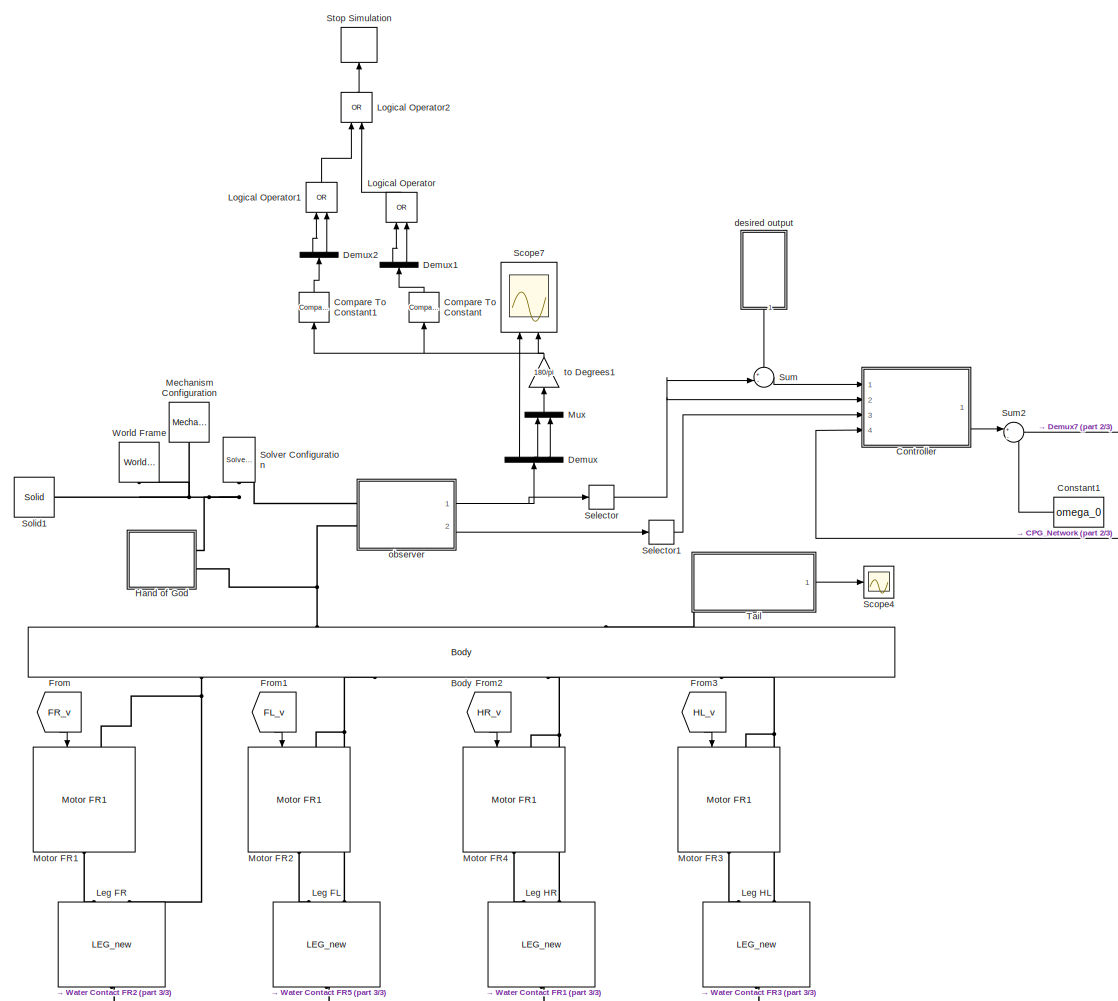
[diagram: root canvas - part 1/3, central region]
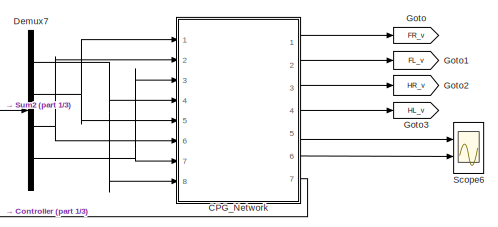
[diagram: root canvas - part 2/3, top right region]
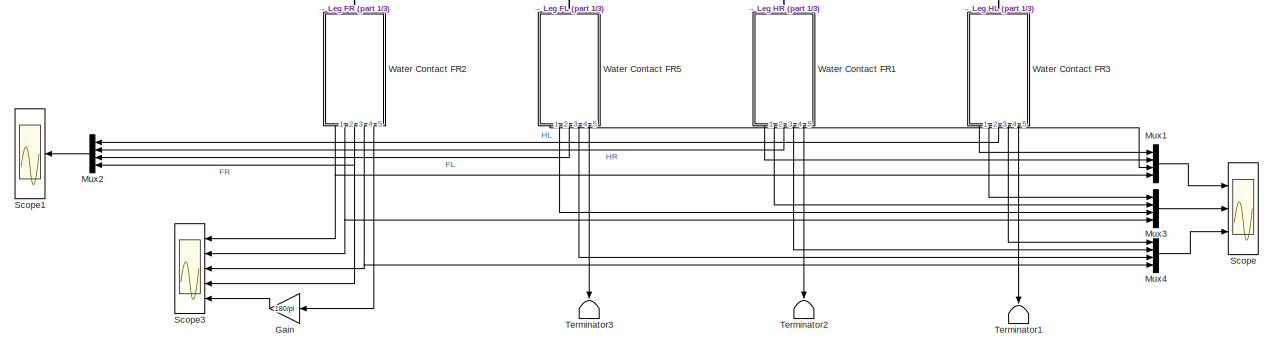
[diagram: root canvas - part 3/3, bottom center region]
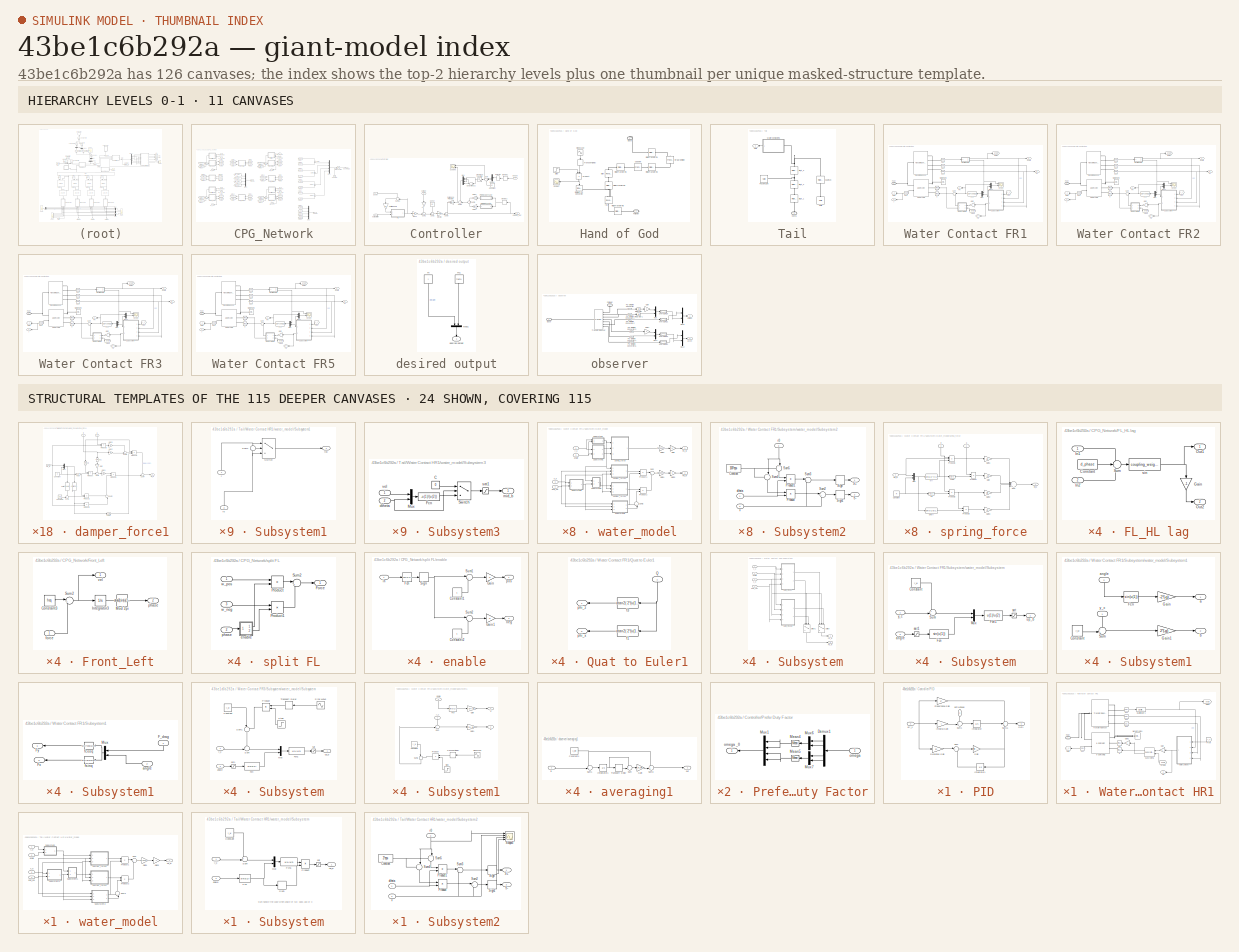
[diagram: thumbnail index - top-2 hierarchy levels (11 canvases) + 24 structural-template representatives of the remaining 115 canvases]
MODEL slx_43be1c6b292a
KIND model
BLOCK [Reference] Body  REF=WaterRunner_lib_2/Body
  Ports = [0, 0, 0, 0, 0, 4, 2]
  SourceBlock = WaterRunner_lib_2/Body
  SourceType = SubSystem
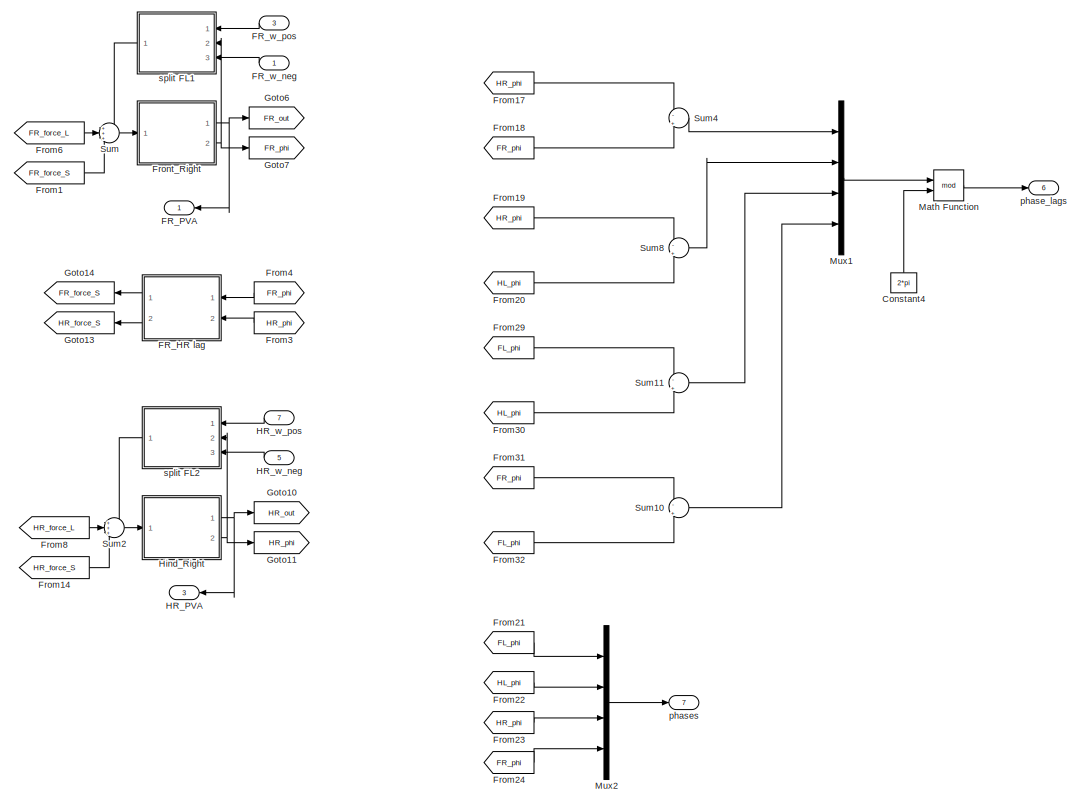
[diagram: CPG_Network - part 1/2, right side, full height]
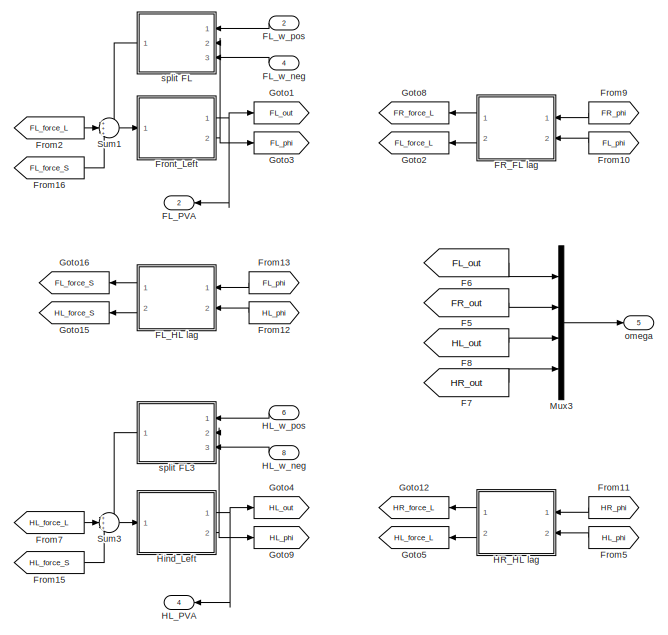
[diagram: CPG_Network - part 2/2, left side, full height]
BLOCK [SubSystem] CPG_Network
  FunctionWithSeparateData = off
  MaskHideContents = off
  MinAlgLoopOccurrences = off
  Opaque = off
  Ports = [8, 7]
  PropExecContextOutsideSubsystem = off
  RTWSystemCode = Auto
  RequestExecContextInheritance = off
BLOCK [Constant] CPG_Network/Constant4
  Value = 2*pi
BLOCK [From] CPG_Network/F5
  GotoTag = FR_out
BLOCK [From] CPG_Network/F6
  GotoTag = FL_out
BLOCK [From] CPG_Network/F7
  GotoTag = HR_out
BLOCK [From] CPG_Network/F8
  GotoTag = HL_out
BLOCK [SubSystem] CPG_Network/FL_HL lag
  FunctionWithSeparateData = off
  MaskHideContents = off
  MinAlgLoopOccurrences = off
  Opaque = off
  Ports = [2, 2]
  PropExecContextOutsideSubsystem = off
  RTWSystemCode = Auto
  RequestExecContextInheritance = off
BLOCK [Constant] CPG_Network/FL_HL lag/Constant
  Value = d_phase
BLOCK [Gain] CPG_Network/FL_HL lag/Gain
  Gain = -1
  OutDataTypeStr = Inherit: Inherit via internal rule
  ParamDataTypeStr = Inherit: Inherit via internal rule
  SaturateOnIntegerOverflow = off
BLOCK [Inport] CPG_Network/FL_HL lag/In1
  IconDisplay = Port number
BLOCK [Inport] CPG_Network/FL_HL lag/In2
  IconDisplay = Port number
  Port = 2
BLOCK [Outport] CPG_Network/FL_HL lag/Out1
  IconDisplay = Port number
BLOCK [Outport] CPG_Network/FL_HL lag/Out2
  IconDisplay = Port number
  Port = 2
BLOCK [Sum] CPG_Network/FL_HL lag/Sum
  IconShape = round
  InputSameDT = off
  Inputs = --+
  OutDataTypeStr = Inherit: Inherit via internal rule
  Ports = [3, 1]
  SaturateOnIntegerOverflow = off
BLOCK [Fcn] CPG_Network/FL_HL lag/sin
  Expr = coupling_weight*sin(u(1))
BLOCK [Outport] CPG_Network/FL_PVA
  IconDisplay = Port number
  Port = 2
BLOCK [Inport] CPG_Network/FL_w_neg
  IconDisplay = Port number
  Port = 4
BLOCK [Inport] CPG_Network/FL_w_pos
  IconDisplay = Port number
  Port = 2
BLOCK [SubSystem] CPG_Network/FR_FL lag
  FunctionWithSeparateData = off
  MaskHideContents = off
  MinAlgLoopOccurrences = off
  Opaque = off
  Ports = [2, 2]
  PropExecContextOutsideSubsystem = off
  RTWSystemCode = Auto
  RequestExecContextInheritance = off
BLOCK [Constant] CPG_Network/FR_FL lag/Constant
  Value = d_phase
BLOCK [Gain] CPG_Network/FR_FL lag/Gain
  Gain = -1
  OutDataTypeStr = Inherit: Inherit via internal rule
  ParamDataTypeStr = Inherit: Inherit via internal rule
  SaturateOnIntegerOverflow = off
BLOCK [Inport] CPG_Network/FR_FL lag/In1
  IconDisplay = Port number
BLOCK [Inport] CPG_Network/FR_FL lag/In2
  IconDisplay = Port number
  Port = 2
BLOCK [Outport] CPG_Network/FR_FL lag/Out1
  IconDisplay = Port number
BLOCK [Outport] CPG_Network/FR_FL lag/Out2
  IconDisplay = Port number
  Port = 2
BLOCK [Sum] CPG_Network/FR_FL lag/Sum
  IconShape = round
  InputSameDT = off
  Inputs = --+
  OutDataTypeStr = Inherit: Inherit via internal rule
  Ports = [3, 1]
  SaturateOnIntegerOverflow = off
BLOCK [Fcn] CPG_Network/FR_FL lag/sin
  Expr = coupling_weight*sin(u(1))
BLOCK [SubSystem] CPG_Network/FR_HR lag
  FunctionWithSeparateData = off
  MaskHideContents = off
  MinAlgLoopOccurrences = off
  Opaque = off
  Ports = [2, 2]
  PropExecContextOutsideSubsystem = off
  RTWSystemCode = Auto
  RequestExecContextInheritance = off
BLOCK [Constant] CPG_Network/FR_HR lag/Constant
  Value = d_phase
BLOCK [Gain] CPG_Network/FR_HR lag/Gain
  Gain = -1
  OutDataTypeStr = Inherit: Inherit via internal rule
  ParamDataTypeStr = Inherit: Inherit via internal rule
  SaturateOnIntegerOverflow = off
BLOCK [Inport] CPG_Network/FR_HR lag/In1
  IconDisplay = Port number
BLOCK [Inport] CPG_Network/FR_HR lag/In2
  IconDisplay = Port number
  Port = 2
BLOCK [Outport] CPG_Network/FR_HR lag/Out1
  IconDisplay = Port number
BLOCK [Outport] CPG_Network/FR_HR lag/Out2
  IconDisplay = Port number
  Port = 2
BLOCK [Sum] CPG_Network/FR_HR lag/Sum
  IconShape = round
  InputSameDT = off
  Inputs = --+
  OutDataTypeStr = Inherit: Inherit via internal rule
  Ports = [3, 1]
  SaturateOnIntegerOverflow = off
BLOCK [Fcn] CPG_Network/FR_HR lag/sin
  Expr = coupling_weight*sin(u(1))
BLOCK [Outport] CPG_Network/FR_PVA
  IconDisplay = Port number
BLOCK [Inport] CPG_Network/FR_w_neg
  IconDisplay = Port number
BLOCK [Inport] CPG_Network/FR_w_pos
  IconDisplay = Port number
  Port = 3
BLOCK [From] CPG_Network/From1
  GotoTag = FR_force_S
BLOCK [From] CPG_Network/From10
  GotoTag = FL_phi
BLOCK [From] CPG_Network/From11
  GotoTag = HR_phi
BLOCK [From] CPG_Network/From12
  GotoTag = HL_phi
BLOCK [From] CPG_Network/From13
  GotoTag = FL_phi
BLOCK [From] CPG_Network/From14
  GotoTag = HR_force_S
BLOCK [From] CPG_Network/From15
  GotoTag = HL_force_S
BLOCK [From] CPG_Network/From16
  GotoTag = FL_force_S
BLOCK [From] CPG_Network/From17
  GotoTag = HR_phi
BLOCK [From] CPG_Network/From18
  GotoTag = FR_phi
BLOCK [From] CPG_Network/From19
  GotoTag = HR_phi
BLOCK [From] CPG_Network/From2
  GotoTag = FL_force_L
BLOCK [From] CPG_Network/From20
  GotoTag = HL_phi
BLOCK [From] CPG_Network/From21
  GotoTag = FL_phi
BLOCK [From] CPG_Network/From22
  GotoTag = HL_phi
BLOCK [From] CPG_Network/From23
  GotoTag = HR_phi
BLOCK [From] CPG_Network/From24
  GotoTag = FR_phi
BLOCK [From] CPG_Network/From29
  GotoTag = FL_phi
BLOCK [From] CPG_Network/From3
  GotoTag = HR_phi
BLOCK [From] CPG_Network/From30
  GotoTag = HL_phi
BLOCK [From] CPG_Network/From31
  GotoTag = FR_phi
BLOCK [From] CPG_Network/From32
  GotoTag = FL_phi
BLOCK [From] CPG_Network/From4
  GotoTag = FR_phi
BLOCK [From] CPG_Network/From5
  GotoTag = HL_phi
BLOCK [From] CPG_Network/From6
  GotoTag = FR_force_L
BLOCK [From] CPG_Network/From7
  GotoTag = HL_force_L
BLOCK [From] CPG_Network/From8
  GotoTag = HR_force_L
BLOCK [From] CPG_Network/From9
  GotoTag = FR_phi
BLOCK [SubSystem] CPG_Network/Front_Left
  FunctionWithSeparateData = off
  MaskHideContents = off
  MinAlgLoopOccurrences = off
  Opaque = off
  Ports = [1, 2]
  PropExecContextOutsideSubsystem = off
  RTWSystemCode = Auto
  RequestExecContextInheritance = off
BLOCK [Constant] CPG_Network/Front_Left/Constant3
  Value = freq
BLOCK [Integrator] CPG_Network/Front_Left/Integrator3
  InitialCondition = init_phi + 0.001*rand
  Ports = [1, 1]
BLOCK [Fcn] CPG_Network/Front_Left/Mod 2pi
  Expr = atan2(sin(u(1)-pi),cos(u(1)-pi))+pi
BLOCK [Sum] CPG_Network/Front_Left/Sum2
  IconShape = round
  InputSameDT = off
  Inputs = |++
  OutDataTypeStr = Inherit: Inherit via internal rule
  Ports = [2, 1]
  SaturateOnIntegerOverflow = off
BLOCK [Inport] CPG_Network/Front_Left/force
  IconDisplay = Port number
BLOCK [Outport] CPG_Network/Front_Left/phase
  IconDisplay = Port number
  Port = 2
BLOCK [Outport] CPG_Network/Front_Left/vel
  IconDisplay = Port number
BLOCK [SubSystem] CPG_Network/Front_Right
  FunctionWithSeparateData = off
  MaskHideContents = off
  MinAlgLoopOccurrences = off
  Opaque = off
  Ports = [1, 2]
  PropExecContextOutsideSubsystem = off
  RTWSystemCode = Auto
  RequestExecContextInheritance = off
BLOCK [Constant] CPG_Network/Front_Right/Constant3
  Value = freq
BLOCK [Integrator] CPG_Network/Front_Right/Integrator3
  InitialCondition = init_phi + 0.001*rand
  Ports = [1, 1]
BLOCK [Fcn] CPG_Network/Front_Right/Mod 2pi
  Expr = atan2(sin(u(1)-pi),cos(u(1)-pi))+pi
BLOCK [Sum] CPG_Network/Front_Right/Sum2
  IconShape = round
  InputSameDT = off
  Inputs = |++
  OutDataTypeStr = Inherit: Inherit via internal rule
  Ports = [2, 1]
  SaturateOnIntegerOverflow = off
BLOCK [Inport] CPG_Network/Front_Right/force
  IconDisplay = Port number
BLOCK [Outport] CPG_Network/Front_Right/phase
  IconDisplay = Port number
  Port = 2
BLOCK [Outport] CPG_Network/Front_Right/vel
  IconDisplay = Port number
BLOCK [Goto] CPG_Network/Goto1
  GotoTag = FL_out
BLOCK [Goto] CPG_Network/Goto10
  GotoTag = HR_out
BLOCK [Goto] CPG_Network/Goto11
  GotoTag = HR_phi
BLOCK [Goto] CPG_Network/Goto12
  GotoTag = HR_force_L
BLOCK [Goto] CPG_Network/Goto13
  GotoTag = HR_force_S
BLOCK [Goto] CPG_Network/Goto14
  GotoTag = FR_force_S
BLOCK [Goto] CPG_Network/Goto15
  GotoTag = HL_force_S
BLOCK [Goto] CPG_Network/Goto16
  GotoTag = FL_force_S
BLOCK [Goto] CPG_Network/Goto2
  GotoTag = FL_force_L
BLOCK [Goto] CPG_Network/Goto3
  GotoTag = FL_phi
BLOCK [Goto] CPG_Network/Goto4
  GotoTag = HL_out
BLOCK [Goto] CPG_Network/Goto5
  GotoTag = HL_force_L
BLOCK [Goto] CPG_Network/Goto6
  GotoTag = FR_out
BLOCK [Goto] CPG_Network/Goto7
  GotoTag = FR_phi
BLOCK [Goto] CPG_Network/Goto8
  GotoTag = FR_force_L
BLOCK [Goto] CPG_Network/Goto9
  GotoTag = HL_phi
BLOCK [Outport] CPG_Network/HL_PVA
  IconDisplay = Port number
  Port = 4
BLOCK [Inport] CPG_Network/HL_w_neg
  IconDisplay = Port number
  Port = 8
BLOCK [Inport] CPG_Network/HL_w_pos
  IconDisplay = Port number
  Port = 6
BLOCK [SubSystem] CPG_Network/HR_HL lag
  FunctionWithSeparateData = off
  MaskHideContents = off
  MinAlgLoopOccurrences = off
  Opaque = off
  Ports = [2, 2]
  PropExecContextOutsideSubsystem = off
  RTWSystemCode = Auto
  RequestExecContextInheritance = off
BLOCK [Constant] CPG_Network/HR_HL lag/Constant
  Value = d_phase
BLOCK [Gain] CPG_Network/HR_HL lag/Gain
  Gain = -1
  OutDataTypeStr = Inherit: Inherit via internal rule
  ParamDataTypeStr = Inherit: Inherit via internal rule
  SaturateOnIntegerOverflow = off
BLOCK [Inport] CPG_Network/HR_HL lag/In1
  IconDisplay = Port number
BLOCK [Inport] CPG_Network/HR_HL lag/In2
  IconDisplay = Port number
  Port = 2
BLOCK [Outport] CPG_Network/HR_HL lag/Out1
  IconDisplay = Port number
BLOCK [Outport] CPG_Network/HR_HL lag/Out2
  IconDisplay = Port number
  Port = 2
BLOCK [Sum] CPG_Network/HR_HL lag/Sum
  IconShape = round
  InputSameDT = off
  Inputs = --+
  OutDataTypeStr = Inherit: Inherit via internal rule
  Ports = [3, 1]
  SaturateOnIntegerOverflow = off
BLOCK [Fcn] CPG_Network/HR_HL lag/sin
  Expr = coupling_weight*sin(u(1))
BLOCK [Outport] CPG_Network/HR_PVA
  IconDisplay = Port number
  Port = 3
BLOCK [Inport] CPG_Network/HR_w_neg
  IconDisplay = Port number
  Port = 5
BLOCK [Inport] CPG_Network/HR_w_pos
  IconDisplay = Port number
  Port = 7
BLOCK [SubSystem] CPG_Network/Hind_Left
  FunctionWithSeparateData = off
  MaskHideContents = off
  MinAlgLoopOccurrences = off
  Opaque = off
  Ports = [1, 2]
  PropExecContextOutsideSubsystem = off
  RTWSystemCode = Auto
  RequestExecContextInheritance = off
BLOCK [Constant] CPG_Network/Hind_Left/Constant3
  Value = freq
BLOCK [Integrator] CPG_Network/Hind_Left/Integrator3
  InitialCondition = init_phi + 0.001*rand
  Ports = [1, 1]
BLOCK [Fcn] CPG_Network/Hind_Left/Mod 2pi
  Expr = atan2(sin(u(1)-pi),cos(u(1)-pi))+pi
BLOCK [Sum] CPG_Network/Hind_Left/Sum2
  IconShape = round
  InputSameDT = off
  Inputs = |++
  OutDataTypeStr = Inherit: Inherit via internal rule
  Ports = [2, 1]
  SaturateOnIntegerOverflow = off
BLOCK [Inport] CPG_Network/Hind_Left/force
  IconDisplay = Port number
BLOCK [Outport] CPG_Network/Hind_Left/phase
  IconDisplay = Port number
  Port = 2
BLOCK [Outport] CPG_Network/Hind_Left/vel
  IconDisplay = Port number
BLOCK [SubSystem] CPG_Network/Hind_Right
  FunctionWithSeparateData = off
  MaskHideContents = off
  MinAlgLoopOccurrences = off
  Opaque = off
  Ports = [1, 2]
  PropExecContextOutsideSubsystem = off
  RTWSystemCode = Auto
  RequestExecContextInheritance = off
BLOCK [Constant] CPG_Network/Hind_Right/Constant3
  Value = freq
BLOCK [Integrator] CPG_Network/Hind_Right/Integrator3
  InitialCondition = init_phi + 0.001*rand
  Ports = [1, 1]
BLOCK [Fcn] CPG_Network/Hind_Right/Mod 2pi
  Expr = atan2(sin(u(1)-pi),cos(u(1)-pi))+pi
BLOCK [Sum] CPG_Network/Hind_Right/Sum2
  IconShape = round
  InputSameDT = off
  Inputs = |++
  OutDataTypeStr = Inherit: Inherit via internal rule
  Ports = [2, 1]
  SaturateOnIntegerOverflow = off
BLOCK [Inport] CPG_Network/Hind_Right/force
  IconDisplay = Port number
BLOCK [Outport] CPG_Network/Hind_Right/phase
  IconDisplay = Port number
  Port = 2
BLOCK [Outport] CPG_Network/Hind_Right/vel
  IconDisplay = Port number
BLOCK [Math] CPG_Network/Math Function
  Operator = mod
  Ports = [2, 1]
BLOCK [Mux] CPG_Network/Mux1
  DisplayOption = bar
  Ports = [4, 1]
BLOCK [Mux] CPG_Network/Mux2
  DisplayOption = bar
  Ports = [4, 1]
BLOCK [Mux] CPG_Network/Mux3
  DisplayOption = bar
  Ports = [4, 1]
BLOCK [Sum] CPG_Network/Sum
  IconShape = round
  InputSameDT = off
  Inputs = +++
  OutDataTypeStr = Inherit: Inherit via internal rule
  Ports = [3, 1]
  SaturateOnIntegerOverflow = off
BLOCK [Sum] CPG_Network/Sum1
  IconShape = round
  InputSameDT = off
  Inputs = +++
  OutDataTypeStr = Inherit: Inherit via internal rule
  Ports = [3, 1]
  SaturateOnIntegerOverflow = off
BLOCK [Sum] CPG_Network/Sum10
  IconShape = round
  InputSameDT = off
  Inputs = -|+
  OutDataTypeStr = Inherit: Inherit via internal rule
  Ports = [2, 1]
  SaturateOnIntegerOverflow = off
BLOCK [Sum] CPG_Network/Sum11
  IconShape = round
  InputSameDT = off
  Inputs = -|+
  OutDataTypeStr = Inherit: Inherit via internal rule
  Ports = [2, 1]
  SaturateOnIntegerOverflow = off
BLOCK [Sum] CPG_Network/Sum2
  IconShape = round
  InputSameDT = off
  Inputs = +++
  OutDataTypeStr = Inherit: Inherit via internal rule
  Ports = [3, 1]
  SaturateOnIntegerOverflow = off
BLOCK [Sum] CPG_Network/Sum3
  IconShape = round
  InputSameDT = off
  Inputs = +++
  OutDataTypeStr = Inherit: Inherit via internal rule
  Ports = [3, 1]
  SaturateOnIntegerOverflow = off
BLOCK [Sum] CPG_Network/Sum4
  IconShape = round
  InputSameDT = off
  Inputs = -|+
  OutDataTypeStr = Inherit: Inherit via internal rule
  Ports = [2, 1]
  SaturateOnIntegerOverflow = off
BLOCK [Sum] CPG_Network/Sum8
  IconShape = round
  InputSameDT = off
  Inputs = -|+
  OutDataTypeStr = Inherit: Inherit via internal rule
  Ports = [2, 1]
  SaturateOnIntegerOverflow = off
BLOCK [Outport] CPG_Network/omega
  IconDisplay = Port number
  Port = 5
BLOCK [Outport] CPG_Network/phase_lags
  IconDisplay = Port number
  Port = 6
BLOCK [Outport] CPG_Network/phases
  IconDisplay = Port number
  Port = 7
BLOCK [SubSystem] CPG_Network/split FL
  FunctionWithSeparateData = off
  MaskHideContents = off
  MinAlgLoopOccurrences = off
  Opaque = off
  Ports = [3, 1]
  PropExecContextOutsideSubsystem = off
  RTWSystemCode = Auto
  RequestExecContextInheritance = off
BLOCK [Outport] CPG_Network/split FL/Force
  IconDisplay = Port number
BLOCK [Product] CPG_Network/split FL/Product
  InputSameDT = off
  OutDataTypeStr = Inherit: Inherit via internal rule
  Ports = [2, 1]
  SaturateOnIntegerOverflow = off
BLOCK [Product] CPG_Network/split FL/Product1
  InputSameDT = off
  OutDataTypeStr = Inherit: Inherit via internal rule
  Ports = [2, 1]
  SaturateOnIntegerOverflow = off
BLOCK [Sum] CPG_Network/split FL/Sum2
  IconShape = round
  InputSameDT = off
  Inputs = |++
  OutDataTypeStr = Inherit: Inherit via internal rule
  Ports = [2, 1]
  SaturateOnIntegerOverflow = off
BLOCK [SubSystem] CPG_Network/split FL/enable
  FunctionWithSeparateData = off
  MaskHideContents = off
  MinAlgLoopOccurrences = off
  Opaque = off
  Ports = [1, 2]
  PropExecContextOutsideSubsystem = off
  RTWSystemCode = Auto
  RequestExecContextInheritance = off
BLOCK [Constant] CPG_Network/split FL/enable/Constant1
BLOCK [Constant] CPG_Network/split FL/enable/Constant2
BLOCK [Fcn] CPG_Network/split FL/enable/Fcn
  Expr = cos(u(1))
BLOCK [Gain] CPG_Network/split FL/enable/Gain
  Gain = .5
  OutDataTypeStr = Inherit: Inherit via internal rule
  ParamDataTypeStr = Inherit: Inherit via internal rule
  SaturateOnIntegerOverflow = off
BLOCK [Gain] CPG_Network/split FL/enable/Gain1
  Gain = .5
  OutDataTypeStr = Inherit: Inherit via internal rule
  ParamDataTypeStr = Inherit: Inherit via internal rule
  SaturateOnIntegerOverflow = off
BLOCK [Signum] CPG_Network/split FL/enable/Sign
BLOCK [Sum] CPG_Network/split FL/enable/Sum1
  IconShape = round
  InputSameDT = off
  Inputs = |++
  OutDataTypeStr = Inherit: Inherit via internal rule
  Ports = [2, 1]
  SaturateOnIntegerOverflow = off
BLOCK [Sum] CPG_Network/split FL/enable/Sum2
  IconShape = round
  InputSameDT = off
  Inputs = |-+
  OutDataTypeStr = Inherit: Inherit via internal rule
  Ports = [2, 1]
  SaturateOnIntegerOverflow = off
BLOCK [Inport] CPG_Network/split FL/enable/in
  IconDisplay = Port number
BLOCK [Outport] CPG_Network/split FL/enable/neg
  IconDisplay = Port number
  Port = 2
BLOCK [Outport] CPG_Network/split FL/enable/pos
  IconDisplay = Port number
BLOCK [Inport] CPG_Network/split FL/phase
  IconDisplay = Port number
  Port = 2
BLOCK [Inport] CPG_Network/split FL/w_neg
  IconDisplay = Port number
  Port = 3
BLOCK [Inport] CPG_Network/split FL/w_pos
  IconDisplay = Port number
BLOCK [SubSystem] CPG_Network/split FL1
  FunctionWithSeparateData = off
  MaskHideContents = off
  MinAlgLoopOccurrences = off
  Opaque = off
  Ports = [3, 1]
  PropExecContextOutsideSubsystem = off
  RTWSystemCode = Auto
  RequestExecContextInheritance = off
BLOCK [Outport] CPG_Network/split FL1/Force
  IconDisplay = Port number
BLOCK [Product] CPG_Network/split FL1/Product
  InputSameDT = off
  OutDataTypeStr = Inherit: Inherit via internal rule
  Ports = [2, 1]
  SaturateOnIntegerOverflow = off
BLOCK [Product] CPG_Network/split FL1/Product1
  InputSameDT = off
  OutDataTypeStr = Inherit: Inherit via internal rule
  Ports = [2, 1]
  SaturateOnIntegerOverflow = off
BLOCK [Sum] CPG_Network/split FL1/Sum2
  IconShape = round
  InputSameDT = off
  Inputs = |++
  OutDataTypeStr = Inherit: Inherit via internal rule
  Ports = [2, 1]
  SaturateOnIntegerOverflow = off
BLOCK [SubSystem] CPG_Network/split FL1/enable
  FunctionWithSeparateData = off
  MaskHideContents = off
  MinAlgLoopOccurrences = off
  Opaque = off
  Ports = [1, 2]
  PropExecContextOutsideSubsystem = off
  RTWSystemCode = Auto
  RequestExecContextInheritance = off
BLOCK [Constant] CPG_Network/split FL1/enable/Constant1
BLOCK [Constant] CPG_Network/split FL1/enable/Constant2
BLOCK [Fcn] CPG_Network/split FL1/enable/Fcn
  Expr = cos(u(1))
BLOCK [Gain] CPG_Network/split FL1/enable/Gain
  Gain = .5
  OutDataTypeStr = Inherit: Inherit via internal rule
  ParamDataTypeStr = Inherit: Inherit via internal rule
  SaturateOnIntegerOverflow = off
BLOCK [Gain] CPG_Network/split FL1/enable/Gain1
  Gain = .5
  OutDataTypeStr = Inherit: Inherit via internal rule
  ParamDataTypeStr = Inherit: Inherit via internal rule
  SaturateOnIntegerOverflow = off
BLOCK [Signum] CPG_Network/split FL1/enable/Sign
BLOCK [Sum] CPG_Network/split FL1/enable/Sum1
  IconShape = round
  InputSameDT = off
  Inputs = |++
  OutDataTypeStr = Inherit: Inherit via internal rule
  Ports = [2, 1]
  SaturateOnIntegerOverflow = off
BLOCK [Sum] CPG_Network/split FL1/enable/Sum2
  IconShape = round
  InputSameDT = off
  Inputs = |-+
  OutDataTypeStr = Inherit: Inherit via internal rule
  Ports = [2, 1]
  SaturateOnIntegerOverflow = off
BLOCK [Inport] CPG_Network/split FL1/enable/in
  IconDisplay = Port number
BLOCK [Outport] CPG_Network/split FL1/enable/neg
  IconDisplay = Port number
  Port = 2
BLOCK [Outport] CPG_Network/split FL1/enable/pos
  IconDisplay = Port number
BLOCK [Inport] CPG_Network/split FL1/phase
  IconDisplay = Port number
  Port = 2
BLOCK [Inport] CPG_Network/split FL1/w_neg
  IconDisplay = Port number
  Port = 3
BLOCK [Inport] CPG_Network/split FL1/w_pos
  IconDisplay = Port number
BLOCK [SubSystem] CPG_Network/split FL2
  FunctionWithSeparateData = off
  MaskHideContents = off
  MinAlgLoopOccurrences = off
  Opaque = off
  Ports = [3, 1]
  PropExecContextOutsideSubsystem = off
  RTWSystemCode = Auto
  RequestExecContextInheritance = off
BLOCK [Outport] CPG_Network/split FL2/Force
  IconDisplay = Port number
BLOCK [Product] CPG_Network/split FL2/Product
  InputSameDT = off
  OutDataTypeStr = Inherit: Inherit via internal rule
  Ports = [2, 1]
  SaturateOnIntegerOverflow = off
BLOCK [Product] CPG_Network/split FL2/Product1
  InputSameDT = off
  OutDataTypeStr = Inherit: Inherit via internal rule
  Ports = [2, 1]
  SaturateOnIntegerOverflow = off
BLOCK [Sum] CPG_Network/split FL2/Sum2
  IconShape = round
  InputSameDT = off
  Inputs = |++
  OutDataTypeStr = Inherit: Inherit via internal rule
  Ports = [2, 1]
  SaturateOnIntegerOverflow = off
BLOCK [SubSystem] CPG_Network/split FL2/enable
  FunctionWithSeparateData = off
  MaskHideContents = off
  MinAlgLoopOccurrences = off
  Opaque = off
  Ports = [1, 2]
  PropExecContextOutsideSubsystem = off
  RTWSystemCode = Auto
  RequestExecContextInheritance = off
BLOCK [Constant] CPG_Network/split FL2/enable/Constant1
BLOCK [Constant] CPG_Network/split FL2/enable/Constant2
BLOCK [Fcn] CPG_Network/split FL2/enable/Fcn
  Expr = cos(u(1))
BLOCK [Gain] CPG_Network/split FL2/enable/Gain
  Gain = .5
  OutDataTypeStr = Inherit: Inherit via internal rule
  ParamDataTypeStr = Inherit: Inherit via internal rule
  SaturateOnIntegerOverflow = off
BLOCK [Gain] CPG_Network/split FL2/enable/Gain1
  Gain = .5
  OutDataTypeStr = Inherit: Inherit via internal rule
  ParamDataTypeStr = Inherit: Inherit via internal rule
  SaturateOnIntegerOverflow = off
BLOCK [Signum] CPG_Network/split FL2/enable/Sign
BLOCK [Sum] CPG_Network/split FL2/enable/Sum1
  IconShape = round
  InputSameDT = off
  Inputs = |++
  OutDataTypeStr = Inherit: Inherit via internal rule
  Ports = [2, 1]
  SaturateOnIntegerOverflow = off
BLOCK [Sum] CPG_Network/split FL2/enable/Sum2
  IconShape = round
  InputSameDT = off
  Inputs = |-+
  OutDataTypeStr = Inherit: Inherit via internal rule
  Ports = [2, 1]
  SaturateOnIntegerOverflow = off
BLOCK [Inport] CPG_Network/split FL2/enable/in
  IconDisplay = Port number
BLOCK [Outport] CPG_Network/split FL2/enable/neg
  IconDisplay = Port number
  Port = 2
BLOCK [Outport] CPG_Network/split FL2/enable/pos
  IconDisplay = Port number
BLOCK [Inport] CPG_Network/split FL2/phase
  IconDisplay = Port number
  Port = 2
BLOCK [Inport] CPG_Network/split FL2/w_neg
  IconDisplay = Port number
  Port = 3
BLOCK [Inport] CPG_Network/split FL2/w_pos
  IconDisplay = Port number
BLOCK [SubSystem] CPG_Network/split FL3
  FunctionWithSeparateData = off
  MaskHideContents = off
  MinAlgLoopOccurrences = off
  Opaque = off
  Ports = [3, 1]
  PropExecContextOutsideSubsystem = off
  RTWSystemCode = Auto
  RequestExecContextInheritance = off
BLOCK [Outport] CPG_Network/split FL3/Force
  IconDisplay = Port number
BLOCK [Product] CPG_Network/split FL3/Product
  InputSameDT = off
  OutDataTypeStr = Inherit: Inherit via internal rule
  Ports = [2, 1]
  SaturateOnIntegerOverflow = off
BLOCK [Product] CPG_Network/split FL3/Product1
  InputSameDT = off
  OutDataTypeStr = Inherit: Inherit via internal rule
  Ports = [2, 1]
  SaturateOnIntegerOverflow = off
BLOCK [Sum] CPG_Network/split FL3/Sum2
  IconShape = round
  InputSameDT = off
  Inputs = |++
  OutDataTypeStr = Inherit: Inherit via internal rule
  Ports = [2, 1]
  SaturateOnIntegerOverflow = off
BLOCK [SubSystem] CPG_Network/split FL3/enable
  FunctionWithSeparateData = off
  MaskHideContents = off
  MinAlgLoopOccurrences = off
  Opaque = off
  Ports = [1, 2]
  PropExecContextOutsideSubsystem = off
  RTWSystemCode = Auto
  RequestExecContextInheritance = off
BLOCK [Constant] CPG_Network/split FL3/enable/Constant1
BLOCK [Constant] CPG_Network/split FL3/enable/Constant2
BLOCK [Fcn] CPG_Network/split FL3/enable/Fcn
  Expr = cos(u(1))
BLOCK [Gain] CPG_Network/split FL3/enable/Gain
  Gain = .5
  OutDataTypeStr = Inherit: Inherit via internal rule
  ParamDataTypeStr = Inherit: Inherit via internal rule
  SaturateOnIntegerOverflow = off
BLOCK [Gain] CPG_Network/split FL3/enable/Gain1
  Gain = .5
  OutDataTypeStr = Inherit: Inherit via internal rule
  ParamDataTypeStr = Inherit: Inherit via internal rule
  SaturateOnIntegerOverflow = off
BLOCK [Signum] CPG_Network/split FL3/enable/Sign
BLOCK [Sum] CPG_Network/split FL3/enable/Sum1
  IconShape = round
  InputSameDT = off
  Inputs = |++
  OutDataTypeStr = Inherit: Inherit via internal rule
  Ports = [2, 1]
  SaturateOnIntegerOverflow = off
BLOCK [Sum] CPG_Network/split FL3/enable/Sum2
  IconShape = round
  InputSameDT = off
  Inputs = |-+
  OutDataTypeStr = Inherit: Inherit via internal rule
  Ports = [2, 1]
  SaturateOnIntegerOverflow = off
BLOCK [Inport] CPG_Network/split FL3/enable/in
  IconDisplay = Port number
BLOCK [Outport] CPG_Network/split FL3/enable/neg
  IconDisplay = Port number
  Port = 2
BLOCK [Outport] CPG_Network/split FL3/enable/pos
  IconDisplay = Port number
BLOCK [Inport] CPG_Network/split FL3/phase
  IconDisplay = Port number
  Port = 2
BLOCK [Inport] CPG_Network/split FL3/w_neg
  IconDisplay = Port number
  Port = 3
BLOCK [Inport] CPG_Network/split FL3/w_pos
  IconDisplay = Port number
BLOCK [Reference] Compare To Constant  REF=simulink/Logic and Bit
Operations/Compare
To Constant
  OutDataTypeStr = boolean
  Ports = [1, 1]
  SourceBlock = simulink/Logic and Bit\nOperations/Compare\nTo Constant
  SourceType = Compare To Constant
  ZeroCross = on
  const = 45
  relop = >=
BLOCK [Reference] Compare To Constant1  REF=simulink/Logic and Bit
Operations/Compare
To Constant
  OutDataTypeStr = boolean
  Ports = [1, 1]
  SourceBlock = simulink/Logic and Bit\nOperations/Compare\nTo Constant
  SourceType = Compare To Constant
  ZeroCross = on
  const = -45
  relop = <=
BLOCK [Constant] Constant1
  Value = omega_0
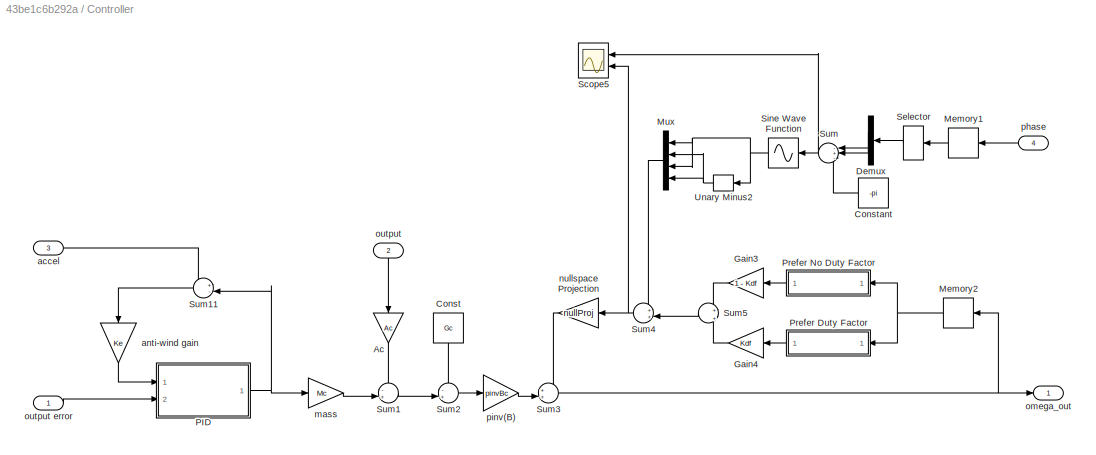
BLOCK [SubSystem] Controller
  FunctionWithSeparateData = off
  MaskHideContents = off
  MinAlgLoopOccurrences = off
  Opaque = off
  Ports = [4, 1]
  PropExecContextOutsideSubsystem = off
  RTWSystemCode = Auto
  RequestExecContextInheritance = off
BLOCK [Gain] Controller/Ac
  Gain = Ac
  Multiplication = Matrix(K*u)
  OutDataTypeStr = Inherit: Inherit via internal rule
  ParamDataTypeStr = Inherit: Inherit via internal rule
  SaturateOnIntegerOverflow = off
BLOCK [Constant] Controller/Const
  Value = Gc
BLOCK [Constant] Controller/Constant
  Value = -pi
BLOCK [Demux] Controller/Demux
  DisplayOption = bar
  Outputs = 2
  Ports = [1, 2]
BLOCK [Gain] Controller/Gain3
  Gain = 1 - Kdf
  OutDataTypeStr = Inherit: Inherit via internal rule
  ParamDataTypeStr = Inherit: Inherit via internal rule
  SaturateOnIntegerOverflow = off
BLOCK [Gain] Controller/Gain4
  Gain = Kdf
  OutDataTypeStr = Inherit: Inherit via internal rule
  ParamDataTypeStr = Inherit: Inherit via internal rule
  SaturateOnIntegerOverflow = off
BLOCK [Memory] Controller/Memory1
  X0 = phase_0
BLOCK [Memory] Controller/Memory2
  X0 = omega_0
BLOCK [Mux] Controller/Mux
  DisplayOption = bar
  Ports = [4, 1]
BLOCK [SubSystem] Controller/PID
  FunctionWithSeparateData = off
  MaskHideContents = off
  MinAlgLoopOccurrences = off
  Opaque = off
  Ports = [2, 1]
  PropExecContextOutsideSubsystem = off
  RTWSystemCode = Auto
  RequestExecContextInheritance = off
BLOCK [Gain] Controller/PID/Derivative Gain
  Gain = D
  Multiplication = Matrix(K*u)
  OutDataTypeStr = Inherit: Inherit via internal rule
  ParamDataTypeStr = Inherit: Inherit via internal rule
  SaturateOnIntegerOverflow = off
BLOCK [Gain] Controller/PID/Gain
  Gain = Filter_Coef
  OutDataTypeStr = Inherit: Inherit via internal rule
  ParamDataTypeStr = Inherit: Inherit via internal rule
  SaturateOnIntegerOverflow = off
BLOCK [Gain] Controller/PID/Integral Gain
  DisableCoverage = on
  Gain = I
  Multiplication = Matrix(K*u)
  OutDataTypeStr = Inherit: Inherit via internal rule
  ParamDataTypeStr = Inherit: Inherit via internal rule
  SaturateOnIntegerOverflow = off
BLOCK [Integrator] Controller/PID/Integrator
  Ports = [1, 1]
BLOCK [Integrator] Controller/PID/Integrator1
  Ports = [1, 1]
BLOCK [Outport] Controller/PID/Out1
  IconDisplay = Port number
BLOCK [Gain] Controller/PID/Proportional Gain
  Gain = P
  Multiplication = Matrix(K*u)
  OutDataTypeStr = Inherit: Inherit via internal rule
  ParamDataTypeStr = Inherit: Inherit via internal rule
  SaturateOnIntegerOverflow = off
BLOCK [Sum] Controller/PID/Sum
  IconShape = round
  InputSameDT = off
  Inputs = |+-
  OutDataTypeStr = Inherit: Inherit via internal rule
  Ports = [2, 1]
  SaturateOnIntegerOverflow = off
BLOCK [Sum] Controller/PID/Sum1
  IconShape = round
  InputSameDT = off
  Inputs = ++|
  OutDataTypeStr = Inherit: Inherit via internal rule
  Ports = [2, 1]
  SaturateOnIntegerOverflow = off
BLOCK [Sum] Controller/PID/Sum11
  IconShape = round
  InputSameDT = off
  Inputs = +++
  OutDataTypeStr = Inherit: Inherit via internal rule
  Ports = [3, 1]
  SaturateOnIntegerOverflow = off
BLOCK [Inport] Controller/PID/anti windup
  IconDisplay = Port number
BLOCK [Inport] Controller/PID/err_x
  IconDisplay = Port number
  Port = 2
BLOCK [SubSystem] Controller/Prefer Duty Factor
  FunctionWithSeparateData = off
  MaskHideContents = off
  MinAlgLoopOccurrences = off
  Opaque = off
  Ports = [1, 1]
  PropExecContextOutsideSubsystem = off
  RTWSystemCode = Auto
  RequestExecContextInheritance = off
BLOCK [Demux] Controller/Prefer Duty Factor/Demux1
  DisplayOption = bar
  Ports = [1, 4]
BLOCK [Reference] Controller/Prefer Duty Factor/Mean4  REF=dspstat3/Mean
  InputProcessing = Columns as channels (frame based)
  LockScale = off
  Ports = [1, 1]
  SourceBlock = dspstat3/Mean
  SourceType = Mean
  UserDataPersistent = on
  accumDataTypeStr = Inherit: Same as input
  accumFracLength = 30
  accumLastDataTypeStr = Inherit: Same as input
  accumMode = Same as input
  accumWordLength = 32
  additionalParams = off
  allowOverrides = on
  dimension = 1
  directionMode = Each column
  outputDataTypeStr = Inherit: Same as accumulator
  outputFracLength = 30
  outputLastDataTypeStr = Inherit: Same as accumulator
  outputMax = []
  outputMin = []
  outputMode = Same as accumulator
  outputWordLength = 32
  overflowMode = off
  reset_popup = None
  roiEnable = off
  roiFlag = off
  roiOutput = Individual statistics for each ROI
  roiPortion = Entire ROI
  roiType = Rectangles
  roundingMode = Floor
  run = off
  treatSBRowAsCol = on
BLOCK [Reference] Controller/Prefer Duty Factor/Mean5  REF=dspstat3/Mean
  InputProcessing = Columns as channels (frame based)
  LockScale = off
  Ports = [1, 1]
  SourceBlock = dspstat3/Mean
  SourceType = Mean
  UserDataPersistent = on
  accumDataTypeStr = Inherit: Same as input
  accumFracLength = 30
  accumLastDataTypeStr = Inherit: Same as input
  accumMode = Same as input
  accumWordLength = 32
  additionalParams = off
  allowOverrides = on
  dimension = 1
  directionMode = Each column
  outputDataTypeStr = Inherit: Same as accumulator
  outputFracLength = 30
  outputLastDataTypeStr = Inherit: Same as accumulator
  outputMax = []
  outputMin = []
  outputMode = Same as accumulator
  outputWordLength = 32
  overflowMode = off
  reset_popup = None
  roiEnable = off
  roiFlag = off
  roiOutput = Individual statistics for each ROI
  roiPortion = Entire ROI
  roiType = Rectangles
  roundingMode = Floor
  run = off
  treatSBRowAsCol = on
BLOCK [Mux] Controller/Prefer Duty Factor/Mux1
  DisplayOption = bar
  Ports = [4, 1]
BLOCK [Mux] Controller/Prefer Duty Factor/Mux6
  DisplayOption = bar
  Inputs = 2
  Ports = [2, 1]
BLOCK [Mux] Controller/Prefer Duty Factor/Mux7
  DisplayOption = bar
  Inputs = 2
  Ports = [2, 1]
BLOCK [Inport] Controller/Prefer Duty Factor/omega
  IconDisplay = Port number
BLOCK [Outport] Controller/Prefer Duty Factor/omega _0
  IconDisplay = Port number
BLOCK [SubSystem] Controller/Prefer No Duty Factor
  FunctionWithSeparateData = off
  MaskHideContents = off
  MinAlgLoopOccurrences = off
  Opaque = off
  Ports = [1, 1]
  PropExecContextOutsideSubsystem = off
  RTWSystemCode = Auto
  RequestExecContextInheritance = off
BLOCK [Demux] Controller/Prefer No Duty Factor/Demux1
  DisplayOption = bar
  Ports = [1, 4]
BLOCK [Reference] Controller/Prefer No Duty Factor/Mean1  REF=dspstat3/Mean
  InputProcessing = Columns as channels (frame based)
  LockScale = off
  Ports = [1, 1]
  SourceBlock = dspstat3/Mean
  SourceType = Mean
  UserDataPersistent = on
  accumDataTypeStr = Inherit: Same as input
  accumFracLength = 30
  accumLastDataTypeStr = Inherit: Same as input
  accumMode = Same as input
  accumWordLength = 32
  additionalParams = off
  allowOverrides = on
  dimension = 1
  directionMode = Each column
  outputDataTypeStr = Inherit: Same as accumulator
  outputFracLength = 30
  outputLastDataTypeStr = Inherit: Same as accumulator
  outputMax = []
  outputMin = []
  outputMode = Same as accumulator
  outputWordLength = 32
  overflowMode = off
  reset_popup = None
  roiEnable = off
  roiFlag = off
  roiOutput = Individual statistics for each ROI
  roiPortion = Entire ROI
  roiType = Rectangles
  roundingMode = Floor
  run = off
  treatSBRowAsCol = on
BLOCK [Reference] Controller/Prefer No Duty Factor/Mean2  REF=dspstat3/Mean
  InputProcessing = Columns as channels (frame based)
  LockScale = off
  Ports = [1, 1]
  SourceBlock = dspstat3/Mean
  SourceType = Mean
  UserDataPersistent = on
  accumDataTypeStr = Inherit: Same as input
  accumFracLength = 30
  accumLastDataTypeStr = Inherit: Same as input
  accumMode = Same as input
  accumWordLength = 32
  additionalParams = off
  allowOverrides = on
  dimension = 1
  directionMode = Each column
  outputDataTypeStr = Inherit: Same as accumulator
  outputFracLength = 30
  outputLastDataTypeStr = Inherit: Same as accumulator
  outputMax = []
  outputMin = []
  outputMode = Same as accumulator
  outputWordLength = 32
  overflowMode = off
  reset_popup = None
  roiEnable = off
  roiFlag = off
  roiOutput = Individual statistics for each ROI
  roiPortion = Entire ROI
  roiType = Rectangles
  roundingMode = Floor
  run = off
  treatSBRowAsCol = on
BLOCK [Mux] Controller/Prefer No Duty Factor/Mux1
  DisplayOption = bar
  Ports = [4, 1]
BLOCK [Mux] Controller/Prefer No Duty Factor/Mux2
  DisplayOption = bar
  Inputs = 2
  Ports = [2, 1]
BLOCK [Mux] Controller/Prefer No Duty Factor/Mux3
  DisplayOption = bar
  Inputs = 2
  Ports = [2, 1]
BLOCK [Inport] Controller/Prefer No Duty Factor/omega
  IconDisplay = Port number
BLOCK [Outport] Controller/Prefer No Duty Factor/omega_0
  IconDisplay = Port number
BLOCK [Scope] Controller/Scope5
  DataFormat = StructureWithTime
  Floating = off
  LegendLocations = 0.7248     0.92783     0.10551    0.030451\n0.82292     0.38353     0.12836     0.10582
  LimitDataPoints = off
  NumInputPorts = 2
  Ports = [2]
  SampleTime = 0
  SaveName = command_omega
  SaveToWorkspace = on
  ShowLegends = on
  TimeRange = 10
  YMax = 8~67
  YMin = -0.5~44
  ZoomMode = xonly
BLOCK [Selector] Controller/Selector
  IndexOptions = Index vector (dialog)
  Indices = [1 4]
  InputPortWidth = 4
  OutputSizes = 1
  Ports = [1, 1]
BLOCK [Sin] Controller/Sine Wave Function
  Amplitude = Cgain
  Ports = [1, 1]
  SampleTime = 0
  TimeSource = Use external signal
BLOCK [Sum] Controller/Sum
  IconShape = round
  InputSameDT = off
  Inputs = -+-
  OutDataTypeStr = Inherit: Inherit via internal rule
  Ports = [3, 1]
  SaturateOnIntegerOverflow = off
BLOCK [Sum] Controller/Sum1
  IconShape = round
  InputSameDT = off
  Inputs = -+|
  OutDataTypeStr = Inherit: Inherit via internal rule
  Ports = [2, 1]
  SaturateOnIntegerOverflow = off
BLOCK [Sum] Controller/Sum11
  IconShape = round
  InputSameDT = off
  Inputs = +-|
  OutDataTypeStr = Inherit: Inherit via internal rule
  Ports = [2, 1]
  SaturateOnIntegerOverflow = off
BLOCK [Sum] Controller/Sum2
  IconShape = round
  InputSameDT = off
  Inputs = -+|
  OutDataTypeStr = Inherit: Inherit via internal rule
  Ports = [2, 1]
  SaturateOnIntegerOverflow = off
BLOCK [Sum] Controller/Sum3
  IconShape = round
  InputSameDT = off
  Inputs = ++|
  OutDataTypeStr = Inherit: Inherit via internal rule
  Ports = [2, 1]
  SaturateOnIntegerOverflow = off
BLOCK [Sum] Controller/Sum4
  IconShape = round
  InputSameDT = off
  Inputs = ++|
  OutDataTypeStr = Inherit: Inherit via internal rule
  Ports = [2, 1]
  SaturateOnIntegerOverflow = off
BLOCK [Sum] Controller/Sum5
  IconShape = round
  InputSameDT = off
  Inputs = +|+
  OutDataTypeStr = Inherit: Inherit via internal rule
  Ports = [2, 1]
  SaturateOnIntegerOverflow = off
BLOCK [UnaryMinus] Controller/Unary Minus2
BLOCK [Inport] Controller/accel
  IconDisplay = Port number
  Port = 3
BLOCK [Gain] Controller/anti-wind gain
  Gain = Ke
  Multiplication = Matrix(K*u)
  OutDataTypeStr = Inherit: Inherit via internal rule
  ParamDataTypeStr = Inherit: Inherit via internal rule
  SaturateOnIntegerOverflow = off
BLOCK [Gain] Controller/mass
  Gain = Mc
  Multiplication = Matrix(K*u)
  OutDataTypeStr = Inherit: Inherit via internal rule
  ParamDataTypeStr = Inherit: Inherit via internal rule
  SaturateOnIntegerOverflow = off
BLOCK [Gain] Controller/nullspace Projection
  Gain = nullProj
  Multiplication = Matrix(K*u)
  OutDataTypeStr = Inherit: Inherit via internal rule
  ParamDataTypeStr = Inherit: Inherit via internal rule
  SaturateOnIntegerOverflow = off
BLOCK [Outport] Controller/omega_out
  IconDisplay = Port number
BLOCK [Inport] Controller/output
  IconDisplay = Port number
  Port = 2
BLOCK [Inport] Controller/output error
  IconDisplay = Port number
BLOCK [Inport] Controller/phase
  IconDisplay = Port number
  Port = 4
BLOCK [Gain] Controller/pinv(B)
  Gain = pinvBc
  Multiplication = Matrix(K*u)
  OutDataTypeStr = Inherit: Inherit via internal rule
  ParamDataTypeStr = Inherit: Inherit via internal rule
  SaturateOnIntegerOverflow = off
BLOCK [Demux] Demux
  DisplayOption = bar
  Outputs = 3
  Ports = [1, 3]
BLOCK [Demux] Demux1
  DisplayOption = bar
  Outputs = 2
  Ports = [1, 2]
BLOCK [Demux] Demux2
  DisplayOption = bar
  Outputs = 2
  Ports = [1, 2]
BLOCK [Demux] Demux7
  DisplayOption = bar
  Ports = [1, 4]
BLOCK [From] From
  GotoTag = FR_v
BLOCK [From] From1
  GotoTag = FL_v
BLOCK [From] From2
  GotoTag = HR_v
BLOCK [From] From3
  GotoTag = HL_v
BLOCK [Gain] Gain
  Gain = 180/pi
  OutDataTypeStr = Inherit: Inherit via internal rule
  ParamDataTypeStr = Inherit: Inherit via internal rule
  SaturateOnIntegerOverflow = off
BLOCK [Goto] Goto
  GotoTag = FR_v
BLOCK [Goto] Goto1
  GotoTag = FL_v
BLOCK [Goto] Goto2
  GotoTag = HR_v
BLOCK [Goto] Goto3
  GotoTag = HL_v
BLOCK [SubSystem] Hand of God
  FunctionWithSeparateData = off
  MaskHideContents = off
  MinAlgLoopOccurrences = off
  Opaque = off
  Ports = [0, 0, 0, 0, 0, 0, 2]
  PropExecContextOutsideSubsystem = off
  RTWSystemCode = Auto
  RequestExecContextInheritance = off
BLOCK [PMIOPort] Hand of God/Base
  Port = 1
  Side = Right
BLOCK [PMIOPort] Hand of God/Follower
  Port = 2
  Side = Right
BLOCK [Product] Hand of God/Product
  InputSameDT = off
  OutDataTypeStr = Inherit: Inherit via internal rule
  Ports = [2, 1]
  RndMeth = Floor
  SaturateOnIntegerOverflow = off
BLOCK [Reference] Hand of God/Rigid  Transform1  REF=sm_lib/Frames and
 Transforms/Rigid 
Transform
  BaseAlignAxisA = +Y
  BaseAlignAxisB = +X
  BlockFunction = simmechanics.library.frames_transforms.rigid_transform
  ClassName = RigidTransform
  FollAlignAxisA = +Y
  FollAlignAxisB = +Z
  Ports = [0, 0, 0, 0, 0, 1, 1]
  RotationAngle = 0
  RotationAngleUnits = deg
  RotationArbitraryAxis = [0 0 1]
  RotationMethod = AlignedAxes
  RotationStandardAxis = +Z
  SourceBlock = sm_lib/Frames and\n Transforms/Rigid \nTransform
  SourceType = Rigid Transform
  TranslationCartesianOffset = [0 0 0]
  TranslationLengthUnit = m
  TranslationMethod = Cartesian
  TranslationROffset = 0
  TranslationROffsetUnits = m
  TranslationStandardAxis = +Z
  TranslationStandardOffset = 0
  TranslationThetaOffset = 0
  TranslationThetaOffsetUnits = deg
  TranslationZOffset = 0
  TranslationZOffsetUnits = m
BLOCK [Reference] Hand of God/Rigid  Transform2  REF=sm_lib/Frames and
 Transforms/Rigid 
Transform
  BaseAlignAxisA = +Z
  BaseAlignAxisB = +Y
  BlockFunction = simmechanics.library.frames_transforms.rigid_transform
  ClassName = RigidTransform
  FollAlignAxisA = +X
  FollAlignAxisB = +Z
  Ports = [0, 0, 0, 0, 0, 1, 1]
  RotationAngle = 0
  RotationAngleUnits = deg
  RotationArbitraryAxis = [0 0 1]
  RotationMethod = AlignedAxes
  RotationStandardAxis = +Z
  SourceBlock = sm_lib/Frames and\n Transforms/Rigid \nTransform
  SourceType = Rigid Transform
  TranslationCartesianOffset = [0 0 0]
  TranslationLengthUnit = m
  TranslationMethod = None
  TranslationROffset = 0
  TranslationROffsetUnits = m
  TranslationStandardAxis = +Z
  TranslationStandardOffset = 0
  TranslationThetaOffset = 0
  TranslationThetaOffsetUnits = deg
  TranslationZOffset = 0
  TranslationZOffsetUnits = m
BLOCK [Reference] Hand of God/Rigid  Transform3  REF=sm_lib/Frames and
 Transforms/Rigid 
Transform
  BaseAlignAxisA = +Z
  BaseAlignAxisB = +X
  BlockFunction = simmechanics.library.frames_transforms.rigid_transform
  ClassName = RigidTransform
  FollAlignAxisA = +Y
  FollAlignAxisB = +X
  Ports = [0, 0, 0, 0, 0, 1, 1]
  RotationAngle = 0
  RotationAngleUnits = deg
  RotationArbitraryAxis = [0 0 1]
  RotationMethod = AlignedAxes
  RotationStandardAxis = +Z
  SourceBlock = sm_lib/Frames and\n Transforms/Rigid \nTransform
  SourceType = Rigid Transform
  TranslationCartesianOffset = [0 0 0]
  TranslationLengthUnit = m
  TranslationMethod = None
  TranslationROffset = 0
  TranslationROffsetUnits = m
  TranslationStandardAxis = +Z
  TranslationStandardOffset = 0
  TranslationThetaOffset = 0
  TranslationThetaOffsetUnits = deg
  TranslationZOffset = 0
  TranslationZOffsetUnits = m
BLOCK [Reference] Hand of God/Rigid  Transform4  REF=sm_lib/Frames and
 Transforms/Rigid 
Transform
  BaseAlignAxisA = +X
  BaseAlignAxisB = +Y
  BlockFunction = simmechanics.library.frames_transforms.rigid_transform
  ClassName = RigidTransform
  FollAlignAxisA = +Z
  FollAlignAxisB = +Y
  Ports = [0, 0, 0, 0, 0, 1, 1]
  RotationAngle = 0
  RotationAngleUnits = deg
  RotationArbitraryAxis = [0 0 1]
  RotationMethod = AlignedAxes
  RotationStandardAxis = +Z
  SourceBlock = sm_lib/Frames and\n Transforms/Rigid \nTransform
  SourceType = Rigid Transform
  TranslationCartesianOffset = [0 0 0]
  TranslationLengthUnit = m
  TranslationMethod = None
  TranslationROffset = 0
  TranslationROffsetUnits = m
  TranslationStandardAxis = +Z
  TranslationStandardOffset = 0
  TranslationThetaOffset = 0
  TranslationThetaOffsetUnits = deg
  TranslationZOffset = 0
  TranslationZOffsetUnits = m
BLOCK [Reference] Hand of God/Rigid  Transform5  REF=sm_lib/Frames and
 Transforms/Rigid 
Transform
  BaseAlignAxisA = +Z
  BaseAlignAxisB = +Y
  BlockFunction = simmechanics.library.frames_transforms.rigid_transform
  ClassName = RigidTransform
  FollAlignAxisA = +X
  FollAlignAxisB = +Z
  Ports = [0, 0, 0, 0, 0, 1, 1]
  RotationAngle = 0
  RotationAngleUnits = deg
  RotationArbitraryAxis = [0 0 1]
  RotationMethod = AlignedAxes
  RotationStandardAxis = +Z
  SourceBlock = sm_lib/Frames and\n Transforms/Rigid \nTransform
  SourceType = Rigid Transform
  TranslationCartesianOffset = [0 0 0]
  TranslationLengthUnit = m
  TranslationMethod = None
  TranslationROffset = 0
  TranslationROffsetUnits = m
  TranslationStandardAxis = +Z
  TranslationStandardOffset = 0
  TranslationThetaOffset = 0
  TranslationThetaOffsetUnits = deg
  TranslationZOffset = 0
  TranslationZOffsetUnits = m
BLOCK [Scope] Hand of God/Scope7
  DataFormat = StructureWithTime
  Floating = off
  LimitDataPoints = off
  NumInputPorts = 1
  Ports = [1]
  SampleTime = 0
  SaveName = command_omega2
  SaveToWorkspace = on
  ShowLegends = off
  TimeRange = 15
  YMax = 0.001
  YMin = 0
  ZoomMode = xonly
BLOCK [Reference] Hand of God/Simulink-PS Converter  REF=nesl_utility/Simulink-PS
Converter
  AffineConversion = off
  Frequencies = []
  InputFilterTimeConstant = .001
  InputFiltering = off
  LeftPortType = input
  NoiseDistribution = none
  NoiseParameters = []
  PhysicalDomain = network_engine_domain
  Ports = [1, 0, 0, 0, 0, 0, 1]
  PseudoPeriodic = off
  RightPortType = output
  SimscapeFilterOrder = 1
  SourceBlock = nesl_utility/Simulink-PS\nConverter
  SourceType = Simulink-PS\nConverter
  SubClassName = ps_input
  UdotUserProvided = []
  Unit = 1
BLOCK [Sin] Hand of God/Sine Wave
  Amplitude = dTorqueAmp
  Frequency = dTorqueFreq
  Ports = [0, 1]
  SampleTime = 0
BLOCK [Step] Hand of God/Step
  After = 0
  Before = 1
  SampleTime = 0
  Time = 3
BLOCK [TransportDelay] Hand of God/Transport Delay
  DelayTime = 2
  Ports = [1, 1]
BLOCK [Reference] Hand of God/forward motion  REF=sm_lib/Joints/Prismatic 
Joint
  ActuationMode = NoActuation
  BlockFunction = simmechanics.library.joints.prismatic_joint
  ClassName = PrismaticJoint
  ConstraintWrenchDir = FollowerOnBase
  ConstraintWrenchFrame = BaseFrame
  DampingCoefficient = .5
  DampingCoefficientUnits = N/(m/s)
  EquilibriumPosition = 0
  EquilibriumPositionUnits = m
  Ports = [0, 0, 0, 0, 0, 1, 1]
  PositionTargetPriority = High
  PositionTargetSpecify = on
  PositionTargetValue = 0
  PositionTargetValueUnits = m
  SenseAcceleration = off
  SenseConstraintForceX = off
  SenseConstraintForceY = off
  SenseConstraintForceZ = off
  SenseConstraintTorqueX = off
  SenseConstraintTorqueY = off
  SenseConstraintTorqueZ = off
  SensePosition = off
  SenseTorqueForce = off
  SenseVelocity = off
  SourceBlock = sm_lib/Joints/Prismatic \nJoint
  SourceType = Prismatic Joint
  SpringStiffness = 0
  SpringStiffnessUnits = N/m
  VelocityTargetPriority = High
  VelocityTargetSpecify = on
  VelocityTargetValue = 2
  VelocityTargetValueUnits = m/s
BLOCK [Reference] Hand of God/pitch  REF=sm_lib/Joints/Revolute Joint
  ActuationMode = NoActuation
  BlockFunction = simmechanics.library.joints.revolute_joint
  ClassName = RevoluteJoint
  ConstraintWrenchDir = FollowerOnBase
  ConstraintWrenchFrame = BaseFrame
  DampingCoefficient = 0
  DampingCoefficientUnits = N*m/(deg/s)
  EquilibriumPosition = 0
  EquilibriumPositionUnits = deg
  Ports = [0, 0, 0, 0, 0, 1, 1]
  PositionTargetPriority = High
  PositionTargetSpecify = on
  PositionTargetValue = phi0
  PositionTargetValueUnits = rad
  SenseAcceleration = off
  SenseConstraintForceX = off
  SenseConstraintForceY = off
  SenseConstraintForceZ = off
  SenseConstraintTorqueX = off
  SenseConstraintTorqueY = off
  SenseConstraintTorqueZ = off
  SensePosition = off
  SenseTorqueForce = off
  SenseVelocity = off
  SourceBlock = sm_lib/Joints/Revolute Joint
  SourceType = Revolute Joint
  SpringStiffness = 0
  SpringStiffnessUnits = N*m/deg
  VelocityTargetPriority = High
  VelocityTargetSpecify = on
  VelocityTargetValue = 0
  VelocityTargetValueUnits = rad/s
BLOCK [Reference] Hand of God/roll  REF=sm_lib/Joints/Revolute Joint
  ActuationMode = TorqueForceActuation
  BlockFunction = simmechanics.library.joints.revolute_joint
  ClassName = RevoluteJoint
  ConstraintWrenchDir = FollowerOnBase
  ConstraintWrenchFrame = BaseFrame
  DampingCoefficient = 0
  DampingCoefficientUnits = N*m/(deg/s)
  EquilibriumPosition = 0
  EquilibriumPositionUnits = deg
  Ports = [0, 0, 0, 0, 0, 2, 1]
  PositionTargetPriority = High
  PositionTargetSpecify = on
  PositionTargetValue = theta0
  PositionTargetValueUnits = rad
  SenseAcceleration = off
  SenseConstraintForceX = off
  SenseConstraintForceY = off
  SenseConstraintForceZ = off
  SenseConstraintTorqueX = off
  SenseConstraintTorqueY = off
  SenseConstraintTorqueZ = off
  SensePosition = off
  SenseTorqueForce = off
  SenseVelocity = off
  SourceBlock = sm_lib/Joints/Revolute Joint
  SourceType = Revolute Joint
  SpringStiffness = 0
  SpringStiffnessUnits = N*m/deg
  VelocityTargetPriority = High
  VelocityTargetSpecify = on
  VelocityTargetValue = 0
  VelocityTargetValueUnits = rad/s
BLOCK [Reference] Hand of God/up down  REF=sm_lib/Joints/Prismatic 
Joint
  ActuationMode = NoActuation
  BlockFunction = simmechanics.library.joints.prismatic_joint
  ClassName = PrismaticJoint
  ConstraintWrenchDir = FollowerOnBase
  ConstraintWrenchFrame = BaseFrame
  DampingCoefficient = 0
  DampingCoefficientUnits = N/(m/s)
  EquilibriumPosition = 0
  EquilibriumPositionUnits = m
  Ports = [0, 0, 0, 0, 0, 1, 1]
  PositionTargetPriority = High
  PositionTargetSpecify = on
  PositionTargetValue = y0
  PositionTargetValueUnits = m
  SenseAcceleration = off
  SenseConstraintForceX = off
  SenseConstraintForceY = off
  SenseConstraintForceZ = off
  SenseConstraintTorqueX = off
  SenseConstraintTorqueY = off
  SenseConstraintTorqueZ = off
  SensePosition = off
  SenseTorqueForce = off
  SenseVelocity = off
  SourceBlock = sm_lib/Joints/Prismatic \nJoint
  SourceType = Prismatic Joint
  SpringStiffness = 0
  SpringStiffnessUnits = N/m
  VelocityTargetPriority = High
  VelocityTargetSpecify = on
  VelocityTargetValue = 0
  VelocityTargetValueUnits = m/s
BLOCK [Reference] Leg FL  REF=WaterRunner_lib_2/LEG_new
  Ports = [0, 0, 0, 0, 0, 2, 1]
  SourceBlock = WaterRunner_lib_2/LEG_new
  init_pas_ang = 0
  p_CF_density = CF_density
  p_L1 = L1
  p_L2 = L2
  p_L3 = L3
  p_L4 = L4
  p_L5 = L5
  p_bar_h = bar_h
  p_bar_w = bar_w
BLOCK [Reference] Leg FR  REF=WaterRunner_lib_2/LEG_new
  Ports = [0, 0, 0, 0, 0, 2, 1]
  SourceBlock = WaterRunner_lib_2/LEG_new
  init_pas_ang = 0
  p_CF_density = CF_density
  p_L1 = L1
  p_L2 = L2
  p_L3 = L3
  p_L4 = L4
  p_L5 = L5
  p_bar_h = bar_h
  p_bar_w = bar_w
BLOCK [Reference] Leg HL  REF=WaterRunner_lib_2/LEG_new
  Ports = [0, 0, 0, 0, 0, 2, 1]
  SourceBlock = WaterRunner_lib_2/LEG_new
  init_pas_ang = 0
  p_CF_density = CF_density
  p_L1 = L1
  p_L2 = L2
  p_L3 = L3
  p_L4 = L4
  p_L5 = L5
  p_bar_h = bar_h
  p_bar_w = bar_w
BLOCK [Reference] Leg HR  REF=WaterRunner_lib_2/LEG_new
  Ports = [0, 0, 0, 0, 0, 2, 1]
  SourceBlock = WaterRunner_lib_2/LEG_new
  init_pas_ang = 0
  p_CF_density = CF_density
  p_L1 = L1
  p_L2 = L2
  p_L3 = L3
  p_L4 = L4
  p_L5 = L5
  p_bar_h = bar_h
  p_bar_w = bar_w
BLOCK [Logic] Logical Operator
  AllPortsSameDT = off
  Operator = OR
  OutDataTypeStr = boolean
  Ports = [2, 1]
BLOCK [Logic] Logical Operator1
  AllPortsSameDT = off
  Operator = OR
  OutDataTypeStr = boolean
  Ports = [2, 1]
BLOCK [Logic] Logical Operator2
  AllPortsSameDT = off
  Operator = OR
  OutDataTypeStr = boolean
  Ports = [2, 1]
BLOCK [Reference] Mechanism Configuration  REF=sm_lib/Utilities/Mechanism 
Configuration
  AllowGravitySignal = off
  BlockFunction = simmechanics.library.utilities.mechanism_configuration
  ClassName = MechanismConfiguration
  GravityUnits = m/s^2
  GravityVector = [0 -9.81 0]
  LinearizationDelta = 0.001
  Ports = [0, 0, 0, 0, 0, 0, 1]
  SourceBlock = sm_lib/Utilities/Mechanism \nConfiguration
  SourceType = Mechanism Configuration
BLOCK [Reference] Motor FR1  REF=WaterRunner_lib_2/Motor FR1
  Ports = [1, 0, 0, 0, 0, 1, 1]
  SourceBlock = WaterRunner_lib_2/Motor FR1
  init_ang = 180
BLOCK [Reference] Motor FR2  REF=WaterRunner_lib_2/Motor FR1
  Ports = [1, 0, 0, 0, 0, 1, 1]
  SourceBlock = WaterRunner_lib_2/Motor FR1
  init_ang = 0
BLOCK [Reference] Motor FR3  REF=WaterRunner_lib_2/Motor FR1
  Ports = [1, 0, 0, 0, 0, 1, 1]
  SourceBlock = WaterRunner_lib_2/Motor FR1
  init_ang = -180
BLOCK [Reference] Motor FR4  REF=WaterRunner_lib_2/Motor FR1
  Ports = [1, 0, 0, 0, 0, 1, 1]
  SourceBlock = WaterRunner_lib_2/Motor FR1
  init_ang = 0
BLOCK [Mux] Mux
  DisplayOption = bar
  Inputs = 2
  Ports = [2, 1]
BLOCK [Mux] Mux1
  DisplayOption = bar
  Ports = [4, 1]
BLOCK [Mux] Mux2
  DisplayOption = bar
  Ports = [4, 1]
BLOCK [Mux] Mux3
  DisplayOption = bar
  Ports = [4, 1]
BLOCK [Mux] Mux4
  DisplayOption = bar
  Ports = [4, 1]
BLOCK [Scope] Scope
  DataFormat = StructureWithTime
  Floating = off
  LimitDataPoints = off
  NumInputPorts = 3
  Ports = [3]
  SampleTime = 0
  ShowLegends = off
  YMax = 0.325~0.75~0.045
  YMin = 0~-2.5~-0.04
  ZoomMode = yonly
BLOCK [Scope] Scope1
  DataFormat = StructureWithTime
  Floating = off
  LimitDataPoints = off
  NumInputPorts = 1
  Ports = [1]
  SampleTime = 0
  SaveName = ScopeData1
  ShowLegends = on
  YMax = 0.75
  YMin = -2.5
BLOCK [Scope] Scope3
  DataFormat = StructureWithTime
  Floating = off
  LegendLocations = 0.76318      0.9283      0.1977    0.025577\n0.76318     0.73962      0.1977    0.025577\n0.76318      0.5522      0.1977    0.025577\n0.86905     0.36478    0.091837    0.025577\n0.75298      0.1761     0.10204    0.025577
  LimitDataPoints = off
  NumInputPorts = 5
  Ports = [5]
  SampleTime = 0
  SaveName = ScopeData4
  ShowLegends = on
  YMax = 1.1~2.5~0.1~7.5~130
  YMin = 0~-15~-0.125~-7.5~0
BLOCK [Scope] Scope4
  DataFormat = StructureWithTime
  Floating = off
  NumInputPorts = 1
  Ports = [1]
  SampleTime = 0
  SaveName = ScopeData2
  ShowLegends = off
BLOCK [Scope] Scope6
  DataFormat = StructureWithTime
  Floating = off
  LimitDataPoints = off
  NumInputPorts = 2
  Ports = [2]
  SampleTime = 0
  SaveName = cpg_omega
  SaveToWorkspace = on
  ShowLegends = off
  TimeRange = 5
  YMax = 67~3.25
  YMin = 53~2.45
  ZoomMode = xonly
BLOCK [Scope] Scope7
  DataFormat = StructureWithTime
  Floating = off
  LimitDataPoints = off
  NumInputPorts = 2
  Ports = [2]
  SampleTime = 0
  SaveName = output
  SaveToWorkspace = on
  ShowLegends = off
  TimeRange = 5
  YMax = 0.02225~13
  YMin = 0.01675~-2
  ZoomMode = yonly
BLOCK [Selector] Selector
  IndexOptions = Index vector (dialog)
  Indices = [1 2]
  InputPortWidth = 3
  OutputSizes = 1
  Ports = [1, 1]
BLOCK [Selector] Selector1
  IndexOptions = Index vector (dialog)
  Indices = [1 2]
  InputPortWidth = 3
  OutputSizes = 1
  Ports = [1, 1]
BLOCK [Reference] Solid1  REF=sm_lib/Body Elements/Solid
  BlockFunction = simmechanics.library.body_elements.solid
  BrickDimensionUnits = m
  BrickDimensions = [20 .001 1]
  CenterOfMass = [0 0 0]
  CenterOfMassUnits = m
  ClassName = Solid
  CylinderLength = 1
  CylinderLengthUnits = m
  CylinderRadius = 1
  CylinderRadiusUnits = m
  Density = 1000
  DensityBased = on
  DensityUnits = kg/(m^3)
  EllipsoidRadii = [1 1 1]
  EllipsoidRadiiUnits = m
  ExtGeomFileUnits = m
  ExtrusionCrossSection = [1 1; -1 1; -1 -1; 1 -1]
  ExtrusionCrossSectionUnits = m
  ExtrusionLength = 1
  ExtrusionLengthUnits = m
  GeometryShape = Brick
  GraphicAmbientColor = [0.15 0.15 0.15 1.0]
  GraphicDiffuseColor = [0.4 0.4 1.0]
  GraphicEmissiveColor = [0.0 0.0 0.0 1.0]
  GraphicOpacity = 0.5
  GraphicShininess = 75
  GraphicSpecularColor = [0.5 0.5 0.5 1.0]
  GraphicType = FromGeometry
  GraphicVisPropType = SimpleVisualProperties
  InertiaType = PointMass
  MarkerShape = Sphere
  MarkerSize = 10
  MarkerSizeUnits = m
  Mass = 0
  MassUnits = kg
  MomentsOfInertia = [1 1 1]
  MomentsOfInertiaUnits = kg*m^2
  PolygonNumSides = 3
  PolygonOuterRadius = 1
  PolygonOuterRadiusUnits = m
  Ports = [0, 0, 0, 0, 0, 0, 1]
  ProductsOfInertia = [0 0 0]
  ProductsOfInertiaUnits = kg*m^2
  RectangleSize = [1 1]
  RectangleSizeUnits = m
  RevolutionAngle = 180
  RevolutionAngleUnits = deg
  RevolutionCrossSection = [1 1; 1 -1; 2 -1; 2 1]
  RevolutionCrossSectionUnits = m
  RevolutionExtent = Full
  SourceBlock = sm_lib/Body Elements/Solid
  SourceType = Solid
  SphereRadius = 1
  SphereRadiusUnits = m
BLOCK [Reference] Solver Configuration  REF=nesl_utility/Solver
Configuration
  Accelerate = off
  DelaysMemoryBudget = 1024
  DoDC = off
  DoFixedCost = off
  EnableSwitchedLinearOptims = on
  FrequencyDomain = off
  Harmonics = []
  LeftPortType = input
  LinearAlgebra = Sparse
  LocalSolverChoice = NE_BACKWARD_EULER_ADVANCER
  LocalSolverSampleTime = .001
  MaxModeIter = 2
  MaxNonlinIter = 3
  PhysicalDomain = network_engine_domain
  Ports = [0, 0, 0, 0, 0, 0, 1]
  Profile = off
  ResidualTolerance = 1e-3
  RightPortType = generic
  SimulateNoise = off
  SourceBlock = nesl_utility/Solver\nConfiguration
  SourceType = Solver\nConfiguration
  SubClassName = solver
  Tones = []
  UseCCode = off
  UseLocalSampling = off
  UseLocalSolver = off
  UseNewInitialization = off
BLOCK [Stop] Stop Simulation
BLOCK [Sum] Sum
  IconShape = round
  InputSameDT = off
  Inputs = +-|
  OutDataTypeStr = Inherit: Inherit via internal rule
  Ports = [2, 1]
  SaturateOnIntegerOverflow = off
BLOCK [Sum] Sum2
  IconShape = round
  InputSameDT = off
  Inputs = +|-
  OutDataTypeStr = Inherit: Inherit via internal rule
  Ports = [2, 1]
  SaturateOnIntegerOverflow = off
BLOCK [SubSystem] Tail
  FunctionWithSeparateData = off
  MaskHideContents = off
  MinAlgLoopOccurrences = off
  Opaque = off
  Ports = [0, 1, 0, 0, 0, 1]
  PropExecContextOutsideSubsystem = off
  RTWSystemCode = Auto
  RequestExecContextInheritance = off
BLOCK [PMIOPort] Tail/Conn1
  Port = 1
  Side = Left
BLOCK [Outport] Tail/Out1
  IconDisplay = Port number
BLOCK [Reference] Tail/PassiveLink  REF=sm_lib/Body Elements/Solid
  BlockFunction = simmechanics.library.body_elements.solid
  BrickDimensionUnits = m
  BrickDimensions = tail_dim
  CenterOfMass = [0 0 0]
  CenterOfMassUnits = m
  ClassName = Solid
  CylinderLength = 1
  CylinderLengthUnits = m
  CylinderRadius = 1
  CylinderRadiusUnits = m
  Density = tail_density*0
  DensityBased = on
  DensityUnits = kg/(m^3)
  EllipsoidRadii = [1 1 1]
  EllipsoidRadiiUnits = m
  ExtGeomFileUnits = m
  ExtrusionCrossSection = [1 1; -1 1; -1 -1; 1 -1]
  ExtrusionCrossSectionUnits = m
  ExtrusionLength = 1
  ExtrusionLengthUnits = m
  GeometryShape = Brick
  GraphicAmbientColor = [0.15 0.15 0.15 1.0]
  GraphicDiffuseColor = [0.4 1.0 0.4]
  GraphicEmissiveColor = [0.0 0.0 0.0 1.0]
  GraphicOpacity = 1.0
  GraphicShininess = 75
  GraphicSpecularColor = [0.5 0.5 0.5 1.0]
  GraphicType = FromGeometry
  GraphicVisPropType = SimpleVisualProperties
  InertiaType = CalculateFromGeometry
  MarkerShape = Sphere
  MarkerSize = 10
  MarkerSizeUnits = m
  Mass = 1
  MassUnits = kg
  MomentsOfInertia = [1 1 1]
  MomentsOfInertiaUnits = kg*m^2
  PolygonNumSides = 3
  PolygonOuterRadius = 1
  PolygonOuterRadiusUnits = m
  Ports = [0, 0, 0, 0, 0, 0, 1]
  ProductsOfInertia = [0 0 0]
  ProductsOfInertiaUnits = kg*m^2
  RectangleSize = [1 1]
  RectangleSizeUnits = m
  RevolutionAngle = 180
  RevolutionAngleUnits = deg
  RevolutionCrossSection = [1 1; 1 -1; 2 -1; 2 1]
  RevolutionCrossSectionUnits = m
  RevolutionExtent = Full
  SourceBlock = sm_lib/Body Elements/Solid
  SourceType = Solid
  SphereRadius = 1
  SphereRadiusUnits = m
BLOCK [Reference] Tail/Solid  REF=sm_lib/Body Elements/Solid
  BlockFunction = simmechanics.library.body_elements.solid
  BrickDimensionUnits = m
  BrickDimensions = [1 1 1]
  CenterOfMass = [0 0 0]
  CenterOfMassUnits = m
  ClassName = Solid
  CylinderLength = 0.001
  CylinderLengthUnits = m
  CylinderRadius = tail_pad_radius
  CylinderRadiusUnits = m
  Density = 0
  DensityBased = on
  DensityUnits = kg/(m^3)
  EllipsoidRadii = [1 1 1]
  EllipsoidRadiiUnits = m
  ExtGeomFileUnits = m
  ExtrusionCrossSection = [1 1; -1 1; -1 -1; 1 -1]
  ExtrusionCrossSectionUnits = m
  ExtrusionLength = 1
  ExtrusionLengthUnits = m
  GeometryShape = Cylinder
  GraphicAmbientColor = [0.15 0.15 0.15 1.0]
  GraphicDiffuseColor = [0.5 0.5 0.5]
  GraphicEmissiveColor = [0.0 0.0 0.0 1.0]
  GraphicOpacity = 1.0
  GraphicShininess = 75
  GraphicSpecularColor = [0.5 0.5 0.5 1.0]
  GraphicType = FromGeometry
  GraphicVisPropType = SimpleVisualProperties
  InertiaType = PointMass
  MarkerShape = Sphere
  MarkerSize = 10
  MarkerSizeUnits = m
  Mass = 0
  MassUnits = kg
  MomentsOfInertia = [1 1 1]
  MomentsOfInertiaUnits = kg*m^2
  PolygonNumSides = 3
  PolygonOuterRadius = 1
  PolygonOuterRadiusUnits = m
  Ports = [0, 0, 0, 0, 0, 0, 1]
  ProductsOfInertia = [0 0 0]
  ProductsOfInertiaUnits = kg*m^2
  RectangleSize = [1 1]
  RectangleSizeUnits = m
  RevolutionAngle = 180
  RevolutionAngleUnits = deg
  RevolutionCrossSection = [1 1; 1 -1; 2 -1; 2 1]
  RevolutionCrossSectionUnits = m
  RevolutionExtent = Full
  SourceBlock = sm_lib/Body Elements/Solid
  SourceType = Solid
  SphereRadius = 1
  SphereRadiusUnits = m
BLOCK [SubSystem] Tail/Water Contact HR1
  FunctionWithSeparateData = off
  MaskHideContents = off
  MinAlgLoopOccurrences = off
  Opaque = off
  Ports = [0, 1, 0, 0, 0, 1]
  PropExecContextOutsideSubsystem = off
  RTWSystemCode = Auto
  RequestExecContextInheritance = off
BLOCK [Reference] Tail/Water Contact HR1/6-DOF Joint2  REF=sm_lib/Joints/6-DOF Joint
  BlockFunction = simmechanics.library.joints.sixdof_joint
  ClassName = SixDofJoint
  ConstraintWrenchDir = FollowerOnBase
  ConstraintWrenchFrame = BaseFrame
  Ports = [0, 0, 0, 0, 0, 3, 2]
  PxActuationMode = TorqueForceActuation
  PxDampingCoefficient = 0
  PxDampingCoefficientUnits = N/(m/s)
  PxEquilibriumPosition = 0
  PxEquilibriumPositionUnits = m
  PxPositionTargetPriority = High
  PxPositionTargetSpecify = off
  PxPositionTargetValue = 0
  PxPositionTargetValueUnits = m
  PxSenseAcceleration = off
  PxSensePosition = off
  PxSenseTorqueForce = off
  PxSenseVelocity = off
  PxSpringStiffness = 0
  PxSpringStiffnessUnits = N/m
  PxVelocityTargetPriority = High
  PxVelocityTargetSpecify = off
  PxVelocityTargetValue = 0
  PxVelocityTargetValueUnits = m/s
  PyActuationMode = TorqueForceActuation
  PyDampingCoefficient = 0
  PyDampingCoefficientUnits = N/(m/s)
  PyEquilibriumPosition = 0
  PyEquilibriumPositionUnits = m
  PyPositionTargetPriority = High
  PyPositionTargetSpecify = off
  PyPositionTargetValue = 0
  PyPositionTargetValueUnits = m
  PySenseAcceleration = off
  PySensePosition = on
  PySenseTorqueForce = off
  PySenseVelocity = off
  PySpringStiffness = 0
  PySpringStiffnessUnits = N/m
  PyVelocityTargetPriority = High
  PyVelocityTargetSpecify = off
  PyVelocityTargetValue = 0
  PyVelocityTargetValueUnits = m/s
  PzActuationMode = NoActuation
  PzDampingCoefficient = 0
  PzDampingCoefficientUnits = N/(m/s)
  PzEquilibriumPosition = 0
  PzEquilibriumPositionUnits = m
  PzPositionTargetPriority = High
  PzPositionTargetSpecify = off
  PzPositionTargetValue = 0
  PzPositionTargetValueUnits = m
  PzSenseAcceleration = off
  PzSensePosition = off
  PzSenseTorqueForce = off
  PzSenseVelocity = off
  PzSpringStiffness = 0
  PzSpringStiffnessUnits = N/m
  PzVelocityTargetPriority = High
  PzVelocityTargetSpecify = off
  PzVelocityTargetValue = 0
  PzVelocityTargetValueUnits = m/s
  SenseConstraintForceX = off
  SenseConstraintForceY = off
  SenseConstraintForceZ = off
  SenseConstraintTorqueX = off
  SenseConstraintTorqueY = off
  SenseConstraintTorqueZ = off
  SourceBlock = sm_lib/Joints/6-DOF Joint
  SourceType = 6-DOF Joint
  SphActuateTorque = off
  SphActuateTorqueX = off
  SphActuateTorqueY = off
  SphActuateTorqueZ = off
  SphActuationFrame = BaseFrame
  SphActuationMode = NoActuation
  SphDampingCoefficient = 0
  SphDampingCoefficientUnits = N*m/(deg/s)
  SphDefPosBaseAlignAxisA = +Y
  SphDefPosBaseAlignAxisB = +Z
  SphDefPosFollAlignAxisA = +X
  SphDefPosFollAlignAxisB = +Y
  SphDefPosRotationAngle = 0
  SphDefPosRotationAngleUnits = deg
  SphDefPosRotationArbitraryAxis = [0 0 1]
  SphDefPosRotationMethod = None
  SphDefPosRotationStandardAxis = +Z
  SphEqPosBaseAlignAxisA = +Y
  SphEqPosBaseAlignAxisB = +Z
  SphEqPosFollAlignAxisA = +X
  SphEqPosFollAlignAxisB = +Y
  SphEqPosRotationAngle = 0
  SphEqPosRotationAngleUnits = deg
  SphEqPosRotationArbitraryAxis = [0 0 1]
  SphEqPosRotationMethod = None
  SphEqPosRotationStandardAxis = +Z
  SphPositionTargetBaseAlignAxisA = +Y
  SphPositionTargetBaseAlignAxisB = +Z
  SphPositionTargetFollAlignAxisA = +X
  SphPositionTargetFollAlignAxisB = +Y
  SphPositionTargetPriority = High
  SphPositionTargetRotationAngle = 0
  SphPositionTargetRotationAngleUnits = deg
  SphPositionTargetRotationArbitraryAxis = [0 0 1]
  SphPositionTargetRotationMethod = None
  SphPositionTargetRotationStandardAxis = +Z
  SphPositionTargetSpecify = off
  SphSenseAcceleration = off
  SphSenseAccelerationX = off
  SphSenseAccelerationY = off
  SphSenseAccelerationZ = off
  SphSensePosition = off
  SphSenseTorqueForce = off
  SphSenseTorqueX = off
  SphSenseTorqueY = off
  SphSenseTorqueZ = off
  SphSenseVelocity = off
  SphSenseVelocityX = off
  SphSenseVelocityY = off
  SphSenseVelocityZ = off
  SphSensingFrame = BaseFrame
  SphSpringStiffness = 0
  SphSpringStiffnessUnits = N*m/deg
  SphVelocityTargetInFollowerFrame = on
  SphVelocityTargetPriority = High
  SphVelocityTargetSpecify = off
  SphVelocityTargetValue = [0 0 0]
  SphVelocityTargetValueUnits = deg/s
BLOCK [Outport] Tail/Water Contact HR1/Fb
  IconDisplay = Port number
BLOCK [PMIOPort] Tail/Water Contact HR1/Foot
  Port = 1
  Side = Left
BLOCK [From] Tail/Water Contact HR1/From
  GotoTag = y_c
BLOCK [From] Tail/Water Contact HR1/From1
  GotoTag = angle
BLOCK [Gain] Tail/Water Contact HR1/Gain
  Gain = -1
  OutDataTypeStr = Inherit: Inherit via internal rule
  ParamDataTypeStr = Inherit: Inherit via internal rule
  SaturateOnIntegerOverflow = off
BLOCK [Gain] Tail/Water Contact HR1/Gain1
  Gain = -1
  OutDataTypeStr = Inherit: Inherit via internal rule
  ParamDataTypeStr = Inherit: Inherit via internal rule
  SaturateOnIntegerOverflow = off
BLOCK [Goto] Tail/Water Contact HR1/Goto
  GotoTag = y_c
BLOCK [Goto] Tail/Water Contact HR1/Goto1
  GotoTag = angle
BLOCK [Reference] Tail/Water Contact HR1/Quat to Euler1  REF=WaterRunner_lib_2/Water Contact FR/Quat to Euler1
  Ports = [1, 1]
  SourceBlock = WaterRunner_lib_2/Water Contact FR/Quat to Euler1
  SourceType = SubSystem
BLOCK [Reference] Tail/Water Contact HR1/Subsystem1  REF=WaterRunner_lib_2/Water Contact FR/Subsystem1
  Ports = [2, 2]
  SourceBlock = WaterRunner_lib_2/Water Contact FR/Subsystem1
  SourceType = SubSystem
BLOCK [Reference] Tail/Water Contact HR1/Transform  Sensor  REF=sm_lib/Frames and
 Transforms/Transform 
Sensor
  BlockFunction = simmechanics.library.frames_transforms.transform_sensor
  ClassName = TransformSensor
  MeasurementFrame = NonRotatingBase
  Ports = [0, 0, 0, 0, 0, 1, 4]
  SenseAlpha1 = off
  SenseAlpha2 = off
  SenseAlpha3 = off
  SenseAlphaX = off
  SenseAlphaY = off
  SenseAlphaZ = off
  SenseAngle = off
  SenseAngle1 = off
  SenseAngle2 = off
  SenseAngle3 = off
  SenseAxis = off
  SenseAzim = off
  SenseAzimDDot = off
  SenseAzimDot = off
  SenseDist = off
  SenseDistDDot = off
  SenseDistDot = off
  SenseInc = off
  SenseIncDDot = off
  SenseIncDot = off
  SenseOmega1 = off
  SenseOmega2 = off
  SenseOmega3 = off
  SenseOmegaX = off
  SenseOmegaY = off
  SenseOmegaZ = on
  SenseQ = on
  SenseQDDot = off
  SenseQDot = off
  SenseR = off
  SenseRDDot = off
  SenseRDot = off
  SenseRad = off
  SenseRadDDot = off
  SenseRadDot = off
  SenseX = off
  SenseXDDot = off
  SenseXDot = off
  SenseY = off
  SenseYDDot = off
  SenseYDot = on
  SenseZ = off
  SenseZDDot = off
  SenseZDot = off
  SourceBlock = sm_lib/Frames and\n Transforms/Transform \nSensor
  SourceType = Transform Sensor
BLOCK [Reference] Tail/Water Contact HR1/World Frame1  REF=sm_lib/Frames and
 Transforms/World Frame
  BlockFunction = simmechanics.library.frames_transforms.world_frame
  ClassName = WorldFrame
  Ports = [0, 0, 0, 0, 0, 0, 1]
  SourceBlock = sm_lib/Frames and\n Transforms/World Frame
  SourceType = World Frame
BLOCK [Reference] Tail/Water Contact HR1/p  REF=nesl_utility/Simulink-PS
Converter
  AffineConversion = off
  Frequencies = []
  InputFilterTimeConstant = .001
  InputFiltering = off
  LeftPortType = input
  NoiseDistribution = none
  NoiseParameters = []
  PhysicalDomain = network_engine_domain
  Ports = [1, 0, 0, 0, 0, 0, 1]
  PseudoPeriodic = off
  RightPortType = output
  SimscapeFilterOrder = 1
  SourceBlock = nesl_utility/Simulink-PS\nConverter
  SourceType = Simulink-PS\nConverter
  SubClassName = ps_input
  UdotUserProvided = []
  Unit = 1
BLOCK [Reference] Tail/Water Contact HR1/p2  REF=nesl_utility/Simulink-PS
Converter
  AffineConversion = off
  Frequencies = []
  InputFilterTimeConstant = .001
  InputFiltering = off
  LeftPortType = input
  NoiseDistribution = none
  NoiseParameters = []
  PhysicalDomain = network_engine_domain
  Ports = [1, 0, 0, 0, 0, 0, 1]
  PseudoPeriodic = off
  RightPortType = output
  SimscapeFilterOrder = 1
  SourceBlock = nesl_utility/Simulink-PS\nConverter
  SourceType = Simulink-PS\nConverter
  SubClassName = ps_input
  UdotUserProvided = []
  Unit = 1
BLOCK [Reference] Tail/Water Contact HR1/px1  REF=nesl_utility/PS-Simulink
Converter
  AffineConversion = off
  Frequencies = []
  LeftPortType = input
  PhysicalDomain = network_engine_domain
  Ports = [0, 1, 0, 0, 0, 1]
  PseudoPeriodic = off
  RightPortType = output
  SourceBlock = nesl_utility/PS-Simulink\nConverter
  SourceType = PS-Simulink\nConverter
  SubClassName = ps_output
  Unit = 1
BLOCK [Reference] Tail/Water Contact HR1/px2  REF=nesl_utility/PS-Simulink
Converter
  AffineConversion = off
  Frequencies = []
  LeftPortType = input
  PhysicalDomain = network_engine_domain
  Ports = [0, 1, 0, 0, 0, 1]
  PseudoPeriodic = off
  RightPortType = output
  SourceBlock = nesl_utility/PS-Simulink\nConverter
  SourceType = PS-Simulink\nConverter
  SubClassName = ps_output
  Unit = 1
BLOCK [Reference] Tail/Water Contact HR1/px3  REF=nesl_utility/PS-Simulink
Converter
  AffineConversion = off
  Frequencies = []
  LeftPortType = input
  PhysicalDomain = network_engine_domain
  Ports = [0, 1, 0, 0, 0, 1]
  PseudoPeriodic = off
  RightPortType = output
  SourceBlock = nesl_utility/PS-Simulink\nConverter
  SourceType = PS-Simulink\nConverter
  SubClassName = ps_output
  Unit = 1
BLOCK [Reference] Tail/Water Contact HR1/px4  REF=nesl_utility/PS-Simulink
Converter
  AffineConversion = off
  Frequencies = []
  LeftPortType = input
  PhysicalDomain = network_engine_domain
  Ports = [0, 1, 0, 0, 0, 1]
  PseudoPeriodic = off
  RightPortType = output
  SourceBlock = nesl_utility/PS-Simulink\nConverter
  SourceType = PS-Simulink\nConverter
  SubClassName = ps_output
  Unit = 1
BLOCK [SubSystem] Tail/Water Contact HR1/water_model
  FunctionWithSeparateData = off
  MaskHideContents = off
  MinAlgLoopOccurrences = off
  Opaque = off
  Ports = [4, 1]
  PropExecContextOutsideSubsystem = off
  RTWSystemCode = Auto
  RequestExecContextInheritance = off
BLOCK [Outport] Tail/Water Contact HR1/water_model/Fb_w
  IconDisplay = Port number
BLOCK [Gain] Tail/Water Contact HR1/water_model/Gain1
  Gain = Cd*density
  OutDataTypeStr = Inherit: Inherit via internal rule
  ParamDataTypeStr = Inherit: Inherit via internal rule
  SaturateOnIntegerOverflow = off
BLOCK [Gain] Tail/Water Contact HR1/water_model/Gain3
  Gain = -1
  OutDataTypeStr = Inherit: Inherit via internal rule
  ParamDataTypeStr = Inherit: Inherit via internal rule
  SaturateOnIntegerOverflow = off
BLOCK [Product] Tail/Water Contact HR1/water_model/Product1
  InputSameDT = off
  OutDataTypeStr = Inherit: Inherit via internal rule
  Ports = [2, 1]
  SaturateOnIntegerOverflow = off
BLOCK [Product] Tail/Water Contact HR1/water_model/Product2
  InputSameDT = off
  OutDataTypeStr = Inherit: Inherit via internal rule
  Ports = [2, 1]
  SaturateOnIntegerOverflow = off
BLOCK [SubSystem] Tail/Water Contact HR1/water_model/Subsystem
  FunctionWithSeparateData = off
  MaskHideContents = off
  MinAlgLoopOccurrences = off
  Opaque = off
  Ports = [2, 1]
  PropExecContextOutsideSubsystem = off
  RTWSystemCode = Auto
  RequestExecContextInheritance = off
BLOCK [Constant] Tail/Water Contact HR1/water_model/Subsystem/Constant
  Value = y_w
BLOCK [Fcn] Tail/Water Contact HR1/water_model/Subsystem/Fcn
  Expr = sin(u(1))
BLOCK [Fcn] Tail/Water Contact HR1/water_model/Subsystem/Fcn1
  Expr = u(1)/u(2)
BLOCK [Mux] Tail/Water Contact HR1/water_model/Subsystem/Mux
  DisplayOption = bar
  Inputs = 2
  Ports = [2, 1]
BLOCK [Product] Tail/Water Contact HR1/water_model/Subsystem/Product
  InputSameDT = off
  OutDataTypeStr = Inherit: Inherit via internal rule
  Ports = [2, 1]
  SaturateOnIntegerOverflow = off
BLOCK [Signum] Tail/Water Contact HR1/water_model/Subsystem/Sign
BLOCK [Sum] Tail/Water Contact HR1/water_model/Subsystem/Sum
  IconShape = round
  InputSameDT = off
  Inputs = +-|
  OutDataTypeStr = Inherit: Inherit via internal rule
  Ports = [2, 1]
  SaturateOnIntegerOverflow = off
BLOCK [Inport] Tail/Water Contact HR1/water_model/Subsystem/angle
  IconDisplay = Port number
  Port = 2
BLOCK [Saturate] Tail/Water Contact HR1/water_model/Subsystem/sat
  InputPortMap = u0
  LowerLimit = -R
  Ports = [1, 1]
  UpperLimit = R
BLOCK [Outport] Tail/Water Contact HR1/water_model/Subsystem/up_b
  IconDisplay = Port number
BLOCK [Inport] Tail/Water Contact HR1/water_model/Subsystem/y_c
  IconDisplay = Port number
BLOCK [SubSystem] Tail/Water Contact HR1/water_model/Subsystem1
  FunctionWithSeparateData = off
  MaskHideContents = off
  MinAlgLoopOccurrences = off
  Opaque = off
  Ports = [2, 1]
  PropExecContextOutsideSubsystem = off
  RTWSystemCode = Auto
  RequestExecContextInheritance = off
BLOCK [Sum] Tail/Water Contact HR1/water_model/Subsystem1/Sum1
  IconShape = round
  InputSameDT = off
  Inputs = -|+
  OutDataTypeStr = Inherit: Inherit via internal rule
  Ports = [2, 1]
  SaturateOnIntegerOverflow = off
BLOCK [Switch] Tail/Water Contact HR1/water_model/Subsystem1/Switch
  InputSameDT = off
  SaturateOnIntegerOverflow = off
BLOCK [Inport] Tail/Water Contact HR1/water_model/Subsystem1/r
  IconDisplay = Port number
BLOCK [Inport] Tail/Water Contact HR1/water_model/Subsystem1/r0
  IconDisplay = Port number
  Port = 2
BLOCK [Outport] Tail/Water Contact HR1/water_model/Subsystem1/r00
  IconDisplay = Port number
BLOCK [SubSystem] Tail/Water Contact HR1/water_model/Subsystem2
  FunctionWithSeparateData = off
  MaskHideContents = off
  MinAlgLoopOccurrences = off
  Opaque = off
  Ports = [3, 2]
  PropExecContextOutsideSubsystem = off
  RTWSystemCode = Auto
  RequestExecContextInheritance = off
BLOCK [Constant] Tail/Water Contact HR1/water_model/Subsystem2/Constant
  Value = 2*eps
BLOCK [Product] Tail/Water Contact HR1/water_model/Subsystem2/Product
  InputSameDT = off
  OutDataTypeStr = Inherit: Inherit via internal rule
  Ports = [2, 1]
  SaturateOnIntegerOverflow = off
BLOCK [Product] Tail/Water Contact HR1/water_model/Subsystem2/Product1
  InputSameDT = off
  OutDataTypeStr = Inherit: Inherit via internal rule
  Ports = [2, 1]
  SaturateOnIntegerOverflow = off
BLOCK [Outport] Tail/Water Contact HR1/water_model/Subsystem2/S+
  IconDisplay = Port number
BLOCK [Outport] Tail/Water Contact HR1/water_model/Subsystem2/S-
  IconDisplay = Port number
  Port = 2
BLOCK [Scope] Tail/Water Contact HR1/water_model/Subsystem2/Scope3
  DataFormat = StructureWithTime
  Floating = off
  NumInputPorts = 4
  Ports = [4]
  SampleTime = 0
  SaveName = ScopeData6
  ShowLegends = off
  TimeRange = 0.6
  YMax = 0.03~4~1~1
  YMin = -0.03~-5~-1~-1
  ZoomMode = yonly
BLOCK [Signum] Tail/Water Contact HR1/water_model/Subsystem2/Sign
BLOCK [Signum] Tail/Water Contact HR1/water_model/Subsystem2/Sign1
BLOCK [Sum] Tail/Water Contact HR1/water_model/Subsystem2/Sum2
  IconShape = round
  InputSameDT = off
  Inputs = |++
  OutDataTypeStr = Inherit: Inherit via internal rule
  Ports = [2, 1]
  SaturateOnIntegerOverflow = off
BLOCK [Sum] Tail/Water Contact HR1/water_model/Subsystem2/Sum3
  IconShape = round
  InputSameDT = off
  Inputs = |++
  OutDataTypeStr = Inherit: Inherit via internal rule
  Ports = [2, 1]
  SaturateOnIntegerOverflow = off
BLOCK [Sum] Tail/Water Contact HR1/water_model/Subsystem2/Sum4
  IconShape = round
  InputSameDT = off
  Inputs = -+|
  OutDataTypeStr = Inherit: Inherit via internal rule
  Ports = [2, 1]
  SaturateOnIntegerOverflow = off
BLOCK [Sum] Tail/Water Contact HR1/water_model/Subsystem2/Sum5
  IconShape = round
  InputSameDT = off
  Inputs = ++|
  OutDataTypeStr = Inherit: Inherit via internal rule
  Ports = [2, 1]
  SaturateOnIntegerOverflow = off
BLOCK [Inport] Tail/Water Contact HR1/water_model/Subsystem2/dtheta
  IconDisplay = Port number
BLOCK [Inport] Tail/Water Contact HR1/water_model/Subsystem2/r0
  IconDisplay = Port number
  Port = 3
BLOCK [Inport] Tail/Water Contact HR1/water_model/Subsystem2/v
  IconDisplay = Port number
  Port = 2
BLOCK [SubSystem] Tail/Water Contact HR1/water_model/Subsystem3
  FunctionWithSeparateData = off
  MaskHideContents = off
  MinAlgLoopOccurrences = off
  Opaque = off
  Ports = [2, 1]
  PropExecContextOutsideSubsystem = off
  RTWSystemCode = Auto
  RequestExecContextInheritance = off
BLOCK [Constant] Tail/Water Contact HR1/water_model/Subsystem3/C
  Value = 0
BLOCK [Fcn] Tail/Water Contact HR1/water_model/Subsystem3/Fcn
  Expr = -u(1)/(u(2))
BLOCK [Mux] Tail/Water Contact HR1/water_model/Subsystem3/Mux
  DisplayOption = bar
  Inputs = 2
  Ports = [2, 1]
BLOCK [Switch] Tail/Water Contact HR1/water_model/Subsystem3/Switch
  InputSameDT = off
  SaturateOnIntegerOverflow = off
BLOCK [Inport] Tail/Water Contact HR1/water_model/Subsystem3/dtheta
  IconDisplay = Port number
  Port = 2
BLOCK [Outport] Tail/Water Contact HR1/water_model/Subsystem3/mid_b
  IconDisplay = Port number
BLOCK [Saturate] Tail/Water Contact HR1/water_model/Subsystem3/sat1
  InputPortMap = u0
  LowerLimit = -R
  Ports = [1, 1]
  UpperLimit = R
BLOCK [Inport] Tail/Water Contact HR1/water_model/Subsystem3/vel
  IconDisplay = Port number
BLOCK [Sum] Tail/Water Contact HR1/water_model/Sum
  IconShape = round
  InputSameDT = off
  Inputs = |++
  OutDataTypeStr = Inherit: Inherit via internal rule
  Ports = [2, 1]
  SaturateOnIntegerOverflow = off
BLOCK [Sum] Tail/Water Contact HR1/water_model/Sum2
  IconShape = round
  InputSameDT = off
  Inputs = -+|
  OutDataTypeStr = Inherit: Inherit via internal rule
  Ports = [2, 1]
  SaturateOnIntegerOverflow = off
BLOCK [Inport] Tail/Water Contact HR1/water_model/ang_vel
  IconDisplay = Port number
  Port = 4
BLOCK [Inport] Tail/Water Contact HR1/water_model/angle
  IconDisplay = Port number
  Port = 2
BLOCK [SubSystem] Tail/Water Contact HR1/water_model/damper_force1
  FunctionWithSeparateData = off
  MaskHideContents = off
  MinAlgLoopOccurrences = off
  Opaque = off
  Ports = [3, 1]
  PropExecContextOutsideSubsystem = off
  RTWSystemCode = Auto
  RequestExecContextInheritance = off
BLOCK [Constant] Tail/Water Contact HR1/water_model/damper_force1/Constant
  Value = R
BLOCK [Constant] Tail/Water Contact HR1/water_model/damper_force1/Constant1
  Value = pi/2
BLOCK [Gain] Tail/Water Contact HR1/water_model/damper_force1/Gain
  Gain = 4
  OutDataTypeStr = Inherit: Inherit via internal rule
  ParamDataTypeStr = Inherit: Inherit via internal rule
  SaturateOnIntegerOverflow = off
BLOCK [Gain] Tail/Water Contact HR1/water_model/damper_force1/Gain1
  Gain = 1/8
  OutDataTypeStr = Inherit: Inherit via internal rule
  ParamDataTypeStr = Inherit: Inherit via internal rule
  SaturateOnIntegerOverflow = off
BLOCK [Gain] Tail/Water Contact HR1/water_model/damper_force1/Gain2
  Gain = 2/3
  OutDataTypeStr = Inherit: Inherit via internal rule
  ParamDataTypeStr = Inherit: Inherit via internal rule
  SaturateOnIntegerOverflow = off
BLOCK [Gain] Tail/Water Contact HR1/water_model/damper_force1/Gain3
  Gain = 1/4
  OutDataTypeStr = Inherit: Inherit via internal rule
  ParamDataTypeStr = Inherit: Inherit via internal rule
  SaturateOnIntegerOverflow = off
BLOCK [Outport] Tail/Water Contact HR1/water_model/damper_force1/Int_b
  IconDisplay = Port number
BLOCK [Mux] Tail/Water Contact HR1/water_model/damper_force1/Mux
  DisplayOption = bar
  Inputs = 2
  Ports = [2, 1]
BLOCK [Product] Tail/Water Contact HR1/water_model/damper_force1/Product
  InputSameDT = off
  OutDataTypeStr = Inherit: Inherit via internal rule
  Ports = [2, 1]
  SaturateOnIntegerOverflow = off
BLOCK [Product] Tail/Water Contact HR1/water_model/damper_force1/Product1
  InputSameDT = off
  OutDataTypeStr = Inherit: Inherit via internal rule
  Ports = [2, 1]
  SaturateOnIntegerOverflow = off
BLOCK [Product] Tail/Water Contact HR1/water_model/damper_force1/Product2
  InputSameDT = off
  OutDataTypeStr = Inherit: Inherit via internal rule
  Ports = [2, 1]
  SaturateOnIntegerOverflow = off
BLOCK [Product] Tail/Water Contact HR1/water_model/damper_force1/Product3
  InputSameDT = off
  OutDataTypeStr = Inherit: Inherit via internal rule
  Ports = [2, 1]
  SaturateOnIntegerOverflow = off
BLOCK [Product] Tail/Water Contact HR1/water_model/damper_force1/Product4
  InputSameDT = off
  Inputs = 3
  OutDataTypeStr = Inherit: Inherit via internal rule
  Ports = [3, 1]
  SaturateOnIntegerOverflow = off
BLOCK [Product] Tail/Water Contact HR1/water_model/damper_force1/Product5
  InputSameDT = off
  OutDataTypeStr = Inherit: Inherit via internal rule
  Ports = [2, 1]
  SaturateOnIntegerOverflow = off
BLOCK [Sum] Tail/Water Contact HR1/water_model/damper_force1/Sum
  IconShape = round
  InputSameDT = off
  Inputs = ++|
  OutDataTypeStr = Inherit: Inherit via internal rule
  Ports = [2, 1]
  SaturateOnIntegerOverflow = off
BLOCK [Sum] Tail/Water Contact HR1/water_model/damper_force1/Sum1
  IconShape = round
  InputSameDT = off
  Inputs = ++|
  OutDataTypeStr = Inherit: Inherit via internal rule
  Ports = [2, 1]
  SaturateOnIntegerOverflow = off
BLOCK [Sum] Tail/Water Contact HR1/water_model/damper_force1/Sum2
  IconShape = round
  InputSameDT = off
  Inputs = ++|
  OutDataTypeStr = Inherit: Inherit via internal rule
  Ports = [2, 1]
  SaturateOnIntegerOverflow = off
BLOCK [Sum] Tail/Water Contact HR1/water_model/damper_force1/Sum3
  IconShape = round
  InputSameDT = off
  Inputs = ++|
  OutDataTypeStr = Inherit: Inherit via internal rule
  Ports = [2, 1]
  SaturateOnIntegerOverflow = off
BLOCK [Sum] Tail/Water Contact HR1/water_model/damper_force1/Sum4
  IconShape = round
  InputSameDT = off
  Inputs = -+|
  OutDataTypeStr = Inherit: Inherit via internal rule
  Ports = [2, 1]
  SaturateOnIntegerOverflow = off
BLOCK [Inport] Tail/Water Contact HR1/water_model/damper_force1/a
  IconDisplay = Port number
  Port = 2
BLOCK [Inport] Tail/Water Contact HR1/water_model/damper_force1/b
  IconDisplay = Port number
  Port = 3
BLOCK [Fcn] Tail/Water Contact HR1/water_model/damper_force1/cube
  Expr = u(1)^3
BLOCK [Fcn] Tail/Water Contact HR1/water_model/damper_force1/l(r)
  Expr = sqrt(u(2)^2-u(1)^2)
BLOCK [Fcn] Tail/Water Contact HR1/water_model/damper_force1/phi(r)
  Expr = asin(u(1)/u(2))
BLOCK [Fcn] Tail/Water Contact HR1/water_model/damper_force1/sq
  Expr = u(1)^2
BLOCK [Fcn] Tail/Water Contact HR1/water_model/damper_force1/sq1
  Expr = u(1)^2
BLOCK [Fcn] Tail/Water Contact HR1/water_model/damper_force1/sq2
  Expr = u(1)^2
BLOCK [Inport] Tail/Water Contact HR1/water_model/damper_force1/up_b
  IconDisplay = Port number
BLOCK [SubSystem] Tail/Water Contact HR1/water_model/damper_force2
  FunctionWithSeparateData = off
  MaskHideContents = off
  MinAlgLoopOccurrences = off
  Opaque = off
  Ports = [3, 1]
  PropExecContextOutsideSubsystem = off
  RTWSystemCode = Auto
  RequestExecContextInheritance = off
BLOCK [Constant] Tail/Water Contact HR1/water_model/damper_force2/Constant
  Value = R
BLOCK [Constant] Tail/Water Contact HR1/water_model/damper_force2/Constant1
  Value = pi/2
BLOCK [Gain] Tail/Water Contact HR1/water_model/damper_force2/Gain
  Gain = 4
  OutDataTypeStr = Inherit: Inherit via internal rule
  ParamDataTypeStr = Inherit: Inherit via internal rule
  SaturateOnIntegerOverflow = off
BLOCK [Gain] Tail/Water Contact HR1/water_model/damper_force2/Gain1
  Gain = 1/8
  OutDataTypeStr = Inherit: Inherit via internal rule
  ParamDataTypeStr = Inherit: Inherit via internal rule
  SaturateOnIntegerOverflow = off
BLOCK [Gain] Tail/Water Contact HR1/water_model/damper_force2/Gain2
  Gain = 2/3
  OutDataTypeStr = Inherit: Inherit via internal rule
  ParamDataTypeStr = Inherit: Inherit via internal rule
  SaturateOnIntegerOverflow = off
BLOCK [Gain] Tail/Water Contact HR1/water_model/damper_force2/Gain3
  Gain = 1/4
  OutDataTypeStr = Inherit: Inherit via internal rule
  ParamDataTypeStr = Inherit: Inherit via internal rule
  SaturateOnIntegerOverflow = off
BLOCK [Outport] Tail/Water Contact HR1/water_model/damper_force2/Int_b
  IconDisplay = Port number
BLOCK [Mux] Tail/Water Contact HR1/water_model/damper_force2/Mux
  DisplayOption = bar
  Inputs = 2
  Ports = [2, 1]
BLOCK [Product] Tail/Water Contact HR1/water_model/damper_force2/Product
  InputSameDT = off
  OutDataTypeStr = Inherit: Inherit via internal rule
  Ports = [2, 1]
  SaturateOnIntegerOverflow = off
BLOCK [Product] Tail/Water Contact HR1/water_model/damper_force2/Product1
  InputSameDT = off
  OutDataTypeStr = Inherit: Inherit via internal rule
  Ports = [2, 1]
  SaturateOnIntegerOverflow = off
BLOCK [Product] Tail/Water Contact HR1/water_model/damper_force2/Product2
  InputSameDT = off
  OutDataTypeStr = Inherit: Inherit via internal rule
  Ports = [2, 1]
  SaturateOnIntegerOverflow = off
BLOCK [Product] Tail/Water Contact HR1/water_model/damper_force2/Product3
  InputSameDT = off
  OutDataTypeStr = Inherit: Inherit via internal rule
  Ports = [2, 1]
  SaturateOnIntegerOverflow = off
BLOCK [Product] Tail/Water Contact HR1/water_model/damper_force2/Product4
  InputSameDT = off
  Inputs = 3
  OutDataTypeStr = Inherit: Inherit via internal rule
  Ports = [3, 1]
  SaturateOnIntegerOverflow = off
BLOCK [Product] Tail/Water Contact HR1/water_model/damper_force2/Product5
  InputSameDT = off
  OutDataTypeStr = Inherit: Inherit via internal rule
  Ports = [2, 1]
  SaturateOnIntegerOverflow = off
BLOCK [Sum] Tail/Water Contact HR1/water_model/damper_force2/Sum
  IconShape = round
  InputSameDT = off
  Inputs = ++|
  OutDataTypeStr = Inherit: Inherit via internal rule
  Ports = [2, 1]
  SaturateOnIntegerOverflow = off
BLOCK [Sum] Tail/Water Contact HR1/water_model/damper_force2/Sum1
  IconShape = round
  InputSameDT = off
  Inputs = ++|
  OutDataTypeStr = Inherit: Inherit via internal rule
  Ports = [2, 1]
  SaturateOnIntegerOverflow = off
BLOCK [Sum] Tail/Water Contact HR1/water_model/damper_force2/Sum2
  IconShape = round
  InputSameDT = off
  Inputs = ++|
  OutDataTypeStr = Inherit: Inherit via internal rule
  Ports = [2, 1]
  SaturateOnIntegerOverflow = off
BLOCK [Sum] Tail/Water Contact HR1/water_model/damper_force2/Sum3
  IconShape = round
  InputSameDT = off
  Inputs = ++|
  OutDataTypeStr = Inherit: Inherit via internal rule
  Ports = [2, 1]
  SaturateOnIntegerOverflow = off
BLOCK [Sum] Tail/Water Contact HR1/water_model/damper_force2/Sum4
  IconShape = round
  InputSameDT = off
  Inputs = -+|
  OutDataTypeStr = Inherit: Inherit via internal rule
  Ports = [2, 1]
  SaturateOnIntegerOverflow = off
BLOCK [Inport] Tail/Water Contact HR1/water_model/damper_force2/a
  IconDisplay = Port number
  Port = 2
BLOCK [Inport] Tail/Water Contact HR1/water_model/damper_force2/b
  IconDisplay = Port number
  Port = 3
BLOCK [Fcn] Tail/Water Contact HR1/water_model/damper_force2/cube
  Expr = u(1)^3
BLOCK [Fcn] Tail/Water Contact HR1/water_model/damper_force2/l(r)
  Expr = sqrt(u(2)^2-u(1)^2)
BLOCK [Fcn] Tail/Water Contact HR1/water_model/damper_force2/phi(r)
  Expr = asin(u(1)/u(2))
BLOCK [Fcn] Tail/Water Contact HR1/water_model/damper_force2/sq
  Expr = u(1)^2
BLOCK [Fcn] Tail/Water Contact HR1/water_model/damper_force2/sq1
  Expr = u(1)^2
BLOCK [Fcn] Tail/Water Contact HR1/water_model/damper_force2/sq2
  Expr = u(1)^2
BLOCK [Inport] Tail/Water Contact HR1/water_model/damper_force2/up_b
  IconDisplay = Port number
BLOCK [Inport] Tail/Water Contact HR1/water_model/v_n
  IconDisplay = Port number
  Port = 3
BLOCK [Inport] Tail/Water Contact HR1/water_model/y_c
  IconDisplay = Port number
BLOCK [Reference] Tail/pad tran  REF=sm_lib/Frames and
 Transforms/Rigid 
Transform
  BaseAlignAxisA = +X
  BaseAlignAxisB = +Z
  BlockFunction = simmechanics.library.frames_transforms.rigid_transform
  ClassName = RigidTransform
  FollAlignAxisA = +X
  FollAlignAxisB = +Y
  Ports = [0, 0, 0, 0, 0, 1, 1]
  RotationAngle = 0
  RotationAngleUnits = deg
  RotationArbitraryAxis = [0 0 1]
  RotationMethod = AlignedAxes
  RotationStandardAxis = +Z
  SourceBlock = sm_lib/Frames and\n Transforms/Rigid \nTransform
  SourceType = Rigid Transform
  TranslationCartesianOffset = [0 0 0.25]
  TranslationLengthUnit = m
  TranslationMethod = StandardAxis
  TranslationROffset = 0
  TranslationROffsetUnits = m
  TranslationStandardAxis = -Y
  TranslationStandardOffset = 0.0015
  TranslationThetaOffset = 0
  TranslationThetaOffsetUnits = deg
  TranslationZOffset = 0
  TranslationZOffsetUnits = m
BLOCK [Reference] Tail/tail_tr_1  REF=sm_lib/Frames and
 Transforms/Rigid 
Transform
  BaseAlignAxisA = +Y
  BaseAlignAxisB = +Z
  BlockFunction = simmechanics.library.frames_transforms.rigid_transform
  ClassName = RigidTransform
  FollAlignAxisA = +X
  FollAlignAxisB = +Y
  Ports = [0, 0, 0, 0, 0, 1, 1]
  RotationAngle = tail_angle
  RotationAngleUnits = deg
  RotationArbitraryAxis = [0 0 1]
  RotationMethod = StandardAxis
  RotationStandardAxis = +Z
  SourceBlock = sm_lib/Frames and\n Transforms/Rigid \nTransform
  SourceType = Rigid Transform
  TranslationCartesianOffset = [0 0 0]
  TranslationLengthUnit = m
  TranslationMethod = None
  TranslationROffset = 0
  TranslationROffsetUnits = m
  TranslationStandardAxis = +Z
  TranslationStandardOffset = 0
  TranslationThetaOffset = 0
  TranslationThetaOffsetUnits = deg
  TranslationZOffset = 0
  TranslationZOffsetUnits = m
BLOCK [Reference] Tail/tail_tr_2  REF=sm_lib/Frames and
 Transforms/Rigid 
Transform
  BaseAlignAxisA = +Y
  BaseAlignAxisB = +Z
  BlockFunction = simmechanics.library.frames_transforms.rigid_transform
  ClassName = RigidTransform
  FollAlignAxisA = +X
  FollAlignAxisB = +Y
  Ports = [0, 0, 0, 0, 0, 1, 1]
  RotationAngle = 0
  RotationAngleUnits = deg
  RotationArbitraryAxis = [0 0 1]
  RotationMethod = None
  RotationStandardAxis = +Z
  SourceBlock = sm_lib/Frames and\n Transforms/Rigid \nTransform
  SourceType = Rigid Transform
  TranslationCartesianOffset = [0 0 0]
  TranslationLengthUnit = m
  TranslationMethod = StandardAxis
  TranslationROffset = 0
  TranslationROffsetUnits = m
  TranslationStandardAxis = -X
  TranslationStandardOffset = tail_length/2
  TranslationThetaOffset = 0
  TranslationThetaOffsetUnits = deg
  TranslationZOffset = 0
  TranslationZOffsetUnits = m
BLOCK [Reference] Tail/tail_tr_3  REF=sm_lib/Frames and
 Transforms/Rigid 
Transform
  BaseAlignAxisA = +Y
  BaseAlignAxisB = +Z
  BlockFunction = simmechanics.library.frames_transforms.rigid_transform
  ClassName = RigidTransform
  FollAlignAxisA = +X
  FollAlignAxisB = +Y
  Ports = [0, 0, 0, 0, 0, 1, 1]
  RotationAngle = 0
  RotationAngleUnits = deg
  RotationArbitraryAxis = [0 0 1]
  RotationMethod = None
  RotationStandardAxis = +Z
  SourceBlock = sm_lib/Frames and\n Transforms/Rigid \nTransform
  SourceType = Rigid Transform
  TranslationCartesianOffset = [0 0 0]
  TranslationLengthUnit = m
  TranslationMethod = StandardAxis
  TranslationROffset = 0
  TranslationROffsetUnits = m
  TranslationStandardAxis = -X
  TranslationStandardOffset = tail_length/2
  TranslationThetaOffset = 0
  TranslationThetaOffsetUnits = deg
  TranslationZOffset = 0
  TranslationZOffsetUnits = m
BLOCK [Terminator] Terminator1
BLOCK [Terminator] Terminator2
BLOCK [Terminator] Terminator3
BLOCK [SubSystem] Water Contact FR1
  FunctionWithSeparateData = off
  MaskHideContents = off
  MinAlgLoopOccurrences = off
  Opaque = off
  Ports = [0, 5, 0, 0, 0, 1]
  PropExecContextOutsideSubsystem = off
  RTWSystemCode = Auto
  RequestExecContextInheritance = off
BLOCK [Reference] Water Contact FR1/6-DOF Joint1  REF=sm_lib/Joints/6-DOF Joint
  BlockFunction = simmechanics.library.joints.sixdof_joint
  ClassName = SixDofJoint
  ConstraintWrenchDir = FollowerOnBase
  ConstraintWrenchFrame = BaseFrame
  Ports = [0, 0, 0, 0, 0, 3, 2]
  PxActuationMode = TorqueForceActuation
  PxDampingCoefficient = 0
  PxDampingCoefficientUnits = N/(m/s)
  PxEquilibriumPosition = 0
  PxEquilibriumPositionUnits = m
  PxPositionTargetPriority = High
  PxPositionTargetSpecify = off
  PxPositionTargetValue = 0
  PxPositionTargetValueUnits = m
  PxSenseAcceleration = off
  PxSensePosition = off
  PxSenseTorqueForce = off
  PxSenseVelocity = off
  PxSpringStiffness = 0
  PxSpringStiffnessUnits = N/m
  PxVelocityTargetPriority = High
  PxVelocityTargetSpecify = off
  PxVelocityTargetValue = 0
  PxVelocityTargetValueUnits = m/s
  PyActuationMode = TorqueForceActuation
  PyDampingCoefficient = 0
  PyDampingCoefficientUnits = N/(m/s)
  PyEquilibriumPosition = 0
  PyEquilibriumPositionUnits = m
  PyPositionTargetPriority = High
  PyPositionTargetSpecify = off
  PyPositionTargetValue = 0
  PyPositionTargetValueUnits = m
  PySenseAcceleration = off
  PySensePosition = on
  PySenseTorqueForce = off
  PySenseVelocity = off
  PySpringStiffness = 0
  PySpringStiffnessUnits = N/m
  PyVelocityTargetPriority = High
  PyVelocityTargetSpecify = off
  PyVelocityTargetValue = 0
  PyVelocityTargetValueUnits = m/s
  PzActuationMode = NoActuation
  PzDampingCoefficient = 0
  PzDampingCoefficientUnits = N/(m/s)
  PzEquilibriumPosition = 0
  PzEquilibriumPositionUnits = m
  PzPositionTargetPriority = High
  PzPositionTargetSpecify = off
  PzPositionTargetValue = 0
  PzPositionTargetValueUnits = m
  PzSenseAcceleration = off
  PzSensePosition = off
  PzSenseTorqueForce = off
  PzSenseVelocity = off
  PzSpringStiffness = 0
  PzSpringStiffnessUnits = N/m
  PzVelocityTargetPriority = High
  PzVelocityTargetSpecify = off
  PzVelocityTargetValue = 0
  PzVelocityTargetValueUnits = m/s
  SenseConstraintForceX = off
  SenseConstraintForceY = off
  SenseConstraintForceZ = off
  SenseConstraintTorqueX = off
  SenseConstraintTorqueY = off
  SenseConstraintTorqueZ = off
  SourceBlock = sm_lib/Joints/6-DOF Joint
  SourceType = 6-DOF Joint
  SphActuateTorque = off
  SphActuateTorqueX = off
  SphActuateTorqueY = off
  SphActuateTorqueZ = off
  SphActuationFrame = BaseFrame
  SphActuationMode = NoActuation
  SphDampingCoefficient = 0
  SphDampingCoefficientUnits = N*m/(deg/s)
  SphDefPosBaseAlignAxisA = +Y
  SphDefPosBaseAlignAxisB = +Z
  SphDefPosFollAlignAxisA = +X
  SphDefPosFollAlignAxisB = +Y
  SphDefPosRotationAngle = 0
  SphDefPosRotationAngleUnits = deg
  SphDefPosRotationArbitraryAxis = [0 0 1]
  SphDefPosRotationMethod = None
  SphDefPosRotationStandardAxis = +Z
  SphEqPosBaseAlignAxisA = +Y
  SphEqPosBaseAlignAxisB = +Z
  SphEqPosFollAlignAxisA = +X
  SphEqPosFollAlignAxisB = +Y
  SphEqPosRotationAngle = 0
  SphEqPosRotationAngleUnits = deg
  SphEqPosRotationArbitraryAxis = [0 0 1]
  SphEqPosRotationMethod = None
  SphEqPosRotationStandardAxis = +Z
  SphPositionTargetBaseAlignAxisA = +Y
  SphPositionTargetBaseAlignAxisB = +Z
  SphPositionTargetFollAlignAxisA = +X
  SphPositionTargetFollAlignAxisB = +Y
  SphPositionTargetPriority = High
  SphPositionTargetRotationAngle = 0
  SphPositionTargetRotationAngleUnits = deg
  SphPositionTargetRotationArbitraryAxis = [0 0 1]
  SphPositionTargetRotationMethod = None
  SphPositionTargetRotationStandardAxis = +Z
  SphPositionTargetSpecify = off
  SphSenseAcceleration = off
  SphSenseAccelerationX = off
  SphSenseAccelerationY = off
  SphSenseAccelerationZ = off
  SphSensePosition = off
  SphSenseTorqueForce = off
  SphSenseTorqueX = off
  SphSenseTorqueY = off
  SphSenseTorqueZ = off
  SphSenseVelocity = off
  SphSenseVelocityX = off
  SphSenseVelocityY = off
  SphSenseVelocityZ = off
  SphSensingFrame = BaseFrame
  SphSpringStiffness = 0
  SphSpringStiffnessUnits = N*m/deg
  SphVelocityTargetInFollowerFrame = on
  SphVelocityTargetPriority = High
  SphVelocityTargetSpecify = off
  SphVelocityTargetValue = [0 0 0]
  SphVelocityTargetValueUnits = deg/s
BLOCK [Outport] Water Contact FR1/Fb
  IconDisplay = Port number
  Port = 2
BLOCK [Fcn] Water Contact FR1/Fcn
  Expr = u(2)*cos(u(1))
BLOCK [Outport] Water Contact FR1/Fk
  IconDisplay = Port number
BLOCK [PMIOPort] Water Contact FR1/Foot
  Port = 1
  Side = Left
BLOCK [From] Water Contact FR1/From
  GotoTag = y_c
BLOCK [From] Water Contact FR1/From1
  GotoTag = angle
BLOCK [Gain] Water Contact FR1/Gain
  Gain = -1
  OutDataTypeStr = Inherit: Inherit via internal rule
  ParamDataTypeStr = Inherit: Inherit via internal rule
  SaturateOnIntegerOverflow = off
BLOCK [Goto] Water Contact FR1/Goto
  GotoTag = y_c
BLOCK [Goto] Water Contact FR1/Goto1
  GotoTag = angle
BLOCK [Mux] Water Contact FR1/Mux
  DisplayOption = bar
  Inputs = 2
  Ports = [2, 1]
BLOCK [Mux] Water Contact FR1/Mux1
  DisplayOption = bar
  Inputs = 2
  Ports = [2, 1]
BLOCK [SubSystem] Water Contact FR1/Quat to Euler1
  FunctionWithSeparateData = off
  MaskHideContents = off
  MinAlgLoopOccurrences = off
  Opaque = off
  Ports = [1, 2]
  PropExecContextOutsideSubsystem = off
  RTWSystemCode = Auto
  RequestExecContextInheritance = off
BLOCK [Inport] Water Contact FR1/Quat to Euler1/Q
  IconDisplay = Port number
BLOCK [Fcn] Water Contact FR1/Quat to Euler1/f1
  Expr = atan2( 2*(u(1)*u(2) + u(3)*u(4)) , 1-2*(u(2)^2+u(3)^2) )
BLOCK [Fcn] Water Contact FR1/Quat to Euler1/f3
  Expr = atan2( 2*(u(1)*u(4) + u(2)*u(3)) , 1-2*(u(3)^2+u(4)^2) )
BLOCK [Outport] Water Contact FR1/Quat to Euler1/phi_x
  IconDisplay = Port number
  Port = 2
BLOCK [Outport] Water Contact FR1/Quat to Euler1/phi_z
  IconDisplay = Port number
BLOCK [Scope] Water Contact FR1/Scope
  DataFormat = StructureWithTime
  Floating = off
  NumInputPorts = 2
  Ports = [2]
  SampleTime = 0
  SaveName = ScopeData3
  ShowLegends = off
  YMax = 0.04~0.7
  YMin = -0.19~0
  ZoomMode = xonly
BLOCK [SubSystem] Water Contact FR1/Subsystem
  FunctionWithSeparateData = off
  MaskHideContents = off
  MinAlgLoopOccurrences = off
  Opaque = off
  Ports = [4, 2]
  PropExecContextOutsideSubsystem = off
  RTWSystemCode = Auto
  RequestExecContextInheritance = off
BLOCK [Outport] Water Contact FR1/Subsystem/Fb_w
  IconDisplay = Port number
  Port = 2
BLOCK [Outport] Water Contact FR1/Subsystem/Fk_w
  IconDisplay = Port number
BLOCK [Switch] Water Contact FR1/Subsystem/Switch
  InputSameDT = off
  SaturateOnIntegerOverflow = off
BLOCK [Switch] Water Contact FR1/Subsystem/Switch1
  InputSameDT = off
  SaturateOnIntegerOverflow = off
BLOCK [Inport] Water Contact FR1/Subsystem/ang_vel
  IconDisplay = Port number
  Port = 4
BLOCK [Inport] Water Contact FR1/Subsystem/angle
  IconDisplay = Port number
  Port = 2
BLOCK [Inport] Water Contact FR1/Subsystem/v_n
  IconDisplay = Port number
  Port = 3
BLOCK [SubSystem] Water Contact FR1/Subsystem/water_model
  FunctionWithSeparateData = off
  MaskHideContents = off
  MinAlgLoopOccurrences = off
  Opaque = off
  Ports = [4, 2]
  PropExecContextOutsideSubsystem = off
  RTWSystemCode = Auto
  RequestExecContextInheritance = off
BLOCK [Outport] Water Contact FR1/Subsystem/water_model/Fb_w
  IconDisplay = Port number
  Port = 2
BLOCK [Outport] Water Contact FR1/Subsystem/water_model/Fk_w
  IconDisplay = Port number
BLOCK [Gain] Water Contact FR1/Subsystem/water_model/Gain
  OutDataTypeStr = Inherit: Inherit via internal rule
  ParamDataTypeStr = Inherit: Inherit via internal rule
  SaturateOnIntegerOverflow = off
BLOCK [Gain] Water Contact FR1/Subsystem/water_model/Gain1
  Gain = Cd*density
  OutDataTypeStr = Inherit: Inherit via internal rule
  ParamDataTypeStr = Inherit: Inherit via internal rule
  SaturateOnIntegerOverflow = off
BLOCK [Gain] Water Contact FR1/Subsystem/water_model/Gain2
  Gain = Cd*density
  OutDataTypeStr = Inherit: Inherit via internal rule
  ParamDataTypeStr = Inherit: Inherit via internal rule
  SaturateOnIntegerOverflow = off
BLOCK [Gain] Water Contact FR1/Subsystem/water_model/Gain3
  Gain = -1
  OutDataTypeStr = Inherit: Inherit via internal rule
  ParamDataTypeStr = Inherit: Inherit via internal rule
  SaturateOnIntegerOverflow = off
BLOCK [Product] Water Contact FR1/Subsystem/water_model/Product1
  InputSameDT = off
  OutDataTypeStr = Inherit: Inherit via internal rule
  Ports = [2, 1]
  SaturateOnIntegerOverflow = off
BLOCK [Product] Water Contact FR1/Subsystem/water_model/Product2
  InputSameDT = off
  OutDataTypeStr = Inherit: Inherit via internal rule
  Ports = [2, 1]
  SaturateOnIntegerOverflow = off
BLOCK [SubSystem] Water Contact FR1/Subsystem/water_model/Subsystem
  FunctionWithSeparateData = off
  MaskHideContents = off
  MinAlgLoopOccurrences = off
  Opaque = off
  Ports = [2, 1]
  PropExecContextOutsideSubsystem = off
  RTWSystemCode = Auto
  RequestExecContextInheritance = off
BLOCK [Constant] Water Contact FR1/Subsystem/water_model/Subsystem/Constant
  Value = y_w
BLOCK [Fcn] Water Contact FR1/Subsystem/water_model/Subsystem/Fcn
  Expr = sin(u(1))
BLOCK [Fcn] Water Contact FR1/Subsystem/water_model/Subsystem/Fcn1
  Expr = u(1)/u(2)
BLOCK [Mux] Water Contact FR1/Subsystem/water_model/Subsystem/Mux
  DisplayOption = bar
  Inputs = 2
  Ports = [2, 1]
BLOCK [Sum] Water Contact FR1/Subsystem/water_model/Subsystem/Sum
  IconShape = round
  InputSameDT = off
  Inputs = +-|
  OutDataTypeStr = Inherit: Inherit via internal rule
  Ports = [2, 1]
  SaturateOnIntegerOverflow = off
BLOCK [Inport] Water Contact FR1/Subsystem/water_model/Subsystem/angle
  IconDisplay = Port number
  Port = 2
BLOCK [Saturate] Water Contact FR1/Subsystem/water_model/Subsystem/sat
  InputPortMap = u0
  LowerLimit = -R
  Ports = [1, 1]
  UpperLimit = R
BLOCK [Saturate] Water Contact FR1/Subsystem/water_model/Subsystem/sat1
  InputPortMap = u0
  LowerLimit = 0
  Ports = [1, 1]
  UpperLimit = pi
BLOCK [Outport] Water Contact FR1/Subsystem/water_model/Subsystem/up_b
  IconDisplay = Port number
BLOCK [Inport] Water Contact FR1/Subsystem/water_model/Subsystem/y_c
  IconDisplay = Port number
BLOCK [SubSystem] Water Contact FR1/Subsystem/water_model/Subsystem1
  FunctionWithSeparateData = off
  MaskHideContents = off
  MinAlgLoopOccurrences = off
  Opaque = off
  Ports = [2, 2]
  PropExecContextOutsideSubsystem = off
  RTWSystemCode = Auto
  RequestExecContextInheritance = off
BLOCK [Constant] Water Contact FR1/Subsystem/water_model/Subsystem1/Constant
  Value = y_w
BLOCK [Fcn] Water Contact FR1/Subsystem/water_model/Subsystem1/Fcn
  Expr = sin(u(1))
BLOCK [Gain] Water Contact FR1/Subsystem/water_model/Subsystem1/Gain
  Gain = -2*(-g)
  OutDataTypeStr = Inherit: Inherit via internal rule
  ParamDataTypeStr = Inherit: Inherit via internal rule
  SaturateOnIntegerOverflow = off
BLOCK [Gain] Water Contact FR1/Subsystem/water_model/Subsystem1/Gain1
  Gain = 2*(-g)
  OutDataTypeStr = Inherit: Inherit via internal rule
  ParamDataTypeStr = Inherit: Inherit via internal rule
  SaturateOnIntegerOverflow = off
BLOCK [Sum] Water Contact FR1/Subsystem/water_model/Subsystem1/Sum
  IconShape = round
  InputSameDT = off
  Inputs = -+|
  OutDataTypeStr = Inherit: Inherit via internal rule
  Ports = [2, 1]
  SaturateOnIntegerOverflow = off
BLOCK [Outport] Water Contact FR1/Subsystem/water_model/Subsystem1/a
  IconDisplay = Port number
BLOCK [Inport] Water Contact FR1/Subsystem/water_model/Subsystem1/angle
  IconDisplay = Port number
  Port = 2
BLOCK [Outport] Water Contact FR1/Subsystem/water_model/Subsystem1/b
  IconDisplay = Port number
  Port = 2
BLOCK [Inport] Water Contact FR1/Subsystem/water_model/Subsystem1/y_c
  IconDisplay = Port number
BLOCK [SubSystem] Water Contact FR1/Subsystem/water_model/Subsystem2
  FunctionWithSeparateData = off
  MaskHideContents = off
  MinAlgLoopOccurrences = off
  Opaque = off
  Ports = [3, 2]
  PropExecContextOutsideSubsystem = off
  RTWSystemCode = Auto
  RequestExecContextInheritance = off
BLOCK [Constant] Water Contact FR1/Subsystem/water_model/Subsystem2/Constant
  Value = 100*eps
BLOCK [Product] Water Contact FR1/Subsystem/water_model/Subsystem2/Product
  InputSameDT = off
  OutDataTypeStr = Inherit: Inherit via internal rule
  Ports = [2, 1]
  SaturateOnIntegerOverflow = off
BLOCK [Product] Water Contact FR1/Subsystem/water_model/Subsystem2/Product1
  InputSameDT = off
  OutDataTypeStr = Inherit: Inherit via internal rule
  Ports = [2, 1]
  SaturateOnIntegerOverflow = off
BLOCK [Outport] Water Contact FR1/Subsystem/water_model/Subsystem2/S+
  IconDisplay = Port number
BLOCK [Outport] Water Contact FR1/Subsystem/water_model/Subsystem2/S-
  IconDisplay = Port number
  Port = 2
BLOCK [Signum] Water Contact FR1/Subsystem/water_model/Subsystem2/Sign
BLOCK [Signum] Water Contact FR1/Subsystem/water_model/Subsystem2/Sign1
BLOCK [Sum] Water Contact FR1/Subsystem/water_model/Subsystem2/Sum2
  IconShape = round
  InputSameDT = off
  Inputs = |++
  OutDataTypeStr = Inherit: Inherit via internal rule
  Ports = [2, 1]
  SaturateOnIntegerOverflow = off
BLOCK [Sum] Water Contact FR1/Subsystem/water_model/Subsystem2/Sum3
  IconShape = round
  InputSameDT = off
  Inputs = |++
  OutDataTypeStr = Inherit: Inherit via internal rule
  Ports = [2, 1]
  SaturateOnIntegerOverflow = off
BLOCK [Sum] Water Contact FR1/Subsystem/water_model/Subsystem2/Sum4
  IconShape = round
  InputSameDT = off
  Inputs = -+|
  OutDataTypeStr = Inherit: Inherit via internal rule
  Ports = [2, 1]
  SaturateOnIntegerOverflow = off
BLOCK [Sum] Water Contact FR1/Subsystem/water_model/Subsystem2/Sum5
  IconShape = round
  InputSameDT = off
  Inputs = ++|
  OutDataTypeStr = Inherit: Inherit via internal rule
  Ports = [2, 1]
  SaturateOnIntegerOverflow = off
BLOCK [Inport] Water Contact FR1/Subsystem/water_model/Subsystem2/dtheta
  IconDisplay = Port number
BLOCK [Inport] Water Contact FR1/Subsystem/water_model/Subsystem2/r0
  IconDisplay = Port number
  Port = 3
BLOCK [Inport] Water Contact FR1/Subsystem/water_model/Subsystem2/v
  IconDisplay = Port number
  Port = 2
BLOCK [SubSystem] Water Contact FR1/Subsystem/water_model/Subsystem3
  FunctionWithSeparateData = off
  MaskHideContents = off
  MinAlgLoopOccurrences = off
  Opaque = off
  Ports = [2, 1]
  PropExecContextOutsideSubsystem = off
  RTWSystemCode = Auto
  RequestExecContextInheritance = off
BLOCK [Constant] Water Contact FR1/Subsystem/water_model/Subsystem3/C
  Value = 0
BLOCK [Fcn] Water Contact FR1/Subsystem/water_model/Subsystem3/Fcn
  Expr = -u(1)/(u(2))
BLOCK [Mux] Water Contact FR1/Subsystem/water_model/Subsystem3/Mux
  DisplayOption = bar
  Inputs = 2
  Ports = [2, 1]
BLOCK [Switch] Water Contact FR1/Subsystem/water_model/Subsystem3/Switch
  InputSameDT = off
  SaturateOnIntegerOverflow = off
BLOCK [Inport] Water Contact FR1/Subsystem/water_model/Subsystem3/dtheta
  IconDisplay = Port number
  Port = 2
BLOCK [Outport] Water Contact FR1/Subsystem/water_model/Subsystem3/mid_b
  IconDisplay = Port number
BLOCK [Saturate] Water Contact FR1/Subsystem/water_model/Subsystem3/sat1
  InputPortMap = u0
  LowerLimit = -R
  Ports = [1, 1]
  UpperLimit = R
BLOCK [Inport] Water Contact FR1/Subsystem/water_model/Subsystem3/vel
  IconDisplay = Port number
BLOCK [SubSystem] Water Contact FR1/Subsystem/water_model/Subsystem4
  FunctionWithSeparateData = off
  MaskHideContents = off
  MinAlgLoopOccurrences = off
  Opaque = off
  Ports = [2, 1]
  PropExecContextOutsideSubsystem = off
  RTWSystemCode = Auto
  RequestExecContextInheritance = off
BLOCK [Sum] Water Contact FR1/Subsystem/water_model/Subsystem4/Sum1
  IconShape = round
  InputSameDT = off
  Inputs = -|+
  OutDataTypeStr = Inherit: Inherit via internal rule
  Ports = [2, 1]
  SaturateOnIntegerOverflow = off
BLOCK [Switch] Water Contact FR1/Subsystem/water_model/Subsystem4/Switch
  InputSameDT = off
  SaturateOnIntegerOverflow = off
BLOCK [Inport] Water Contact FR1/Subsystem/water_model/Subsystem4/r
  IconDisplay = Port number
BLOCK [Inport] Water Contact FR1/Subsystem/water_model/Subsystem4/r0
  IconDisplay = Port number
  Port = 2
BLOCK [Outport] Water Contact FR1/Subsystem/water_model/Subsystem4/r00
  IconDisplay = Port number
BLOCK [Sum] Water Contact FR1/Subsystem/water_model/Sum
  IconShape = round
  InputSameDT = off
  Inputs = |++
  OutDataTypeStr = Inherit: Inherit via internal rule
  Ports = [2, 1]
  SaturateOnIntegerOverflow = off
BLOCK [Sum] Water Contact FR1/Subsystem/water_model/Sum2
  IconShape = round
  InputSameDT = off
  Inputs = -+|
  OutDataTypeStr = Inherit: Inherit via internal rule
  Ports = [2, 1]
  SaturateOnIntegerOverflow = off
BLOCK [Inport] Water Contact FR1/Subsystem/water_model/ang_vel
  IconDisplay = Port number
  Port = 4
BLOCK [Inport] Water Contact FR1/Subsystem/water_model/angle
  IconDisplay = Port number
  Port = 2
BLOCK [SubSystem] Water Contact FR1/Subsystem/water_model/damper_force1
  FunctionWithSeparateData = off
  MaskHideContents = off
  MinAlgLoopOccurrences = off
  Opaque = off
  Ports = [3, 1]
  PropExecContextOutsideSubsystem = off
  RTWSystemCode = Auto
  RequestExecContextInheritance = off
BLOCK [Constant] Water Contact FR1/Subsystem/water_model/damper_force1/Constant
  Value = R
BLOCK [Constant] Water Contact FR1/Subsystem/water_model/damper_force1/Constant1
  Value = pi/2
BLOCK [Gain] Water Contact FR1/Subsystem/water_model/damper_force1/Gain
  Gain = 4
  OutDataTypeStr = Inherit: Inherit via internal rule
  ParamDataTypeStr = Inherit: Inherit via internal rule
  SaturateOnIntegerOverflow = off
BLOCK [Gain] Water Contact FR1/Subsystem/water_model/damper_force1/Gain1
  Gain = 1/8
  OutDataTypeStr = Inherit: Inherit via internal rule
  ParamDataTypeStr = Inherit: Inherit via internal rule
  SaturateOnIntegerOverflow = off
BLOCK [Gain] Water Contact FR1/Subsystem/water_model/damper_force1/Gain2
  Gain = 2/3
  OutDataTypeStr = Inherit: Inherit via internal rule
  ParamDataTypeStr = Inherit: Inherit via internal rule
  SaturateOnIntegerOverflow = off
BLOCK [Gain] Water Contact FR1/Subsystem/water_model/damper_force1/Gain3
  Gain = 1/4
  OutDataTypeStr = Inherit: Inherit via internal rule
  ParamDataTypeStr = Inherit: Inherit via internal rule
  SaturateOnIntegerOverflow = off
BLOCK [Outport] Water Contact FR1/Subsystem/water_model/damper_force1/Int_b
  IconDisplay = Port number
BLOCK [Mux] Water Contact FR1/Subsystem/water_model/damper_force1/Mux
  DisplayOption = bar
  Inputs = 2
  Ports = [2, 1]
BLOCK [Product] Water Contact FR1/Subsystem/water_model/damper_force1/Product
  InputSameDT = off
  OutDataTypeStr = Inherit: Inherit via internal rule
  Ports = [2, 1]
  SaturateOnIntegerOverflow = off
BLOCK [Product] Water Contact FR1/Subsystem/water_model/damper_force1/Product1
  InputSameDT = off
  OutDataTypeStr = Inherit: Inherit via internal rule
  Ports = [2, 1]
  SaturateOnIntegerOverflow = off
BLOCK [Product] Water Contact FR1/Subsystem/water_model/damper_force1/Product2
  InputSameDT = off
  OutDataTypeStr = Inherit: Inherit via internal rule
  Ports = [2, 1]
  SaturateOnIntegerOverflow = off
BLOCK [Product] Water Contact FR1/Subsystem/water_model/damper_force1/Product3
  InputSameDT = off
  OutDataTypeStr = Inherit: Inherit via internal rule
  Ports = [2, 1]
  SaturateOnIntegerOverflow = off
BLOCK [Product] Water Contact FR1/Subsystem/water_model/damper_force1/Product4
  InputSameDT = off
  Inputs = 3
  OutDataTypeStr = Inherit: Inherit via internal rule
  Ports = [3, 1]
  SaturateOnIntegerOverflow = off
BLOCK [Product] Water Contact FR1/Subsystem/water_model/damper_force1/Product5
  InputSameDT = off
  OutDataTypeStr = Inherit: Inherit via internal rule
  Ports = [2, 1]
  SaturateOnIntegerOverflow = off
BLOCK [Sum] Water Contact FR1/Subsystem/water_model/damper_force1/Sum
  IconShape = round
  InputSameDT = off
  Inputs = ++|
  OutDataTypeStr = Inherit: Inherit via internal rule
  Ports = [2, 1]
  SaturateOnIntegerOverflow = off
BLOCK [Sum] Water Contact FR1/Subsystem/water_model/damper_force1/Sum1
  IconShape = round
  InputSameDT = off
  Inputs = ++|
  OutDataTypeStr = Inherit: Inherit via internal rule
  Ports = [2, 1]
  SaturateOnIntegerOverflow = off
BLOCK [Sum] Water Contact FR1/Subsystem/water_model/damper_force1/Sum2
  IconShape = round
  InputSameDT = off
  Inputs = ++|
  OutDataTypeStr = Inherit: Inherit via internal rule
  Ports = [2, 1]
  SaturateOnIntegerOverflow = off
BLOCK [Sum] Water Contact FR1/Subsystem/water_model/damper_force1/Sum3
  IconShape = round
  InputSameDT = off
  Inputs = ++|
  OutDataTypeStr = Inherit: Inherit via internal rule
  Ports = [2, 1]
  SaturateOnIntegerOverflow = off
BLOCK [Sum] Water Contact FR1/Subsystem/water_model/damper_force1/Sum4
  IconShape = round
  InputSameDT = off
  Inputs = -+|
  OutDataTypeStr = Inherit: Inherit via internal rule
  Ports = [2, 1]
  SaturateOnIntegerOverflow = off
BLOCK [Inport] Water Contact FR1/Subsystem/water_model/damper_force1/a
  IconDisplay = Port number
  Port = 2
BLOCK [Inport] Water Contact FR1/Subsystem/water_model/damper_force1/b
  IconDisplay = Port number
  Port = 3
BLOCK [Fcn] Water Contact FR1/Subsystem/water_model/damper_force1/cube
  Expr = u(1)^3
BLOCK [Fcn] Water Contact FR1/Subsystem/water_model/damper_force1/l(r)
  Expr = sqrt(u(2)^2-u(1)^2)
BLOCK [Fcn] Water Contact FR1/Subsystem/water_model/damper_force1/phi(r)
  Expr = asin(u(1)/u(2))
BLOCK [Fcn] Water Contact FR1/Subsystem/water_model/damper_force1/sq
  Expr = u(1)^2
BLOCK [Fcn] Water Contact FR1/Subsystem/water_model/damper_force1/sq1
  Expr = u(1)^2
BLOCK [Fcn] Water Contact FR1/Subsystem/water_model/damper_force1/sq2
  Expr = u(1)^2
BLOCK [Inport] Water Contact FR1/Subsystem/water_model/damper_force1/up_b
  IconDisplay = Port number
BLOCK [SubSystem] Water Contact FR1/Subsystem/water_model/damper_force2
  FunctionWithSeparateData = off
  MaskHideContents = off
  MinAlgLoopOccurrences = off
  Opaque = off
  Ports = [3, 1]
  PropExecContextOutsideSubsystem = off
  RTWSystemCode = Auto
  RequestExecContextInheritance = off
BLOCK [Constant] Water Contact FR1/Subsystem/water_model/damper_force2/Constant
  Value = R
BLOCK [Constant] Water Contact FR1/Subsystem/water_model/damper_force2/Constant1
  Value = pi/2
BLOCK [Gain] Water Contact FR1/Subsystem/water_model/damper_force2/Gain
  Gain = 4
  OutDataTypeStr = Inherit: Inherit via internal rule
  ParamDataTypeStr = Inherit: Inherit via internal rule
  SaturateOnIntegerOverflow = off
BLOCK [Gain] Water Contact FR1/Subsystem/water_model/damper_force2/Gain1
  Gain = 1/8
  OutDataTypeStr = Inherit: Inherit via internal rule
  ParamDataTypeStr = Inherit: Inherit via internal rule
  SaturateOnIntegerOverflow = off
BLOCK [Gain] Water Contact FR1/Subsystem/water_model/damper_force2/Gain2
  Gain = 2/3
  OutDataTypeStr = Inherit: Inherit via internal rule
  ParamDataTypeStr = Inherit: Inherit via internal rule
  SaturateOnIntegerOverflow = off
BLOCK [Gain] Water Contact FR1/Subsystem/water_model/damper_force2/Gain3
  Gain = 1/4
  OutDataTypeStr = Inherit: Inherit via internal rule
  ParamDataTypeStr = Inherit: Inherit via internal rule
  SaturateOnIntegerOverflow = off
BLOCK [Outport] Water Contact FR1/Subsystem/water_model/damper_force2/Int_b
  IconDisplay = Port number
BLOCK [Mux] Water Contact FR1/Subsystem/water_model/damper_force2/Mux
  DisplayOption = bar
  Inputs = 2
  Ports = [2, 1]
BLOCK [Product] Water Contact FR1/Subsystem/water_model/damper_force2/Product
  InputSameDT = off
  OutDataTypeStr = Inherit: Inherit via internal rule
  Ports = [2, 1]
  SaturateOnIntegerOverflow = off
BLOCK [Product] Water Contact FR1/Subsystem/water_model/damper_force2/Product1
  InputSameDT = off
  OutDataTypeStr = Inherit: Inherit via internal rule
  Ports = [2, 1]
  SaturateOnIntegerOverflow = off
BLOCK [Product] Water Contact FR1/Subsystem/water_model/damper_force2/Product2
  InputSameDT = off
  OutDataTypeStr = Inherit: Inherit via internal rule
  Ports = [2, 1]
  SaturateOnIntegerOverflow = off
BLOCK [Product] Water Contact FR1/Subsystem/water_model/damper_force2/Product3
  InputSameDT = off
  OutDataTypeStr = Inherit: Inherit via internal rule
  Ports = [2, 1]
  SaturateOnIntegerOverflow = off
BLOCK [Product] Water Contact FR1/Subsystem/water_model/damper_force2/Product4
  InputSameDT = off
  Inputs = 3
  OutDataTypeStr = Inherit: Inherit via internal rule
  Ports = [3, 1]
  SaturateOnIntegerOverflow = off
BLOCK [Product] Water Contact FR1/Subsystem/water_model/damper_force2/Product5
  InputSameDT = off
  OutDataTypeStr = Inherit: Inherit via internal rule
  Ports = [2, 1]
  SaturateOnIntegerOverflow = off
BLOCK [Sum] Water Contact FR1/Subsystem/water_model/damper_force2/Sum
  IconShape = round
  InputSameDT = off
  Inputs = ++|
  OutDataTypeStr = Inherit: Inherit via internal rule
  Ports = [2, 1]
  SaturateOnIntegerOverflow = off
BLOCK [Sum] Water Contact FR1/Subsystem/water_model/damper_force2/Sum1
  IconShape = round
  InputSameDT = off
  Inputs = ++|
  OutDataTypeStr = Inherit: Inherit via internal rule
  Ports = [2, 1]
  SaturateOnIntegerOverflow = off
BLOCK [Sum] Water Contact FR1/Subsystem/water_model/damper_force2/Sum2
  IconShape = round
  InputSameDT = off
  Inputs = ++|
  OutDataTypeStr = Inherit: Inherit via internal rule
  Ports = [2, 1]
  SaturateOnIntegerOverflow = off
BLOCK [Sum] Water Contact FR1/Subsystem/water_model/damper_force2/Sum3
  IconShape = round
  InputSameDT = off
  Inputs = ++|
  OutDataTypeStr = Inherit: Inherit via internal rule
  Ports = [2, 1]
  SaturateOnIntegerOverflow = off
BLOCK [Sum] Water Contact FR1/Subsystem/water_model/damper_force2/Sum4
  IconShape = round
  InputSameDT = off
  Inputs = -+|
  OutDataTypeStr = Inherit: Inherit via internal rule
  Ports = [2, 1]
  SaturateOnIntegerOverflow = off
BLOCK [Inport] Water Contact FR1/Subsystem/water_model/damper_force2/a
  IconDisplay = Port number
  Port = 2
BLOCK [Inport] Water Contact FR1/Subsystem/water_model/damper_force2/b
  IconDisplay = Port number
  Port = 3
BLOCK [Fcn] Water Contact FR1/Subsystem/water_model/damper_force2/cube
  Expr = u(1)^3
BLOCK [Fcn] Water Contact FR1/Subsystem/water_model/damper_force2/l(r)
  Expr = sqrt(u(2)^2-u(1)^2)
BLOCK [Fcn] Water Contact FR1/Subsystem/water_model/damper_force2/phi(r)
  Expr = asin(u(1)/u(2))
BLOCK [Fcn] Water Contact FR1/Subsystem/water_model/damper_force2/sq
  Expr = u(1)^2
BLOCK [Fcn] Water Contact FR1/Subsystem/water_model/damper_force2/sq1
  Expr = u(1)^2
BLOCK [Fcn] Water Contact FR1/Subsystem/water_model/damper_force2/sq2
  Expr = u(1)^2
BLOCK [Inport] Water Contact FR1/Subsystem/water_model/damper_force2/up_b
  IconDisplay = Port number
BLOCK [SubSystem] Water Contact FR1/Subsystem/water_model/spring_force
  FunctionWithSeparateData = off
  MaskHideContents = off
  MinAlgLoopOccurrences = off
  Opaque = off
  Ports = [3, 1]
  PropExecContextOutsideSubsystem = off
  RTWSystemCode = Auto
  RequestExecContextInheritance = off
BLOCK [Constant] Water Contact FR1/Subsystem/water_model/spring_force/Constant
  Value = R
BLOCK [Gain] Water Contact FR1/Subsystem/water_model/spring_force/Gain
  Gain = -1/3
  OutDataTypeStr = Inherit: Inherit via internal rule
  ParamDataTypeStr = Inherit: Inherit via internal rule
  SaturateOnIntegerOverflow = off
BLOCK [Gain] Water Contact FR1/Subsystem/water_model/spring_force/Gain1
  Gain = 1/2
  OutDataTypeStr = Inherit: Inherit via internal rule
  ParamDataTypeStr = Inherit: Inherit via internal rule
  SaturateOnIntegerOverflow = off
BLOCK [Gain] Water Contact FR1/Subsystem/water_model/spring_force/Gain2
  Gain = pi/4
  OutDataTypeStr = Inherit: Inherit via internal rule
  ParamDataTypeStr = Inherit: Inherit via internal rule
  SaturateOnIntegerOverflow = off
BLOCK [Gain] Water Contact FR1/Subsystem/water_model/spring_force/Gain3
  Gain = 1/2
  OutDataTypeStr = Inherit: Inherit via internal rule
  ParamDataTypeStr = Inherit: Inherit via internal rule
  SaturateOnIntegerOverflow = off
BLOCK [Outport] Water Contact FR1/Subsystem/water_model/spring_force/Int_k
  IconDisplay = Port number
BLOCK [Mux] Water Contact FR1/Subsystem/water_model/spring_force/Mux
  DisplayOption = bar
  Inputs = 2
  Ports = [2, 1]
BLOCK [Product] Water Contact FR1/Subsystem/water_model/spring_force/Product
  InputSameDT = off
  OutDataTypeStr = Inherit: Inherit via internal rule
  Ports = [2, 1]
  SaturateOnIntegerOverflow = off
BLOCK [Product] Water Contact FR1/Subsystem/water_model/spring_force/Product1
  InputSameDT = off
  Inputs = 3
  OutDataTypeStr = Inherit: Inherit via internal rule
  Ports = [3, 1]
  SaturateOnIntegerOverflow = off
BLOCK [Product] Water Contact FR1/Subsystem/water_model/spring_force/Product2
  InputSameDT = off
  OutDataTypeStr = Inherit: Inherit via internal rule
  Ports = [2, 1]
  SaturateOnIntegerOverflow = off
BLOCK [Product] Water Contact FR1/Subsystem/water_model/spring_force/Product3
  InputSameDT = off
  OutDataTypeStr = Inherit: Inherit via internal rule
  Ports = [2, 1]
  SaturateOnIntegerOverflow = off
BLOCK [Sum] Water Contact FR1/Subsystem/water_model/spring_force/Sum
  IconShape = round
  InputSameDT = off
  Inputs = |++++|
  OutDataTypeStr = Inherit: Inherit via internal rule
  Ports = [4, 1]
  SaturateOnIntegerOverflow = off
BLOCK [Inport] Water Contact FR1/Subsystem/water_model/spring_force/a
  IconDisplay = Port number
  Port = 2
BLOCK [Inport] Water Contact FR1/Subsystem/water_model/spring_force/b
  IconDisplay = Port number
  Port = 3
BLOCK [Fcn] Water Contact FR1/Subsystem/water_model/spring_force/cube
  Expr = u(1)^3
BLOCK [Fcn] Water Contact FR1/Subsystem/water_model/spring_force/l(r)
  Expr = sqrt(u(2)^2-u(1)^2)
BLOCK [Fcn] Water Contact FR1/Subsystem/water_model/spring_force/phi(r)
  Expr = asin(u(1)/u(2))
BLOCK [Fcn] Water Contact FR1/Subsystem/water_model/spring_force/sq
  Expr = u(1)^2
BLOCK [Inport] Water Contact FR1/Subsystem/water_model/spring_force/up_b
  IconDisplay = Port number
BLOCK [Inport] Water Contact FR1/Subsystem/water_model/v_n
  IconDisplay = Port number
  Port = 3
BLOCK [Inport] Water Contact FR1/Subsystem/water_model/y_c
  IconDisplay = Port number
BLOCK [SubSystem] Water Contact FR1/Subsystem/water_model1
  FunctionWithSeparateData = off
  MaskHideContents = off
  MinAlgLoopOccurrences = off
  Opaque = off
  Ports = [4, 2]
  PropExecContextOutsideSubsystem = off
  RTWSystemCode = Auto
  RequestExecContextInheritance = off
BLOCK [Outport] Water Contact FR1/Subsystem/water_model1/Fb_w
  IconDisplay = Port number
  Port = 2
BLOCK [Outport] Water Contact FR1/Subsystem/water_model1/Fk_w
  IconDisplay = Port number
BLOCK [Gain] Water Contact FR1/Subsystem/water_model1/Gain
  OutDataTypeStr = Inherit: Inherit via internal rule
  ParamDataTypeStr = Inherit: Inherit via internal rule
  SaturateOnIntegerOverflow = off
BLOCK [Gain] Water Contact FR1/Subsystem/water_model1/Gain1
  Gain = Cd*density
  OutDataTypeStr = Inherit: Inherit via internal rule
  ParamDataTypeStr = Inherit: Inherit via internal rule
  SaturateOnIntegerOverflow = off
BLOCK [Gain] Water Contact FR1/Subsystem/water_model1/Gain2
  Gain = Cd*density
  OutDataTypeStr = Inherit: Inherit via internal rule
  ParamDataTypeStr = Inherit: Inherit via internal rule
  SaturateOnIntegerOverflow = off
BLOCK [Gain] Water Contact FR1/Subsystem/water_model1/Gain3
  Gain = -1
  OutDataTypeStr = Inherit: Inherit via internal rule
  ParamDataTypeStr = Inherit: Inherit via internal rule
  SaturateOnIntegerOverflow = off
BLOCK [Product] Water Contact FR1/Subsystem/water_model1/Product1
  InputSameDT = off
  OutDataTypeStr = Inherit: Inherit via internal rule
  Ports = [2, 1]
  SaturateOnIntegerOverflow = off
BLOCK [Product] Water Contact FR1/Subsystem/water_model1/Product2
  InputSameDT = off
  OutDataTypeStr = Inherit: Inherit via internal rule
  Ports = [2, 1]
  SaturateOnIntegerOverflow = off
BLOCK [SubSystem] Water Contact FR1/Subsystem/water_model1/Subsystem
  FunctionWithSeparateData = off
  MaskHideContents = off
  MinAlgLoopOccurrences = off
  Opaque = off
  Ports = [2, 1]
  PropExecContextOutsideSubsystem = off
  RTWSystemCode = Auto
  RequestExecContextInheritance = off
BLOCK [Constant] Water Contact FR1/Subsystem/water_model1/Subsystem/Constant
  Value = y_w
BLOCK [Fcn] Water Contact FR1/Subsystem/water_model1/Subsystem/Fcn
  Expr = sin(u(1))
BLOCK [Fcn] Water Contact FR1/Subsystem/water_model1/Subsystem/Fcn1
  Expr = u(1)/u(2)
BLOCK [Mux] Water Contact FR1/Subsystem/water_model1/Subsystem/Mux
  DisplayOption = bar
  Inputs = 2
  Ports = [2, 1]
BLOCK [Sum] Water Contact FR1/Subsystem/water_model1/Subsystem/Sum
  IconShape = round
  InputSameDT = off
  Inputs = +-|
  OutDataTypeStr = Inherit: Inherit via internal rule
  Ports = [2, 1]
  SaturateOnIntegerOverflow = off
BLOCK [Inport] Water Contact FR1/Subsystem/water_model1/Subsystem/angle
  IconDisplay = Port number
  Port = 2
BLOCK [Saturate] Water Contact FR1/Subsystem/water_model1/Subsystem/sat
  InputPortMap = u0
  LowerLimit = -R
  Ports = [1, 1]
  UpperLimit = R
BLOCK [Saturate] Water Contact FR1/Subsystem/water_model1/Subsystem/sat1
  InputPortMap = u0
  LowerLimit = 0
  Ports = [1, 1]
  UpperLimit = pi
BLOCK [Outport] Water Contact FR1/Subsystem/water_model1/Subsystem/up_b
  IconDisplay = Port number
BLOCK [Inport] Water Contact FR1/Subsystem/water_model1/Subsystem/y_c
  IconDisplay = Port number
BLOCK [SubSystem] Water Contact FR1/Subsystem/water_model1/Subsystem1
  FunctionWithSeparateData = off
  MaskHideContents = off
  MinAlgLoopOccurrences = off
  Opaque = off
  Ports = [2, 2]
  PropExecContextOutsideSubsystem = off
  RTWSystemCode = Auto
  RequestExecContextInheritance = off
BLOCK [Constant] Water Contact FR1/Subsystem/water_model1/Subsystem1/Constant
  Value = y_w
BLOCK [Fcn] Water Contact FR1/Subsystem/water_model1/Subsystem1/Fcn
  Expr = sin(u(1))
BLOCK [Gain] Water Contact FR1/Subsystem/water_model1/Subsystem1/Gain
  Gain = -2*(-g)
  OutDataTypeStr = Inherit: Inherit via internal rule
  ParamDataTypeStr = Inherit: Inherit via internal rule
  SaturateOnIntegerOverflow = off
BLOCK [Gain] Water Contact FR1/Subsystem/water_model1/Subsystem1/Gain1
  Gain = 2*(-g)
  OutDataTypeStr = Inherit: Inherit via internal rule
  ParamDataTypeStr = Inherit: Inherit via internal rule
  SaturateOnIntegerOverflow = off
BLOCK [Sum] Water Contact FR1/Subsystem/water_model1/Subsystem1/Sum
  IconShape = round
  InputSameDT = off
  Inputs = -+|
  OutDataTypeStr = Inherit: Inherit via internal rule
  Ports = [2, 1]
  SaturateOnIntegerOverflow = off
BLOCK [Outport] Water Contact FR1/Subsystem/water_model1/Subsystem1/a
  IconDisplay = Port number
BLOCK [Inport] Water Contact FR1/Subsystem/water_model1/Subsystem1/angle
  IconDisplay = Port number
  Port = 2
BLOCK [Outport] Water Contact FR1/Subsystem/water_model1/Subsystem1/b
  IconDisplay = Port number
  Port = 2
BLOCK [Inport] Water Contact FR1/Subsystem/water_model1/Subsystem1/y_c
  IconDisplay = Port number
BLOCK [SubSystem] Water Contact FR1/Subsystem/water_model1/Subsystem2
  FunctionWithSeparateData = off
  MaskHideContents = off
  MinAlgLoopOccurrences = off
  Opaque = off
  Ports = [3, 2]
  PropExecContextOutsideSubsystem = off
  RTWSystemCode = Auto
  RequestExecContextInheritance = off
BLOCK [Constant] Water Contact FR1/Subsystem/water_model1/Subsystem2/Constant
  Value = 100*eps
BLOCK [Product] Water Contact FR1/Subsystem/water_model1/Subsystem2/Product
  InputSameDT = off
  OutDataTypeStr = Inherit: Inherit via internal rule
  Ports = [2, 1]
  SaturateOnIntegerOverflow = off
BLOCK [Product] Water Contact FR1/Subsystem/water_model1/Subsystem2/Product1
  InputSameDT = off
  OutDataTypeStr = Inherit: Inherit via internal rule
  Ports = [2, 1]
  SaturateOnIntegerOverflow = off
BLOCK [Outport] Water Contact FR1/Subsystem/water_model1/Subsystem2/S+
  IconDisplay = Port number
BLOCK [Outport] Water Contact FR1/Subsystem/water_model1/Subsystem2/S-
  IconDisplay = Port number
  Port = 2
BLOCK [Signum] Water Contact FR1/Subsystem/water_model1/Subsystem2/Sign
BLOCK [Signum] Water Contact FR1/Subsystem/water_model1/Subsystem2/Sign1
BLOCK [Sum] Water Contact FR1/Subsystem/water_model1/Subsystem2/Sum2
  IconShape = round
  InputSameDT = off
  Inputs = |++
  OutDataTypeStr = Inherit: Inherit via internal rule
  Ports = [2, 1]
  SaturateOnIntegerOverflow = off
BLOCK [Sum] Water Contact FR1/Subsystem/water_model1/Subsystem2/Sum3
  IconShape = round
  InputSameDT = off
  Inputs = |++
  OutDataTypeStr = Inherit: Inherit via internal rule
  Ports = [2, 1]
  SaturateOnIntegerOverflow = off
BLOCK [Sum] Water Contact FR1/Subsystem/water_model1/Subsystem2/Sum4
  IconShape = round
  InputSameDT = off
  Inputs = -+|
  OutDataTypeStr = Inherit: Inherit via internal rule
  Ports = [2, 1]
  SaturateOnIntegerOverflow = off
BLOCK [Sum] Water Contact FR1/Subsystem/water_model1/Subsystem2/Sum5
  IconShape = round
  InputSameDT = off
  Inputs = ++|
  OutDataTypeStr = Inherit: Inherit via internal rule
  Ports = [2, 1]
  SaturateOnIntegerOverflow = off
BLOCK [Inport] Water Contact FR1/Subsystem/water_model1/Subsystem2/dtheta
  IconDisplay = Port number
BLOCK [Inport] Water Contact FR1/Subsystem/water_model1/Subsystem2/r0
  IconDisplay = Port number
  Port = 3
BLOCK [Inport] Water Contact FR1/Subsystem/water_model1/Subsystem2/v
  IconDisplay = Port number
  Port = 2
BLOCK [SubSystem] Water Contact FR1/Subsystem/water_model1/Subsystem3
  FunctionWithSeparateData = off
  MaskHideContents = off
  MinAlgLoopOccurrences = off
  Opaque = off
  Ports = [2, 1]
  PropExecContextOutsideSubsystem = off
  RTWSystemCode = Auto
  RequestExecContextInheritance = off
BLOCK [Constant] Water Contact FR1/Subsystem/water_model1/Subsystem3/C
  Value = 0
BLOCK [Fcn] Water Contact FR1/Subsystem/water_model1/Subsystem3/Fcn
  Expr = -u(1)/(u(2))
BLOCK [Mux] Water Contact FR1/Subsystem/water_model1/Subsystem3/Mux
  DisplayOption = bar
  Inputs = 2
  Ports = [2, 1]
BLOCK [Switch] Water Contact FR1/Subsystem/water_model1/Subsystem3/Switch
  InputSameDT = off
  SaturateOnIntegerOverflow = off
BLOCK [Inport] Water Contact FR1/Subsystem/water_model1/Subsystem3/dtheta
  IconDisplay = Port number
  Port = 2
BLOCK [Outport] Water Contact FR1/Subsystem/water_model1/Subsystem3/mid_b
  IconDisplay = Port number
BLOCK [Saturate] Water Contact FR1/Subsystem/water_model1/Subsystem3/sat1
  InputPortMap = u0
  LowerLimit = -R
  Ports = [1, 1]
  UpperLimit = R
BLOCK [Inport] Water Contact FR1/Subsystem/water_model1/Subsystem3/vel
  IconDisplay = Port number
BLOCK [SubSystem] Water Contact FR1/Subsystem/water_model1/Subsystem4
  FunctionWithSeparateData = off
  MaskHideContents = off
  MinAlgLoopOccurrences = off
  Opaque = off
  Ports = [2, 1]
  PropExecContextOutsideSubsystem = off
  RTWSystemCode = Auto
  RequestExecContextInheritance = off
BLOCK [Sum] Water Contact FR1/Subsystem/water_model1/Subsystem4/Sum1
  IconShape = round
  InputSameDT = off
  Inputs = -|+
  OutDataTypeStr = Inherit: Inherit via internal rule
  Ports = [2, 1]
  SaturateOnIntegerOverflow = off
BLOCK [Switch] Water Contact FR1/Subsystem/water_model1/Subsystem4/Switch
  InputSameDT = off
  SaturateOnIntegerOverflow = off
BLOCK [Inport] Water Contact FR1/Subsystem/water_model1/Subsystem4/r
  IconDisplay = Port number
BLOCK [Inport] Water Contact FR1/Subsystem/water_model1/Subsystem4/r0
  IconDisplay = Port number
  Port = 2
BLOCK [Outport] Water Contact FR1/Subsystem/water_model1/Subsystem4/r00
  IconDisplay = Port number
BLOCK [Sum] Water Contact FR1/Subsystem/water_model1/Sum
  IconShape = round
  InputSameDT = off
  Inputs = |++
  OutDataTypeStr = Inherit: Inherit via internal rule
  Ports = [2, 1]
  SaturateOnIntegerOverflow = off
BLOCK [Sum] Water Contact FR1/Subsystem/water_model1/Sum2
  IconShape = round
  InputSameDT = off
  Inputs = -+|
  OutDataTypeStr = Inherit: Inherit via internal rule
  Ports = [2, 1]
  SaturateOnIntegerOverflow = off
BLOCK [Inport] Water Contact FR1/Subsystem/water_model1/ang_vel
  IconDisplay = Port number
  Port = 4
BLOCK [Inport] Water Contact FR1/Subsystem/water_model1/angle
  IconDisplay = Port number
  Port = 2
BLOCK [SubSystem] Water Contact FR1/Subsystem/water_model1/damper_force1
  FunctionWithSeparateData = off
  MaskHideContents = off
  MinAlgLoopOccurrences = off
  Opaque = off
  Ports = [3, 1]
  PropExecContextOutsideSubsystem = off
  RTWSystemCode = Auto
  RequestExecContextInheritance = off
BLOCK [Constant] Water Contact FR1/Subsystem/water_model1/damper_force1/Constant
  Value = R
BLOCK [Constant] Water Contact FR1/Subsystem/water_model1/damper_force1/Constant1
  Value = pi/2
BLOCK [Gain] Water Contact FR1/Subsystem/water_model1/damper_force1/Gain
  Gain = 4
  OutDataTypeStr = Inherit: Inherit via internal rule
  ParamDataTypeStr = Inherit: Inherit via internal rule
  SaturateOnIntegerOverflow = off
BLOCK [Gain] Water Contact FR1/Subsystem/water_model1/damper_force1/Gain1
  Gain = 1/8
  OutDataTypeStr = Inherit: Inherit via internal rule
  ParamDataTypeStr = Inherit: Inherit via internal rule
  SaturateOnIntegerOverflow = off
BLOCK [Gain] Water Contact FR1/Subsystem/water_model1/damper_force1/Gain2
  Gain = 2/3
  OutDataTypeStr = Inherit: Inherit via internal rule
  ParamDataTypeStr = Inherit: Inherit via internal rule
  SaturateOnIntegerOverflow = off
BLOCK [Gain] Water Contact FR1/Subsystem/water_model1/damper_force1/Gain3
  Gain = 1/4
  OutDataTypeStr = Inherit: Inherit via internal rule
  ParamDataTypeStr = Inherit: Inherit via internal rule
  SaturateOnIntegerOverflow = off
BLOCK [Outport] Water Contact FR1/Subsystem/water_model1/damper_force1/Int_b
  IconDisplay = Port number
BLOCK [Mux] Water Contact FR1/Subsystem/water_model1/damper_force1/Mux
  DisplayOption = bar
  Inputs = 2
  Ports = [2, 1]
BLOCK [Product] Water Contact FR1/Subsystem/water_model1/damper_force1/Product
  InputSameDT = off
  OutDataTypeStr = Inherit: Inherit via internal rule
  Ports = [2, 1]
  SaturateOnIntegerOverflow = off
BLOCK [Product] Water Contact FR1/Subsystem/water_model1/damper_force1/Product1
  InputSameDT = off
  OutDataTypeStr = Inherit: Inherit via internal rule
  Ports = [2, 1]
  SaturateOnIntegerOverflow = off
BLOCK [Product] Water Contact FR1/Subsystem/water_model1/damper_force1/Product2
  InputSameDT = off
  OutDataTypeStr = Inherit: Inherit via internal rule
  Ports = [2, 1]
  SaturateOnIntegerOverflow = off
BLOCK [Product] Water Contact FR1/Subsystem/water_model1/damper_force1/Product3
  InputSameDT = off
  OutDataTypeStr = Inherit: Inherit via internal rule
  Ports = [2, 1]
  SaturateOnIntegerOverflow = off
BLOCK [Product] Water Contact FR1/Subsystem/water_model1/damper_force1/Product4
  InputSameDT = off
  Inputs = 3
  OutDataTypeStr = Inherit: Inherit via internal rule
  Ports = [3, 1]
  SaturateOnIntegerOverflow = off
BLOCK [Product] Water Contact FR1/Subsystem/water_model1/damper_force1/Product5
  InputSameDT = off
  OutDataTypeStr = Inherit: Inherit via internal rule
  Ports = [2, 1]
  SaturateOnIntegerOverflow = off
BLOCK [Sum] Water Contact FR1/Subsystem/water_model1/damper_force1/Sum
  IconShape = round
  InputSameDT = off
  Inputs = ++|
  OutDataTypeStr = Inherit: Inherit via internal rule
  Ports = [2, 1]
  SaturateOnIntegerOverflow = off
BLOCK [Sum] Water Contact FR1/Subsystem/water_model1/damper_force1/Sum1
  IconShape = round
  InputSameDT = off
  Inputs = ++|
  OutDataTypeStr = Inherit: Inherit via internal rule
  Ports = [2, 1]
  SaturateOnIntegerOverflow = off
BLOCK [Sum] Water Contact FR1/Subsystem/water_model1/damper_force1/Sum2
  IconShape = round
  InputSameDT = off
  Inputs = ++|
  OutDataTypeStr = Inherit: Inherit via internal rule
  Ports = [2, 1]
  SaturateOnIntegerOverflow = off
BLOCK [Sum] Water Contact FR1/Subsystem/water_model1/damper_force1/Sum3
  IconShape = round
  InputSameDT = off
  Inputs = ++|
  OutDataTypeStr = Inherit: Inherit via internal rule
  Ports = [2, 1]
  SaturateOnIntegerOverflow = off
BLOCK [Sum] Water Contact FR1/Subsystem/water_model1/damper_force1/Sum4
  IconShape = round
  InputSameDT = off
  Inputs = -+|
  OutDataTypeStr = Inherit: Inherit via internal rule
  Ports = [2, 1]
  SaturateOnIntegerOverflow = off
BLOCK [Inport] Water Contact FR1/Subsystem/water_model1/damper_force1/a
  IconDisplay = Port number
  Port = 2
BLOCK [Inport] Water Contact FR1/Subsystem/water_model1/damper_force1/b
  IconDisplay = Port number
  Port = 3
BLOCK [Fcn] Water Contact FR1/Subsystem/water_model1/damper_force1/cube
  Expr = u(1)^3
BLOCK [Fcn] Water Contact FR1/Subsystem/water_model1/damper_force1/l(r)
  Expr = sqrt(u(2)^2-u(1)^2)
BLOCK [Fcn] Water Contact FR1/Subsystem/water_model1/damper_force1/phi(r)
  Expr = asin(u(1)/u(2))
BLOCK [Fcn] Water Contact FR1/Subsystem/water_model1/damper_force1/sq
  Expr = u(1)^2
BLOCK [Fcn] Water Contact FR1/Subsystem/water_model1/damper_force1/sq1
  Expr = u(1)^2
BLOCK [Fcn] Water Contact FR1/Subsystem/water_model1/damper_force1/sq2
  Expr = u(1)^2
BLOCK [Inport] Water Contact FR1/Subsystem/water_model1/damper_force1/up_b
  IconDisplay = Port number
BLOCK [SubSystem] Water Contact FR1/Subsystem/water_model1/damper_force2
  FunctionWithSeparateData = off
  MaskHideContents = off
  MinAlgLoopOccurrences = off
  Opaque = off
  Ports = [3, 1]
  PropExecContextOutsideSubsystem = off
  RTWSystemCode = Auto
  RequestExecContextInheritance = off
BLOCK [Constant] Water Contact FR1/Subsystem/water_model1/damper_force2/Constant
  Value = R
BLOCK [Constant] Water Contact FR1/Subsystem/water_model1/damper_force2/Constant1
  Value = pi/2
BLOCK [Gain] Water Contact FR1/Subsystem/water_model1/damper_force2/Gain
  Gain = 4
  OutDataTypeStr = Inherit: Inherit via internal rule
  ParamDataTypeStr = Inherit: Inherit via internal rule
  SaturateOnIntegerOverflow = off
BLOCK [Gain] Water Contact FR1/Subsystem/water_model1/damper_force2/Gain1
  Gain = 1/8
  OutDataTypeStr = Inherit: Inherit via internal rule
  ParamDataTypeStr = Inherit: Inherit via internal rule
  SaturateOnIntegerOverflow = off
BLOCK [Gain] Water Contact FR1/Subsystem/water_model1/damper_force2/Gain2
  Gain = 2/3
  OutDataTypeStr = Inherit: Inherit via internal rule
  ParamDataTypeStr = Inherit: Inherit via internal rule
  SaturateOnIntegerOverflow = off
BLOCK [Gain] Water Contact FR1/Subsystem/water_model1/damper_force2/Gain3
  Gain = 1/4
  OutDataTypeStr = Inherit: Inherit via internal rule
  ParamDataTypeStr = Inherit: Inherit via internal rule
  SaturateOnIntegerOverflow = off
BLOCK [Outport] Water Contact FR1/Subsystem/water_model1/damper_force2/Int_b
  IconDisplay = Port number
BLOCK [Mux] Water Contact FR1/Subsystem/water_model1/damper_force2/Mux
  DisplayOption = bar
  Inputs = 2
  Ports = [2, 1]
BLOCK [Product] Water Contact FR1/Subsystem/water_model1/damper_force2/Product
  InputSameDT = off
  OutDataTypeStr = Inherit: Inherit via internal rule
  Ports = [2, 1]
  SaturateOnIntegerOverflow = off
BLOCK [Product] Water Contact FR1/Subsystem/water_model1/damper_force2/Product1
  InputSameDT = off
  OutDataTypeStr = Inherit: Inherit via internal rule
  Ports = [2, 1]
  SaturateOnIntegerOverflow = off
BLOCK [Product] Water Contact FR1/Subsystem/water_model1/damper_force2/Product2
  InputSameDT = off
  OutDataTypeStr = Inherit: Inherit via internal rule
  Ports = [2, 1]
  SaturateOnIntegerOverflow = off
BLOCK [Product] Water Contact FR1/Subsystem/water_model1/damper_force2/Product3
  InputSameDT = off
  OutDataTypeStr = Inherit: Inherit via internal rule
  Ports = [2, 1]
  SaturateOnIntegerOverflow = off
BLOCK [Product] Water Contact FR1/Subsystem/water_model1/damper_force2/Product4
  InputSameDT = off
  Inputs = 3
  OutDataTypeStr = Inherit: Inherit via internal rule
  Ports = [3, 1]
  SaturateOnIntegerOverflow = off
BLOCK [Product] Water Contact FR1/Subsystem/water_model1/damper_force2/Product5
  InputSameDT = off
  OutDataTypeStr = Inherit: Inherit via internal rule
  Ports = [2, 1]
  SaturateOnIntegerOverflow = off
BLOCK [Sum] Water Contact FR1/Subsystem/water_model1/damper_force2/Sum
  IconShape = round
  InputSameDT = off
  Inputs = ++|
  OutDataTypeStr = Inherit: Inherit via internal rule
  Ports = [2, 1]
  SaturateOnIntegerOverflow = off
BLOCK [Sum] Water Contact FR1/Subsystem/water_model1/damper_force2/Sum1
  IconShape = round
  InputSameDT = off
  Inputs = ++|
  OutDataTypeStr = Inherit: Inherit via internal rule
  Ports = [2, 1]
  SaturateOnIntegerOverflow = off
BLOCK [Sum] Water Contact FR1/Subsystem/water_model1/damper_force2/Sum2
  IconShape = round
  InputSameDT = off
  Inputs = ++|
  OutDataTypeStr = Inherit: Inherit via internal rule
  Ports = [2, 1]
  SaturateOnIntegerOverflow = off
BLOCK [Sum] Water Contact FR1/Subsystem/water_model1/damper_force2/Sum3
  IconShape = round
  InputSameDT = off
  Inputs = ++|
  OutDataTypeStr = Inherit: Inherit via internal rule
  Ports = [2, 1]
  SaturateOnIntegerOverflow = off
BLOCK [Sum] Water Contact FR1/Subsystem/water_model1/damper_force2/Sum4
  IconShape = round
  InputSameDT = off
  Inputs = -+|
  OutDataTypeStr = Inherit: Inherit via internal rule
  Ports = [2, 1]
  SaturateOnIntegerOverflow = off
BLOCK [Inport] Water Contact FR1/Subsystem/water_model1/damper_force2/a
  IconDisplay = Port number
  Port = 2
BLOCK [Inport] Water Contact FR1/Subsystem/water_model1/damper_force2/b
  IconDisplay = Port number
  Port = 3
BLOCK [Fcn] Water Contact FR1/Subsystem/water_model1/damper_force2/cube
  Expr = u(1)^3
BLOCK [Fcn] Water Contact FR1/Subsystem/water_model1/damper_force2/l(r)
  Expr = sqrt(u(2)^2-u(1)^2)
BLOCK [Fcn] Water Contact FR1/Subsystem/water_model1/damper_force2/phi(r)
  Expr = asin(u(1)/u(2))
BLOCK [Fcn] Water Contact FR1/Subsystem/water_model1/damper_force2/sq
  Expr = u(1)^2
BLOCK [Fcn] Water Contact FR1/Subsystem/water_model1/damper_force2/sq1
  Expr = u(1)^2
BLOCK [Fcn] Water Contact FR1/Subsystem/water_model1/damper_force2/sq2
  Expr = u(1)^2
BLOCK [Inport] Water Contact FR1/Subsystem/water_model1/damper_force2/up_b
  IconDisplay = Port number
BLOCK [SubSystem] Water Contact FR1/Subsystem/water_model1/spring_force
  FunctionWithSeparateData = off
  MaskHideContents = off
  MinAlgLoopOccurrences = off
  Opaque = off
  Ports = [3, 1]
  PropExecContextOutsideSubsystem = off
  RTWSystemCode = Auto
  RequestExecContextInheritance = off
BLOCK [Constant] Water Contact FR1/Subsystem/water_model1/spring_force/Constant
  Value = R
BLOCK [Gain] Water Contact FR1/Subsystem/water_model1/spring_force/Gain
  Gain = -1/3
  OutDataTypeStr = Inherit: Inherit via internal rule
  ParamDataTypeStr = Inherit: Inherit via internal rule
  SaturateOnIntegerOverflow = off
BLOCK [Gain] Water Contact FR1/Subsystem/water_model1/spring_force/Gain1
  Gain = 1/2
  OutDataTypeStr = Inherit: Inherit via internal rule
  ParamDataTypeStr = Inherit: Inherit via internal rule
  SaturateOnIntegerOverflow = off
BLOCK [Gain] Water Contact FR1/Subsystem/water_model1/spring_force/Gain2
  Gain = pi/4
  OutDataTypeStr = Inherit: Inherit via internal rule
  ParamDataTypeStr = Inherit: Inherit via internal rule
  SaturateOnIntegerOverflow = off
BLOCK [Gain] Water Contact FR1/Subsystem/water_model1/spring_force/Gain3
  Gain = 1/2
  OutDataTypeStr = Inherit: Inherit via internal rule
  ParamDataTypeStr = Inherit: Inherit via internal rule
  SaturateOnIntegerOverflow = off
BLOCK [Outport] Water Contact FR1/Subsystem/water_model1/spring_force/Int_k
  IconDisplay = Port number
BLOCK [Mux] Water Contact FR1/Subsystem/water_model1/spring_force/Mux
  DisplayOption = bar
  Inputs = 2
  Ports = [2, 1]
BLOCK [Product] Water Contact FR1/Subsystem/water_model1/spring_force/Product
  InputSameDT = off
  OutDataTypeStr = Inherit: Inherit via internal rule
  Ports = [2, 1]
  SaturateOnIntegerOverflow = off
BLOCK [Product] Water Contact FR1/Subsystem/water_model1/spring_force/Product1
  InputSameDT = off
  Inputs = 3
  OutDataTypeStr = Inherit: Inherit via internal rule
  Ports = [3, 1]
  SaturateOnIntegerOverflow = off
BLOCK [Product] Water Contact FR1/Subsystem/water_model1/spring_force/Product2
  InputSameDT = off
  OutDataTypeStr = Inherit: Inherit via internal rule
  Ports = [2, 1]
  SaturateOnIntegerOverflow = off
BLOCK [Product] Water Contact FR1/Subsystem/water_model1/spring_force/Product3
  InputSameDT = off
  OutDataTypeStr = Inherit: Inherit via internal rule
  Ports = [2, 1]
  SaturateOnIntegerOverflow = off
BLOCK [Sum] Water Contact FR1/Subsystem/water_model1/spring_force/Sum
  IconShape = round
  InputSameDT = off
  Inputs = |++++|
  OutDataTypeStr = Inherit: Inherit via internal rule
  Ports = [4, 1]
  SaturateOnIntegerOverflow = off
BLOCK [Inport] Water Contact FR1/Subsystem/water_model1/spring_force/a
  IconDisplay = Port number
  Port = 2
BLOCK [Inport] Water Contact FR1/Subsystem/water_model1/spring_force/b
  IconDisplay = Port number
  Port = 3
BLOCK [Fcn] Water Contact FR1/Subsystem/water_model1/spring_force/cube
  Expr = u(1)^3
BLOCK [Fcn] Water Contact FR1/Subsystem/water_model1/spring_force/l(r)
  Expr = sqrt(u(2)^2-u(1)^2)
BLOCK [Fcn] Water Contact FR1/Subsystem/water_model1/spring_force/phi(r)
  Expr = asin(u(1)/u(2))
BLOCK [Fcn] Water Contact FR1/Subsystem/water_model1/spring_force/sq
  Expr = u(1)^2
BLOCK [Inport] Water Contact FR1/Subsystem/water_model1/spring_force/up_b
  IconDisplay = Port number
BLOCK [Inport] Water Contact FR1/Subsystem/water_model1/v_n
  IconDisplay = Port number
  Port = 3
BLOCK [Inport] Water Contact FR1/Subsystem/water_model1/y_c
  IconDisplay = Port number
BLOCK [Inport] Water Contact FR1/Subsystem/y_c
  IconDisplay = Port number
BLOCK [SubSystem] Water Contact FR1/Subsystem1
  FunctionWithSeparateData = off
  MaskHideContents = off
  MinAlgLoopOccurrences = off
  Opaque = off
  Ports = [2, 2]
  PropExecContextOutsideSubsystem = off
  RTWSystemCode = Auto
  RequestExecContextInheritance = off
BLOCK [Inport] Water Contact FR1/Subsystem1/F_drag
  IconDisplay = Port number
BLOCK [Outport] Water Contact FR1/Subsystem1/Fx
  IconDisplay = Port number
  Port = 2
BLOCK [Outport] Water Contact FR1/Subsystem1/Fy
  IconDisplay = Port number
BLOCK [Mux] Water Contact FR1/Subsystem1/Mux
  DisplayOption = bar
  Inputs = 2
  Ports = [2, 1]
BLOCK [Inport] Water Contact FR1/Subsystem1/angle
  IconDisplay = Port number
  Port = 2
BLOCK [Fcn] Water Contact FR1/Subsystem1/fcosq
  Expr = u(1)*cos(u(2))
BLOCK [Fcn] Water Contact FR1/Subsystem1/fsinq
  Expr = u(1)*sin(u(2))
BLOCK [Sum] Water Contact FR1/Sum
  IconShape = round
  InputSameDT = off
  Inputs = |++
  OutDataTypeStr = Inherit: Inherit via internal rule
  Ports = [2, 1]
  SaturateOnIntegerOverflow = off
BLOCK [Reference] Water Contact FR1/Transform  Sensor  REF=sm_lib/Frames and
 Transforms/Transform 
Sensor
  BlockFunction = simmechanics.library.frames_transforms.transform_sensor
  ClassName = TransformSensor
  MeasurementFrame = NonRotatingBase
  Ports = [0, 0, 0, 0, 0, 1, 4]
  SenseAlpha1 = off
  SenseAlpha2 = off
  SenseAlpha3 = off
  SenseAlphaX = off
  SenseAlphaY = off
  SenseAlphaZ = off
  SenseAngle = off
  SenseAngle1 = off
  SenseAngle2 = off
  SenseAngle3 = off
  SenseAxis = off
  SenseAzim = off
  SenseAzimDDot = off
  SenseAzimDot = off
  SenseDist = off
  SenseDistDDot = off
  SenseDistDot = off
  SenseInc = off
  SenseIncDDot = off
  SenseIncDot = off
  SenseOmega1 = off
  SenseOmega2 = off
  SenseOmega3 = off
  SenseOmegaX = off
  SenseOmegaY = off
  SenseOmegaZ = on
  SenseQ = on
  SenseQDDot = off
  SenseQDot = off
  SenseR = off
  SenseRDDot = off
  SenseRDot = off
  SenseRad = off
  SenseRadDDot = off
  SenseRadDot = off
  SenseX = off
  SenseXDDot = off
  SenseXDot = off
  SenseY = off
  SenseYDDot = off
  SenseYDot = on
  SenseZ = off
  SenseZDDot = off
  SenseZDot = off
  SourceBlock = sm_lib/Frames and\n Transforms/Transform \nSensor
  SourceType = Transform Sensor
BLOCK [Outport] Water Contact FR1/Vy
  IconDisplay = Port number
  Port = 3
BLOCK [Reference] Water Contact FR1/World Frame  REF=sm_lib/Frames and
 Transforms/World Frame
  BlockFunction = simmechanics.library.frames_transforms.world_frame
  ClassName = WorldFrame
  Ports = [0, 0, 0, 0, 0, 0, 1]
  SourceBlock = sm_lib/Frames and\n Transforms/World Frame
  SourceType = World Frame
BLOCK [Outport] Water Contact FR1/angle
  IconDisplay = Port number
  Port = 5
BLOCK [Reference] Water Contact FR1/p  REF=nesl_utility/Simulink-PS
Converter
  AffineConversion = off
  Frequencies = []
  InputFilterTimeConstant = .001
  InputFiltering = off
  LeftPortType = input
  NoiseDistribution = none
  NoiseParameters = []
  PhysicalDomain = network_engine_domain
  Ports = [1, 0, 0, 0, 0, 0, 1]
  PseudoPeriodic = off
  RightPortType = output
  SimscapeFilterOrder = 1
  SourceBlock = nesl_utility/Simulink-PS\nConverter
  SourceType = Simulink-PS\nConverter
  SubClassName = ps_input
  UdotUserProvided = []
  Unit = 1
BLOCK [Reference] Water Contact FR1/p2  REF=nesl_utility/Simulink-PS
Converter
  AffineConversion = off
  Frequencies = []
  InputFilterTimeConstant = .001
  InputFiltering = off
  LeftPortType = input
  NoiseDistribution = none
  NoiseParameters = []
  PhysicalDomain = network_engine_domain
  Ports = [1, 0, 0, 0, 0, 0, 1]
  PseudoPeriodic = off
  RightPortType = output
  SimscapeFilterOrder = 1
  SourceBlock = nesl_utility/Simulink-PS\nConverter
  SourceType = Simulink-PS\nConverter
  SubClassName = ps_input
  UdotUserProvided = []
  Unit = 1
BLOCK [Reference] Water Contact FR1/px1  REF=nesl_utility/PS-Simulink
Converter
  AffineConversion = off
  Frequencies = []
  LeftPortType = input
  PhysicalDomain = network_engine_domain
  Ports = [0, 1, 0, 0, 0, 1]
  PseudoPeriodic = off
  RightPortType = output
  SourceBlock = nesl_utility/PS-Simulink\nConverter
  SourceType = PS-Simulink\nConverter
  SubClassName = ps_output
  Unit = 1
BLOCK [Reference] Water Contact FR1/px2  REF=nesl_utility/PS-Simulink
Converter
  AffineConversion = off
  Frequencies = []
  LeftPortType = input
  PhysicalDomain = network_engine_domain
  Ports = [0, 1, 0, 0, 0, 1]
  PseudoPeriodic = off
  RightPortType = output
  SourceBlock = nesl_utility/PS-Simulink\nConverter
  SourceType = PS-Simulink\nConverter
  SubClassName = ps_output
  Unit = 1
BLOCK [Reference] Water Contact FR1/px3  REF=nesl_utility/PS-Simulink
Converter
  AffineConversion = off
  Frequencies = []
  LeftPortType = input
  PhysicalDomain = network_engine_domain
  Ports = [0, 1, 0, 0, 0, 1]
  PseudoPeriodic = off
  RightPortType = output
  SourceBlock = nesl_utility/PS-Simulink\nConverter
  SourceType = PS-Simulink\nConverter
  SubClassName = ps_output
  Unit = 1
BLOCK [Reference] Water Contact FR1/px4  REF=nesl_utility/PS-Simulink
Converter
  AffineConversion = off
  Frequencies = []
  LeftPortType = input
  PhysicalDomain = network_engine_domain
  Ports = [0, 1, 0, 0, 0, 1]
  PseudoPeriodic = off
  RightPortType = output
  SourceBlock = nesl_utility/PS-Simulink\nConverter
  SourceType = PS-Simulink\nConverter
  SubClassName = ps_output
  Unit = 1
BLOCK [Outport] Water Contact FR1/y
  IconDisplay = Port number
  Port = 4
BLOCK [SubSystem] Water Contact FR2
  FunctionWithSeparateData = off
  MaskHideContents = off
  MinAlgLoopOccurrences = off
  Opaque = off
  Ports = [0, 5, 0, 0, 0, 1]
  PropExecContextOutsideSubsystem = off
  RTWSystemCode = Auto
  RequestExecContextInheritance = off
BLOCK [Reference] Water Contact FR2/6-DOF Joint1  REF=sm_lib/Joints/6-DOF Joint
  BlockFunction = simmechanics.library.joints.sixdof_joint
  ClassName = SixDofJoint
  ConstraintWrenchDir = FollowerOnBase
  ConstraintWrenchFrame = BaseFrame
  Ports = [0, 0, 0, 0, 0, 3, 2]
  PxActuationMode = TorqueForceActuation
  PxDampingCoefficient = 0
  PxDampingCoefficientUnits = N/(m/s)
  PxEquilibriumPosition = 0
  PxEquilibriumPositionUnits = m
  PxPositionTargetPriority = High
  PxPositionTargetSpecify = off
  PxPositionTargetValue = 0
  PxPositionTargetValueUnits = m
  PxSenseAcceleration = off
  PxSensePosition = off
  PxSenseTorqueForce = off
  PxSenseVelocity = off
  PxSpringStiffness = 0
  PxSpringStiffnessUnits = N/m
  PxVelocityTargetPriority = High
  PxVelocityTargetSpecify = off
  PxVelocityTargetValue = 0
  PxVelocityTargetValueUnits = m/s
  PyActuationMode = TorqueForceActuation
  PyDampingCoefficient = 0
  PyDampingCoefficientUnits = N/(m/s)
  PyEquilibriumPosition = 0
  PyEquilibriumPositionUnits = m
  PyPositionTargetPriority = High
  PyPositionTargetSpecify = off
  PyPositionTargetValue = 0
  PyPositionTargetValueUnits = m
  PySenseAcceleration = off
  PySensePosition = on
  PySenseTorqueForce = off
  PySenseVelocity = off
  PySpringStiffness = 0
  PySpringStiffnessUnits = N/m
  PyVelocityTargetPriority = High
  PyVelocityTargetSpecify = off
  PyVelocityTargetValue = 0
  PyVelocityTargetValueUnits = m/s
  PzActuationMode = NoActuation
  PzDampingCoefficient = 0
  PzDampingCoefficientUnits = N/(m/s)
  PzEquilibriumPosition = 0
  PzEquilibriumPositionUnits = m
  PzPositionTargetPriority = High
  PzPositionTargetSpecify = off
  PzPositionTargetValue = 0
  PzPositionTargetValueUnits = m
  PzSenseAcceleration = off
  PzSensePosition = off
  PzSenseTorqueForce = off
  PzSenseVelocity = off
  PzSpringStiffness = 0
  PzSpringStiffnessUnits = N/m
  PzVelocityTargetPriority = High
  PzVelocityTargetSpecify = off
  PzVelocityTargetValue = 0
  PzVelocityTargetValueUnits = m/s
  SenseConstraintForceX = off
  SenseConstraintForceY = off
  SenseConstraintForceZ = off
  SenseConstraintTorqueX = off
  SenseConstraintTorqueY = off
  SenseConstraintTorqueZ = off
  SourceBlock = sm_lib/Joints/6-DOF Joint
  SourceType = 6-DOF Joint
  SphActuateTorque = off
  SphActuateTorqueX = off
  SphActuateTorqueY = off
  SphActuateTorqueZ = off
  SphActuationFrame = BaseFrame
  SphActuationMode = NoActuation
  SphDampingCoefficient = 0
  SphDampingCoefficientUnits = N*m/(deg/s)
  SphDefPosBaseAlignAxisA = +Y
  SphDefPosBaseAlignAxisB = +Z
  SphDefPosFollAlignAxisA = +X
  SphDefPosFollAlignAxisB = +Y
  SphDefPosRotationAngle = 0
  SphDefPosRotationAngleUnits = deg
  SphDefPosRotationArbitraryAxis = [0 0 1]
  SphDefPosRotationMethod = None
  SphDefPosRotationStandardAxis = +Z
  SphEqPosBaseAlignAxisA = +Y
  SphEqPosBaseAlignAxisB = +Z
  SphEqPosFollAlignAxisA = +X
  SphEqPosFollAlignAxisB = +Y
  SphEqPosRotationAngle = 0
  SphEqPosRotationAngleUnits = deg
  SphEqPosRotationArbitraryAxis = [0 0 1]
  SphEqPosRotationMethod = None
  SphEqPosRotationStandardAxis = +Z
  SphPositionTargetBaseAlignAxisA = +Y
  SphPositionTargetBaseAlignAxisB = +Z
  SphPositionTargetFollAlignAxisA = +X
  SphPositionTargetFollAlignAxisB = +Y
  SphPositionTargetPriority = High
  SphPositionTargetRotationAngle = 0
  SphPositionTargetRotationAngleUnits = deg
  SphPositionTargetRotationArbitraryAxis = [0 0 1]
  SphPositionTargetRotationMethod = None
  SphPositionTargetRotationStandardAxis = +Z
  SphPositionTargetSpecify = off
  SphSenseAcceleration = off
  SphSenseAccelerationX = off
  SphSenseAccelerationY = off
  SphSenseAccelerationZ = off
  SphSensePosition = off
  SphSenseTorqueForce = off
  SphSenseTorqueX = off
  SphSenseTorqueY = off
  SphSenseTorqueZ = off
  SphSenseVelocity = off
  SphSenseVelocityX = off
  SphSenseVelocityY = off
  SphSenseVelocityZ = off
  SphSensingFrame = BaseFrame
  SphSpringStiffness = 0
  SphSpringStiffnessUnits = N*m/deg
  SphVelocityTargetInFollowerFrame = on
  SphVelocityTargetPriority = High
  SphVelocityTargetSpecify = off
  SphVelocityTargetValue = [0 0 0]
  SphVelocityTargetValueUnits = deg/s
BLOCK [Outport] Water Contact FR2/Fb
  IconDisplay = Port number
  Port = 2
BLOCK [Fcn] Water Contact FR2/Fcn
  Expr = u(2)*cos(u(1))
BLOCK [Outport] Water Contact FR2/Fk
  IconDisplay = Port number
BLOCK [PMIOPort] Water Contact FR2/Foot
  Port = 1
  Side = Left
BLOCK [From] Water Contact FR2/From
  GotoTag = y_c
BLOCK [From] Water Contact FR2/From1
  GotoTag = angle
BLOCK [Gain] Water Contact FR2/Gain
  Gain = -1
  OutDataTypeStr = Inherit: Inherit via internal rule
  ParamDataTypeStr = Inherit: Inherit via internal rule
  SaturateOnIntegerOverflow = off
BLOCK [Goto] Water Contact FR2/Goto
  GotoTag = y_c
BLOCK [Goto] Water Contact FR2/Goto1
  GotoTag = angle
BLOCK [Mux] Water Contact FR2/Mux
  DisplayOption = bar
  Inputs = 2
  Ports = [2, 1]
BLOCK [Mux] Water Contact FR2/Mux1
  DisplayOption = bar
  Inputs = 2
  Ports = [2, 1]
BLOCK [SubSystem] Water Contact FR2/Quat to Euler1
  FunctionWithSeparateData = off
  MaskHideContents = off
  MinAlgLoopOccurrences = off
  Opaque = off
  Ports = [1, 2]
  PropExecContextOutsideSubsystem = off
  RTWSystemCode = Auto
  RequestExecContextInheritance = off
BLOCK [Inport] Water Contact FR2/Quat to Euler1/Q
  IconDisplay = Port number
BLOCK [Fcn] Water Contact FR2/Quat to Euler1/f1
  Expr = atan2( 2*(u(1)*u(2) + u(3)*u(4)) , 1-2*(u(2)^2+u(3)^2) )
BLOCK [Fcn] Water Contact FR2/Quat to Euler1/f3
  Expr = atan2( 2*(u(1)*u(4) + u(2)*u(3)) , 1-2*(u(3)^2+u(4)^2) )
BLOCK [Outport] Water Contact FR2/Quat to Euler1/phi_x
  IconDisplay = Port number
  Port = 2
BLOCK [Outport] Water Contact FR2/Quat to Euler1/phi_z
  IconDisplay = Port number
BLOCK [Scope] Water Contact FR2/Scope
  DataFormat = StructureWithTime
  Floating = off
  NumInputPorts = 2
  Ports = [2]
  SampleTime = 0
  SaveName = ScopeData3
  ShowLegends = off
  YMax = 0.04~0.7
  YMin = -0.19~0
  ZoomMode = xonly
BLOCK [SubSystem] Water Contact FR2/Subsystem
  FunctionWithSeparateData = off
  MaskHideContents = off
  MinAlgLoopOccurrences = off
  Opaque = off
  Ports = [4, 2]
  PropExecContextOutsideSubsystem = off
  RTWSystemCode = Auto
  RequestExecContextInheritance = off
BLOCK [Outport] Water Contact FR2/Subsystem/Fb_w
  IconDisplay = Port number
  Port = 2
BLOCK [Outport] Water Contact FR2/Subsystem/Fk_w
  IconDisplay = Port number
BLOCK [Switch] Water Contact FR2/Subsystem/Switch
  InputSameDT = off
  SaturateOnIntegerOverflow = off
BLOCK [Switch] Water Contact FR2/Subsystem/Switch1
  InputSameDT = off
  SaturateOnIntegerOverflow = off
BLOCK [Inport] Water Contact FR2/Subsystem/ang_vel
  IconDisplay = Port number
  Port = 4
BLOCK [Inport] Water Contact FR2/Subsystem/angle
  IconDisplay = Port number
  Port = 2
BLOCK [Inport] Water Contact FR2/Subsystem/v_n
  IconDisplay = Port number
  Port = 3
BLOCK [SubSystem] Water Contact FR2/Subsystem/water_model
  FunctionWithSeparateData = off
  MaskHideContents = off
  MinAlgLoopOccurrences = off
  Opaque = off
  Ports = [4, 2]
  PropExecContextOutsideSubsystem = off
  RTWSystemCode = Auto
  RequestExecContextInheritance = off
BLOCK [Outport] Water Contact FR2/Subsystem/water_model/Fb_w
  IconDisplay = Port number
  Port = 2
BLOCK [Outport] Water Contact FR2/Subsystem/water_model/Fk_w
  IconDisplay = Port number
BLOCK [Gain] Water Contact FR2/Subsystem/water_model/Gain
  OutDataTypeStr = Inherit: Inherit via internal rule
  ParamDataTypeStr = Inherit: Inherit via internal rule
  SaturateOnIntegerOverflow = off
BLOCK [Gain] Water Contact FR2/Subsystem/water_model/Gain1
  Gain = Cd*density
  OutDataTypeStr = Inherit: Inherit via internal rule
  ParamDataTypeStr = Inherit: Inherit via internal rule
  SaturateOnIntegerOverflow = off
BLOCK [Gain] Water Contact FR2/Subsystem/water_model/Gain2
  Gain = Cd*density
  OutDataTypeStr = Inherit: Inherit via internal rule
  ParamDataTypeStr = Inherit: Inherit via internal rule
  SaturateOnIntegerOverflow = off
BLOCK [Gain] Water Contact FR2/Subsystem/water_model/Gain3
  Gain = -1
  OutDataTypeStr = Inherit: Inherit via internal rule
  ParamDataTypeStr = Inherit: Inherit via internal rule
  SaturateOnIntegerOverflow = off
BLOCK [Product] Water Contact FR2/Subsystem/water_model/Product1
  InputSameDT = off
  OutDataTypeStr = Inherit: Inherit via internal rule
  Ports = [2, 1]
  SaturateOnIntegerOverflow = off
BLOCK [Product] Water Contact FR2/Subsystem/water_model/Product2
  InputSameDT = off
  OutDataTypeStr = Inherit: Inherit via internal rule
  Ports = [2, 1]
  SaturateOnIntegerOverflow = off
BLOCK [SubSystem] Water Contact FR2/Subsystem/water_model/Subsystem
  FunctionWithSeparateData = off
  MaskHideContents = off
  MinAlgLoopOccurrences = off
  Opaque = off
  Ports = [2, 1]
  PropExecContextOutsideSubsystem = off
  RTWSystemCode = Auto
  RequestExecContextInheritance = off
BLOCK [Constant] Water Contact FR2/Subsystem/water_model/Subsystem/Constant
  Value = y_w
BLOCK [Fcn] Water Contact FR2/Subsystem/water_model/Subsystem/Fcn
  Expr = sin(u(1))
BLOCK [Fcn] Water Contact FR2/Subsystem/water_model/Subsystem/Fcn1
  Expr = u(1)/u(2)
BLOCK [Mux] Water Contact FR2/Subsystem/water_model/Subsystem/Mux
  DisplayOption = bar
  Inputs = 2
  Ports = [2, 1]
BLOCK [Sum] Water Contact FR2/Subsystem/water_model/Subsystem/Sum
  IconShape = round
  InputSameDT = off
  Inputs = +-|
  OutDataTypeStr = Inherit: Inherit via internal rule
  Ports = [2, 1]
  SaturateOnIntegerOverflow = off
BLOCK [Inport] Water Contact FR2/Subsystem/water_model/Subsystem/angle
  IconDisplay = Port number
  Port = 2
BLOCK [Saturate] Water Contact FR2/Subsystem/water_model/Subsystem/sat
  InputPortMap = u0
  LowerLimit = -R
  Ports = [1, 1]
  UpperLimit = R
BLOCK [Saturate] Water Contact FR2/Subsystem/water_model/Subsystem/sat1
  InputPortMap = u0
  LowerLimit = 0
  Ports = [1, 1]
  UpperLimit = pi
BLOCK [Outport] Water Contact FR2/Subsystem/water_model/Subsystem/up_b
  IconDisplay = Port number
BLOCK [Inport] Water Contact FR2/Subsystem/water_model/Subsystem/y_c
  IconDisplay = Port number
BLOCK [SubSystem] Water Contact FR2/Subsystem/water_model/Subsystem1
  FunctionWithSeparateData = off
  MaskHideContents = off
  MinAlgLoopOccurrences = off
  Opaque = off
  Ports = [2, 2]
  PropExecContextOutsideSubsystem = off
  RTWSystemCode = Auto
  RequestExecContextInheritance = off
BLOCK [Constant] Water Contact FR2/Subsystem/water_model/Subsystem1/Constant
  Value = y_w
BLOCK [Fcn] Water Contact FR2/Subsystem/water_model/Subsystem1/Fcn
  Expr = sin(u(1))
BLOCK [Gain] Water Contact FR2/Subsystem/water_model/Subsystem1/Gain
  Gain = -2*(-g)
  OutDataTypeStr = Inherit: Inherit via internal rule
  ParamDataTypeStr = Inherit: Inherit via internal rule
  SaturateOnIntegerOverflow = off
BLOCK [Gain] Water Contact FR2/Subsystem/water_model/Subsystem1/Gain1
  Gain = 2*(-g)
  OutDataTypeStr = Inherit: Inherit via internal rule
  ParamDataTypeStr = Inherit: Inherit via internal rule
  SaturateOnIntegerOverflow = off
BLOCK [Sum] Water Contact FR2/Subsystem/water_model/Subsystem1/Sum
  IconShape = round
  InputSameDT = off
  Inputs = -+|
  OutDataTypeStr = Inherit: Inherit via internal rule
  Ports = [2, 1]
  SaturateOnIntegerOverflow = off
BLOCK [Outport] Water Contact FR2/Subsystem/water_model/Subsystem1/a
  IconDisplay = Port number
BLOCK [Inport] Water Contact FR2/Subsystem/water_model/Subsystem1/angle
  IconDisplay = Port number
  Port = 2
BLOCK [Outport] Water Contact FR2/Subsystem/water_model/Subsystem1/b
  IconDisplay = Port number
  Port = 2
BLOCK [Inport] Water Contact FR2/Subsystem/water_model/Subsystem1/y_c
  IconDisplay = Port number
BLOCK [SubSystem] Water Contact FR2/Subsystem/water_model/Subsystem2
  FunctionWithSeparateData = off
  MaskHideContents = off
  MinAlgLoopOccurrences = off
  Opaque = off
  Ports = [3, 2]
  PropExecContextOutsideSubsystem = off
  RTWSystemCode = Auto
  RequestExecContextInheritance = off
BLOCK [Constant] Water Contact FR2/Subsystem/water_model/Subsystem2/Constant
  Value = 100*eps
BLOCK [Product] Water Contact FR2/Subsystem/water_model/Subsystem2/Product
  InputSameDT = off
  OutDataTypeStr = Inherit: Inherit via internal rule
  Ports = [2, 1]
  SaturateOnIntegerOverflow = off
BLOCK [Product] Water Contact FR2/Subsystem/water_model/Subsystem2/Product1
  InputSameDT = off
  OutDataTypeStr = Inherit: Inherit via internal rule
  Ports = [2, 1]
  SaturateOnIntegerOverflow = off
BLOCK [Outport] Water Contact FR2/Subsystem/water_model/Subsystem2/S+
  IconDisplay = Port number
BLOCK [Outport] Water Contact FR2/Subsystem/water_model/Subsystem2/S-
  IconDisplay = Port number
  Port = 2
BLOCK [Signum] Water Contact FR2/Subsystem/water_model/Subsystem2/Sign
BLOCK [Signum] Water Contact FR2/Subsystem/water_model/Subsystem2/Sign1
BLOCK [Sum] Water Contact FR2/Subsystem/water_model/Subsystem2/Sum2
  IconShape = round
  InputSameDT = off
  Inputs = |++
  OutDataTypeStr = Inherit: Inherit via internal rule
  Ports = [2, 1]
  SaturateOnIntegerOverflow = off
BLOCK [Sum] Water Contact FR2/Subsystem/water_model/Subsystem2/Sum3
  IconShape = round
  InputSameDT = off
  Inputs = |++
  OutDataTypeStr = Inherit: Inherit via internal rule
  Ports = [2, 1]
  SaturateOnIntegerOverflow = off
BLOCK [Sum] Water Contact FR2/Subsystem/water_model/Subsystem2/Sum4
  IconShape = round
  InputSameDT = off
  Inputs = -+|
  OutDataTypeStr = Inherit: Inherit via internal rule
  Ports = [2, 1]
  SaturateOnIntegerOverflow = off
BLOCK [Sum] Water Contact FR2/Subsystem/water_model/Subsystem2/Sum5
  IconShape = round
  InputSameDT = off
  Inputs = ++|
  OutDataTypeStr = Inherit: Inherit via internal rule
  Ports = [2, 1]
  SaturateOnIntegerOverflow = off
BLOCK [Inport] Water Contact FR2/Subsystem/water_model/Subsystem2/dtheta
  IconDisplay = Port number
BLOCK [Inport] Water Contact FR2/Subsystem/water_model/Subsystem2/r0
  IconDisplay = Port number
  Port = 3
BLOCK [Inport] Water Contact FR2/Subsystem/water_model/Subsystem2/v
  IconDisplay = Port number
  Port = 2
BLOCK [SubSystem] Water Contact FR2/Subsystem/water_model/Subsystem3
  FunctionWithSeparateData = off
  MaskHideContents = off
  MinAlgLoopOccurrences = off
  Opaque = off
  Ports = [2, 1]
  PropExecContextOutsideSubsystem = off
  RTWSystemCode = Auto
  RequestExecContextInheritance = off
BLOCK [Constant] Water Contact FR2/Subsystem/water_model/Subsystem3/C
  Value = 0
BLOCK [Fcn] Water Contact FR2/Subsystem/water_model/Subsystem3/Fcn
  Expr = -u(1)/(u(2))
BLOCK [Mux] Water Contact FR2/Subsystem/water_model/Subsystem3/Mux
  DisplayOption = bar
  Inputs = 2
  Ports = [2, 1]
BLOCK [Switch] Water Contact FR2/Subsystem/water_model/Subsystem3/Switch
  InputSameDT = off
  SaturateOnIntegerOverflow = off
BLOCK [Inport] Water Contact FR2/Subsystem/water_model/Subsystem3/dtheta
  IconDisplay = Port number
  Port = 2
BLOCK [Outport] Water Contact FR2/Subsystem/water_model/Subsystem3/mid_b
  IconDisplay = Port number
BLOCK [Saturate] Water Contact FR2/Subsystem/water_model/Subsystem3/sat1
  InputPortMap = u0
  LowerLimit = -R
  Ports = [1, 1]
  UpperLimit = R
BLOCK [Inport] Water Contact FR2/Subsystem/water_model/Subsystem3/vel
  IconDisplay = Port number
BLOCK [SubSystem] Water Contact FR2/Subsystem/water_model/Subsystem4
  FunctionWithSeparateData = off
  MaskHideContents = off
  MinAlgLoopOccurrences = off
  Opaque = off
  Ports = [2, 1]
  PropExecContextOutsideSubsystem = off
  RTWSystemCode = Auto
  RequestExecContextInheritance = off
BLOCK [Sum] Water Contact FR2/Subsystem/water_model/Subsystem4/Sum1
  IconShape = round
  InputSameDT = off
  Inputs = -|+
  OutDataTypeStr = Inherit: Inherit via internal rule
  Ports = [2, 1]
  SaturateOnIntegerOverflow = off
BLOCK [Switch] Water Contact FR2/Subsystem/water_model/Subsystem4/Switch
  InputSameDT = off
  SaturateOnIntegerOverflow = off
BLOCK [Inport] Water Contact FR2/Subsystem/water_model/Subsystem4/r
  IconDisplay = Port number
BLOCK [Inport] Water Contact FR2/Subsystem/water_model/Subsystem4/r0
  IconDisplay = Port number
  Port = 2
BLOCK [Outport] Water Contact FR2/Subsystem/water_model/Subsystem4/r00
  IconDisplay = Port number
BLOCK [Sum] Water Contact FR2/Subsystem/water_model/Sum
  IconShape = round
  InputSameDT = off
  Inputs = |++
  OutDataTypeStr = Inherit: Inherit via internal rule
  Ports = [2, 1]
  SaturateOnIntegerOverflow = off
BLOCK [Sum] Water Contact FR2/Subsystem/water_model/Sum2
  IconShape = round
  InputSameDT = off
  Inputs = -+|
  OutDataTypeStr = Inherit: Inherit via internal rule
  Ports = [2, 1]
  SaturateOnIntegerOverflow = off
BLOCK [Inport] Water Contact FR2/Subsystem/water_model/ang_vel
  IconDisplay = Port number
  Port = 4
BLOCK [Inport] Water Contact FR2/Subsystem/water_model/angle
  IconDisplay = Port number
  Port = 2
BLOCK [SubSystem] Water Contact FR2/Subsystem/water_model/damper_force1
  FunctionWithSeparateData = off
  MaskHideContents = off
  MinAlgLoopOccurrences = off
  Opaque = off
  Ports = [3, 1]
  PropExecContextOutsideSubsystem = off
  RTWSystemCode = Auto
  RequestExecContextInheritance = off
BLOCK [Constant] Water Contact FR2/Subsystem/water_model/damper_force1/Constant
  Value = R
BLOCK [Constant] Water Contact FR2/Subsystem/water_model/damper_force1/Constant1
  Value = pi/2
BLOCK [Gain] Water Contact FR2/Subsystem/water_model/damper_force1/Gain
  Gain = 4
  OutDataTypeStr = Inherit: Inherit via internal rule
  ParamDataTypeStr = Inherit: Inherit via internal rule
  SaturateOnIntegerOverflow = off
BLOCK [Gain] Water Contact FR2/Subsystem/water_model/damper_force1/Gain1
  Gain = 1/8
  OutDataTypeStr = Inherit: Inherit via internal rule
  ParamDataTypeStr = Inherit: Inherit via internal rule
  SaturateOnIntegerOverflow = off
BLOCK [Gain] Water Contact FR2/Subsystem/water_model/damper_force1/Gain2
  Gain = 2/3
  OutDataTypeStr = Inherit: Inherit via internal rule
  ParamDataTypeStr = Inherit: Inherit via internal rule
  SaturateOnIntegerOverflow = off
BLOCK [Gain] Water Contact FR2/Subsystem/water_model/damper_force1/Gain3
  Gain = 1/4
  OutDataTypeStr = Inherit: Inherit via internal rule
  ParamDataTypeStr = Inherit: Inherit via internal rule
  SaturateOnIntegerOverflow = off
BLOCK [Outport] Water Contact FR2/Subsystem/water_model/damper_force1/Int_b
  IconDisplay = Port number
BLOCK [Mux] Water Contact FR2/Subsystem/water_model/damper_force1/Mux
  DisplayOption = bar
  Inputs = 2
  Ports = [2, 1]
BLOCK [Product] Water Contact FR2/Subsystem/water_model/damper_force1/Product
  InputSameDT = off
  OutDataTypeStr = Inherit: Inherit via internal rule
  Ports = [2, 1]
  SaturateOnIntegerOverflow = off
BLOCK [Product] Water Contact FR2/Subsystem/water_model/damper_force1/Product1
  InputSameDT = off
  OutDataTypeStr = Inherit: Inherit via internal rule
  Ports = [2, 1]
  SaturateOnIntegerOverflow = off
BLOCK [Product] Water Contact FR2/Subsystem/water_model/damper_force1/Product2
  InputSameDT = off
  OutDataTypeStr = Inherit: Inherit via internal rule
  Ports = [2, 1]
  SaturateOnIntegerOverflow = off
BLOCK [Product] Water Contact FR2/Subsystem/water_model/damper_force1/Product3
  InputSameDT = off
  OutDataTypeStr = Inherit: Inherit via internal rule
  Ports = [2, 1]
  SaturateOnIntegerOverflow = off
BLOCK [Product] Water Contact FR2/Subsystem/water_model/damper_force1/Product4
  InputSameDT = off
  Inputs = 3
  OutDataTypeStr = Inherit: Inherit via internal rule
  Ports = [3, 1]
  SaturateOnIntegerOverflow = off
BLOCK [Product] Water Contact FR2/Subsystem/water_model/damper_force1/Product5
  InputSameDT = off
  OutDataTypeStr = Inherit: Inherit via internal rule
  Ports = [2, 1]
  SaturateOnIntegerOverflow = off
BLOCK [Sum] Water Contact FR2/Subsystem/water_model/damper_force1/Sum
  IconShape = round
  InputSameDT = off
  Inputs = ++|
  OutDataTypeStr = Inherit: Inherit via internal rule
  Ports = [2, 1]
  SaturateOnIntegerOverflow = off
BLOCK [Sum] Water Contact FR2/Subsystem/water_model/damper_force1/Sum1
  IconShape = round
  InputSameDT = off
  Inputs = ++|
  OutDataTypeStr = Inherit: Inherit via internal rule
  Ports = [2, 1]
  SaturateOnIntegerOverflow = off
BLOCK [Sum] Water Contact FR2/Subsystem/water_model/damper_force1/Sum2
  IconShape = round
  InputSameDT = off
  Inputs = ++|
  OutDataTypeStr = Inherit: Inherit via internal rule
  Ports = [2, 1]
  SaturateOnIntegerOverflow = off
BLOCK [Sum] Water Contact FR2/Subsystem/water_model/damper_force1/Sum3
  IconShape = round
  InputSameDT = off
  Inputs = ++|
  OutDataTypeStr = Inherit: Inherit via internal rule
  Ports = [2, 1]
  SaturateOnIntegerOverflow = off
BLOCK [Sum] Water Contact FR2/Subsystem/water_model/damper_force1/Sum4
  IconShape = round
  InputSameDT = off
  Inputs = -+|
  OutDataTypeStr = Inherit: Inherit via internal rule
  Ports = [2, 1]
  SaturateOnIntegerOverflow = off
BLOCK [Inport] Water Contact FR2/Subsystem/water_model/damper_force1/a
  IconDisplay = Port number
  Port = 2
BLOCK [Inport] Water Contact FR2/Subsystem/water_model/damper_force1/b
  IconDisplay = Port number
  Port = 3
BLOCK [Fcn] Water Contact FR2/Subsystem/water_model/damper_force1/cube
  Expr = u(1)^3
BLOCK [Fcn] Water Contact FR2/Subsystem/water_model/damper_force1/l(r)
  Expr = sqrt(u(2)^2-u(1)^2)
BLOCK [Fcn] Water Contact FR2/Subsystem/water_model/damper_force1/phi(r)
  Expr = asin(u(1)/u(2))
BLOCK [Fcn] Water Contact FR2/Subsystem/water_model/damper_force1/sq
  Expr = u(1)^2
BLOCK [Fcn] Water Contact FR2/Subsystem/water_model/damper_force1/sq1
  Expr = u(1)^2
BLOCK [Fcn] Water Contact FR2/Subsystem/water_model/damper_force1/sq2
  Expr = u(1)^2
BLOCK [Inport] Water Contact FR2/Subsystem/water_model/damper_force1/up_b
  IconDisplay = Port number
BLOCK [SubSystem] Water Contact FR2/Subsystem/water_model/damper_force2
  FunctionWithSeparateData = off
  MaskHideContents = off
  MinAlgLoopOccurrences = off
  Opaque = off
  Ports = [3, 1]
  PropExecContextOutsideSubsystem = off
  RTWSystemCode = Auto
  RequestExecContextInheritance = off
BLOCK [Constant] Water Contact FR2/Subsystem/water_model/damper_force2/Constant
  Value = R
BLOCK [Constant] Water Contact FR2/Subsystem/water_model/damper_force2/Constant1
  Value = pi/2
BLOCK [Gain] Water Contact FR2/Subsystem/water_model/damper_force2/Gain
  Gain = 4
  OutDataTypeStr = Inherit: Inherit via internal rule
  ParamDataTypeStr = Inherit: Inherit via internal rule
  SaturateOnIntegerOverflow = off
BLOCK [Gain] Water Contact FR2/Subsystem/water_model/damper_force2/Gain1
  Gain = 1/8
  OutDataTypeStr = Inherit: Inherit via internal rule
  ParamDataTypeStr = Inherit: Inherit via internal rule
  SaturateOnIntegerOverflow = off
BLOCK [Gain] Water Contact FR2/Subsystem/water_model/damper_force2/Gain2
  Gain = 2/3
  OutDataTypeStr = Inherit: Inherit via internal rule
  ParamDataTypeStr = Inherit: Inherit via internal rule
  SaturateOnIntegerOverflow = off
BLOCK [Gain] Water Contact FR2/Subsystem/water_model/damper_force2/Gain3
  Gain = 1/4
  OutDataTypeStr = Inherit: Inherit via internal rule
  ParamDataTypeStr = Inherit: Inherit via internal rule
  SaturateOnIntegerOverflow = off
BLOCK [Outport] Water Contact FR2/Subsystem/water_model/damper_force2/Int_b
  IconDisplay = Port number
BLOCK [Mux] Water Contact FR2/Subsystem/water_model/damper_force2/Mux
  DisplayOption = bar
  Inputs = 2
  Ports = [2, 1]
BLOCK [Product] Water Contact FR2/Subsystem/water_model/damper_force2/Product
  InputSameDT = off
  OutDataTypeStr = Inherit: Inherit via internal rule
  Ports = [2, 1]
  SaturateOnIntegerOverflow = off
BLOCK [Product] Water Contact FR2/Subsystem/water_model/damper_force2/Product1
  InputSameDT = off
  OutDataTypeStr = Inherit: Inherit via internal rule
  Ports = [2, 1]
  SaturateOnIntegerOverflow = off
BLOCK [Product] Water Contact FR2/Subsystem/water_model/damper_force2/Product2
  InputSameDT = off
  OutDataTypeStr = Inherit: Inherit via internal rule
  Ports = [2, 1]
  SaturateOnIntegerOverflow = off
BLOCK [Product] Water Contact FR2/Subsystem/water_model/damper_force2/Product3
  InputSameDT = off
  OutDataTypeStr = Inherit: Inherit via internal rule
  Ports = [2, 1]
  SaturateOnIntegerOverflow = off
BLOCK [Product] Water Contact FR2/Subsystem/water_model/damper_force2/Product4
  InputSameDT = off
  Inputs = 3
  OutDataTypeStr = Inherit: Inherit via internal rule
  Ports = [3, 1]
  SaturateOnIntegerOverflow = off
BLOCK [Product] Water Contact FR2/Subsystem/water_model/damper_force2/Product5
  InputSameDT = off
  OutDataTypeStr = Inherit: Inherit via internal rule
  Ports = [2, 1]
  SaturateOnIntegerOverflow = off
BLOCK [Sum] Water Contact FR2/Subsystem/water_model/damper_force2/Sum
  IconShape = round
  InputSameDT = off
  Inputs = ++|
  OutDataTypeStr = Inherit: Inherit via internal rule
  Ports = [2, 1]
  SaturateOnIntegerOverflow = off
BLOCK [Sum] Water Contact FR2/Subsystem/water_model/damper_force2/Sum1
  IconShape = round
  InputSameDT = off
  Inputs = ++|
  OutDataTypeStr = Inherit: Inherit via internal rule
  Ports = [2, 1]
  SaturateOnIntegerOverflow = off
BLOCK [Sum] Water Contact FR2/Subsystem/water_model/damper_force2/Sum2
  IconShape = round
  InputSameDT = off
  Inputs = ++|
  OutDataTypeStr = Inherit: Inherit via internal rule
  Ports = [2, 1]
  SaturateOnIntegerOverflow = off
BLOCK [Sum] Water Contact FR2/Subsystem/water_model/damper_force2/Sum3
  IconShape = round
  InputSameDT = off
  Inputs = ++|
  OutDataTypeStr = Inherit: Inherit via internal rule
  Ports = [2, 1]
  SaturateOnIntegerOverflow = off
BLOCK [Sum] Water Contact FR2/Subsystem/water_model/damper_force2/Sum4
  IconShape = round
  InputSameDT = off
  Inputs = -+|
  OutDataTypeStr = Inherit: Inherit via internal rule
  Ports = [2, 1]
  SaturateOnIntegerOverflow = off
BLOCK [Inport] Water Contact FR2/Subsystem/water_model/damper_force2/a
  IconDisplay = Port number
  Port = 2
BLOCK [Inport] Water Contact FR2/Subsystem/water_model/damper_force2/b
  IconDisplay = Port number
  Port = 3
BLOCK [Fcn] Water Contact FR2/Subsystem/water_model/damper_force2/cube
  Expr = u(1)^3
BLOCK [Fcn] Water Contact FR2/Subsystem/water_model/damper_force2/l(r)
  Expr = sqrt(u(2)^2-u(1)^2)
BLOCK [Fcn] Water Contact FR2/Subsystem/water_model/damper_force2/phi(r)
  Expr = asin(u(1)/u(2))
BLOCK [Fcn] Water Contact FR2/Subsystem/water_model/damper_force2/sq
  Expr = u(1)^2
BLOCK [Fcn] Water Contact FR2/Subsystem/water_model/damper_force2/sq1
  Expr = u(1)^2
BLOCK [Fcn] Water Contact FR2/Subsystem/water_model/damper_force2/sq2
  Expr = u(1)^2
BLOCK [Inport] Water Contact FR2/Subsystem/water_model/damper_force2/up_b
  IconDisplay = Port number
BLOCK [SubSystem] Water Contact FR2/Subsystem/water_model/spring_force
  FunctionWithSeparateData = off
  MaskHideContents = off
  MinAlgLoopOccurrences = off
  Opaque = off
  Ports = [3, 1]
  PropExecContextOutsideSubsystem = off
  RTWSystemCode = Auto
  RequestExecContextInheritance = off
BLOCK [Constant] Water Contact FR2/Subsystem/water_model/spring_force/Constant
  Value = R
BLOCK [Gain] Water Contact FR2/Subsystem/water_model/spring_force/Gain
  Gain = -1/3
  OutDataTypeStr = Inherit: Inherit via internal rule
  ParamDataTypeStr = Inherit: Inherit via internal rule
  SaturateOnIntegerOverflow = off
BLOCK [Gain] Water Contact FR2/Subsystem/water_model/spring_force/Gain1
  Gain = 1/2
  OutDataTypeStr = Inherit: Inherit via internal rule
  ParamDataTypeStr = Inherit: Inherit via internal rule
  SaturateOnIntegerOverflow = off
BLOCK [Gain] Water Contact FR2/Subsystem/water_model/spring_force/Gain2
  Gain = pi/4
  OutDataTypeStr = Inherit: Inherit via internal rule
  ParamDataTypeStr = Inherit: Inherit via internal rule
  SaturateOnIntegerOverflow = off
BLOCK [Gain] Water Contact FR2/Subsystem/water_model/spring_force/Gain3
  Gain = 1/2
  OutDataTypeStr = Inherit: Inherit via internal rule
  ParamDataTypeStr = Inherit: Inherit via internal rule
  SaturateOnIntegerOverflow = off
BLOCK [Outport] Water Contact FR2/Subsystem/water_model/spring_force/Int_k
  IconDisplay = Port number
BLOCK [Mux] Water Contact FR2/Subsystem/water_model/spring_force/Mux
  DisplayOption = bar
  Inputs = 2
  Ports = [2, 1]
BLOCK [Product] Water Contact FR2/Subsystem/water_model/spring_force/Product
  InputSameDT = off
  OutDataTypeStr = Inherit: Inherit via internal rule
  Ports = [2, 1]
  SaturateOnIntegerOverflow = off
BLOCK [Product] Water Contact FR2/Subsystem/water_model/spring_force/Product1
  InputSameDT = off
  Inputs = 3
  OutDataTypeStr = Inherit: Inherit via internal rule
  Ports = [3, 1]
  SaturateOnIntegerOverflow = off
BLOCK [Product] Water Contact FR2/Subsystem/water_model/spring_force/Product2
  InputSameDT = off
  OutDataTypeStr = Inherit: Inherit via internal rule
  Ports = [2, 1]
  SaturateOnIntegerOverflow = off
BLOCK [Product] Water Contact FR2/Subsystem/water_model/spring_force/Product3
  InputSameDT = off
  OutDataTypeStr = Inherit: Inherit via internal rule
  Ports = [2, 1]
  SaturateOnIntegerOverflow = off
BLOCK [Sum] Water Contact FR2/Subsystem/water_model/spring_force/Sum
  IconShape = round
  InputSameDT = off
  Inputs = |++++|
  OutDataTypeStr = Inherit: Inherit via internal rule
  Ports = [4, 1]
  SaturateOnIntegerOverflow = off
BLOCK [Inport] Water Contact FR2/Subsystem/water_model/spring_force/a
  IconDisplay = Port number
  Port = 2
BLOCK [Inport] Water Contact FR2/Subsystem/water_model/spring_force/b
  IconDisplay = Port number
  Port = 3
BLOCK [Fcn] Water Contact FR2/Subsystem/water_model/spring_force/cube
  Expr = u(1)^3
BLOCK [Fcn] Water Contact FR2/Subsystem/water_model/spring_force/l(r)
  Expr = sqrt(u(2)^2-u(1)^2)
BLOCK [Fcn] Water Contact FR2/Subsystem/water_model/spring_force/phi(r)
  Expr = asin(u(1)/u(2))
BLOCK [Fcn] Water Contact FR2/Subsystem/water_model/spring_force/sq
  Expr = u(1)^2
BLOCK [Inport] Water Contact FR2/Subsystem/water_model/spring_force/up_b
  IconDisplay = Port number
BLOCK [Inport] Water Contact FR2/Subsystem/water_model/v_n
  IconDisplay = Port number
  Port = 3
BLOCK [Inport] Water Contact FR2/Subsystem/water_model/y_c
  IconDisplay = Port number
BLOCK [SubSystem] Water Contact FR2/Subsystem/water_model1
  FunctionWithSeparateData = off
  MaskHideContents = off
  MinAlgLoopOccurrences = off
  Opaque = off
  Ports = [4, 2]
  PropExecContextOutsideSubsystem = off
  RTWSystemCode = Auto
  RequestExecContextInheritance = off
BLOCK [Outport] Water Contact FR2/Subsystem/water_model1/Fb_w
  IconDisplay = Port number
  Port = 2
BLOCK [Outport] Water Contact FR2/Subsystem/water_model1/Fk_w
  IconDisplay = Port number
BLOCK [Gain] Water Contact FR2/Subsystem/water_model1/Gain
  OutDataTypeStr = Inherit: Inherit via internal rule
  ParamDataTypeStr = Inherit: Inherit via internal rule
  SaturateOnIntegerOverflow = off
BLOCK [Gain] Water Contact FR2/Subsystem/water_model1/Gain1
  Gain = Cd*density
  OutDataTypeStr = Inherit: Inherit via internal rule
  ParamDataTypeStr = Inherit: Inherit via internal rule
  SaturateOnIntegerOverflow = off
BLOCK [Gain] Water Contact FR2/Subsystem/water_model1/Gain2
  Gain = Cd*density
  OutDataTypeStr = Inherit: Inherit via internal rule
  ParamDataTypeStr = Inherit: Inherit via internal rule
  SaturateOnIntegerOverflow = off
BLOCK [Gain] Water Contact FR2/Subsystem/water_model1/Gain3
  Gain = -1
  OutDataTypeStr = Inherit: Inherit via internal rule
  ParamDataTypeStr = Inherit: Inherit via internal rule
  SaturateOnIntegerOverflow = off
BLOCK [Product] Water Contact FR2/Subsystem/water_model1/Product1
  InputSameDT = off
  OutDataTypeStr = Inherit: Inherit via internal rule
  Ports = [2, 1]
  SaturateOnIntegerOverflow = off
BLOCK [Product] Water Contact FR2/Subsystem/water_model1/Product2
  InputSameDT = off
  OutDataTypeStr = Inherit: Inherit via internal rule
  Ports = [2, 1]
  SaturateOnIntegerOverflow = off
BLOCK [SubSystem] Water Contact FR2/Subsystem/water_model1/Subsystem
  FunctionWithSeparateData = off
  MaskHideContents = off
  MinAlgLoopOccurrences = off
  Opaque = off
  Ports = [2, 1]
  PropExecContextOutsideSubsystem = off
  RTWSystemCode = Auto
  RequestExecContextInheritance = off
BLOCK [Constant] Water Contact FR2/Subsystem/water_model1/Subsystem/Constant
  Value = y_w
BLOCK [Fcn] Water Contact FR2/Subsystem/water_model1/Subsystem/Fcn
  Expr = sin(u(1))
BLOCK [Fcn] Water Contact FR2/Subsystem/water_model1/Subsystem/Fcn1
  Expr = u(1)/u(2)
BLOCK [Mux] Water Contact FR2/Subsystem/water_model1/Subsystem/Mux
  DisplayOption = bar
  Inputs = 2
  Ports = [2, 1]
BLOCK [Sum] Water Contact FR2/Subsystem/water_model1/Subsystem/Sum
  IconShape = round
  InputSameDT = off
  Inputs = +-|
  OutDataTypeStr = Inherit: Inherit via internal rule
  Ports = [2, 1]
  SaturateOnIntegerOverflow = off
BLOCK [Inport] Water Contact FR2/Subsystem/water_model1/Subsystem/angle
  IconDisplay = Port number
  Port = 2
BLOCK [Saturate] Water Contact FR2/Subsystem/water_model1/Subsystem/sat
  InputPortMap = u0
  LowerLimit = -R
  Ports = [1, 1]
  UpperLimit = R
BLOCK [Saturate] Water Contact FR2/Subsystem/water_model1/Subsystem/sat1
  InputPortMap = u0
  LowerLimit = 0
  Ports = [1, 1]
  UpperLimit = pi
BLOCK [Outport] Water Contact FR2/Subsystem/water_model1/Subsystem/up_b
  IconDisplay = Port number
BLOCK [Inport] Water Contact FR2/Subsystem/water_model1/Subsystem/y_c
  IconDisplay = Port number
BLOCK [SubSystem] Water Contact FR2/Subsystem/water_model1/Subsystem1
  FunctionWithSeparateData = off
  MaskHideContents = off
  MinAlgLoopOccurrences = off
  Opaque = off
  Ports = [2, 2]
  PropExecContextOutsideSubsystem = off
  RTWSystemCode = Auto
  RequestExecContextInheritance = off
BLOCK [Constant] Water Contact FR2/Subsystem/water_model1/Subsystem1/Constant
  Value = y_w
BLOCK [Fcn] Water Contact FR2/Subsystem/water_model1/Subsystem1/Fcn
  Expr = sin(u(1))
BLOCK [Gain] Water Contact FR2/Subsystem/water_model1/Subsystem1/Gain
  Gain = -2*(-g)
  OutDataTypeStr = Inherit: Inherit via internal rule
  ParamDataTypeStr = Inherit: Inherit via internal rule
  SaturateOnIntegerOverflow = off
BLOCK [Gain] Water Contact FR2/Subsystem/water_model1/Subsystem1/Gain1
  Gain = 2*(-g)
  OutDataTypeStr = Inherit: Inherit via internal rule
  ParamDataTypeStr = Inherit: Inherit via internal rule
  SaturateOnIntegerOverflow = off
BLOCK [Sum] Water Contact FR2/Subsystem/water_model1/Subsystem1/Sum
  IconShape = round
  InputSameDT = off
  Inputs = -+|
  OutDataTypeStr = Inherit: Inherit via internal rule
  Ports = [2, 1]
  SaturateOnIntegerOverflow = off
BLOCK [Outport] Water Contact FR2/Subsystem/water_model1/Subsystem1/a
  IconDisplay = Port number
BLOCK [Inport] Water Contact FR2/Subsystem/water_model1/Subsystem1/angle
  IconDisplay = Port number
  Port = 2
BLOCK [Outport] Water Contact FR2/Subsystem/water_model1/Subsystem1/b
  IconDisplay = Port number
  Port = 2
BLOCK [Inport] Water Contact FR2/Subsystem/water_model1/Subsystem1/y_c
  IconDisplay = Port number
BLOCK [SubSystem] Water Contact FR2/Subsystem/water_model1/Subsystem2
  FunctionWithSeparateData = off
  MaskHideContents = off
  MinAlgLoopOccurrences = off
  Opaque = off
  Ports = [3, 2]
  PropExecContextOutsideSubsystem = off
  RTWSystemCode = Auto
  RequestExecContextInheritance = off
BLOCK [Constant] Water Contact FR2/Subsystem/water_model1/Subsystem2/Constant
  Value = 100*eps
BLOCK [Product] Water Contact FR2/Subsystem/water_model1/Subsystem2/Product
  InputSameDT = off
  OutDataTypeStr = Inherit: Inherit via internal rule
  Ports = [2, 1]
  SaturateOnIntegerOverflow = off
BLOCK [Product] Water Contact FR2/Subsystem/water_model1/Subsystem2/Product1
  InputSameDT = off
  OutDataTypeStr = Inherit: Inherit via internal rule
  Ports = [2, 1]
  SaturateOnIntegerOverflow = off
BLOCK [Outport] Water Contact FR2/Subsystem/water_model1/Subsystem2/S+
  IconDisplay = Port number
BLOCK [Outport] Water Contact FR2/Subsystem/water_model1/Subsystem2/S-
  IconDisplay = Port number
  Port = 2
BLOCK [Signum] Water Contact FR2/Subsystem/water_model1/Subsystem2/Sign
BLOCK [Signum] Water Contact FR2/Subsystem/water_model1/Subsystem2/Sign1
BLOCK [Sum] Water Contact FR2/Subsystem/water_model1/Subsystem2/Sum2
  IconShape = round
  InputSameDT = off
  Inputs = |++
  OutDataTypeStr = Inherit: Inherit via internal rule
  Ports = [2, 1]
  SaturateOnIntegerOverflow = off
BLOCK [Sum] Water Contact FR2/Subsystem/water_model1/Subsystem2/Sum3
  IconShape = round
  InputSameDT = off
  Inputs = |++
  OutDataTypeStr = Inherit: Inherit via internal rule
  Ports = [2, 1]
  SaturateOnIntegerOverflow = off
BLOCK [Sum] Water Contact FR2/Subsystem/water_model1/Subsystem2/Sum4
  IconShape = round
  InputSameDT = off
  Inputs = -+|
  OutDataTypeStr = Inherit: Inherit via internal rule
  Ports = [2, 1]
  SaturateOnIntegerOverflow = off
BLOCK [Sum] Water Contact FR2/Subsystem/water_model1/Subsystem2/Sum5
  IconShape = round
  InputSameDT = off
  Inputs = ++|
  OutDataTypeStr = Inherit: Inherit via internal rule
  Ports = [2, 1]
  SaturateOnIntegerOverflow = off
BLOCK [Inport] Water Contact FR2/Subsystem/water_model1/Subsystem2/dtheta
  IconDisplay = Port number
BLOCK [Inport] Water Contact FR2/Subsystem/water_model1/Subsystem2/r0
  IconDisplay = Port number
  Port = 3
BLOCK [Inport] Water Contact FR2/Subsystem/water_model1/Subsystem2/v
  IconDisplay = Port number
  Port = 2
BLOCK [SubSystem] Water Contact FR2/Subsystem/water_model1/Subsystem3
  FunctionWithSeparateData = off
  MaskHideContents = off
  MinAlgLoopOccurrences = off
  Opaque = off
  Ports = [2, 1]
  PropExecContextOutsideSubsystem = off
  RTWSystemCode = Auto
  RequestExecContextInheritance = off
BLOCK [Constant] Water Contact FR2/Subsystem/water_model1/Subsystem3/C
  Value = 0
BLOCK [Fcn] Water Contact FR2/Subsystem/water_model1/Subsystem3/Fcn
  Expr = -u(1)/(u(2))
BLOCK [Mux] Water Contact FR2/Subsystem/water_model1/Subsystem3/Mux
  DisplayOption = bar
  Inputs = 2
  Ports = [2, 1]
BLOCK [Switch] Water Contact FR2/Subsystem/water_model1/Subsystem3/Switch
  InputSameDT = off
  SaturateOnIntegerOverflow = off
BLOCK [Inport] Water Contact FR2/Subsystem/water_model1/Subsystem3/dtheta
  IconDisplay = Port number
  Port = 2
BLOCK [Outport] Water Contact FR2/Subsystem/water_model1/Subsystem3/mid_b
  IconDisplay = Port number
BLOCK [Saturate] Water Contact FR2/Subsystem/water_model1/Subsystem3/sat1
  InputPortMap = u0
  LowerLimit = -R
  Ports = [1, 1]
  UpperLimit = R
BLOCK [Inport] Water Contact FR2/Subsystem/water_model1/Subsystem3/vel
  IconDisplay = Port number
BLOCK [SubSystem] Water Contact FR2/Subsystem/water_model1/Subsystem4
  FunctionWithSeparateData = off
  MaskHideContents = off
  MinAlgLoopOccurrences = off
  Opaque = off
  Ports = [2, 1]
  PropExecContextOutsideSubsystem = off
  RTWSystemCode = Auto
  RequestExecContextInheritance = off
BLOCK [Sum] Water Contact FR2/Subsystem/water_model1/Subsystem4/Sum1
  IconShape = round
  InputSameDT = off
  Inputs = -|+
  OutDataTypeStr = Inherit: Inherit via internal rule
  Ports = [2, 1]
  SaturateOnIntegerOverflow = off
BLOCK [Switch] Water Contact FR2/Subsystem/water_model1/Subsystem4/Switch
  InputSameDT = off
  SaturateOnIntegerOverflow = off
BLOCK [Inport] Water Contact FR2/Subsystem/water_model1/Subsystem4/r
  IconDisplay = Port number
BLOCK [Inport] Water Contact FR2/Subsystem/water_model1/Subsystem4/r0
  IconDisplay = Port number
  Port = 2
BLOCK [Outport] Water Contact FR2/Subsystem/water_model1/Subsystem4/r00
  IconDisplay = Port number
BLOCK [Sum] Water Contact FR2/Subsystem/water_model1/Sum
  IconShape = round
  InputSameDT = off
  Inputs = |++
  OutDataTypeStr = Inherit: Inherit via internal rule
  Ports = [2, 1]
  SaturateOnIntegerOverflow = off
BLOCK [Sum] Water Contact FR2/Subsystem/water_model1/Sum2
  IconShape = round
  InputSameDT = off
  Inputs = -+|
  OutDataTypeStr = Inherit: Inherit via internal rule
  Ports = [2, 1]
  SaturateOnIntegerOverflow = off
BLOCK [Inport] Water Contact FR2/Subsystem/water_model1/ang_vel
  IconDisplay = Port number
  Port = 4
BLOCK [Inport] Water Contact FR2/Subsystem/water_model1/angle
  IconDisplay = Port number
  Port = 2
BLOCK [SubSystem] Water Contact FR2/Subsystem/water_model1/damper_force1
  FunctionWithSeparateData = off
  MaskHideContents = off
  MinAlgLoopOccurrences = off
  Opaque = off
  Ports = [3, 1]
  PropExecContextOutsideSubsystem = off
  RTWSystemCode = Auto
  RequestExecContextInheritance = off
BLOCK [Constant] Water Contact FR2/Subsystem/water_model1/damper_force1/Constant
  Value = R
BLOCK [Constant] Water Contact FR2/Subsystem/water_model1/damper_force1/Constant1
  Value = pi/2
BLOCK [Gain] Water Contact FR2/Subsystem/water_model1/damper_force1/Gain
  Gain = 4
  OutDataTypeStr = Inherit: Inherit via internal rule
  ParamDataTypeStr = Inherit: Inherit via internal rule
  SaturateOnIntegerOverflow = off
BLOCK [Gain] Water Contact FR2/Subsystem/water_model1/damper_force1/Gain1
  Gain = 1/8
  OutDataTypeStr = Inherit: Inherit via internal rule
  ParamDataTypeStr = Inherit: Inherit via internal rule
  SaturateOnIntegerOverflow = off
BLOCK [Gain] Water Contact FR2/Subsystem/water_model1/damper_force1/Gain2
  Gain = 2/3
  OutDataTypeStr = Inherit: Inherit via internal rule
  ParamDataTypeStr = Inherit: Inherit via internal rule
  SaturateOnIntegerOverflow = off
BLOCK [Gain] Water Contact FR2/Subsystem/water_model1/damper_force1/Gain3
  Gain = 1/4
  OutDataTypeStr = Inherit: Inherit via internal rule
  ParamDataTypeStr = Inherit: Inherit via internal rule
  SaturateOnIntegerOverflow = off
BLOCK [Outport] Water Contact FR2/Subsystem/water_model1/damper_force1/Int_b
  IconDisplay = Port number
BLOCK [Mux] Water Contact FR2/Subsystem/water_model1/damper_force1/Mux
  DisplayOption = bar
  Inputs = 2
  Ports = [2, 1]
BLOCK [Product] Water Contact FR2/Subsystem/water_model1/damper_force1/Product
  InputSameDT = off
  OutDataTypeStr = Inherit: Inherit via internal rule
  Ports = [2, 1]
  SaturateOnIntegerOverflow = off
BLOCK [Product] Water Contact FR2/Subsystem/water_model1/damper_force1/Product1
  InputSameDT = off
  OutDataTypeStr = Inherit: Inherit via internal rule
  Ports = [2, 1]
  SaturateOnIntegerOverflow = off
BLOCK [Product] Water Contact FR2/Subsystem/water_model1/damper_force1/Product2
  InputSameDT = off
  OutDataTypeStr = Inherit: Inherit via internal rule
  Ports = [2, 1]
  SaturateOnIntegerOverflow = off
BLOCK [Product] Water Contact FR2/Subsystem/water_model1/damper_force1/Product3
  InputSameDT = off
  OutDataTypeStr = Inherit: Inherit via internal rule
  Ports = [2, 1]
  SaturateOnIntegerOverflow = off
BLOCK [Product] Water Contact FR2/Subsystem/water_model1/damper_force1/Product4
  InputSameDT = off
  Inputs = 3
  OutDataTypeStr = Inherit: Inherit via internal rule
  Ports = [3, 1]
  SaturateOnIntegerOverflow = off
BLOCK [Product] Water Contact FR2/Subsystem/water_model1/damper_force1/Product5
  InputSameDT = off
  OutDataTypeStr = Inherit: Inherit via internal rule
  Ports = [2, 1]
  SaturateOnIntegerOverflow = off
BLOCK [Sum] Water Contact FR2/Subsystem/water_model1/damper_force1/Sum
  IconShape = round
  InputSameDT = off
  Inputs = ++|
  OutDataTypeStr = Inherit: Inherit via internal rule
  Ports = [2, 1]
  SaturateOnIntegerOverflow = off
BLOCK [Sum] Water Contact FR2/Subsystem/water_model1/damper_force1/Sum1
  IconShape = round
  InputSameDT = off
  Inputs = ++|
  OutDataTypeStr = Inherit: Inherit via internal rule
  Ports = [2, 1]
  SaturateOnIntegerOverflow = off
BLOCK [Sum] Water Contact FR2/Subsystem/water_model1/damper_force1/Sum2
  IconShape = round
  InputSameDT = off
  Inputs = ++|
  OutDataTypeStr = Inherit: Inherit via internal rule
  Ports = [2, 1]
  SaturateOnIntegerOverflow = off
BLOCK [Sum] Water Contact FR2/Subsystem/water_model1/damper_force1/Sum3
  IconShape = round
  InputSameDT = off
  Inputs = ++|
  OutDataTypeStr = Inherit: Inherit via internal rule
  Ports = [2, 1]
  SaturateOnIntegerOverflow = off
BLOCK [Sum] Water Contact FR2/Subsystem/water_model1/damper_force1/Sum4
  IconShape = round
  InputSameDT = off
  Inputs = -+|
  OutDataTypeStr = Inherit: Inherit via internal rule
  Ports = [2, 1]
  SaturateOnIntegerOverflow = off
BLOCK [Inport] Water Contact FR2/Subsystem/water_model1/damper_force1/a
  IconDisplay = Port number
  Port = 2
BLOCK [Inport] Water Contact FR2/Subsystem/water_model1/damper_force1/b
  IconDisplay = Port number
  Port = 3
BLOCK [Fcn] Water Contact FR2/Subsystem/water_model1/damper_force1/cube
  Expr = u(1)^3
BLOCK [Fcn] Water Contact FR2/Subsystem/water_model1/damper_force1/l(r)
  Expr = sqrt(u(2)^2-u(1)^2)
BLOCK [Fcn] Water Contact FR2/Subsystem/water_model1/damper_force1/phi(r)
  Expr = asin(u(1)/u(2))
BLOCK [Fcn] Water Contact FR2/Subsystem/water_model1/damper_force1/sq
  Expr = u(1)^2
BLOCK [Fcn] Water Contact FR2/Subsystem/water_model1/damper_force1/sq1
  Expr = u(1)^2
BLOCK [Fcn] Water Contact FR2/Subsystem/water_model1/damper_force1/sq2
  Expr = u(1)^2
BLOCK [Inport] Water Contact FR2/Subsystem/water_model1/damper_force1/up_b
  IconDisplay = Port number
BLOCK [SubSystem] Water Contact FR2/Subsystem/water_model1/damper_force2
  FunctionWithSeparateData = off
  MaskHideContents = off
  MinAlgLoopOccurrences = off
  Opaque = off
  Ports = [3, 1]
  PropExecContextOutsideSubsystem = off
  RTWSystemCode = Auto
  RequestExecContextInheritance = off
BLOCK [Constant] Water Contact FR2/Subsystem/water_model1/damper_force2/Constant
  Value = R
BLOCK [Constant] Water Contact FR2/Subsystem/water_model1/damper_force2/Constant1
  Value = pi/2
BLOCK [Gain] Water Contact FR2/Subsystem/water_model1/damper_force2/Gain
  Gain = 4
  OutDataTypeStr = Inherit: Inherit via internal rule
  ParamDataTypeStr = Inherit: Inherit via internal rule
  SaturateOnIntegerOverflow = off
BLOCK [Gain] Water Contact FR2/Subsystem/water_model1/damper_force2/Gain1
  Gain = 1/8
  OutDataTypeStr = Inherit: Inherit via internal rule
  ParamDataTypeStr = Inherit: Inherit via internal rule
  SaturateOnIntegerOverflow = off
BLOCK [Gain] Water Contact FR2/Subsystem/water_model1/damper_force2/Gain2
  Gain = 2/3
  OutDataTypeStr = Inherit: Inherit via internal rule
  ParamDataTypeStr = Inherit: Inherit via internal rule
  SaturateOnIntegerOverflow = off
BLOCK [Gain] Water Contact FR2/Subsystem/water_model1/damper_force2/Gain3
  Gain = 1/4
  OutDataTypeStr = Inherit: Inherit via internal rule
  ParamDataTypeStr = Inherit: Inherit via internal rule
  SaturateOnIntegerOverflow = off
BLOCK [Outport] Water Contact FR2/Subsystem/water_model1/damper_force2/Int_b
  IconDisplay = Port number
BLOCK [Mux] Water Contact FR2/Subsystem/water_model1/damper_force2/Mux
  DisplayOption = bar
  Inputs = 2
  Ports = [2, 1]
BLOCK [Product] Water Contact FR2/Subsystem/water_model1/damper_force2/Product
  InputSameDT = off
  OutDataTypeStr = Inherit: Inherit via internal rule
  Ports = [2, 1]
  SaturateOnIntegerOverflow = off
BLOCK [Product] Water Contact FR2/Subsystem/water_model1/damper_force2/Product1
  InputSameDT = off
  OutDataTypeStr = Inherit: Inherit via internal rule
  Ports = [2, 1]
  SaturateOnIntegerOverflow = off
BLOCK [Product] Water Contact FR2/Subsystem/water_model1/damper_force2/Product2
  InputSameDT = off
  OutDataTypeStr = Inherit: Inherit via internal rule
  Ports = [2, 1]
  SaturateOnIntegerOverflow = off
BLOCK [Product] Water Contact FR2/Subsystem/water_model1/damper_force2/Product3
  InputSameDT = off
  OutDataTypeStr = Inherit: Inherit via internal rule
  Ports = [2, 1]
  SaturateOnIntegerOverflow = off
BLOCK [Product] Water Contact FR2/Subsystem/water_model1/damper_force2/Product4
  InputSameDT = off
  Inputs = 3
  OutDataTypeStr = Inherit: Inherit via internal rule
  Ports = [3, 1]
  SaturateOnIntegerOverflow = off
BLOCK [Product] Water Contact FR2/Subsystem/water_model1/damper_force2/Product5
  InputSameDT = off
  OutDataTypeStr = Inherit: Inherit via internal rule
  Ports = [2, 1]
  SaturateOnIntegerOverflow = off
BLOCK [Sum] Water Contact FR2/Subsystem/water_model1/damper_force2/Sum
  IconShape = round
  InputSameDT = off
  Inputs = ++|
  OutDataTypeStr = Inherit: Inherit via internal rule
  Ports = [2, 1]
  SaturateOnIntegerOverflow = off
BLOCK [Sum] Water Contact FR2/Subsystem/water_model1/damper_force2/Sum1
  IconShape = round
  InputSameDT = off
  Inputs = ++|
  OutDataTypeStr = Inherit: Inherit via internal rule
  Ports = [2, 1]
  SaturateOnIntegerOverflow = off
BLOCK [Sum] Water Contact FR2/Subsystem/water_model1/damper_force2/Sum2
  IconShape = round
  InputSameDT = off
  Inputs = ++|
  OutDataTypeStr = Inherit: Inherit via internal rule
  Ports = [2, 1]
  SaturateOnIntegerOverflow = off
BLOCK [Sum] Water Contact FR2/Subsystem/water_model1/damper_force2/Sum3
  IconShape = round
  InputSameDT = off
  Inputs = ++|
  OutDataTypeStr = Inherit: Inherit via internal rule
  Ports = [2, 1]
  SaturateOnIntegerOverflow = off
BLOCK [Sum] Water Contact FR2/Subsystem/water_model1/damper_force2/Sum4
  IconShape = round
  InputSameDT = off
  Inputs = -+|
  OutDataTypeStr = Inherit: Inherit via internal rule
  Ports = [2, 1]
  SaturateOnIntegerOverflow = off
BLOCK [Inport] Water Contact FR2/Subsystem/water_model1/damper_force2/a
  IconDisplay = Port number
  Port = 2
BLOCK [Inport] Water Contact FR2/Subsystem/water_model1/damper_force2/b
  IconDisplay = Port number
  Port = 3
BLOCK [Fcn] Water Contact FR2/Subsystem/water_model1/damper_force2/cube
  Expr = u(1)^3
BLOCK [Fcn] Water Contact FR2/Subsystem/water_model1/damper_force2/l(r)
  Expr = sqrt(u(2)^2-u(1)^2)
BLOCK [Fcn] Water Contact FR2/Subsystem/water_model1/damper_force2/phi(r)
  Expr = asin(u(1)/u(2))
BLOCK [Fcn] Water Contact FR2/Subsystem/water_model1/damper_force2/sq
  Expr = u(1)^2
BLOCK [Fcn] Water Contact FR2/Subsystem/water_model1/damper_force2/sq1
  Expr = u(1)^2
BLOCK [Fcn] Water Contact FR2/Subsystem/water_model1/damper_force2/sq2
  Expr = u(1)^2
BLOCK [Inport] Water Contact FR2/Subsystem/water_model1/damper_force2/up_b
  IconDisplay = Port number
BLOCK [SubSystem] Water Contact FR2/Subsystem/water_model1/spring_force
  FunctionWithSeparateData = off
  MaskHideContents = off
  MinAlgLoopOccurrences = off
  Opaque = off
  Ports = [3, 1]
  PropExecContextOutsideSubsystem = off
  RTWSystemCode = Auto
  RequestExecContextInheritance = off
BLOCK [Constant] Water Contact FR2/Subsystem/water_model1/spring_force/Constant
  Value = R
BLOCK [Gain] Water Contact FR2/Subsystem/water_model1/spring_force/Gain
  Gain = -1/3
  OutDataTypeStr = Inherit: Inherit via internal rule
  ParamDataTypeStr = Inherit: Inherit via internal rule
  SaturateOnIntegerOverflow = off
BLOCK [Gain] Water Contact FR2/Subsystem/water_model1/spring_force/Gain1
  Gain = 1/2
  OutDataTypeStr = Inherit: Inherit via internal rule
  ParamDataTypeStr = Inherit: Inherit via internal rule
  SaturateOnIntegerOverflow = off
BLOCK [Gain] Water Contact FR2/Subsystem/water_model1/spring_force/Gain2
  Gain = pi/4
  OutDataTypeStr = Inherit: Inherit via internal rule
  ParamDataTypeStr = Inherit: Inherit via internal rule
  SaturateOnIntegerOverflow = off
BLOCK [Gain] Water Contact FR2/Subsystem/water_model1/spring_force/Gain3
  Gain = 1/2
  OutDataTypeStr = Inherit: Inherit via internal rule
  ParamDataTypeStr = Inherit: Inherit via internal rule
  SaturateOnIntegerOverflow = off
BLOCK [Outport] Water Contact FR2/Subsystem/water_model1/spring_force/Int_k
  IconDisplay = Port number
BLOCK [Mux] Water Contact FR2/Subsystem/water_model1/spring_force/Mux
  DisplayOption = bar
  Inputs = 2
  Ports = [2, 1]
BLOCK [Product] Water Contact FR2/Subsystem/water_model1/spring_force/Product
  InputSameDT = off
  OutDataTypeStr = Inherit: Inherit via internal rule
  Ports = [2, 1]
  SaturateOnIntegerOverflow = off
BLOCK [Product] Water Contact FR2/Subsystem/water_model1/spring_force/Product1
  InputSameDT = off
  Inputs = 3
  OutDataTypeStr = Inherit: Inherit via internal rule
  Ports = [3, 1]
  SaturateOnIntegerOverflow = off
BLOCK [Product] Water Contact FR2/Subsystem/water_model1/spring_force/Product2
  InputSameDT = off
  OutDataTypeStr = Inherit: Inherit via internal rule
  Ports = [2, 1]
  SaturateOnIntegerOverflow = off
BLOCK [Product] Water Contact FR2/Subsystem/water_model1/spring_force/Product3
  InputSameDT = off
  OutDataTypeStr = Inherit: Inherit via internal rule
  Ports = [2, 1]
  SaturateOnIntegerOverflow = off
BLOCK [Sum] Water Contact FR2/Subsystem/water_model1/spring_force/Sum
  IconShape = round
  InputSameDT = off
  Inputs = |++++|
  OutDataTypeStr = Inherit: Inherit via internal rule
  Ports = [4, 1]
  SaturateOnIntegerOverflow = off
BLOCK [Inport] Water Contact FR2/Subsystem/water_model1/spring_force/a
  IconDisplay = Port number
  Port = 2
BLOCK [Inport] Water Contact FR2/Subsystem/water_model1/spring_force/b
  IconDisplay = Port number
  Port = 3
BLOCK [Fcn] Water Contact FR2/Subsystem/water_model1/spring_force/cube
  Expr = u(1)^3
BLOCK [Fcn] Water Contact FR2/Subsystem/water_model1/spring_force/l(r)
  Expr = sqrt(u(2)^2-u(1)^2)
BLOCK [Fcn] Water Contact FR2/Subsystem/water_model1/spring_force/phi(r)
  Expr = asin(u(1)/u(2))
BLOCK [Fcn] Water Contact FR2/Subsystem/water_model1/spring_force/sq
  Expr = u(1)^2
BLOCK [Inport] Water Contact FR2/Subsystem/water_model1/spring_force/up_b
  IconDisplay = Port number
BLOCK [Inport] Water Contact FR2/Subsystem/water_model1/v_n
  IconDisplay = Port number
  Port = 3
BLOCK [Inport] Water Contact FR2/Subsystem/water_model1/y_c
  IconDisplay = Port number
BLOCK [Inport] Water Contact FR2/Subsystem/y_c
  IconDisplay = Port number
BLOCK [SubSystem] Water Contact FR2/Subsystem1
  FunctionWithSeparateData = off
  MaskHideContents = off
  MinAlgLoopOccurrences = off
  Opaque = off
  Ports = [2, 2]
  PropExecContextOutsideSubsystem = off
  RTWSystemCode = Auto
  RequestExecContextInheritance = off
BLOCK [Inport] Water Contact FR2/Subsystem1/F_drag
  IconDisplay = Port number
BLOCK [Outport] Water Contact FR2/Subsystem1/Fx
  IconDisplay = Port number
  Port = 2
BLOCK [Outport] Water Contact FR2/Subsystem1/Fy
  IconDisplay = Port number
BLOCK [Mux] Water Contact FR2/Subsystem1/Mux
  DisplayOption = bar
  Inputs = 2
  Ports = [2, 1]
BLOCK [Inport] Water Contact FR2/Subsystem1/angle
  IconDisplay = Port number
  Port = 2
BLOCK [Fcn] Water Contact FR2/Subsystem1/fcosq
  Expr = u(1)*cos(u(2))
BLOCK [Fcn] Water Contact FR2/Subsystem1/fsinq
  Expr = u(1)*sin(u(2))
BLOCK [Sum] Water Contact FR2/Sum
  IconShape = round
  InputSameDT = off
  Inputs = |++
  OutDataTypeStr = Inherit: Inherit via internal rule
  Ports = [2, 1]
  SaturateOnIntegerOverflow = off
BLOCK [Reference] Water Contact FR2/Transform  Sensor  REF=sm_lib/Frames and
 Transforms/Transform 
Sensor
  BlockFunction = simmechanics.library.frames_transforms.transform_sensor
  ClassName = TransformSensor
  MeasurementFrame = NonRotatingBase
  Ports = [0, 0, 0, 0, 0, 1, 4]
  SenseAlpha1 = off
  SenseAlpha2 = off
  SenseAlpha3 = off
  SenseAlphaX = off
  SenseAlphaY = off
  SenseAlphaZ = off
  SenseAngle = off
  SenseAngle1 = off
  SenseAngle2 = off
  SenseAngle3 = off
  SenseAxis = off
  SenseAzim = off
  SenseAzimDDot = off
  SenseAzimDot = off
  SenseDist = off
  SenseDistDDot = off
  SenseDistDot = off
  SenseInc = off
  SenseIncDDot = off
  SenseIncDot = off
  SenseOmega1 = off
  SenseOmega2 = off
  SenseOmega3 = off
  SenseOmegaX = off
  SenseOmegaY = off
  SenseOmegaZ = on
  SenseQ = on
  SenseQDDot = off
  SenseQDot = off
  SenseR = off
  SenseRDDot = off
  SenseRDot = off
  SenseRad = off
  SenseRadDDot = off
  SenseRadDot = off
  SenseX = off
  SenseXDDot = off
  SenseXDot = off
  SenseY = off
  SenseYDDot = off
  SenseYDot = on
  SenseZ = off
  SenseZDDot = off
  SenseZDot = off
  SourceBlock = sm_lib/Frames and\n Transforms/Transform \nSensor
  SourceType = Transform Sensor
BLOCK [Outport] Water Contact FR2/Vy
  IconDisplay = Port number
  Port = 3
BLOCK [Reference] Water Contact FR2/World Frame  REF=sm_lib/Frames and
 Transforms/World Frame
  BlockFunction = simmechanics.library.frames_transforms.world_frame
  ClassName = WorldFrame
  Ports = [0, 0, 0, 0, 0, 0, 1]
  SourceBlock = sm_lib/Frames and\n Transforms/World Frame
  SourceType = World Frame
BLOCK [Outport] Water Contact FR2/angle
  IconDisplay = Port number
  Port = 5
BLOCK [Reference] Water Contact FR2/p  REF=nesl_utility/Simulink-PS
Converter
  AffineConversion = off
  Frequencies = []
  InputFilterTimeConstant = .001
  InputFiltering = off
  LeftPortType = input
  NoiseDistribution = none
  NoiseParameters = []
  PhysicalDomain = network_engine_domain
  Ports = [1, 0, 0, 0, 0, 0, 1]
  PseudoPeriodic = off
  RightPortType = output
  SimscapeFilterOrder = 1
  SourceBlock = nesl_utility/Simulink-PS\nConverter
  SourceType = Simulink-PS\nConverter
  SubClassName = ps_input
  UdotUserProvided = []
  Unit = 1
BLOCK [Reference] Water Contact FR2/p2  REF=nesl_utility/Simulink-PS
Converter
  AffineConversion = off
  Frequencies = []
  InputFilterTimeConstant = .001
  InputFiltering = off
  LeftPortType = input
  NoiseDistribution = none
  NoiseParameters = []
  PhysicalDomain = network_engine_domain
  Ports = [1, 0, 0, 0, 0, 0, 1]
  PseudoPeriodic = off
  RightPortType = output
  SimscapeFilterOrder = 1
  SourceBlock = nesl_utility/Simulink-PS\nConverter
  SourceType = Simulink-PS\nConverter
  SubClassName = ps_input
  UdotUserProvided = []
  Unit = 1
BLOCK [Reference] Water Contact FR2/px1  REF=nesl_utility/PS-Simulink
Converter
  AffineConversion = off
  Frequencies = []
  LeftPortType = input
  PhysicalDomain = network_engine_domain
  Ports = [0, 1, 0, 0, 0, 1]
  PseudoPeriodic = off
  RightPortType = output
  SourceBlock = nesl_utility/PS-Simulink\nConverter
  SourceType = PS-Simulink\nConverter
  SubClassName = ps_output
  Unit = 1
BLOCK [Reference] Water Contact FR2/px2  REF=nesl_utility/PS-Simulink
Converter
  AffineConversion = off
  Frequencies = []
  LeftPortType = input
  PhysicalDomain = network_engine_domain
  Ports = [0, 1, 0, 0, 0, 1]
  PseudoPeriodic = off
  RightPortType = output
  SourceBlock = nesl_utility/PS-Simulink\nConverter
  SourceType = PS-Simulink\nConverter
  SubClassName = ps_output
  Unit = 1
BLOCK [Reference] Water Contact FR2/px3  REF=nesl_utility/PS-Simulink
Converter
  AffineConversion = off
  Frequencies = []
  LeftPortType = input
  PhysicalDomain = network_engine_domain
  Ports = [0, 1, 0, 0, 0, 1]
  PseudoPeriodic = off
  RightPortType = output
  SourceBlock = nesl_utility/PS-Simulink\nConverter
  SourceType = PS-Simulink\nConverter
  SubClassName = ps_output
  Unit = 1
BLOCK [Reference] Water Contact FR2/px4  REF=nesl_utility/PS-Simulink
Converter
  AffineConversion = off
  Frequencies = []
  LeftPortType = input
  PhysicalDomain = network_engine_domain
  Ports = [0, 1, 0, 0, 0, 1]
  PseudoPeriodic = off
  RightPortType = output
  SourceBlock = nesl_utility/PS-Simulink\nConverter
  SourceType = PS-Simulink\nConverter
  SubClassName = ps_output
  Unit = 1
BLOCK [Outport] Water Contact FR2/y
  IconDisplay = Port number
  Port = 4
BLOCK [SubSystem] Water Contact FR3
  FunctionWithSeparateData = off
  MaskHideContents = off
  MinAlgLoopOccurrences = off
  Opaque = off
  Ports = [0, 5, 0, 0, 0, 1]
  PropExecContextOutsideSubsystem = off
  RTWSystemCode = Auto
  RequestExecContextInheritance = off
BLOCK [Reference] Water Contact FR3/6-DOF Joint1  REF=sm_lib/Joints/6-DOF Joint
  BlockFunction = simmechanics.library.joints.sixdof_joint
  ClassName = SixDofJoint
  ConstraintWrenchDir = FollowerOnBase
  ConstraintWrenchFrame = BaseFrame
  Ports = [0, 0, 0, 0, 0, 3, 2]
  PxActuationMode = TorqueForceActuation
  PxDampingCoefficient = 0
  PxDampingCoefficientUnits = N/(m/s)
  PxEquilibriumPosition = 0
  PxEquilibriumPositionUnits = m
  PxPositionTargetPriority = High
  PxPositionTargetSpecify = off
  PxPositionTargetValue = 0
  PxPositionTargetValueUnits = m
  PxSenseAcceleration = off
  PxSensePosition = off
  PxSenseTorqueForce = off
  PxSenseVelocity = off
  PxSpringStiffness = 0
  PxSpringStiffnessUnits = N/m
  PxVelocityTargetPriority = High
  PxVelocityTargetSpecify = off
  PxVelocityTargetValue = 0
  PxVelocityTargetValueUnits = m/s
  PyActuationMode = TorqueForceActuation
  PyDampingCoefficient = 0
  PyDampingCoefficientUnits = N/(m/s)
  PyEquilibriumPosition = 0
  PyEquilibriumPositionUnits = m
  PyPositionTargetPriority = High
  PyPositionTargetSpecify = off
  PyPositionTargetValue = 0
  PyPositionTargetValueUnits = m
  PySenseAcceleration = off
  PySensePosition = on
  PySenseTorqueForce = off
  PySenseVelocity = off
  PySpringStiffness = 0
  PySpringStiffnessUnits = N/m
  PyVelocityTargetPriority = High
  PyVelocityTargetSpecify = off
  PyVelocityTargetValue = 0
  PyVelocityTargetValueUnits = m/s
  PzActuationMode = NoActuation
  PzDampingCoefficient = 0
  PzDampingCoefficientUnits = N/(m/s)
  PzEquilibriumPosition = 0
  PzEquilibriumPositionUnits = m
  PzPositionTargetPriority = High
  PzPositionTargetSpecify = off
  PzPositionTargetValue = 0
  PzPositionTargetValueUnits = m
  PzSenseAcceleration = off
  PzSensePosition = off
  PzSenseTorqueForce = off
  PzSenseVelocity = off
  PzSpringStiffness = 0
  PzSpringStiffnessUnits = N/m
  PzVelocityTargetPriority = High
  PzVelocityTargetSpecify = off
  PzVelocityTargetValue = 0
  PzVelocityTargetValueUnits = m/s
  SenseConstraintForceX = off
  SenseConstraintForceY = off
  SenseConstraintForceZ = off
  SenseConstraintTorqueX = off
  SenseConstraintTorqueY = off
  SenseConstraintTorqueZ = off
  SourceBlock = sm_lib/Joints/6-DOF Joint
  SourceType = 6-DOF Joint
  SphActuateTorque = off
  SphActuateTorqueX = off
  SphActuateTorqueY = off
  SphActuateTorqueZ = off
  SphActuationFrame = BaseFrame
  SphActuationMode = NoActuation
  SphDampingCoefficient = 0
  SphDampingCoefficientUnits = N*m/(deg/s)
  SphDefPosBaseAlignAxisA = +Y
  SphDefPosBaseAlignAxisB = +Z
  SphDefPosFollAlignAxisA = +X
  SphDefPosFollAlignAxisB = +Y
  SphDefPosRotationAngle = 0
  SphDefPosRotationAngleUnits = deg
  SphDefPosRotationArbitraryAxis = [0 0 1]
  SphDefPosRotationMethod = None
  SphDefPosRotationStandardAxis = +Z
  SphEqPosBaseAlignAxisA = +Y
  SphEqPosBaseAlignAxisB = +Z
  SphEqPosFollAlignAxisA = +X
  SphEqPosFollAlignAxisB = +Y
  SphEqPosRotationAngle = 0
  SphEqPosRotationAngleUnits = deg
  SphEqPosRotationArbitraryAxis = [0 0 1]
  SphEqPosRotationMethod = None
  SphEqPosRotationStandardAxis = +Z
  SphPositionTargetBaseAlignAxisA = +Y
  SphPositionTargetBaseAlignAxisB = +Z
  SphPositionTargetFollAlignAxisA = +X
  SphPositionTargetFollAlignAxisB = +Y
  SphPositionTargetPriority = High
  SphPositionTargetRotationAngle = 0
  SphPositionTargetRotationAngleUnits = deg
  SphPositionTargetRotationArbitraryAxis = [0 0 1]
  SphPositionTargetRotationMethod = None
  SphPositionTargetRotationStandardAxis = +Z
  SphPositionTargetSpecify = off
  SphSenseAcceleration = off
  SphSenseAccelerationX = off
  SphSenseAccelerationY = off
  SphSenseAccelerationZ = off
  SphSensePosition = off
  SphSenseTorqueForce = off
  SphSenseTorqueX = off
  SphSenseTorqueY = off
  SphSenseTorqueZ = off
  SphSenseVelocity = off
  SphSenseVelocityX = off
  SphSenseVelocityY = off
  SphSenseVelocityZ = off
  SphSensingFrame = BaseFrame
  SphSpringStiffness = 0
  SphSpringStiffnessUnits = N*m/deg
  SphVelocityTargetInFollowerFrame = on
  SphVelocityTargetPriority = High
  SphVelocityTargetSpecify = off
  SphVelocityTargetValue = [0 0 0]
  SphVelocityTargetValueUnits = deg/s
BLOCK [Outport] Water Contact FR3/Fb
  IconDisplay = Port number
  Port = 2
BLOCK [Fcn] Water Contact FR3/Fcn
  Expr = u(2)*cos(u(1))
BLOCK [Outport] Water Contact FR3/Fk
  IconDisplay = Port number
BLOCK [PMIOPort] Water Contact FR3/Foot
  Port = 1
  Side = Left
BLOCK [From] Water Contact FR3/From
  GotoTag = y_c
BLOCK [From] Water Contact FR3/From1
  GotoTag = angle
BLOCK [Gain] Water Contact FR3/Gain
  Gain = -1
  OutDataTypeStr = Inherit: Inherit via internal rule
  ParamDataTypeStr = Inherit: Inherit via internal rule
  SaturateOnIntegerOverflow = off
BLOCK [Goto] Water Contact FR3/Goto
  GotoTag = y_c
BLOCK [Goto] Water Contact FR3/Goto1
  GotoTag = angle
BLOCK [Mux] Water Contact FR3/Mux
  DisplayOption = bar
  Inputs = 2
  Ports = [2, 1]
BLOCK [Mux] Water Contact FR3/Mux1
  DisplayOption = bar
  Inputs = 2
  Ports = [2, 1]
BLOCK [SubSystem] Water Contact FR3/Quat to Euler1
  FunctionWithSeparateData = off
  MaskHideContents = off
  MinAlgLoopOccurrences = off
  Opaque = off
  Ports = [1, 2]
  PropExecContextOutsideSubsystem = off
  RTWSystemCode = Auto
  RequestExecContextInheritance = off
BLOCK [Inport] Water Contact FR3/Quat to Euler1/Q
  IconDisplay = Port number
BLOCK [Fcn] Water Contact FR3/Quat to Euler1/f1
  Expr = atan2( 2*(u(1)*u(2) + u(3)*u(4)) , 1-2*(u(2)^2+u(3)^2) )
BLOCK [Fcn] Water Contact FR3/Quat to Euler1/f3
  Expr = atan2( 2*(u(1)*u(4) + u(2)*u(3)) , 1-2*(u(3)^2+u(4)^2) )
BLOCK [Outport] Water Contact FR3/Quat to Euler1/phi_x
  IconDisplay = Port number
  Port = 2
BLOCK [Outport] Water Contact FR3/Quat to Euler1/phi_z
  IconDisplay = Port number
BLOCK [Scope] Water Contact FR3/Scope
  DataFormat = StructureWithTime
  Floating = off
  NumInputPorts = 2
  Ports = [2]
  SampleTime = 0
  SaveName = ScopeData3
  ShowLegends = off
  YMax = 0.04~0.7
  YMin = -0.19~0
  ZoomMode = xonly
BLOCK [SubSystem] Water Contact FR3/Subsystem
  FunctionWithSeparateData = off
  MaskHideContents = off
  MinAlgLoopOccurrences = off
  Opaque = off
  Ports = [4, 2]
  PropExecContextOutsideSubsystem = off
  RTWSystemCode = Auto
  RequestExecContextInheritance = off
BLOCK [Outport] Water Contact FR3/Subsystem/Fb_w
  IconDisplay = Port number
  Port = 2
BLOCK [Outport] Water Contact FR3/Subsystem/Fk_w
  IconDisplay = Port number
BLOCK [Switch] Water Contact FR3/Subsystem/Switch
  InputSameDT = off
  SaturateOnIntegerOverflow = off
BLOCK [Switch] Water Contact FR3/Subsystem/Switch1
  InputSameDT = off
  SaturateOnIntegerOverflow = off
BLOCK [Inport] Water Contact FR3/Subsystem/ang_vel
  IconDisplay = Port number
  Port = 4
BLOCK [Inport] Water Contact FR3/Subsystem/angle
  IconDisplay = Port number
  Port = 2
BLOCK [Inport] Water Contact FR3/Subsystem/v_n
  IconDisplay = Port number
  Port = 3
BLOCK [SubSystem] Water Contact FR3/Subsystem/water_model
  FunctionWithSeparateData = off
  MaskHideContents = off
  MinAlgLoopOccurrences = off
  Opaque = off
  Ports = [4, 2]
  PropExecContextOutsideSubsystem = off
  RTWSystemCode = Auto
  RequestExecContextInheritance = off
BLOCK [Outport] Water Contact FR3/Subsystem/water_model/Fb_w
  IconDisplay = Port number
  Port = 2
BLOCK [Outport] Water Contact FR3/Subsystem/water_model/Fk_w
  IconDisplay = Port number
BLOCK [Gain] Water Contact FR3/Subsystem/water_model/Gain
  OutDataTypeStr = Inherit: Inherit via internal rule
  ParamDataTypeStr = Inherit: Inherit via internal rule
  SaturateOnIntegerOverflow = off
BLOCK [Gain] Water Contact FR3/Subsystem/water_model/Gain1
  Gain = Cd*density
  OutDataTypeStr = Inherit: Inherit via internal rule
  ParamDataTypeStr = Inherit: Inherit via internal rule
  SaturateOnIntegerOverflow = off
BLOCK [Gain] Water Contact FR3/Subsystem/water_model/Gain2
  Gain = Cd*density
  OutDataTypeStr = Inherit: Inherit via internal rule
  ParamDataTypeStr = Inherit: Inherit via internal rule
  SaturateOnIntegerOverflow = off
BLOCK [Gain] Water Contact FR3/Subsystem/water_model/Gain3
  Gain = -1
  OutDataTypeStr = Inherit: Inherit via internal rule
  ParamDataTypeStr = Inherit: Inherit via internal rule
  SaturateOnIntegerOverflow = off
BLOCK [Product] Water Contact FR3/Subsystem/water_model/Product1
  InputSameDT = off
  OutDataTypeStr = Inherit: Inherit via internal rule
  Ports = [2, 1]
  SaturateOnIntegerOverflow = off
BLOCK [Product] Water Contact FR3/Subsystem/water_model/Product2
  InputSameDT = off
  OutDataTypeStr = Inherit: Inherit via internal rule
  Ports = [2, 1]
  SaturateOnIntegerOverflow = off
BLOCK [SubSystem] Water Contact FR3/Subsystem/water_model/Subsystem
  FunctionWithSeparateData = off
  MaskHideContents = off
  MinAlgLoopOccurrences = off
  Opaque = off
  Ports = [2, 1]
  PropExecContextOutsideSubsystem = off
  RTWSystemCode = Auto
  RequestExecContextInheritance = off
BLOCK [Constant] Water Contact FR3/Subsystem/water_model/Subsystem/Constant
  Value = y_w
BLOCK [Fcn] Water Contact FR3/Subsystem/water_model/Subsystem/Fcn
  Expr = sin(u(1))
BLOCK [Fcn] Water Contact FR3/Subsystem/water_model/Subsystem/Fcn1
  Expr = u(1)/u(2)
BLOCK [Mux] Water Contact FR3/Subsystem/water_model/Subsystem/Mux
  DisplayOption = bar
  Inputs = 2
  Ports = [2, 1]
BLOCK [Product] Water Contact FR3/Subsystem/water_model/Subsystem/Product
  InputSameDT = off
  OutDataTypeStr = Inherit: Inherit via internal rule
  Ports = [2, 1]
  RndMeth = Floor
  SaturateOnIntegerOverflow = off
BLOCK [Sin] Water Contact FR3/Subsystem/water_model/Subsystem/Sine Wave
  Amplitude = dWaveAmp
  Frequency = dWaveFreq
  Ports = [0, 1]
  SampleTime = 0
BLOCK [Step] Water Contact FR3/Subsystem/water_model/Subsystem/Step
  After = 0
  Before = 1
  SampleTime = 0
  Time = 3
BLOCK [Sum] Water Contact FR3/Subsystem/water_model/Subsystem/Sum
  IconShape = round
  InputSameDT = off
  Inputs = +-|
  OutDataTypeStr = Inherit: Inherit via internal rule
  Ports = [2, 1]
  SaturateOnIntegerOverflow = off
BLOCK [Sum] Water Contact FR3/Subsystem/water_model/Subsystem/Sum1
  IconShape = round
  InputSameDT = off
  Inputs = |++
  OutDataTypeStr = Inherit: Inherit via internal rule
  Ports = [2, 1]
  SaturateOnIntegerOverflow = off
BLOCK [TransportDelay] Water Contact FR3/Subsystem/water_model/Subsystem/Transport Delay
  DelayTime = 2
  Ports = [1, 1]
BLOCK [Inport] Water Contact FR3/Subsystem/water_model/Subsystem/angle
  IconDisplay = Port number
  Port = 2
BLOCK [Saturate] Water Contact FR3/Subsystem/water_model/Subsystem/sat
  InputPortMap = u0
  LowerLimit = -R
  Ports = [1, 1]
  UpperLimit = R
BLOCK [Saturate] Water Contact FR3/Subsystem/water_model/Subsystem/sat1
  InputPortMap = u0
  LowerLimit = 0
  Ports = [1, 1]
  UpperLimit = pi
BLOCK [Outport] Water Contact FR3/Subsystem/water_model/Subsystem/up_b
  IconDisplay = Port number
BLOCK [Inport] Water Contact FR3/Subsystem/water_model/Subsystem/y_c
  IconDisplay = Port number
BLOCK [SubSystem] Water Contact FR3/Subsystem/water_model/Subsystem1
  FunctionWithSeparateData = off
  MaskHideContents = off
  MinAlgLoopOccurrences = off
  Opaque = off
  Ports = [2, 2]
  PropExecContextOutsideSubsystem = off
  RTWSystemCode = Auto
  RequestExecContextInheritance = off
BLOCK [Constant] Water Contact FR3/Subsystem/water_model/Subsystem1/Constant1
  Value = y_w
BLOCK [Fcn] Water Contact FR3/Subsystem/water_model/Subsystem1/Fcn
  Expr = sin(u(1))
BLOCK [Gain] Water Contact FR3/Subsystem/water_model/Subsystem1/Gain
  Gain = -2*(-g)
  OutDataTypeStr = Inherit: Inherit via internal rule
  ParamDataTypeStr = Inherit: Inherit via internal rule
  SaturateOnIntegerOverflow = off
BLOCK [Gain] Water Contact FR3/Subsystem/water_model/Subsystem1/Gain1
  Gain = 2*(-g)
  OutDataTypeStr = Inherit: Inherit via internal rule
  ParamDataTypeStr = Inherit: Inherit via internal rule
  SaturateOnIntegerOverflow = off
BLOCK [Product] Water Contact FR3/Subsystem/water_model/Subsystem1/Product
  InputSameDT = off
  OutDataTypeStr = Inherit: Inherit via internal rule
  Ports = [2, 1]
  RndMeth = Floor
  SaturateOnIntegerOverflow = off
BLOCK [Sin] Water Contact FR3/Subsystem/water_model/Subsystem1/Sine Wave
  Amplitude = dWaveAmp
  Frequency = dWaveFreq
  Ports = [0, 1]
  SampleTime = 0
BLOCK [Step] Water Contact FR3/Subsystem/water_model/Subsystem1/Step
  After = 0
  Before = 1
  SampleTime = 0
  Time = 3
BLOCK [Sum] Water Contact FR3/Subsystem/water_model/Subsystem1/Sum
  IconShape = round
  InputSameDT = off
  Inputs = -+|
  OutDataTypeStr = Inherit: Inherit via internal rule
  Ports = [2, 1]
  SaturateOnIntegerOverflow = off
BLOCK [Sum] Water Contact FR3/Subsystem/water_model/Subsystem1/Sum1
  IconShape = round
  InputSameDT = off
  Inputs = |++
  OutDataTypeStr = Inherit: Inherit via internal rule
  Ports = [2, 1]
  SaturateOnIntegerOverflow = off
BLOCK [TransportDelay] Water Contact FR3/Subsystem/water_model/Subsystem1/Transport Delay
  DelayTime = 2
  Ports = [1, 1]
BLOCK [Outport] Water Contact FR3/Subsystem/water_model/Subsystem1/a
  IconDisplay = Port number
BLOCK [Inport] Water Contact FR3/Subsystem/water_model/Subsystem1/angle
  IconDisplay = Port number
  Port = 2
BLOCK [Outport] Water Contact FR3/Subsystem/water_model/Subsystem1/b
  IconDisplay = Port number
  Port = 2
BLOCK [Inport] Water Contact FR3/Subsystem/water_model/Subsystem1/y_c
  IconDisplay = Port number
BLOCK [SubSystem] Water Contact FR3/Subsystem/water_model/Subsystem2
  FunctionWithSeparateData = off
  MaskHideContents = off
  MinAlgLoopOccurrences = off
  Opaque = off
  Ports = [3, 2]
  PropExecContextOutsideSubsystem = off
  RTWSystemCode = Auto
  RequestExecContextInheritance = off
BLOCK [Constant] Water Contact FR3/Subsystem/water_model/Subsystem2/Constant
  Value = 100*eps
BLOCK [Product] Water Contact FR3/Subsystem/water_model/Subsystem2/Product
  InputSameDT = off
  OutDataTypeStr = Inherit: Inherit via internal rule
  Ports = [2, 1]
  SaturateOnIntegerOverflow = off
BLOCK [Product] Water Contact FR3/Subsystem/water_model/Subsystem2/Product1
  InputSameDT = off
  OutDataTypeStr = Inherit: Inherit via internal rule
  Ports = [2, 1]
  SaturateOnIntegerOverflow = off
BLOCK [Outport] Water Contact FR3/Subsystem/water_model/Subsystem2/S+
  IconDisplay = Port number
BLOCK [Outport] Water Contact FR3/Subsystem/water_model/Subsystem2/S-
  IconDisplay = Port number
  Port = 2
BLOCK [Signum] Water Contact FR3/Subsystem/water_model/Subsystem2/Sign
BLOCK [Signum] Water Contact FR3/Subsystem/water_model/Subsystem2/Sign1
BLOCK [Sum] Water Contact FR3/Subsystem/water_model/Subsystem2/Sum2
  IconShape = round
  InputSameDT = off
  Inputs = |++
  OutDataTypeStr = Inherit: Inherit via internal rule
  Ports = [2, 1]
  SaturateOnIntegerOverflow = off
BLOCK [Sum] Water Contact FR3/Subsystem/water_model/Subsystem2/Sum3
  IconShape = round
  InputSameDT = off
  Inputs = |++
  OutDataTypeStr = Inherit: Inherit via internal rule
  Ports = [2, 1]
  SaturateOnIntegerOverflow = off
BLOCK [Sum] Water Contact FR3/Subsystem/water_model/Subsystem2/Sum4
  IconShape = round
  InputSameDT = off
  Inputs = -+|
  OutDataTypeStr = Inherit: Inherit via internal rule
  Ports = [2, 1]
  SaturateOnIntegerOverflow = off
BLOCK [Sum] Water Contact FR3/Subsystem/water_model/Subsystem2/Sum5
  IconShape = round
  InputSameDT = off
  Inputs = ++|
  OutDataTypeStr = Inherit: Inherit via internal rule
  Ports = [2, 1]
  SaturateOnIntegerOverflow = off
BLOCK [Inport] Water Contact FR3/Subsystem/water_model/Subsystem2/dtheta
  IconDisplay = Port number
BLOCK [Inport] Water Contact FR3/Subsystem/water_model/Subsystem2/r0
  IconDisplay = Port number
  Port = 3
BLOCK [Inport] Water Contact FR3/Subsystem/water_model/Subsystem2/v
  IconDisplay = Port number
  Port = 2
BLOCK [SubSystem] Water Contact FR3/Subsystem/water_model/Subsystem3
  FunctionWithSeparateData = off
  MaskHideContents = off
  MinAlgLoopOccurrences = off
  Opaque = off
  Ports = [2, 1]
  PropExecContextOutsideSubsystem = off
  RTWSystemCode = Auto
  RequestExecContextInheritance = off
BLOCK [Constant] Water Contact FR3/Subsystem/water_model/Subsystem3/C
  Value = 0
BLOCK [Fcn] Water Contact FR3/Subsystem/water_model/Subsystem3/Fcn
  Expr = -u(1)/(u(2))
BLOCK [Mux] Water Contact FR3/Subsystem/water_model/Subsystem3/Mux
  DisplayOption = bar
  Inputs = 2
  Ports = [2, 1]
BLOCK [Switch] Water Contact FR3/Subsystem/water_model/Subsystem3/Switch
  InputSameDT = off
  SaturateOnIntegerOverflow = off
BLOCK [Inport] Water Contact FR3/Subsystem/water_model/Subsystem3/dtheta
  IconDisplay = Port number
  Port = 2
BLOCK [Outport] Water Contact FR3/Subsystem/water_model/Subsystem3/mid_b
  IconDisplay = Port number
BLOCK [Saturate] Water Contact FR3/Subsystem/water_model/Subsystem3/sat1
  InputPortMap = u0
  LowerLimit = -R
  Ports = [1, 1]
  UpperLimit = R
BLOCK [Inport] Water Contact FR3/Subsystem/water_model/Subsystem3/vel
  IconDisplay = Port number
BLOCK [SubSystem] Water Contact FR3/Subsystem/water_model/Subsystem4
  FunctionWithSeparateData = off
  MaskHideContents = off
  MinAlgLoopOccurrences = off
  Opaque = off
  Ports = [2, 1]
  PropExecContextOutsideSubsystem = off
  RTWSystemCode = Auto
  RequestExecContextInheritance = off
BLOCK [Sum] Water Contact FR3/Subsystem/water_model/Subsystem4/Sum1
  IconShape = round
  InputSameDT = off
  Inputs = -|+
  OutDataTypeStr = Inherit: Inherit via internal rule
  Ports = [2, 1]
  SaturateOnIntegerOverflow = off
BLOCK [Switch] Water Contact FR3/Subsystem/water_model/Subsystem4/Switch
  InputSameDT = off
  SaturateOnIntegerOverflow = off
BLOCK [Inport] Water Contact FR3/Subsystem/water_model/Subsystem4/r
  IconDisplay = Port number
BLOCK [Inport] Water Contact FR3/Subsystem/water_model/Subsystem4/r0
  IconDisplay = Port number
  Port = 2
BLOCK [Outport] Water Contact FR3/Subsystem/water_model/Subsystem4/r00
  IconDisplay = Port number
BLOCK [Sum] Water Contact FR3/Subsystem/water_model/Sum
  IconShape = round
  InputSameDT = off
  Inputs = |++
  OutDataTypeStr = Inherit: Inherit via internal rule
  Ports = [2, 1]
  SaturateOnIntegerOverflow = off
BLOCK [Sum] Water Contact FR3/Subsystem/water_model/Sum2
  IconShape = round
  InputSameDT = off
  Inputs = -+|
  OutDataTypeStr = Inherit: Inherit via internal rule
  Ports = [2, 1]
  SaturateOnIntegerOverflow = off
BLOCK [Inport] Water Contact FR3/Subsystem/water_model/ang_vel
  IconDisplay = Port number
  Port = 4
BLOCK [Inport] Water Contact FR3/Subsystem/water_model/angle
  IconDisplay = Port number
  Port = 2
BLOCK [SubSystem] Water Contact FR3/Subsystem/water_model/damper_force1
  FunctionWithSeparateData = off
  MaskHideContents = off
  MinAlgLoopOccurrences = off
  Opaque = off
  Ports = [3, 1]
  PropExecContextOutsideSubsystem = off
  RTWSystemCode = Auto
  RequestExecContextInheritance = off
BLOCK [Constant] Water Contact FR3/Subsystem/water_model/damper_force1/Constant
  Value = R
BLOCK [Constant] Water Contact FR3/Subsystem/water_model/damper_force1/Constant1
  Value = pi/2
BLOCK [Gain] Water Contact FR3/Subsystem/water_model/damper_force1/Gain
  Gain = 4
  OutDataTypeStr = Inherit: Inherit via internal rule
  ParamDataTypeStr = Inherit: Inherit via internal rule
  SaturateOnIntegerOverflow = off
BLOCK [Gain] Water Contact FR3/Subsystem/water_model/damper_force1/Gain1
  Gain = 1/8
  OutDataTypeStr = Inherit: Inherit via internal rule
  ParamDataTypeStr = Inherit: Inherit via internal rule
  SaturateOnIntegerOverflow = off
BLOCK [Gain] Water Contact FR3/Subsystem/water_model/damper_force1/Gain2
  Gain = 2/3
  OutDataTypeStr = Inherit: Inherit via internal rule
  ParamDataTypeStr = Inherit: Inherit via internal rule
  SaturateOnIntegerOverflow = off
BLOCK [Gain] Water Contact FR3/Subsystem/water_model/damper_force1/Gain3
  Gain = 1/4
  OutDataTypeStr = Inherit: Inherit via internal rule
  ParamDataTypeStr = Inherit: Inherit via internal rule
  SaturateOnIntegerOverflow = off
BLOCK [Outport] Water Contact FR3/Subsystem/water_model/damper_force1/Int_b
  IconDisplay = Port number
BLOCK [Mux] Water Contact FR3/Subsystem/water_model/damper_force1/Mux
  DisplayOption = bar
  Inputs = 2
  Ports = [2, 1]
BLOCK [Product] Water Contact FR3/Subsystem/water_model/damper_force1/Product
  InputSameDT = off
  OutDataTypeStr = Inherit: Inherit via internal rule
  Ports = [2, 1]
  SaturateOnIntegerOverflow = off
BLOCK [Product] Water Contact FR3/Subsystem/water_model/damper_force1/Product1
  InputSameDT = off
  OutDataTypeStr = Inherit: Inherit via internal rule
  Ports = [2, 1]
  SaturateOnIntegerOverflow = off
BLOCK [Product] Water Contact FR3/Subsystem/water_model/damper_force1/Product2
  InputSameDT = off
  OutDataTypeStr = Inherit: Inherit via internal rule
  Ports = [2, 1]
  SaturateOnIntegerOverflow = off
BLOCK [Product] Water Contact FR3/Subsystem/water_model/damper_force1/Product3
  InputSameDT = off
  OutDataTypeStr = Inherit: Inherit via internal rule
  Ports = [2, 1]
  SaturateOnIntegerOverflow = off
BLOCK [Product] Water Contact FR3/Subsystem/water_model/damper_force1/Product4
  InputSameDT = off
  Inputs = 3
  OutDataTypeStr = Inherit: Inherit via internal rule
  Ports = [3, 1]
  SaturateOnIntegerOverflow = off
BLOCK [Product] Water Contact FR3/Subsystem/water_model/damper_force1/Product5
  InputSameDT = off
  OutDataTypeStr = Inherit: Inherit via internal rule
  Ports = [2, 1]
  SaturateOnIntegerOverflow = off
BLOCK [Sum] Water Contact FR3/Subsystem/water_model/damper_force1/Sum
  IconShape = round
  InputSameDT = off
  Inputs = ++|
  OutDataTypeStr = Inherit: Inherit via internal rule
  Ports = [2, 1]
  SaturateOnIntegerOverflow = off
BLOCK [Sum] Water Contact FR3/Subsystem/water_model/damper_force1/Sum1
  IconShape = round
  InputSameDT = off
  Inputs = ++|
  OutDataTypeStr = Inherit: Inherit via internal rule
  Ports = [2, 1]
  SaturateOnIntegerOverflow = off
BLOCK [Sum] Water Contact FR3/Subsystem/water_model/damper_force1/Sum2
  IconShape = round
  InputSameDT = off
  Inputs = ++|
  OutDataTypeStr = Inherit: Inherit via internal rule
  Ports = [2, 1]
  SaturateOnIntegerOverflow = off
BLOCK [Sum] Water Contact FR3/Subsystem/water_model/damper_force1/Sum3
  IconShape = round
  InputSameDT = off
  Inputs = ++|
  OutDataTypeStr = Inherit: Inherit via internal rule
  Ports = [2, 1]
  SaturateOnIntegerOverflow = off
BLOCK [Sum] Water Contact FR3/Subsystem/water_model/damper_force1/Sum4
  IconShape = round
  InputSameDT = off
  Inputs = -+|
  OutDataTypeStr = Inherit: Inherit via internal rule
  Ports = [2, 1]
  SaturateOnIntegerOverflow = off
BLOCK [Inport] Water Contact FR3/Subsystem/water_model/damper_force1/a
  IconDisplay = Port number
  Port = 2
BLOCK [Inport] Water Contact FR3/Subsystem/water_model/damper_force1/b
  IconDisplay = Port number
  Port = 3
BLOCK [Fcn] Water Contact FR3/Subsystem/water_model/damper_force1/cube
  Expr = u(1)^3
BLOCK [Fcn] Water Contact FR3/Subsystem/water_model/damper_force1/l(r)
  Expr = sqrt(u(2)^2-u(1)^2)
BLOCK [Fcn] Water Contact FR3/Subsystem/water_model/damper_force1/phi(r)
  Expr = asin(u(1)/u(2))
BLOCK [Fcn] Water Contact FR3/Subsystem/water_model/damper_force1/sq
  Expr = u(1)^2
BLOCK [Fcn] Water Contact FR3/Subsystem/water_model/damper_force1/sq1
  Expr = u(1)^2
BLOCK [Fcn] Water Contact FR3/Subsystem/water_model/damper_force1/sq2
  Expr = u(1)^2
BLOCK [Inport] Water Contact FR3/Subsystem/water_model/damper_force1/up_b
  IconDisplay = Port number
BLOCK [SubSystem] Water Contact FR3/Subsystem/water_model/damper_force2
  FunctionWithSeparateData = off
  MaskHideContents = off
  MinAlgLoopOccurrences = off
  Opaque = off
  Ports = [3, 1]
  PropExecContextOutsideSubsystem = off
  RTWSystemCode = Auto
  RequestExecContextInheritance = off
BLOCK [Constant] Water Contact FR3/Subsystem/water_model/damper_force2/Constant
  Value = R
BLOCK [Constant] Water Contact FR3/Subsystem/water_model/damper_force2/Constant1
  Value = pi/2
BLOCK [Gain] Water Contact FR3/Subsystem/water_model/damper_force2/Gain
  Gain = 4
  OutDataTypeStr = Inherit: Inherit via internal rule
  ParamDataTypeStr = Inherit: Inherit via internal rule
  SaturateOnIntegerOverflow = off
BLOCK [Gain] Water Contact FR3/Subsystem/water_model/damper_force2/Gain1
  Gain = 1/8
  OutDataTypeStr = Inherit: Inherit via internal rule
  ParamDataTypeStr = Inherit: Inherit via internal rule
  SaturateOnIntegerOverflow = off
BLOCK [Gain] Water Contact FR3/Subsystem/water_model/damper_force2/Gain2
  Gain = 2/3
  OutDataTypeStr = Inherit: Inherit via internal rule
  ParamDataTypeStr = Inherit: Inherit via internal rule
  SaturateOnIntegerOverflow = off
BLOCK [Gain] Water Contact FR3/Subsystem/water_model/damper_force2/Gain3
  Gain = 1/4
  OutDataTypeStr = Inherit: Inherit via internal rule
  ParamDataTypeStr = Inherit: Inherit via internal rule
  SaturateOnIntegerOverflow = off
BLOCK [Outport] Water Contact FR3/Subsystem/water_model/damper_force2/Int_b
  IconDisplay = Port number
BLOCK [Mux] Water Contact FR3/Subsystem/water_model/damper_force2/Mux
  DisplayOption = bar
  Inputs = 2
  Ports = [2, 1]
BLOCK [Product] Water Contact FR3/Subsystem/water_model/damper_force2/Product
  InputSameDT = off
  OutDataTypeStr = Inherit: Inherit via internal rule
  Ports = [2, 1]
  SaturateOnIntegerOverflow = off
BLOCK [Product] Water Contact FR3/Subsystem/water_model/damper_force2/Product1
  InputSameDT = off
  OutDataTypeStr = Inherit: Inherit via internal rule
  Ports = [2, 1]
  SaturateOnIntegerOverflow = off
BLOCK [Product] Water Contact FR3/Subsystem/water_model/damper_force2/Product2
  InputSameDT = off
  OutDataTypeStr = Inherit: Inherit via internal rule
  Ports = [2, 1]
  SaturateOnIntegerOverflow = off
BLOCK [Product] Water Contact FR3/Subsystem/water_model/damper_force2/Product3
  InputSameDT = off
  OutDataTypeStr = Inherit: Inherit via internal rule
  Ports = [2, 1]
  SaturateOnIntegerOverflow = off
BLOCK [Product] Water Contact FR3/Subsystem/water_model/damper_force2/Product4
  InputSameDT = off
  Inputs = 3
  OutDataTypeStr = Inherit: Inherit via internal rule
  Ports = [3, 1]
  SaturateOnIntegerOverflow = off
BLOCK [Product] Water Contact FR3/Subsystem/water_model/damper_force2/Product5
  InputSameDT = off
  OutDataTypeStr = Inherit: Inherit via internal rule
  Ports = [2, 1]
  SaturateOnIntegerOverflow = off
BLOCK [Sum] Water Contact FR3/Subsystem/water_model/damper_force2/Sum
  IconShape = round
  InputSameDT = off
  Inputs = ++|
  OutDataTypeStr = Inherit: Inherit via internal rule
  Ports = [2, 1]
  SaturateOnIntegerOverflow = off
BLOCK [Sum] Water Contact FR3/Subsystem/water_model/damper_force2/Sum1
  IconShape = round
  InputSameDT = off
  Inputs = ++|
  OutDataTypeStr = Inherit: Inherit via internal rule
  Ports = [2, 1]
  SaturateOnIntegerOverflow = off
BLOCK [Sum] Water Contact FR3/Subsystem/water_model/damper_force2/Sum2
  IconShape = round
  InputSameDT = off
  Inputs = ++|
  OutDataTypeStr = Inherit: Inherit via internal rule
  Ports = [2, 1]
  SaturateOnIntegerOverflow = off
BLOCK [Sum] Water Contact FR3/Subsystem/water_model/damper_force2/Sum3
  IconShape = round
  InputSameDT = off
  Inputs = ++|
  OutDataTypeStr = Inherit: Inherit via internal rule
  Ports = [2, 1]
  SaturateOnIntegerOverflow = off
BLOCK [Sum] Water Contact FR3/Subsystem/water_model/damper_force2/Sum4
  IconShape = round
  InputSameDT = off
  Inputs = -+|
  OutDataTypeStr = Inherit: Inherit via internal rule
  Ports = [2, 1]
  SaturateOnIntegerOverflow = off
BLOCK [Inport] Water Contact FR3/Subsystem/water_model/damper_force2/a
  IconDisplay = Port number
  Port = 2
BLOCK [Inport] Water Contact FR3/Subsystem/water_model/damper_force2/b
  IconDisplay = Port number
  Port = 3
BLOCK [Fcn] Water Contact FR3/Subsystem/water_model/damper_force2/cube
  Expr = u(1)^3
BLOCK [Fcn] Water Contact FR3/Subsystem/water_model/damper_force2/l(r)
  Expr = sqrt(u(2)^2-u(1)^2)
BLOCK [Fcn] Water Contact FR3/Subsystem/water_model/damper_force2/phi(r)
  Expr = asin(u(1)/u(2))
BLOCK [Fcn] Water Contact FR3/Subsystem/water_model/damper_force2/sq
  Expr = u(1)^2
BLOCK [Fcn] Water Contact FR3/Subsystem/water_model/damper_force2/sq1
  Expr = u(1)^2
BLOCK [Fcn] Water Contact FR3/Subsystem/water_model/damper_force2/sq2
  Expr = u(1)^2
BLOCK [Inport] Water Contact FR3/Subsystem/water_model/damper_force2/up_b
  IconDisplay = Port number
BLOCK [SubSystem] Water Contact FR3/Subsystem/water_model/spring_force
  FunctionWithSeparateData = off
  MaskHideContents = off
  MinAlgLoopOccurrences = off
  Opaque = off
  Ports = [3, 1]
  PropExecContextOutsideSubsystem = off
  RTWSystemCode = Auto
  RequestExecContextInheritance = off
BLOCK [Constant] Water Contact FR3/Subsystem/water_model/spring_force/Constant
  Value = R
BLOCK [Gain] Water Contact FR3/Subsystem/water_model/spring_force/Gain
  Gain = -1/3
  OutDataTypeStr = Inherit: Inherit via internal rule
  ParamDataTypeStr = Inherit: Inherit via internal rule
  SaturateOnIntegerOverflow = off
BLOCK [Gain] Water Contact FR3/Subsystem/water_model/spring_force/Gain1
  Gain = 1/2
  OutDataTypeStr = Inherit: Inherit via internal rule
  ParamDataTypeStr = Inherit: Inherit via internal rule
  SaturateOnIntegerOverflow = off
BLOCK [Gain] Water Contact FR3/Subsystem/water_model/spring_force/Gain2
  Gain = pi/4
  OutDataTypeStr = Inherit: Inherit via internal rule
  ParamDataTypeStr = Inherit: Inherit via internal rule
  SaturateOnIntegerOverflow = off
BLOCK [Gain] Water Contact FR3/Subsystem/water_model/spring_force/Gain3
  Gain = 1/2
  OutDataTypeStr = Inherit: Inherit via internal rule
  ParamDataTypeStr = Inherit: Inherit via internal rule
  SaturateOnIntegerOverflow = off
BLOCK [Outport] Water Contact FR3/Subsystem/water_model/spring_force/Int_k
  IconDisplay = Port number
BLOCK [Mux] Water Contact FR3/Subsystem/water_model/spring_force/Mux
  DisplayOption = bar
  Inputs = 2
  Ports = [2, 1]
BLOCK [Product] Water Contact FR3/Subsystem/water_model/spring_force/Product
  InputSameDT = off
  OutDataTypeStr = Inherit: Inherit via internal rule
  Ports = [2, 1]
  SaturateOnIntegerOverflow = off
BLOCK [Product] Water Contact FR3/Subsystem/water_model/spring_force/Product1
  InputSameDT = off
  Inputs = 3
  OutDataTypeStr = Inherit: Inherit via internal rule
  Ports = [3, 1]
  SaturateOnIntegerOverflow = off
BLOCK [Product] Water Contact FR3/Subsystem/water_model/spring_force/Product2
  InputSameDT = off
  OutDataTypeStr = Inherit: Inherit via internal rule
  Ports = [2, 1]
  SaturateOnIntegerOverflow = off
BLOCK [Product] Water Contact FR3/Subsystem/water_model/spring_force/Product3
  InputSameDT = off
  OutDataTypeStr = Inherit: Inherit via internal rule
  Ports = [2, 1]
  SaturateOnIntegerOverflow = off
BLOCK [Sum] Water Contact FR3/Subsystem/water_model/spring_force/Sum
  IconShape = round
  InputSameDT = off
  Inputs = |++++|
  OutDataTypeStr = Inherit: Inherit via internal rule
  Ports = [4, 1]
  SaturateOnIntegerOverflow = off
BLOCK [Inport] Water Contact FR3/Subsystem/water_model/spring_force/a
  IconDisplay = Port number
  Port = 2
BLOCK [Inport] Water Contact FR3/Subsystem/water_model/spring_force/b
  IconDisplay = Port number
  Port = 3
BLOCK [Fcn] Water Contact FR3/Subsystem/water_model/spring_force/cube
  Expr = u(1)^3
BLOCK [Fcn] Water Contact FR3/Subsystem/water_model/spring_force/l(r)
  Expr = sqrt(u(2)^2-u(1)^2)
BLOCK [Fcn] Water Contact FR3/Subsystem/water_model/spring_force/phi(r)
  Expr = asin(u(1)/u(2))
BLOCK [Fcn] Water Contact FR3/Subsystem/water_model/spring_force/sq
  Expr = u(1)^2
BLOCK [Inport] Water Contact FR3/Subsystem/water_model/spring_force/up_b
  IconDisplay = Port number
BLOCK [Inport] Water Contact FR3/Subsystem/water_model/v_n
  IconDisplay = Port number
  Port = 3
BLOCK [Inport] Water Contact FR3/Subsystem/water_model/y_c
  IconDisplay = Port number
BLOCK [SubSystem] Water Contact FR3/Subsystem/water_model1
  FunctionWithSeparateData = off
  MaskHideContents = off
  MinAlgLoopOccurrences = off
  Opaque = off
  Ports = [4, 2]
  PropExecContextOutsideSubsystem = off
  RTWSystemCode = Auto
  RequestExecContextInheritance = off
BLOCK [Outport] Water Contact FR3/Subsystem/water_model1/Fb_w
  IconDisplay = Port number
  Port = 2
BLOCK [Outport] Water Contact FR3/Subsystem/water_model1/Fk_w
  IconDisplay = Port number
BLOCK [Gain] Water Contact FR3/Subsystem/water_model1/Gain
  OutDataTypeStr = Inherit: Inherit via internal rule
  ParamDataTypeStr = Inherit: Inherit via internal rule
  SaturateOnIntegerOverflow = off
BLOCK [Gain] Water Contact FR3/Subsystem/water_model1/Gain1
  Gain = Cd*density
  OutDataTypeStr = Inherit: Inherit via internal rule
  ParamDataTypeStr = Inherit: Inherit via internal rule
  SaturateOnIntegerOverflow = off
BLOCK [Gain] Water Contact FR3/Subsystem/water_model1/Gain2
  Gain = Cd*density
  OutDataTypeStr = Inherit: Inherit via internal rule
  ParamDataTypeStr = Inherit: Inherit via internal rule
  SaturateOnIntegerOverflow = off
BLOCK [Gain] Water Contact FR3/Subsystem/water_model1/Gain3
  Gain = -1
  OutDataTypeStr = Inherit: Inherit via internal rule
  ParamDataTypeStr = Inherit: Inherit via internal rule
  SaturateOnIntegerOverflow = off
BLOCK [Product] Water Contact FR3/Subsystem/water_model1/Product1
  InputSameDT = off
  OutDataTypeStr = Inherit: Inherit via internal rule
  Ports = [2, 1]
  SaturateOnIntegerOverflow = off
BLOCK [Product] Water Contact FR3/Subsystem/water_model1/Product2
  InputSameDT = off
  OutDataTypeStr = Inherit: Inherit via internal rule
  Ports = [2, 1]
  SaturateOnIntegerOverflow = off
BLOCK [SubSystem] Water Contact FR3/Subsystem/water_model1/Subsystem
  FunctionWithSeparateData = off
  MaskHideContents = off
  MinAlgLoopOccurrences = off
  Opaque = off
  Ports = [2, 1]
  PropExecContextOutsideSubsystem = off
  RTWSystemCode = Auto
  RequestExecContextInheritance = off
BLOCK [Constant] Water Contact FR3/Subsystem/water_model1/Subsystem/Constant1
  Value = y_w
BLOCK [Fcn] Water Contact FR3/Subsystem/water_model1/Subsystem/Fcn
  Expr = sin(u(1))
BLOCK [Fcn] Water Contact FR3/Subsystem/water_model1/Subsystem/Fcn1
  Expr = u(1)/u(2)
BLOCK [Mux] Water Contact FR3/Subsystem/water_model1/Subsystem/Mux
  DisplayOption = bar
  Inputs = 2
  Ports = [2, 1]
BLOCK [Product] Water Contact FR3/Subsystem/water_model1/Subsystem/Product
  InputSameDT = off
  OutDataTypeStr = Inherit: Inherit via internal rule
  Ports = [2, 1]
  RndMeth = Floor
  SaturateOnIntegerOverflow = off
BLOCK [Sin] Water Contact FR3/Subsystem/water_model1/Subsystem/Sine Wave
  Amplitude = dWaveAmp
  Frequency = dWaveFreq
  Ports = [0, 1]
  SampleTime = 0
BLOCK [Step] Water Contact FR3/Subsystem/water_model1/Subsystem/Step
  After = 0
  Before = 1
  SampleTime = 0
  Time = 3
BLOCK [Sum] Water Contact FR3/Subsystem/water_model1/Subsystem/Sum
  IconShape = round
  InputSameDT = off
  Inputs = +-|
  OutDataTypeStr = Inherit: Inherit via internal rule
  Ports = [2, 1]
  SaturateOnIntegerOverflow = off
BLOCK [Sum] Water Contact FR3/Subsystem/water_model1/Subsystem/Sum1
  IconShape = round
  InputSameDT = off
  Inputs = |++
  OutDataTypeStr = Inherit: Inherit via internal rule
  Ports = [2, 1]
  SaturateOnIntegerOverflow = off
BLOCK [TransportDelay] Water Contact FR3/Subsystem/water_model1/Subsystem/Transport Delay
  DelayTime = 2
  Ports = [1, 1]
BLOCK [Inport] Water Contact FR3/Subsystem/water_model1/Subsystem/angle
  IconDisplay = Port number
  Port = 2
BLOCK [Saturate] Water Contact FR3/Subsystem/water_model1/Subsystem/sat
  InputPortMap = u0
  LowerLimit = -R
  Ports = [1, 1]
  UpperLimit = R
BLOCK [Saturate] Water Contact FR3/Subsystem/water_model1/Subsystem/sat1
  InputPortMap = u0
  LowerLimit = 0
  Ports = [1, 1]
  UpperLimit = pi
BLOCK [Outport] Water Contact FR3/Subsystem/water_model1/Subsystem/up_b
  IconDisplay = Port number
BLOCK [Inport] Water Contact FR3/Subsystem/water_model1/Subsystem/y_c
  IconDisplay = Port number
BLOCK [SubSystem] Water Contact FR3/Subsystem/water_model1/Subsystem1
  FunctionWithSeparateData = off
  MaskHideContents = off
  MinAlgLoopOccurrences = off
  Opaque = off
  Ports = [2, 2]
  PropExecContextOutsideSubsystem = off
  RTWSystemCode = Auto
  RequestExecContextInheritance = off
BLOCK [Constant] Water Contact FR3/Subsystem/water_model1/Subsystem1/Constant1
  Value = y_w
BLOCK [Fcn] Water Contact FR3/Subsystem/water_model1/Subsystem1/Fcn
  Expr = sin(u(1))
BLOCK [Gain] Water Contact FR3/Subsystem/water_model1/Subsystem1/Gain
  Gain = -2*(-g)
  OutDataTypeStr = Inherit: Inherit via internal rule
  ParamDataTypeStr = Inherit: Inherit via internal rule
  SaturateOnIntegerOverflow = off
BLOCK [Gain] Water Contact FR3/Subsystem/water_model1/Subsystem1/Gain1
  Gain = 2*(-g)
  OutDataTypeStr = Inherit: Inherit via internal rule
  ParamDataTypeStr = Inherit: Inherit via internal rule
  SaturateOnIntegerOverflow = off
BLOCK [Product] Water Contact FR3/Subsystem/water_model1/Subsystem1/Product
  InputSameDT = off
  OutDataTypeStr = Inherit: Inherit via internal rule
  Ports = [2, 1]
  RndMeth = Floor
  SaturateOnIntegerOverflow = off
BLOCK [Sin] Water Contact FR3/Subsystem/water_model1/Subsystem1/Sine Wave
  Amplitude = dWaveAmp
  Frequency = dWaveFreq
  Ports = [0, 1]
  SampleTime = 0
BLOCK [Step] Water Contact FR3/Subsystem/water_model1/Subsystem1/Step
  After = 0
  Before = 1
  SampleTime = 0
  Time = 3
BLOCK [Sum] Water Contact FR3/Subsystem/water_model1/Subsystem1/Sum
  IconShape = round
  InputSameDT = off
  Inputs = -+|
  OutDataTypeStr = Inherit: Inherit via internal rule
  Ports = [2, 1]
  SaturateOnIntegerOverflow = off
BLOCK [Sum] Water Contact FR3/Subsystem/water_model1/Subsystem1/Sum1
  IconShape = round
  InputSameDT = off
  Inputs = |++
  OutDataTypeStr = Inherit: Inherit via internal rule
  Ports = [2, 1]
  SaturateOnIntegerOverflow = off
BLOCK [TransportDelay] Water Contact FR3/Subsystem/water_model1/Subsystem1/Transport Delay
  DelayTime = 2
  Ports = [1, 1]
BLOCK [Outport] Water Contact FR3/Subsystem/water_model1/Subsystem1/a
  IconDisplay = Port number
BLOCK [Inport] Water Contact FR3/Subsystem/water_model1/Subsystem1/angle
  IconDisplay = Port number
  Port = 2
BLOCK [Outport] Water Contact FR3/Subsystem/water_model1/Subsystem1/b
  IconDisplay = Port number
  Port = 2
BLOCK [Inport] Water Contact FR3/Subsystem/water_model1/Subsystem1/y_c
  IconDisplay = Port number
BLOCK [SubSystem] Water Contact FR3/Subsystem/water_model1/Subsystem2
  FunctionWithSeparateData = off
  MaskHideContents = off
  MinAlgLoopOccurrences = off
  Opaque = off
  Ports = [3, 2]
  PropExecContextOutsideSubsystem = off
  RTWSystemCode = Auto
  RequestExecContextInheritance = off
BLOCK [Constant] Water Contact FR3/Subsystem/water_model1/Subsystem2/Constant
  Value = 100*eps
BLOCK [Product] Water Contact FR3/Subsystem/water_model1/Subsystem2/Product
  InputSameDT = off
  OutDataTypeStr = Inherit: Inherit via internal rule
  Ports = [2, 1]
  SaturateOnIntegerOverflow = off
BLOCK [Product] Water Contact FR3/Subsystem/water_model1/Subsystem2/Product1
  InputSameDT = off
  OutDataTypeStr = Inherit: Inherit via internal rule
  Ports = [2, 1]
  SaturateOnIntegerOverflow = off
BLOCK [Outport] Water Contact FR3/Subsystem/water_model1/Subsystem2/S+
  IconDisplay = Port number
BLOCK [Outport] Water Contact FR3/Subsystem/water_model1/Subsystem2/S-
  IconDisplay = Port number
  Port = 2
BLOCK [Signum] Water Contact FR3/Subsystem/water_model1/Subsystem2/Sign
BLOCK [Signum] Water Contact FR3/Subsystem/water_model1/Subsystem2/Sign1
BLOCK [Sum] Water Contact FR3/Subsystem/water_model1/Subsystem2/Sum2
  IconShape = round
  InputSameDT = off
  Inputs = |++
  OutDataTypeStr = Inherit: Inherit via internal rule
  Ports = [2, 1]
  SaturateOnIntegerOverflow = off
BLOCK [Sum] Water Contact FR3/Subsystem/water_model1/Subsystem2/Sum3
  IconShape = round
  InputSameDT = off
  Inputs = |++
  OutDataTypeStr = Inherit: Inherit via internal rule
  Ports = [2, 1]
  SaturateOnIntegerOverflow = off
BLOCK [Sum] Water Contact FR3/Subsystem/water_model1/Subsystem2/Sum4
  IconShape = round
  InputSameDT = off
  Inputs = -+|
  OutDataTypeStr = Inherit: Inherit via internal rule
  Ports = [2, 1]
  SaturateOnIntegerOverflow = off
BLOCK [Sum] Water Contact FR3/Subsystem/water_model1/Subsystem2/Sum5
  IconShape = round
  InputSameDT = off
  Inputs = ++|
  OutDataTypeStr = Inherit: Inherit via internal rule
  Ports = [2, 1]
  SaturateOnIntegerOverflow = off
BLOCK [Inport] Water Contact FR3/Subsystem/water_model1/Subsystem2/dtheta
  IconDisplay = Port number
BLOCK [Inport] Water Contact FR3/Subsystem/water_model1/Subsystem2/r0
  IconDisplay = Port number
  Port = 3
BLOCK [Inport] Water Contact FR3/Subsystem/water_model1/Subsystem2/v
  IconDisplay = Port number
  Port = 2
BLOCK [SubSystem] Water Contact FR3/Subsystem/water_model1/Subsystem3
  FunctionWithSeparateData = off
  MaskHideContents = off
  MinAlgLoopOccurrences = off
  Opaque = off
  Ports = [2, 1]
  PropExecContextOutsideSubsystem = off
  RTWSystemCode = Auto
  RequestExecContextInheritance = off
BLOCK [Constant] Water Contact FR3/Subsystem/water_model1/Subsystem3/C
  Value = 0
BLOCK [Fcn] Water Contact FR3/Subsystem/water_model1/Subsystem3/Fcn
  Expr = -u(1)/(u(2))
BLOCK [Mux] Water Contact FR3/Subsystem/water_model1/Subsystem3/Mux
  DisplayOption = bar
  Inputs = 2
  Ports = [2, 1]
BLOCK [Switch] Water Contact FR3/Subsystem/water_model1/Subsystem3/Switch
  InputSameDT = off
  SaturateOnIntegerOverflow = off
BLOCK [Inport] Water Contact FR3/Subsystem/water_model1/Subsystem3/dtheta
  IconDisplay = Port number
  Port = 2
BLOCK [Outport] Water Contact FR3/Subsystem/water_model1/Subsystem3/mid_b
  IconDisplay = Port number
BLOCK [Saturate] Water Contact FR3/Subsystem/water_model1/Subsystem3/sat1
  InputPortMap = u0
  LowerLimit = -R
  Ports = [1, 1]
  UpperLimit = R
BLOCK [Inport] Water Contact FR3/Subsystem/water_model1/Subsystem3/vel
  IconDisplay = Port number
BLOCK [SubSystem] Water Contact FR3/Subsystem/water_model1/Subsystem4
  FunctionWithSeparateData = off
  MaskHideContents = off
  MinAlgLoopOccurrences = off
  Opaque = off
  Ports = [2, 1]
  PropExecContextOutsideSubsystem = off
  RTWSystemCode = Auto
  RequestExecContextInheritance = off
BLOCK [Sum] Water Contact FR3/Subsystem/water_model1/Subsystem4/Sum1
  IconShape = round
  InputSameDT = off
  Inputs = -|+
  OutDataTypeStr = Inherit: Inherit via internal rule
  Ports = [2, 1]
  SaturateOnIntegerOverflow = off
BLOCK [Switch] Water Contact FR3/Subsystem/water_model1/Subsystem4/Switch
  InputSameDT = off
  SaturateOnIntegerOverflow = off
BLOCK [Inport] Water Contact FR3/Subsystem/water_model1/Subsystem4/r
  IconDisplay = Port number
BLOCK [Inport] Water Contact FR3/Subsystem/water_model1/Subsystem4/r0
  IconDisplay = Port number
  Port = 2
BLOCK [Outport] Water Contact FR3/Subsystem/water_model1/Subsystem4/r00
  IconDisplay = Port number
BLOCK [Sum] Water Contact FR3/Subsystem/water_model1/Sum
  IconShape = round
  InputSameDT = off
  Inputs = |++
  OutDataTypeStr = Inherit: Inherit via internal rule
  Ports = [2, 1]
  SaturateOnIntegerOverflow = off
BLOCK [Sum] Water Contact FR3/Subsystem/water_model1/Sum2
  IconShape = round
  InputSameDT = off
  Inputs = -+|
  OutDataTypeStr = Inherit: Inherit via internal rule
  Ports = [2, 1]
  SaturateOnIntegerOverflow = off
BLOCK [Inport] Water Contact FR3/Subsystem/water_model1/ang_vel
  IconDisplay = Port number
  Port = 4
BLOCK [Inport] Water Contact FR3/Subsystem/water_model1/angle
  IconDisplay = Port number
  Port = 2
BLOCK [SubSystem] Water Contact FR3/Subsystem/water_model1/damper_force1
  FunctionWithSeparateData = off
  MaskHideContents = off
  MinAlgLoopOccurrences = off
  Opaque = off
  Ports = [3, 1]
  PropExecContextOutsideSubsystem = off
  RTWSystemCode = Auto
  RequestExecContextInheritance = off
BLOCK [Constant] Water Contact FR3/Subsystem/water_model1/damper_force1/Constant
  Value = R
BLOCK [Constant] Water Contact FR3/Subsystem/water_model1/damper_force1/Constant1
  Value = pi/2
BLOCK [Gain] Water Contact FR3/Subsystem/water_model1/damper_force1/Gain
  Gain = 4
  OutDataTypeStr = Inherit: Inherit via internal rule
  ParamDataTypeStr = Inherit: Inherit via internal rule
  SaturateOnIntegerOverflow = off
BLOCK [Gain] Water Contact FR3/Subsystem/water_model1/damper_force1/Gain1
  Gain = 1/8
  OutDataTypeStr = Inherit: Inherit via internal rule
  ParamDataTypeStr = Inherit: Inherit via internal rule
  SaturateOnIntegerOverflow = off
BLOCK [Gain] Water Contact FR3/Subsystem/water_model1/damper_force1/Gain2
  Gain = 2/3
  OutDataTypeStr = Inherit: Inherit via internal rule
  ParamDataTypeStr = Inherit: Inherit via internal rule
  SaturateOnIntegerOverflow = off
BLOCK [Gain] Water Contact FR3/Subsystem/water_model1/damper_force1/Gain3
  Gain = 1/4
  OutDataTypeStr = Inherit: Inherit via internal rule
  ParamDataTypeStr = Inherit: Inherit via internal rule
  SaturateOnIntegerOverflow = off
BLOCK [Outport] Water Contact FR3/Subsystem/water_model1/damper_force1/Int_b
  IconDisplay = Port number
BLOCK [Mux] Water Contact FR3/Subsystem/water_model1/damper_force1/Mux
  DisplayOption = bar
  Inputs = 2
  Ports = [2, 1]
BLOCK [Product] Water Contact FR3/Subsystem/water_model1/damper_force1/Product
  InputSameDT = off
  OutDataTypeStr = Inherit: Inherit via internal rule
  Ports = [2, 1]
  SaturateOnIntegerOverflow = off
BLOCK [Product] Water Contact FR3/Subsystem/water_model1/damper_force1/Product1
  InputSameDT = off
  OutDataTypeStr = Inherit: Inherit via internal rule
  Ports = [2, 1]
  SaturateOnIntegerOverflow = off
BLOCK [Product] Water Contact FR3/Subsystem/water_model1/damper_force1/Product2
  InputSameDT = off
  OutDataTypeStr = Inherit: Inherit via internal rule
  Ports = [2, 1]
  SaturateOnIntegerOverflow = off
BLOCK [Product] Water Contact FR3/Subsystem/water_model1/damper_force1/Product3
  InputSameDT = off
  OutDataTypeStr = Inherit: Inherit via internal rule
  Ports = [2, 1]
  SaturateOnIntegerOverflow = off
BLOCK [Product] Water Contact FR3/Subsystem/water_model1/damper_force1/Product4
  InputSameDT = off
  Inputs = 3
  OutDataTypeStr = Inherit: Inherit via internal rule
  Ports = [3, 1]
  SaturateOnIntegerOverflow = off
BLOCK [Product] Water Contact FR3/Subsystem/water_model1/damper_force1/Product5
  InputSameDT = off
  OutDataTypeStr = Inherit: Inherit via internal rule
  Ports = [2, 1]
  SaturateOnIntegerOverflow = off
BLOCK [Sum] Water Contact FR3/Subsystem/water_model1/damper_force1/Sum
  IconShape = round
  InputSameDT = off
  Inputs = ++|
  OutDataTypeStr = Inherit: Inherit via internal rule
  Ports = [2, 1]
  SaturateOnIntegerOverflow = off
BLOCK [Sum] Water Contact FR3/Subsystem/water_model1/damper_force1/Sum1
  IconShape = round
  InputSameDT = off
  Inputs = ++|
  OutDataTypeStr = Inherit: Inherit via internal rule
  Ports = [2, 1]
  SaturateOnIntegerOverflow = off
BLOCK [Sum] Water Contact FR3/Subsystem/water_model1/damper_force1/Sum2
  IconShape = round
  InputSameDT = off
  Inputs = ++|
  OutDataTypeStr = Inherit: Inherit via internal rule
  Ports = [2, 1]
  SaturateOnIntegerOverflow = off
BLOCK [Sum] Water Contact FR3/Subsystem/water_model1/damper_force1/Sum3
  IconShape = round
  InputSameDT = off
  Inputs = ++|
  OutDataTypeStr = Inherit: Inherit via internal rule
  Ports = [2, 1]
  SaturateOnIntegerOverflow = off
BLOCK [Sum] Water Contact FR3/Subsystem/water_model1/damper_force1/Sum4
  IconShape = round
  InputSameDT = off
  Inputs = -+|
  OutDataTypeStr = Inherit: Inherit via internal rule
  Ports = [2, 1]
  SaturateOnIntegerOverflow = off
BLOCK [Inport] Water Contact FR3/Subsystem/water_model1/damper_force1/a
  IconDisplay = Port number
  Port = 2
BLOCK [Inport] Water Contact FR3/Subsystem/water_model1/damper_force1/b
  IconDisplay = Port number
  Port = 3
BLOCK [Fcn] Water Contact FR3/Subsystem/water_model1/damper_force1/cube
  Expr = u(1)^3
BLOCK [Fcn] Water Contact FR3/Subsystem/water_model1/damper_force1/l(r)
  Expr = sqrt(u(2)^2-u(1)^2)
BLOCK [Fcn] Water Contact FR3/Subsystem/water_model1/damper_force1/phi(r)
  Expr = asin(u(1)/u(2))
BLOCK [Fcn] Water Contact FR3/Subsystem/water_model1/damper_force1/sq
  Expr = u(1)^2
BLOCK [Fcn] Water Contact FR3/Subsystem/water_model1/damper_force1/sq1
  Expr = u(1)^2
BLOCK [Fcn] Water Contact FR3/Subsystem/water_model1/damper_force1/sq2
  Expr = u(1)^2
BLOCK [Inport] Water Contact FR3/Subsystem/water_model1/damper_force1/up_b
  IconDisplay = Port number
BLOCK [SubSystem] Water Contact FR3/Subsystem/water_model1/damper_force2
  FunctionWithSeparateData = off
  MaskHideContents = off
  MinAlgLoopOccurrences = off
  Opaque = off
  Ports = [3, 1]
  PropExecContextOutsideSubsystem = off
  RTWSystemCode = Auto
  RequestExecContextInheritance = off
BLOCK [Constant] Water Contact FR3/Subsystem/water_model1/damper_force2/Constant
  Value = R
BLOCK [Constant] Water Contact FR3/Subsystem/water_model1/damper_force2/Constant1
  Value = pi/2
BLOCK [Gain] Water Contact FR3/Subsystem/water_model1/damper_force2/Gain
  Gain = 4
  OutDataTypeStr = Inherit: Inherit via internal rule
  ParamDataTypeStr = Inherit: Inherit via internal rule
  SaturateOnIntegerOverflow = off
BLOCK [Gain] Water Contact FR3/Subsystem/water_model1/damper_force2/Gain1
  Gain = 1/8
  OutDataTypeStr = Inherit: Inherit via internal rule
  ParamDataTypeStr = Inherit: Inherit via internal rule
  SaturateOnIntegerOverflow = off
BLOCK [Gain] Water Contact FR3/Subsystem/water_model1/damper_force2/Gain2
  Gain = 2/3
  OutDataTypeStr = Inherit: Inherit via internal rule
  ParamDataTypeStr = Inherit: Inherit via internal rule
  SaturateOnIntegerOverflow = off
BLOCK [Gain] Water Contact FR3/Subsystem/water_model1/damper_force2/Gain3
  Gain = 1/4
  OutDataTypeStr = Inherit: Inherit via internal rule
  ParamDataTypeStr = Inherit: Inherit via internal rule
  SaturateOnIntegerOverflow = off
BLOCK [Outport] Water Contact FR3/Subsystem/water_model1/damper_force2/Int_b
  IconDisplay = Port number
BLOCK [Mux] Water Contact FR3/Subsystem/water_model1/damper_force2/Mux
  DisplayOption = bar
  Inputs = 2
  Ports = [2, 1]
BLOCK [Product] Water Contact FR3/Subsystem/water_model1/damper_force2/Product
  InputSameDT = off
  OutDataTypeStr = Inherit: Inherit via internal rule
  Ports = [2, 1]
  SaturateOnIntegerOverflow = off
BLOCK [Product] Water Contact FR3/Subsystem/water_model1/damper_force2/Product1
  InputSameDT = off
  OutDataTypeStr = Inherit: Inherit via internal rule
  Ports = [2, 1]
  SaturateOnIntegerOverflow = off
BLOCK [Product] Water Contact FR3/Subsystem/water_model1/damper_force2/Product2
  InputSameDT = off
  OutDataTypeStr = Inherit: Inherit via internal rule
  Ports = [2, 1]
  SaturateOnIntegerOverflow = off
BLOCK [Product] Water Contact FR3/Subsystem/water_model1/damper_force2/Product3
  InputSameDT = off
  OutDataTypeStr = Inherit: Inherit via internal rule
  Ports = [2, 1]
  SaturateOnIntegerOverflow = off
BLOCK [Product] Water Contact FR3/Subsystem/water_model1/damper_force2/Product4
  InputSameDT = off
  Inputs = 3
  OutDataTypeStr = Inherit: Inherit via internal rule
  Ports = [3, 1]
  SaturateOnIntegerOverflow = off
BLOCK [Product] Water Contact FR3/Subsystem/water_model1/damper_force2/Product5
  InputSameDT = off
  OutDataTypeStr = Inherit: Inherit via internal rule
  Ports = [2, 1]
  SaturateOnIntegerOverflow = off
BLOCK [Sum] Water Contact FR3/Subsystem/water_model1/damper_force2/Sum
  IconShape = round
  InputSameDT = off
  Inputs = ++|
  OutDataTypeStr = Inherit: Inherit via internal rule
  Ports = [2, 1]
  SaturateOnIntegerOverflow = off
BLOCK [Sum] Water Contact FR3/Subsystem/water_model1/damper_force2/Sum1
  IconShape = round
  InputSameDT = off
  Inputs = ++|
  OutDataTypeStr = Inherit: Inherit via internal rule
  Ports = [2, 1]
  SaturateOnIntegerOverflow = off
BLOCK [Sum] Water Contact FR3/Subsystem/water_model1/damper_force2/Sum2
  IconShape = round
  InputSameDT = off
  Inputs = ++|
  OutDataTypeStr = Inherit: Inherit via internal rule
  Ports = [2, 1]
  SaturateOnIntegerOverflow = off
BLOCK [Sum] Water Contact FR3/Subsystem/water_model1/damper_force2/Sum3
  IconShape = round
  InputSameDT = off
  Inputs = ++|
  OutDataTypeStr = Inherit: Inherit via internal rule
  Ports = [2, 1]
  SaturateOnIntegerOverflow = off
BLOCK [Sum] Water Contact FR3/Subsystem/water_model1/damper_force2/Sum4
  IconShape = round
  InputSameDT = off
  Inputs = -+|
  OutDataTypeStr = Inherit: Inherit via internal rule
  Ports = [2, 1]
  SaturateOnIntegerOverflow = off
BLOCK [Inport] Water Contact FR3/Subsystem/water_model1/damper_force2/a
  IconDisplay = Port number
  Port = 2
BLOCK [Inport] Water Contact FR3/Subsystem/water_model1/damper_force2/b
  IconDisplay = Port number
  Port = 3
BLOCK [Fcn] Water Contact FR3/Subsystem/water_model1/damper_force2/cube
  Expr = u(1)^3
BLOCK [Fcn] Water Contact FR3/Subsystem/water_model1/damper_force2/l(r)
  Expr = sqrt(u(2)^2-u(1)^2)
BLOCK [Fcn] Water Contact FR3/Subsystem/water_model1/damper_force2/phi(r)
  Expr = asin(u(1)/u(2))
BLOCK [Fcn] Water Contact FR3/Subsystem/water_model1/damper_force2/sq
  Expr = u(1)^2
BLOCK [Fcn] Water Contact FR3/Subsystem/water_model1/damper_force2/sq1
  Expr = u(1)^2
BLOCK [Fcn] Water Contact FR3/Subsystem/water_model1/damper_force2/sq2
  Expr = u(1)^2
BLOCK [Inport] Water Contact FR3/Subsystem/water_model1/damper_force2/up_b
  IconDisplay = Port number
BLOCK [SubSystem] Water Contact FR3/Subsystem/water_model1/spring_force
  FunctionWithSeparateData = off
  MaskHideContents = off
  MinAlgLoopOccurrences = off
  Opaque = off
  Ports = [3, 1]
  PropExecContextOutsideSubsystem = off
  RTWSystemCode = Auto
  RequestExecContextInheritance = off
BLOCK [Constant] Water Contact FR3/Subsystem/water_model1/spring_force/Constant
  Value = R
BLOCK [Gain] Water Contact FR3/Subsystem/water_model1/spring_force/Gain
  Gain = -1/3
  OutDataTypeStr = Inherit: Inherit via internal rule
  ParamDataTypeStr = Inherit: Inherit via internal rule
  SaturateOnIntegerOverflow = off
BLOCK [Gain] Water Contact FR3/Subsystem/water_model1/spring_force/Gain1
  Gain = 1/2
  OutDataTypeStr = Inherit: Inherit via internal rule
  ParamDataTypeStr = Inherit: Inherit via internal rule
  SaturateOnIntegerOverflow = off
BLOCK [Gain] Water Contact FR3/Subsystem/water_model1/spring_force/Gain2
  Gain = pi/4
  OutDataTypeStr = Inherit: Inherit via internal rule
  ParamDataTypeStr = Inherit: Inherit via internal rule
  SaturateOnIntegerOverflow = off
BLOCK [Gain] Water Contact FR3/Subsystem/water_model1/spring_force/Gain3
  Gain = 1/2
  OutDataTypeStr = Inherit: Inherit via internal rule
  ParamDataTypeStr = Inherit: Inherit via internal rule
  SaturateOnIntegerOverflow = off
BLOCK [Outport] Water Contact FR3/Subsystem/water_model1/spring_force/Int_k
  IconDisplay = Port number
BLOCK [Mux] Water Contact FR3/Subsystem/water_model1/spring_force/Mux
  DisplayOption = bar
  Inputs = 2
  Ports = [2, 1]
BLOCK [Product] Water Contact FR3/Subsystem/water_model1/spring_force/Product
  InputSameDT = off
  OutDataTypeStr = Inherit: Inherit via internal rule
  Ports = [2, 1]
  SaturateOnIntegerOverflow = off
BLOCK [Product] Water Contact FR3/Subsystem/water_model1/spring_force/Product1
  InputSameDT = off
  Inputs = 3
  OutDataTypeStr = Inherit: Inherit via internal rule
  Ports = [3, 1]
  SaturateOnIntegerOverflow = off
BLOCK [Product] Water Contact FR3/Subsystem/water_model1/spring_force/Product2
  InputSameDT = off
  OutDataTypeStr = Inherit: Inherit via internal rule
  Ports = [2, 1]
  SaturateOnIntegerOverflow = off
BLOCK [Product] Water Contact FR3/Subsystem/water_model1/spring_force/Product3
  InputSameDT = off
  OutDataTypeStr = Inherit: Inherit via internal rule
  Ports = [2, 1]
  SaturateOnIntegerOverflow = off
BLOCK [Sum] Water Contact FR3/Subsystem/water_model1/spring_force/Sum
  IconShape = round
  InputSameDT = off
  Inputs = |++++|
  OutDataTypeStr = Inherit: Inherit via internal rule
  Ports = [4, 1]
  SaturateOnIntegerOverflow = off
BLOCK [Inport] Water Contact FR3/Subsystem/water_model1/spring_force/a
  IconDisplay = Port number
  Port = 2
BLOCK [Inport] Water Contact FR3/Subsystem/water_model1/spring_force/b
  IconDisplay = Port number
  Port = 3
BLOCK [Fcn] Water Contact FR3/Subsystem/water_model1/spring_force/cube
  Expr = u(1)^3
BLOCK [Fcn] Water Contact FR3/Subsystem/water_model1/spring_force/l(r)
  Expr = sqrt(u(2)^2-u(1)^2)
BLOCK [Fcn] Water Contact FR3/Subsystem/water_model1/spring_force/phi(r)
  Expr = asin(u(1)/u(2))
BLOCK [Fcn] Water Contact FR3/Subsystem/water_model1/spring_force/sq
  Expr = u(1)^2
BLOCK [Inport] Water Contact FR3/Subsystem/water_model1/spring_force/up_b
  IconDisplay = Port number
BLOCK [Inport] Water Contact FR3/Subsystem/water_model1/v_n
  IconDisplay = Port number
  Port = 3
BLOCK [Inport] Water Contact FR3/Subsystem/water_model1/y_c
  IconDisplay = Port number
BLOCK [Inport] Water Contact FR3/Subsystem/y_c
  IconDisplay = Port number
BLOCK [SubSystem] Water Contact FR3/Subsystem1
  FunctionWithSeparateData = off
  MaskHideContents = off
  MinAlgLoopOccurrences = off
  Opaque = off
  Ports = [2, 2]
  PropExecContextOutsideSubsystem = off
  RTWSystemCode = Auto
  RequestExecContextInheritance = off
BLOCK [Inport] Water Contact FR3/Subsystem1/F_drag
  IconDisplay = Port number
BLOCK [Outport] Water Contact FR3/Subsystem1/Fx
  IconDisplay = Port number
  Port = 2
BLOCK [Outport] Water Contact FR3/Subsystem1/Fy
  IconDisplay = Port number
BLOCK [Mux] Water Contact FR3/Subsystem1/Mux
  DisplayOption = bar
  Inputs = 2
  Ports = [2, 1]
BLOCK [Inport] Water Contact FR3/Subsystem1/angle
  IconDisplay = Port number
  Port = 2
BLOCK [Fcn] Water Contact FR3/Subsystem1/fcosq
  Expr = u(1)*cos(u(2))
BLOCK [Fcn] Water Contact FR3/Subsystem1/fsinq
  Expr = u(1)*sin(u(2))
BLOCK [Sum] Water Contact FR3/Sum
  IconShape = round
  InputSameDT = off
  Inputs = |++
  OutDataTypeStr = Inherit: Inherit via internal rule
  Ports = [2, 1]
  SaturateOnIntegerOverflow = off
BLOCK [Reference] Water Contact FR3/Transform  Sensor  REF=sm_lib/Frames and
 Transforms/Transform 
Sensor
  BlockFunction = simmechanics.library.frames_transforms.transform_sensor
  ClassName = TransformSensor
  MeasurementFrame = NonRotatingBase
  Ports = [0, 0, 0, 0, 0, 1, 4]
  SenseAlpha1 = off
  SenseAlpha2 = off
  SenseAlpha3 = off
  SenseAlphaX = off
  SenseAlphaY = off
  SenseAlphaZ = off
  SenseAngle = off
  SenseAngle1 = off
  SenseAngle2 = off
  SenseAngle3 = off
  SenseAxis = off
  SenseAzim = off
  SenseAzimDDot = off
  SenseAzimDot = off
  SenseDist = off
  SenseDistDDot = off
  SenseDistDot = off
  SenseInc = off
  SenseIncDDot = off
  SenseIncDot = off
  SenseOmega1 = off
  SenseOmega2 = off
  SenseOmega3 = off
  SenseOmegaX = off
  SenseOmegaY = off
  SenseOmegaZ = on
  SenseQ = on
  SenseQDDot = off
  SenseQDot = off
  SenseR = off
  SenseRDDot = off
  SenseRDot = off
  SenseRad = off
  SenseRadDDot = off
  SenseRadDot = off
  SenseX = off
  SenseXDDot = off
  SenseXDot = off
  SenseY = off
  SenseYDDot = off
  SenseYDot = on
  SenseZ = off
  SenseZDDot = off
  SenseZDot = off
  SourceBlock = sm_lib/Frames and\n Transforms/Transform \nSensor
  SourceType = Transform Sensor
BLOCK [Outport] Water Contact FR3/Vy
  IconDisplay = Port number
  Port = 3
BLOCK [Reference] Water Contact FR3/World Frame  REF=sm_lib/Frames and
 Transforms/World Frame
  BlockFunction = simmechanics.library.frames_transforms.world_frame
  ClassName = WorldFrame
  Ports = [0, 0, 0, 0, 0, 0, 1]
  SourceBlock = sm_lib/Frames and\n Transforms/World Frame
  SourceType = World Frame
BLOCK [Outport] Water Contact FR3/angle
  IconDisplay = Port number
  Port = 5
BLOCK [Reference] Water Contact FR3/p  REF=nesl_utility/Simulink-PS
Converter
  AffineConversion = off
  Frequencies = []
  InputFilterTimeConstant = .001
  InputFiltering = off
  LeftPortType = input
  NoiseDistribution = none
  NoiseParameters = []
  PhysicalDomain = network_engine_domain
  Ports = [1, 0, 0, 0, 0, 0, 1]
  PseudoPeriodic = off
  RightPortType = output
  SimscapeFilterOrder = 1
  SourceBlock = nesl_utility/Simulink-PS\nConverter
  SourceType = Simulink-PS\nConverter
  SubClassName = ps_input
  UdotUserProvided = []
  Unit = 1
BLOCK [Reference] Water Contact FR3/p2  REF=nesl_utility/Simulink-PS
Converter
  AffineConversion = off
  Frequencies = []
  InputFilterTimeConstant = .001
  InputFiltering = off
  LeftPortType = input
  NoiseDistribution = none
  NoiseParameters = []
  PhysicalDomain = network_engine_domain
  Ports = [1, 0, 0, 0, 0, 0, 1]
  PseudoPeriodic = off
  RightPortType = output
  SimscapeFilterOrder = 1
  SourceBlock = nesl_utility/Simulink-PS\nConverter
  SourceType = Simulink-PS\nConverter
  SubClassName = ps_input
  UdotUserProvided = []
  Unit = 1
BLOCK [Reference] Water Contact FR3/px1  REF=nesl_utility/PS-Simulink
Converter
  AffineConversion = off
  Frequencies = []
  LeftPortType = input
  PhysicalDomain = network_engine_domain
  Ports = [0, 1, 0, 0, 0, 1]
  PseudoPeriodic = off
  RightPortType = output
  SourceBlock = nesl_utility/PS-Simulink\nConverter
  SourceType = PS-Simulink\nConverter
  SubClassName = ps_output
  Unit = 1
BLOCK [Reference] Water Contact FR3/px2  REF=nesl_utility/PS-Simulink
Converter
  AffineConversion = off
  Frequencies = []
  LeftPortType = input
  PhysicalDomain = network_engine_domain
  Ports = [0, 1, 0, 0, 0, 1]
  PseudoPeriodic = off
  RightPortType = output
  SourceBlock = nesl_utility/PS-Simulink\nConverter
  SourceType = PS-Simulink\nConverter
  SubClassName = ps_output
  Unit = 1
BLOCK [Reference] Water Contact FR3/px3  REF=nesl_utility/PS-Simulink
Converter
  AffineConversion = off
  Frequencies = []
  LeftPortType = input
  PhysicalDomain = network_engine_domain
  Ports = [0, 1, 0, 0, 0, 1]
  PseudoPeriodic = off
  RightPortType = output
  SourceBlock = nesl_utility/PS-Simulink\nConverter
  SourceType = PS-Simulink\nConverter
  SubClassName = ps_output
  Unit = 1
BLOCK [Reference] Water Contact FR3/px4  REF=nesl_utility/PS-Simulink
Converter
  AffineConversion = off
  Frequencies = []
  LeftPortType = input
  PhysicalDomain = network_engine_domain
  Ports = [0, 1, 0, 0, 0, 1]
  PseudoPeriodic = off
  RightPortType = output
  SourceBlock = nesl_utility/PS-Simulink\nConverter
  SourceType = PS-Simulink\nConverter
  SubClassName = ps_output
  Unit = 1
BLOCK [Outport] Water Contact FR3/y
  IconDisplay = Port number
  Port = 4
BLOCK [SubSystem] Water Contact FR5
  FunctionWithSeparateData = off
  MaskHideContents = off
  MinAlgLoopOccurrences = off
  Opaque = off
  Ports = [0, 5, 0, 0, 0, 1]
  PropExecContextOutsideSubsystem = off
  RTWSystemCode = Auto
  RequestExecContextInheritance = off
BLOCK [Reference] Water Contact FR5/6-DOF Joint1  REF=sm_lib/Joints/6-DOF Joint
  BlockFunction = simmechanics.library.joints.sixdof_joint
  ClassName = SixDofJoint
  ConstraintWrenchDir = FollowerOnBase
  ConstraintWrenchFrame = BaseFrame
  Ports = [0, 0, 0, 0, 0, 3, 2]
  PxActuationMode = TorqueForceActuation
  PxDampingCoefficient = 0
  PxDampingCoefficientUnits = N/(m/s)
  PxEquilibriumPosition = 0
  PxEquilibriumPositionUnits = m
  PxPositionTargetPriority = High
  PxPositionTargetSpecify = off
  PxPositionTargetValue = 0
  PxPositionTargetValueUnits = m
  PxSenseAcceleration = off
  PxSensePosition = off
  PxSenseTorqueForce = off
  PxSenseVelocity = off
  PxSpringStiffness = 0
  PxSpringStiffnessUnits = N/m
  PxVelocityTargetPriority = High
  PxVelocityTargetSpecify = off
  PxVelocityTargetValue = 0
  PxVelocityTargetValueUnits = m/s
  PyActuationMode = TorqueForceActuation
  PyDampingCoefficient = 0
  PyDampingCoefficientUnits = N/(m/s)
  PyEquilibriumPosition = 0
  PyEquilibriumPositionUnits = m
  PyPositionTargetPriority = High
  PyPositionTargetSpecify = off
  PyPositionTargetValue = 0
  PyPositionTargetValueUnits = m
  PySenseAcceleration = off
  PySensePosition = on
  PySenseTorqueForce = off
  PySenseVelocity = off
  PySpringStiffness = 0
  PySpringStiffnessUnits = N/m
  PyVelocityTargetPriority = High
  PyVelocityTargetSpecify = off
  PyVelocityTargetValue = 0
  PyVelocityTargetValueUnits = m/s
  PzActuationMode = NoActuation
  PzDampingCoefficient = 0
  PzDampingCoefficientUnits = N/(m/s)
  PzEquilibriumPosition = 0
  PzEquilibriumPositionUnits = m
  PzPositionTargetPriority = High
  PzPositionTargetSpecify = off
  PzPositionTargetValue = 0
  PzPositionTargetValueUnits = m
  PzSenseAcceleration = off
  PzSensePosition = off
  PzSenseTorqueForce = off
  PzSenseVelocity = off
  PzSpringStiffness = 0
  PzSpringStiffnessUnits = N/m
  PzVelocityTargetPriority = High
  PzVelocityTargetSpecify = off
  PzVelocityTargetValue = 0
  PzVelocityTargetValueUnits = m/s
  SenseConstraintForceX = off
  SenseConstraintForceY = off
  SenseConstraintForceZ = off
  SenseConstraintTorqueX = off
  SenseConstraintTorqueY = off
  SenseConstraintTorqueZ = off
  SourceBlock = sm_lib/Joints/6-DOF Joint
  SourceType = 6-DOF Joint
  SphActuateTorque = off
  SphActuateTorqueX = off
  SphActuateTorqueY = off
  SphActuateTorqueZ = off
  SphActuationFrame = BaseFrame
  SphActuationMode = NoActuation
  SphDampingCoefficient = 0
  SphDampingCoefficientUnits = N*m/(deg/s)
  SphDefPosBaseAlignAxisA = +Y
  SphDefPosBaseAlignAxisB = +Z
  SphDefPosFollAlignAxisA = +X
  SphDefPosFollAlignAxisB = +Y
  SphDefPosRotationAngle = 0
  SphDefPosRotationAngleUnits = deg
  SphDefPosRotationArbitraryAxis = [0 0 1]
  SphDefPosRotationMethod = None
  SphDefPosRotationStandardAxis = +Z
  SphEqPosBaseAlignAxisA = +Y
  SphEqPosBaseAlignAxisB = +Z
  SphEqPosFollAlignAxisA = +X
  SphEqPosFollAlignAxisB = +Y
  SphEqPosRotationAngle = 0
  SphEqPosRotationAngleUnits = deg
  SphEqPosRotationArbitraryAxis = [0 0 1]
  SphEqPosRotationMethod = None
  SphEqPosRotationStandardAxis = +Z
  SphPositionTargetBaseAlignAxisA = +Y
  SphPositionTargetBaseAlignAxisB = +Z
  SphPositionTargetFollAlignAxisA = +X
  SphPositionTargetFollAlignAxisB = +Y
  SphPositionTargetPriority = High
  SphPositionTargetRotationAngle = 0
  SphPositionTargetRotationAngleUnits = deg
  SphPositionTargetRotationArbitraryAxis = [0 0 1]
  SphPositionTargetRotationMethod = None
  SphPositionTargetRotationStandardAxis = +Z
  SphPositionTargetSpecify = off
  SphSenseAcceleration = off
  SphSenseAccelerationX = off
  SphSenseAccelerationY = off
  SphSenseAccelerationZ = off
  SphSensePosition = off
  SphSenseTorqueForce = off
  SphSenseTorqueX = off
  SphSenseTorqueY = off
  SphSenseTorqueZ = off
  SphSenseVelocity = off
  SphSenseVelocityX = off
  SphSenseVelocityY = off
  SphSenseVelocityZ = off
  SphSensingFrame = BaseFrame
  SphSpringStiffness = 0
  SphSpringStiffnessUnits = N*m/deg
  SphVelocityTargetInFollowerFrame = on
  SphVelocityTargetPriority = High
  SphVelocityTargetSpecify = off
  SphVelocityTargetValue = [0 0 0]
  SphVelocityTargetValueUnits = deg/s
BLOCK [Outport] Water Contact FR5/Fb
  IconDisplay = Port number
  Port = 2
BLOCK [Fcn] Water Contact FR5/Fcn
  Expr = u(2)*cos(u(1))
BLOCK [Outport] Water Contact FR5/Fk
  IconDisplay = Port number
BLOCK [PMIOPort] Water Contact FR5/Foot
  Port = 1
  Side = Left
BLOCK [From] Water Contact FR5/From
  GotoTag = y_c
BLOCK [From] Water Contact FR5/From1
  GotoTag = angle
BLOCK [Gain] Water Contact FR5/Gain
  Gain = -1
  OutDataTypeStr = Inherit: Inherit via internal rule
  ParamDataTypeStr = Inherit: Inherit via internal rule
  SaturateOnIntegerOverflow = off
BLOCK [Goto] Water Contact FR5/Goto
  GotoTag = y_c
BLOCK [Goto] Water Contact FR5/Goto1
  GotoTag = angle
BLOCK [Mux] Water Contact FR5/Mux
  DisplayOption = bar
  Inputs = 2
  Ports = [2, 1]
BLOCK [Mux] Water Contact FR5/Mux1
  DisplayOption = bar
  Inputs = 2
  Ports = [2, 1]
BLOCK [SubSystem] Water Contact FR5/Quat to Euler1
  FunctionWithSeparateData = off
  MaskHideContents = off
  MinAlgLoopOccurrences = off
  Opaque = off
  Ports = [1, 2]
  PropExecContextOutsideSubsystem = off
  RTWSystemCode = Auto
  RequestExecContextInheritance = off
BLOCK [Inport] Water Contact FR5/Quat to Euler1/Q
  IconDisplay = Port number
BLOCK [Fcn] Water Contact FR5/Quat to Euler1/f1
  Expr = atan2( 2*(u(1)*u(2) + u(3)*u(4)) , 1-2*(u(2)^2+u(3)^2) )
BLOCK [Fcn] Water Contact FR5/Quat to Euler1/f3
  Expr = atan2( 2*(u(1)*u(4) + u(2)*u(3)) , 1-2*(u(3)^2+u(4)^2) )
BLOCK [Outport] Water Contact FR5/Quat to Euler1/phi_x
  IconDisplay = Port number
  Port = 2
BLOCK [Outport] Water Contact FR5/Quat to Euler1/phi_z
  IconDisplay = Port number
BLOCK [Scope] Water Contact FR5/Scope
  DataFormat = StructureWithTime
  Floating = off
  NumInputPorts = 2
  Ports = [2]
  SampleTime = 0
  SaveName = ScopeData3
  ShowLegends = off
  YMax = 0.04~0.7
  YMin = -0.19~0
  ZoomMode = xonly
BLOCK [SubSystem] Water Contact FR5/Subsystem
  FunctionWithSeparateData = off
  MaskHideContents = off
  MinAlgLoopOccurrences = off
  Opaque = off
  Ports = [4, 2]
  PropExecContextOutsideSubsystem = off
  RTWSystemCode = Auto
  RequestExecContextInheritance = off
BLOCK [Outport] Water Contact FR5/Subsystem/Fb_w
  IconDisplay = Port number
  Port = 2
BLOCK [Outport] Water Contact FR5/Subsystem/Fk_w
  IconDisplay = Port number
BLOCK [Switch] Water Contact FR5/Subsystem/Switch
  InputSameDT = off
  SaturateOnIntegerOverflow = off
BLOCK [Switch] Water Contact FR5/Subsystem/Switch1
  InputSameDT = off
  SaturateOnIntegerOverflow = off
BLOCK [Inport] Water Contact FR5/Subsystem/ang_vel
  IconDisplay = Port number
  Port = 4
BLOCK [Inport] Water Contact FR5/Subsystem/angle
  IconDisplay = Port number
  Port = 2
BLOCK [Inport] Water Contact FR5/Subsystem/v_n
  IconDisplay = Port number
  Port = 3
BLOCK [SubSystem] Water Contact FR5/Subsystem/water_model
  FunctionWithSeparateData = off
  MaskHideContents = off
  MinAlgLoopOccurrences = off
  Opaque = off
  Ports = [4, 2]
  PropExecContextOutsideSubsystem = off
  RTWSystemCode = Auto
  RequestExecContextInheritance = off
BLOCK [Outport] Water Contact FR5/Subsystem/water_model/Fb_w
  IconDisplay = Port number
  Port = 2
BLOCK [Outport] Water Contact FR5/Subsystem/water_model/Fk_w
  IconDisplay = Port number
BLOCK [Gain] Water Contact FR5/Subsystem/water_model/Gain
  OutDataTypeStr = Inherit: Inherit via internal rule
  ParamDataTypeStr = Inherit: Inherit via internal rule
  SaturateOnIntegerOverflow = off
BLOCK [Gain] Water Contact FR5/Subsystem/water_model/Gain1
  Gain = Cd*density
  OutDataTypeStr = Inherit: Inherit via internal rule
  ParamDataTypeStr = Inherit: Inherit via internal rule
  SaturateOnIntegerOverflow = off
BLOCK [Gain] Water Contact FR5/Subsystem/water_model/Gain2
  Gain = Cd*density
  OutDataTypeStr = Inherit: Inherit via internal rule
  ParamDataTypeStr = Inherit: Inherit via internal rule
  SaturateOnIntegerOverflow = off
BLOCK [Gain] Water Contact FR5/Subsystem/water_model/Gain3
  Gain = -1
  OutDataTypeStr = Inherit: Inherit via internal rule
  ParamDataTypeStr = Inherit: Inherit via internal rule
  SaturateOnIntegerOverflow = off
BLOCK [Product] Water Contact FR5/Subsystem/water_model/Product1
  InputSameDT = off
  OutDataTypeStr = Inherit: Inherit via internal rule
  Ports = [2, 1]
  SaturateOnIntegerOverflow = off
BLOCK [Product] Water Contact FR5/Subsystem/water_model/Product2
  InputSameDT = off
  OutDataTypeStr = Inherit: Inherit via internal rule
  Ports = [2, 1]
  SaturateOnIntegerOverflow = off
BLOCK [SubSystem] Water Contact FR5/Subsystem/water_model/Subsystem
  FunctionWithSeparateData = off
  MaskHideContents = off
  MinAlgLoopOccurrences = off
  Opaque = off
  Ports = [2, 1]
  PropExecContextOutsideSubsystem = off
  RTWSystemCode = Auto
  RequestExecContextInheritance = off
BLOCK [Constant] Water Contact FR5/Subsystem/water_model/Subsystem/Constant
  Value = y_w
BLOCK [Fcn] Water Contact FR5/Subsystem/water_model/Subsystem/Fcn
  Expr = sin(u(1))
BLOCK [Fcn] Water Contact FR5/Subsystem/water_model/Subsystem/Fcn1
  Expr = u(1)/u(2)
BLOCK [Mux] Water Contact FR5/Subsystem/water_model/Subsystem/Mux
  DisplayOption = bar
  Inputs = 2
  Ports = [2, 1]
BLOCK [Product] Water Contact FR5/Subsystem/water_model/Subsystem/Product
  InputSameDT = off
  OutDataTypeStr = Inherit: Inherit via internal rule
  Ports = [2, 1]
  RndMeth = Floor
  SaturateOnIntegerOverflow = off
BLOCK [Sin] Water Contact FR5/Subsystem/water_model/Subsystem/Sine Wave
  Amplitude = dWaveAmp
  Frequency = dWaveFreq
  Ports = [0, 1]
  SampleTime = 0
BLOCK [Step] Water Contact FR5/Subsystem/water_model/Subsystem/Step
  After = 0
  Before = 1
  SampleTime = 0
  Time = 3
BLOCK [Sum] Water Contact FR5/Subsystem/water_model/Subsystem/Sum
  IconShape = round
  InputSameDT = off
  Inputs = +-|
  OutDataTypeStr = Inherit: Inherit via internal rule
  Ports = [2, 1]
  SaturateOnIntegerOverflow = off
BLOCK [Sum] Water Contact FR5/Subsystem/water_model/Subsystem/Sum1
  IconShape = round
  InputSameDT = off
  Inputs = |++
  OutDataTypeStr = Inherit: Inherit via internal rule
  Ports = [2, 1]
  SaturateOnIntegerOverflow = off
BLOCK [TransportDelay] Water Contact FR5/Subsystem/water_model/Subsystem/Transport Delay
  DelayTime = 2
  Ports = [1, 1]
BLOCK [Inport] Water Contact FR5/Subsystem/water_model/Subsystem/angle
  IconDisplay = Port number
  Port = 2
BLOCK [Saturate] Water Contact FR5/Subsystem/water_model/Subsystem/sat
  InputPortMap = u0
  LowerLimit = -R
  Ports = [1, 1]
  UpperLimit = R
BLOCK [Saturate] Water Contact FR5/Subsystem/water_model/Subsystem/sat1
  InputPortMap = u0
  LowerLimit = 0
  Ports = [1, 1]
  UpperLimit = pi
BLOCK [Outport] Water Contact FR5/Subsystem/water_model/Subsystem/up_b
  IconDisplay = Port number
BLOCK [Inport] Water Contact FR5/Subsystem/water_model/Subsystem/y_c
  IconDisplay = Port number
BLOCK [SubSystem] Water Contact FR5/Subsystem/water_model/Subsystem1
  FunctionWithSeparateData = off
  MaskHideContents = off
  MinAlgLoopOccurrences = off
  Opaque = off
  Ports = [2, 2]
  PropExecContextOutsideSubsystem = off
  RTWSystemCode = Auto
  RequestExecContextInheritance = off
BLOCK [Constant] Water Contact FR5/Subsystem/water_model/Subsystem1/Constant1
  Value = y_w
BLOCK [Fcn] Water Contact FR5/Subsystem/water_model/Subsystem1/Fcn
  Expr = sin(u(1))
BLOCK [Gain] Water Contact FR5/Subsystem/water_model/Subsystem1/Gain
  Gain = -2*(-g)
  OutDataTypeStr = Inherit: Inherit via internal rule
  ParamDataTypeStr = Inherit: Inherit via internal rule
  SaturateOnIntegerOverflow = off
BLOCK [Gain] Water Contact FR5/Subsystem/water_model/Subsystem1/Gain1
  Gain = 2*(-g)
  OutDataTypeStr = Inherit: Inherit via internal rule
  ParamDataTypeStr = Inherit: Inherit via internal rule
  SaturateOnIntegerOverflow = off
BLOCK [Product] Water Contact FR5/Subsystem/water_model/Subsystem1/Product
  InputSameDT = off
  OutDataTypeStr = Inherit: Inherit via internal rule
  Ports = [2, 1]
  RndMeth = Floor
  SaturateOnIntegerOverflow = off
BLOCK [Sin] Water Contact FR5/Subsystem/water_model/Subsystem1/Sine Wave
  Amplitude = dWaveAmp
  Frequency = dWaveFreq
  Ports = [0, 1]
  SampleTime = 0
BLOCK [Step] Water Contact FR5/Subsystem/water_model/Subsystem1/Step
  After = 0
  Before = 1
  SampleTime = 0
  Time = 3
BLOCK [Sum] Water Contact FR5/Subsystem/water_model/Subsystem1/Sum
  IconShape = round
  InputSameDT = off
  Inputs = -+|
  OutDataTypeStr = Inherit: Inherit via internal rule
  Ports = [2, 1]
  SaturateOnIntegerOverflow = off
BLOCK [Sum] Water Contact FR5/Subsystem/water_model/Subsystem1/Sum1
  IconShape = round
  InputSameDT = off
  Inputs = |++
  OutDataTypeStr = Inherit: Inherit via internal rule
  Ports = [2, 1]
  SaturateOnIntegerOverflow = off
BLOCK [TransportDelay] Water Contact FR5/Subsystem/water_model/Subsystem1/Transport Delay
  DelayTime = 2
  Ports = [1, 1]
BLOCK [Outport] Water Contact FR5/Subsystem/water_model/Subsystem1/a
  IconDisplay = Port number
BLOCK [Inport] Water Contact FR5/Subsystem/water_model/Subsystem1/angle
  IconDisplay = Port number
  Port = 2
BLOCK [Outport] Water Contact FR5/Subsystem/water_model/Subsystem1/b
  IconDisplay = Port number
  Port = 2
BLOCK [Inport] Water Contact FR5/Subsystem/water_model/Subsystem1/y_c
  IconDisplay = Port number
BLOCK [SubSystem] Water Contact FR5/Subsystem/water_model/Subsystem2
  FunctionWithSeparateData = off
  MaskHideContents = off
  MinAlgLoopOccurrences = off
  Opaque = off
  Ports = [3, 2]
  PropExecContextOutsideSubsystem = off
  RTWSystemCode = Auto
  RequestExecContextInheritance = off
BLOCK [Constant] Water Contact FR5/Subsystem/water_model/Subsystem2/Constant
  Value = 100*eps
BLOCK [Product] Water Contact FR5/Subsystem/water_model/Subsystem2/Product
  InputSameDT = off
  OutDataTypeStr = Inherit: Inherit via internal rule
  Ports = [2, 1]
  SaturateOnIntegerOverflow = off
BLOCK [Product] Water Contact FR5/Subsystem/water_model/Subsystem2/Product1
  InputSameDT = off
  OutDataTypeStr = Inherit: Inherit via internal rule
  Ports = [2, 1]
  SaturateOnIntegerOverflow = off
BLOCK [Outport] Water Contact FR5/Subsystem/water_model/Subsystem2/S+
  IconDisplay = Port number
BLOCK [Outport] Water Contact FR5/Subsystem/water_model/Subsystem2/S-
  IconDisplay = Port number
  Port = 2
BLOCK [Signum] Water Contact FR5/Subsystem/water_model/Subsystem2/Sign
BLOCK [Signum] Water Contact FR5/Subsystem/water_model/Subsystem2/Sign1
BLOCK [Sum] Water Contact FR5/Subsystem/water_model/Subsystem2/Sum2
  IconShape = round
  InputSameDT = off
  Inputs = |++
  OutDataTypeStr = Inherit: Inherit via internal rule
  Ports = [2, 1]
  SaturateOnIntegerOverflow = off
BLOCK [Sum] Water Contact FR5/Subsystem/water_model/Subsystem2/Sum3
  IconShape = round
  InputSameDT = off
  Inputs = |++
  OutDataTypeStr = Inherit: Inherit via internal rule
  Ports = [2, 1]
  SaturateOnIntegerOverflow = off
BLOCK [Sum] Water Contact FR5/Subsystem/water_model/Subsystem2/Sum4
  IconShape = round
  InputSameDT = off
  Inputs = -+|
  OutDataTypeStr = Inherit: Inherit via internal rule
  Ports = [2, 1]
  SaturateOnIntegerOverflow = off
BLOCK [Sum] Water Contact FR5/Subsystem/water_model/Subsystem2/Sum5
  IconShape = round
  InputSameDT = off
  Inputs = ++|
  OutDataTypeStr = Inherit: Inherit via internal rule
  Ports = [2, 1]
  SaturateOnIntegerOverflow = off
BLOCK [Inport] Water Contact FR5/Subsystem/water_model/Subsystem2/dtheta
  IconDisplay = Port number
BLOCK [Inport] Water Contact FR5/Subsystem/water_model/Subsystem2/r0
  IconDisplay = Port number
  Port = 3
BLOCK [Inport] Water Contact FR5/Subsystem/water_model/Subsystem2/v
  IconDisplay = Port number
  Port = 2
BLOCK [SubSystem] Water Contact FR5/Subsystem/water_model/Subsystem3
  FunctionWithSeparateData = off
  MaskHideContents = off
  MinAlgLoopOccurrences = off
  Opaque = off
  Ports = [2, 1]
  PropExecContextOutsideSubsystem = off
  RTWSystemCode = Auto
  RequestExecContextInheritance = off
BLOCK [Constant] Water Contact FR5/Subsystem/water_model/Subsystem3/C
  Value = 0
BLOCK [Fcn] Water Contact FR5/Subsystem/water_model/Subsystem3/Fcn
  Expr = -u(1)/(u(2))
BLOCK [Mux] Water Contact FR5/Subsystem/water_model/Subsystem3/Mux
  DisplayOption = bar
  Inputs = 2
  Ports = [2, 1]
BLOCK [Switch] Water Contact FR5/Subsystem/water_model/Subsystem3/Switch
  InputSameDT = off
  SaturateOnIntegerOverflow = off
BLOCK [Inport] Water Contact FR5/Subsystem/water_model/Subsystem3/dtheta
  IconDisplay = Port number
  Port = 2
BLOCK [Outport] Water Contact FR5/Subsystem/water_model/Subsystem3/mid_b
  IconDisplay = Port number
BLOCK [Saturate] Water Contact FR5/Subsystem/water_model/Subsystem3/sat1
  InputPortMap = u0
  LowerLimit = -R
  Ports = [1, 1]
  UpperLimit = R
BLOCK [Inport] Water Contact FR5/Subsystem/water_model/Subsystem3/vel
  IconDisplay = Port number
BLOCK [SubSystem] Water Contact FR5/Subsystem/water_model/Subsystem4
  FunctionWithSeparateData = off
  MaskHideContents = off
  MinAlgLoopOccurrences = off
  Opaque = off
  Ports = [2, 1]
  PropExecContextOutsideSubsystem = off
  RTWSystemCode = Auto
  RequestExecContextInheritance = off
BLOCK [Sum] Water Contact FR5/Subsystem/water_model/Subsystem4/Sum1
  IconShape = round
  InputSameDT = off
  Inputs = -|+
  OutDataTypeStr = Inherit: Inherit via internal rule
  Ports = [2, 1]
  SaturateOnIntegerOverflow = off
BLOCK [Switch] Water Contact FR5/Subsystem/water_model/Subsystem4/Switch
  InputSameDT = off
  SaturateOnIntegerOverflow = off
BLOCK [Inport] Water Contact FR5/Subsystem/water_model/Subsystem4/r
  IconDisplay = Port number
BLOCK [Inport] Water Contact FR5/Subsystem/water_model/Subsystem4/r0
  IconDisplay = Port number
  Port = 2
BLOCK [Outport] Water Contact FR5/Subsystem/water_model/Subsystem4/r00
  IconDisplay = Port number
BLOCK [Sum] Water Contact FR5/Subsystem/water_model/Sum
  IconShape = round
  InputSameDT = off
  Inputs = |++
  OutDataTypeStr = Inherit: Inherit via internal rule
  Ports = [2, 1]
  SaturateOnIntegerOverflow = off
BLOCK [Sum] Water Contact FR5/Subsystem/water_model/Sum2
  IconShape = round
  InputSameDT = off
  Inputs = -+|
  OutDataTypeStr = Inherit: Inherit via internal rule
  Ports = [2, 1]
  SaturateOnIntegerOverflow = off
BLOCK [Inport] Water Contact FR5/Subsystem/water_model/ang_vel
  IconDisplay = Port number
  Port = 4
BLOCK [Inport] Water Contact FR5/Subsystem/water_model/angle
  IconDisplay = Port number
  Port = 2
BLOCK [SubSystem] Water Contact FR5/Subsystem/water_model/damper_force1
  FunctionWithSeparateData = off
  MaskHideContents = off
  MinAlgLoopOccurrences = off
  Opaque = off
  Ports = [3, 1]
  PropExecContextOutsideSubsystem = off
  RTWSystemCode = Auto
  RequestExecContextInheritance = off
BLOCK [Constant] Water Contact FR5/Subsystem/water_model/damper_force1/Constant
  Value = R
BLOCK [Constant] Water Contact FR5/Subsystem/water_model/damper_force1/Constant1
  Value = pi/2
BLOCK [Gain] Water Contact FR5/Subsystem/water_model/damper_force1/Gain
  Gain = 4
  OutDataTypeStr = Inherit: Inherit via internal rule
  ParamDataTypeStr = Inherit: Inherit via internal rule
  SaturateOnIntegerOverflow = off
BLOCK [Gain] Water Contact FR5/Subsystem/water_model/damper_force1/Gain1
  Gain = 1/8
  OutDataTypeStr = Inherit: Inherit via internal rule
  ParamDataTypeStr = Inherit: Inherit via internal rule
  SaturateOnIntegerOverflow = off
BLOCK [Gain] Water Contact FR5/Subsystem/water_model/damper_force1/Gain2
  Gain = 2/3
  OutDataTypeStr = Inherit: Inherit via internal rule
  ParamDataTypeStr = Inherit: Inherit via internal rule
  SaturateOnIntegerOverflow = off
BLOCK [Gain] Water Contact FR5/Subsystem/water_model/damper_force1/Gain3
  Gain = 1/4
  OutDataTypeStr = Inherit: Inherit via internal rule
  ParamDataTypeStr = Inherit: Inherit via internal rule
  SaturateOnIntegerOverflow = off
BLOCK [Outport] Water Contact FR5/Subsystem/water_model/damper_force1/Int_b
  IconDisplay = Port number
BLOCK [Mux] Water Contact FR5/Subsystem/water_model/damper_force1/Mux
  DisplayOption = bar
  Inputs = 2
  Ports = [2, 1]
BLOCK [Product] Water Contact FR5/Subsystem/water_model/damper_force1/Product
  InputSameDT = off
  OutDataTypeStr = Inherit: Inherit via internal rule
  Ports = [2, 1]
  SaturateOnIntegerOverflow = off
BLOCK [Product] Water Contact FR5/Subsystem/water_model/damper_force1/Product1
  InputSameDT = off
  OutDataTypeStr = Inherit: Inherit via internal rule
  Ports = [2, 1]
  SaturateOnIntegerOverflow = off
BLOCK [Product] Water Contact FR5/Subsystem/water_model/damper_force1/Product2
  InputSameDT = off
  OutDataTypeStr = Inherit: Inherit via internal rule
  Ports = [2, 1]
  SaturateOnIntegerOverflow = off
BLOCK [Product] Water Contact FR5/Subsystem/water_model/damper_force1/Product3
  InputSameDT = off
  OutDataTypeStr = Inherit: Inherit via internal rule
  Ports = [2, 1]
  SaturateOnIntegerOverflow = off
BLOCK [Product] Water Contact FR5/Subsystem/water_model/damper_force1/Product4
  InputSameDT = off
  Inputs = 3
  OutDataTypeStr = Inherit: Inherit via internal rule
  Ports = [3, 1]
  SaturateOnIntegerOverflow = off
BLOCK [Product] Water Contact FR5/Subsystem/water_model/damper_force1/Product5
  InputSameDT = off
  OutDataTypeStr = Inherit: Inherit via internal rule
  Ports = [2, 1]
  SaturateOnIntegerOverflow = off
BLOCK [Sum] Water Contact FR5/Subsystem/water_model/damper_force1/Sum
  IconShape = round
  InputSameDT = off
  Inputs = ++|
  OutDataTypeStr = Inherit: Inherit via internal rule
  Ports = [2, 1]
  SaturateOnIntegerOverflow = off
BLOCK [Sum] Water Contact FR5/Subsystem/water_model/damper_force1/Sum1
  IconShape = round
  InputSameDT = off
  Inputs = ++|
  OutDataTypeStr = Inherit: Inherit via internal rule
  Ports = [2, 1]
  SaturateOnIntegerOverflow = off
BLOCK [Sum] Water Contact FR5/Subsystem/water_model/damper_force1/Sum2
  IconShape = round
  InputSameDT = off
  Inputs = ++|
  OutDataTypeStr = Inherit: Inherit via internal rule
  Ports = [2, 1]
  SaturateOnIntegerOverflow = off
BLOCK [Sum] Water Contact FR5/Subsystem/water_model/damper_force1/Sum3
  IconShape = round
  InputSameDT = off
  Inputs = ++|
  OutDataTypeStr = Inherit: Inherit via internal rule
  Ports = [2, 1]
  SaturateOnIntegerOverflow = off
BLOCK [Sum] Water Contact FR5/Subsystem/water_model/damper_force1/Sum4
  IconShape = round
  InputSameDT = off
  Inputs = -+|
  OutDataTypeStr = Inherit: Inherit via internal rule
  Ports = [2, 1]
  SaturateOnIntegerOverflow = off
BLOCK [Inport] Water Contact FR5/Subsystem/water_model/damper_force1/a
  IconDisplay = Port number
  Port = 2
BLOCK [Inport] Water Contact FR5/Subsystem/water_model/damper_force1/b
  IconDisplay = Port number
  Port = 3
BLOCK [Fcn] Water Contact FR5/Subsystem/water_model/damper_force1/cube
  Expr = u(1)^3
BLOCK [Fcn] Water Contact FR5/Subsystem/water_model/damper_force1/l(r)
  Expr = sqrt(u(2)^2-u(1)^2)
BLOCK [Fcn] Water Contact FR5/Subsystem/water_model/damper_force1/phi(r)
  Expr = asin(u(1)/u(2))
BLOCK [Fcn] Water Contact FR5/Subsystem/water_model/damper_force1/sq
  Expr = u(1)^2
BLOCK [Fcn] Water Contact FR5/Subsystem/water_model/damper_force1/sq1
  Expr = u(1)^2
BLOCK [Fcn] Water Contact FR5/Subsystem/water_model/damper_force1/sq2
  Expr = u(1)^2
BLOCK [Inport] Water Contact FR5/Subsystem/water_model/damper_force1/up_b
  IconDisplay = Port number
BLOCK [SubSystem] Water Contact FR5/Subsystem/water_model/damper_force2
  FunctionWithSeparateData = off
  MaskHideContents = off
  MinAlgLoopOccurrences = off
  Opaque = off
  Ports = [3, 1]
  PropExecContextOutsideSubsystem = off
  RTWSystemCode = Auto
  RequestExecContextInheritance = off
BLOCK [Constant] Water Contact FR5/Subsystem/water_model/damper_force2/Constant
  Value = R
BLOCK [Constant] Water Contact FR5/Subsystem/water_model/damper_force2/Constant1
  Value = pi/2
BLOCK [Gain] Water Contact FR5/Subsystem/water_model/damper_force2/Gain
  Gain = 4
  OutDataTypeStr = Inherit: Inherit via internal rule
  ParamDataTypeStr = Inherit: Inherit via internal rule
  SaturateOnIntegerOverflow = off
BLOCK [Gain] Water Contact FR5/Subsystem/water_model/damper_force2/Gain1
  Gain = 1/8
  OutDataTypeStr = Inherit: Inherit via internal rule
  ParamDataTypeStr = Inherit: Inherit via internal rule
  SaturateOnIntegerOverflow = off
BLOCK [Gain] Water Contact FR5/Subsystem/water_model/damper_force2/Gain2
  Gain = 2/3
  OutDataTypeStr = Inherit: Inherit via internal rule
  ParamDataTypeStr = Inherit: Inherit via internal rule
  SaturateOnIntegerOverflow = off
BLOCK [Gain] Water Contact FR5/Subsystem/water_model/damper_force2/Gain3
  Gain = 1/4
  OutDataTypeStr = Inherit: Inherit via internal rule
  ParamDataTypeStr = Inherit: Inherit via internal rule
  SaturateOnIntegerOverflow = off
BLOCK [Outport] Water Contact FR5/Subsystem/water_model/damper_force2/Int_b
  IconDisplay = Port number
BLOCK [Mux] Water Contact FR5/Subsystem/water_model/damper_force2/Mux
  DisplayOption = bar
  Inputs = 2
  Ports = [2, 1]
BLOCK [Product] Water Contact FR5/Subsystem/water_model/damper_force2/Product
  InputSameDT = off
  OutDataTypeStr = Inherit: Inherit via internal rule
  Ports = [2, 1]
  SaturateOnIntegerOverflow = off
BLOCK [Product] Water Contact FR5/Subsystem/water_model/damper_force2/Product1
  InputSameDT = off
  OutDataTypeStr = Inherit: Inherit via internal rule
  Ports = [2, 1]
  SaturateOnIntegerOverflow = off
BLOCK [Product] Water Contact FR5/Subsystem/water_model/damper_force2/Product2
  InputSameDT = off
  OutDataTypeStr = Inherit: Inherit via internal rule
  Ports = [2, 1]
  SaturateOnIntegerOverflow = off
BLOCK [Product] Water Contact FR5/Subsystem/water_model/damper_force2/Product3
  InputSameDT = off
  OutDataTypeStr = Inherit: Inherit via internal rule
  Ports = [2, 1]
  SaturateOnIntegerOverflow = off
BLOCK [Product] Water Contact FR5/Subsystem/water_model/damper_force2/Product4
  InputSameDT = off
  Inputs = 3
  OutDataTypeStr = Inherit: Inherit via internal rule
  Ports = [3, 1]
  SaturateOnIntegerOverflow = off
BLOCK [Product] Water Contact FR5/Subsystem/water_model/damper_force2/Product5
  InputSameDT = off
  OutDataTypeStr = Inherit: Inherit via internal rule
  Ports = [2, 1]
  SaturateOnIntegerOverflow = off
BLOCK [Sum] Water Contact FR5/Subsystem/water_model/damper_force2/Sum
  IconShape = round
  InputSameDT = off
  Inputs = ++|
  OutDataTypeStr = Inherit: Inherit via internal rule
  Ports = [2, 1]
  SaturateOnIntegerOverflow = off
BLOCK [Sum] Water Contact FR5/Subsystem/water_model/damper_force2/Sum1
  IconShape = round
  InputSameDT = off
  Inputs = ++|
  OutDataTypeStr = Inherit: Inherit via internal rule
  Ports = [2, 1]
  SaturateOnIntegerOverflow = off
BLOCK [Sum] Water Contact FR5/Subsystem/water_model/damper_force2/Sum2
  IconShape = round
  InputSameDT = off
  Inputs = ++|
  OutDataTypeStr = Inherit: Inherit via internal rule
  Ports = [2, 1]
  SaturateOnIntegerOverflow = off
BLOCK [Sum] Water Contact FR5/Subsystem/water_model/damper_force2/Sum3
  IconShape = round
  InputSameDT = off
  Inputs = ++|
  OutDataTypeStr = Inherit: Inherit via internal rule
  Ports = [2, 1]
  SaturateOnIntegerOverflow = off
BLOCK [Sum] Water Contact FR5/Subsystem/water_model/damper_force2/Sum4
  IconShape = round
  InputSameDT = off
  Inputs = -+|
  OutDataTypeStr = Inherit: Inherit via internal rule
  Ports = [2, 1]
  SaturateOnIntegerOverflow = off
BLOCK [Inport] Water Contact FR5/Subsystem/water_model/damper_force2/a
  IconDisplay = Port number
  Port = 2
BLOCK [Inport] Water Contact FR5/Subsystem/water_model/damper_force2/b
  IconDisplay = Port number
  Port = 3
BLOCK [Fcn] Water Contact FR5/Subsystem/water_model/damper_force2/cube
  Expr = u(1)^3
BLOCK [Fcn] Water Contact FR5/Subsystem/water_model/damper_force2/l(r)
  Expr = sqrt(u(2)^2-u(1)^2)
BLOCK [Fcn] Water Contact FR5/Subsystem/water_model/damper_force2/phi(r)
  Expr = asin(u(1)/u(2))
BLOCK [Fcn] Water Contact FR5/Subsystem/water_model/damper_force2/sq
  Expr = u(1)^2
BLOCK [Fcn] Water Contact FR5/Subsystem/water_model/damper_force2/sq1
  Expr = u(1)^2
BLOCK [Fcn] Water Contact FR5/Subsystem/water_model/damper_force2/sq2
  Expr = u(1)^2
BLOCK [Inport] Water Contact FR5/Subsystem/water_model/damper_force2/up_b
  IconDisplay = Port number
BLOCK [SubSystem] Water Contact FR5/Subsystem/water_model/spring_force
  FunctionWithSeparateData = off
  MaskHideContents = off
  MinAlgLoopOccurrences = off
  Opaque = off
  Ports = [3, 1]
  PropExecContextOutsideSubsystem = off
  RTWSystemCode = Auto
  RequestExecContextInheritance = off
BLOCK [Constant] Water Contact FR5/Subsystem/water_model/spring_force/Constant
  Value = R
BLOCK [Gain] Water Contact FR5/Subsystem/water_model/spring_force/Gain
  Gain = -1/3
  OutDataTypeStr = Inherit: Inherit via internal rule
  ParamDataTypeStr = Inherit: Inherit via internal rule
  SaturateOnIntegerOverflow = off
BLOCK [Gain] Water Contact FR5/Subsystem/water_model/spring_force/Gain1
  Gain = 1/2
  OutDataTypeStr = Inherit: Inherit via internal rule
  ParamDataTypeStr = Inherit: Inherit via internal rule
  SaturateOnIntegerOverflow = off
BLOCK [Gain] Water Contact FR5/Subsystem/water_model/spring_force/Gain2
  Gain = pi/4
  OutDataTypeStr = Inherit: Inherit via internal rule
  ParamDataTypeStr = Inherit: Inherit via internal rule
  SaturateOnIntegerOverflow = off
BLOCK [Gain] Water Contact FR5/Subsystem/water_model/spring_force/Gain3
  Gain = 1/2
  OutDataTypeStr = Inherit: Inherit via internal rule
  ParamDataTypeStr = Inherit: Inherit via internal rule
  SaturateOnIntegerOverflow = off
BLOCK [Outport] Water Contact FR5/Subsystem/water_model/spring_force/Int_k
  IconDisplay = Port number
BLOCK [Mux] Water Contact FR5/Subsystem/water_model/spring_force/Mux
  DisplayOption = bar
  Inputs = 2
  Ports = [2, 1]
BLOCK [Product] Water Contact FR5/Subsystem/water_model/spring_force/Product
  InputSameDT = off
  OutDataTypeStr = Inherit: Inherit via internal rule
  Ports = [2, 1]
  SaturateOnIntegerOverflow = off
BLOCK [Product] Water Contact FR5/Subsystem/water_model/spring_force/Product1
  InputSameDT = off
  Inputs = 3
  OutDataTypeStr = Inherit: Inherit via internal rule
  Ports = [3, 1]
  SaturateOnIntegerOverflow = off
BLOCK [Product] Water Contact FR5/Subsystem/water_model/spring_force/Product2
  InputSameDT = off
  OutDataTypeStr = Inherit: Inherit via internal rule
  Ports = [2, 1]
  SaturateOnIntegerOverflow = off
BLOCK [Product] Water Contact FR5/Subsystem/water_model/spring_force/Product3
  InputSameDT = off
  OutDataTypeStr = Inherit: Inherit via internal rule
  Ports = [2, 1]
  SaturateOnIntegerOverflow = off
BLOCK [Sum] Water Contact FR5/Subsystem/water_model/spring_force/Sum
  IconShape = round
  InputSameDT = off
  Inputs = |++++|
  OutDataTypeStr = Inherit: Inherit via internal rule
  Ports = [4, 1]
  SaturateOnIntegerOverflow = off
BLOCK [Inport] Water Contact FR5/Subsystem/water_model/spring_force/a
  IconDisplay = Port number
  Port = 2
BLOCK [Inport] Water Contact FR5/Subsystem/water_model/spring_force/b
  IconDisplay = Port number
  Port = 3
BLOCK [Fcn] Water Contact FR5/Subsystem/water_model/spring_force/cube
  Expr = u(1)^3
BLOCK [Fcn] Water Contact FR5/Subsystem/water_model/spring_force/l(r)
  Expr = sqrt(u(2)^2-u(1)^2)
BLOCK [Fcn] Water Contact FR5/Subsystem/water_model/spring_force/phi(r)
  Expr = asin(u(1)/u(2))
BLOCK [Fcn] Water Contact FR5/Subsystem/water_model/spring_force/sq
  Expr = u(1)^2
BLOCK [Inport] Water Contact FR5/Subsystem/water_model/spring_force/up_b
  IconDisplay = Port number
BLOCK [Inport] Water Contact FR5/Subsystem/water_model/v_n
  IconDisplay = Port number
  Port = 3
BLOCK [Inport] Water Contact FR5/Subsystem/water_model/y_c
  IconDisplay = Port number
BLOCK [SubSystem] Water Contact FR5/Subsystem/water_model1
  FunctionWithSeparateData = off
  MaskHideContents = off
  MinAlgLoopOccurrences = off
  Opaque = off
  Ports = [4, 2]
  PropExecContextOutsideSubsystem = off
  RTWSystemCode = Auto
  RequestExecContextInheritance = off
BLOCK [Outport] Water Contact FR5/Subsystem/water_model1/Fb_w
  IconDisplay = Port number
  Port = 2
BLOCK [Outport] Water Contact FR5/Subsystem/water_model1/Fk_w
  IconDisplay = Port number
BLOCK [Gain] Water Contact FR5/Subsystem/water_model1/Gain
  OutDataTypeStr = Inherit: Inherit via internal rule
  ParamDataTypeStr = Inherit: Inherit via internal rule
  SaturateOnIntegerOverflow = off
BLOCK [Gain] Water Contact FR5/Subsystem/water_model1/Gain1
  Gain = Cd*density
  OutDataTypeStr = Inherit: Inherit via internal rule
  ParamDataTypeStr = Inherit: Inherit via internal rule
  SaturateOnIntegerOverflow = off
BLOCK [Gain] Water Contact FR5/Subsystem/water_model1/Gain2
  Gain = Cd*density
  OutDataTypeStr = Inherit: Inherit via internal rule
  ParamDataTypeStr = Inherit: Inherit via internal rule
  SaturateOnIntegerOverflow = off
BLOCK [Gain] Water Contact FR5/Subsystem/water_model1/Gain3
  Gain = -1
  OutDataTypeStr = Inherit: Inherit via internal rule
  ParamDataTypeStr = Inherit: Inherit via internal rule
  SaturateOnIntegerOverflow = off
BLOCK [Product] Water Contact FR5/Subsystem/water_model1/Product1
  InputSameDT = off
  OutDataTypeStr = Inherit: Inherit via internal rule
  Ports = [2, 1]
  SaturateOnIntegerOverflow = off
BLOCK [Product] Water Contact FR5/Subsystem/water_model1/Product2
  InputSameDT = off
  OutDataTypeStr = Inherit: Inherit via internal rule
  Ports = [2, 1]
  SaturateOnIntegerOverflow = off
BLOCK [SubSystem] Water Contact FR5/Subsystem/water_model1/Subsystem
  FunctionWithSeparateData = off
  MaskHideContents = off
  MinAlgLoopOccurrences = off
  Opaque = off
  Ports = [2, 1]
  PropExecContextOutsideSubsystem = off
  RTWSystemCode = Auto
  RequestExecContextInheritance = off
BLOCK [Constant] Water Contact FR5/Subsystem/water_model1/Subsystem/Constant1
  Value = y_w
BLOCK [Fcn] Water Contact FR5/Subsystem/water_model1/Subsystem/Fcn
  Expr = sin(u(1))
BLOCK [Fcn] Water Contact FR5/Subsystem/water_model1/Subsystem/Fcn1
  Expr = u(1)/u(2)
BLOCK [Mux] Water Contact FR5/Subsystem/water_model1/Subsystem/Mux
  DisplayOption = bar
  Inputs = 2
  Ports = [2, 1]
BLOCK [Product] Water Contact FR5/Subsystem/water_model1/Subsystem/Product
  InputSameDT = off
  OutDataTypeStr = Inherit: Inherit via internal rule
  Ports = [2, 1]
  RndMeth = Floor
  SaturateOnIntegerOverflow = off
BLOCK [Sin] Water Contact FR5/Subsystem/water_model1/Subsystem/Sine Wave
  Amplitude = dWaveAmp
  Frequency = dWaveFreq
  Ports = [0, 1]
  SampleTime = 0
BLOCK [Step] Water Contact FR5/Subsystem/water_model1/Subsystem/Step
  After = 0
  Before = 1
  SampleTime = 0
  Time = 3
BLOCK [Sum] Water Contact FR5/Subsystem/water_model1/Subsystem/Sum
  IconShape = round
  InputSameDT = off
  Inputs = +-|
  OutDataTypeStr = Inherit: Inherit via internal rule
  Ports = [2, 1]
  SaturateOnIntegerOverflow = off
BLOCK [Sum] Water Contact FR5/Subsystem/water_model1/Subsystem/Sum1
  IconShape = round
  InputSameDT = off
  Inputs = |++
  OutDataTypeStr = Inherit: Inherit via internal rule
  Ports = [2, 1]
  SaturateOnIntegerOverflow = off
BLOCK [TransportDelay] Water Contact FR5/Subsystem/water_model1/Subsystem/Transport Delay
  DelayTime = 2
  Ports = [1, 1]
BLOCK [Inport] Water Contact FR5/Subsystem/water_model1/Subsystem/angle
  IconDisplay = Port number
  Port = 2
BLOCK [Saturate] Water Contact FR5/Subsystem/water_model1/Subsystem/sat
  InputPortMap = u0
  LowerLimit = -R
  Ports = [1, 1]
  UpperLimit = R
BLOCK [Saturate] Water Contact FR5/Subsystem/water_model1/Subsystem/sat1
  InputPortMap = u0
  LowerLimit = 0
  Ports = [1, 1]
  UpperLimit = pi
BLOCK [Outport] Water Contact FR5/Subsystem/water_model1/Subsystem/up_b
  IconDisplay = Port number
BLOCK [Inport] Water Contact FR5/Subsystem/water_model1/Subsystem/y_c
  IconDisplay = Port number
BLOCK [SubSystem] Water Contact FR5/Subsystem/water_model1/Subsystem1
  FunctionWithSeparateData = off
  MaskHideContents = off
  MinAlgLoopOccurrences = off
  Opaque = off
  Ports = [2, 2]
  PropExecContextOutsideSubsystem = off
  RTWSystemCode = Auto
  RequestExecContextInheritance = off
BLOCK [Constant] Water Contact FR5/Subsystem/water_model1/Subsystem1/Constant1
  Value = y_w
BLOCK [Fcn] Water Contact FR5/Subsystem/water_model1/Subsystem1/Fcn
  Expr = sin(u(1))
BLOCK [Gain] Water Contact FR5/Subsystem/water_model1/Subsystem1/Gain
  Gain = -2*(-g)
  OutDataTypeStr = Inherit: Inherit via internal rule
  ParamDataTypeStr = Inherit: Inherit via internal rule
  SaturateOnIntegerOverflow = off
BLOCK [Gain] Water Contact FR5/Subsystem/water_model1/Subsystem1/Gain1
  Gain = 2*(-g)
  OutDataTypeStr = Inherit: Inherit via internal rule
  ParamDataTypeStr = Inherit: Inherit via internal rule
  SaturateOnIntegerOverflow = off
BLOCK [Product] Water Contact FR5/Subsystem/water_model1/Subsystem1/Product
  InputSameDT = off
  OutDataTypeStr = Inherit: Inherit via internal rule
  Ports = [2, 1]
  RndMeth = Floor
  SaturateOnIntegerOverflow = off
BLOCK [Sin] Water Contact FR5/Subsystem/water_model1/Subsystem1/Sine Wave
  Amplitude = dWaveAmp
  Frequency = dWaveFreq
  Ports = [0, 1]
  SampleTime = 0
BLOCK [Step] Water Contact FR5/Subsystem/water_model1/Subsystem1/Step
  After = 0
  Before = 1
  SampleTime = 0
  Time = 3
BLOCK [Sum] Water Contact FR5/Subsystem/water_model1/Subsystem1/Sum
  IconShape = round
  InputSameDT = off
  Inputs = -+|
  OutDataTypeStr = Inherit: Inherit via internal rule
  Ports = [2, 1]
  SaturateOnIntegerOverflow = off
BLOCK [Sum] Water Contact FR5/Subsystem/water_model1/Subsystem1/Sum1
  IconShape = round
  InputSameDT = off
  Inputs = |++
  OutDataTypeStr = Inherit: Inherit via internal rule
  Ports = [2, 1]
  SaturateOnIntegerOverflow = off
BLOCK [TransportDelay] Water Contact FR5/Subsystem/water_model1/Subsystem1/Transport Delay
  DelayTime = 2
  Ports = [1, 1]
BLOCK [Outport] Water Contact FR5/Subsystem/water_model1/Subsystem1/a
  IconDisplay = Port number
BLOCK [Inport] Water Contact FR5/Subsystem/water_model1/Subsystem1/angle
  IconDisplay = Port number
  Port = 2
BLOCK [Outport] Water Contact FR5/Subsystem/water_model1/Subsystem1/b
  IconDisplay = Port number
  Port = 2
BLOCK [Inport] Water Contact FR5/Subsystem/water_model1/Subsystem1/y_c
  IconDisplay = Port number
BLOCK [SubSystem] Water Contact FR5/Subsystem/water_model1/Subsystem2
  FunctionWithSeparateData = off
  MaskHideContents = off
  MinAlgLoopOccurrences = off
  Opaque = off
  Ports = [3, 2]
  PropExecContextOutsideSubsystem = off
  RTWSystemCode = Auto
  RequestExecContextInheritance = off
BLOCK [Constant] Water Contact FR5/Subsystem/water_model1/Subsystem2/Constant
  Value = 100*eps
BLOCK [Product] Water Contact FR5/Subsystem/water_model1/Subsystem2/Product
  InputSameDT = off
  OutDataTypeStr = Inherit: Inherit via internal rule
  Ports = [2, 1]
  SaturateOnIntegerOverflow = off
BLOCK [Product] Water Contact FR5/Subsystem/water_model1/Subsystem2/Product1
  InputSameDT = off
  OutDataTypeStr = Inherit: Inherit via internal rule
  Ports = [2, 1]
  SaturateOnIntegerOverflow = off
BLOCK [Outport] Water Contact FR5/Subsystem/water_model1/Subsystem2/S+
  IconDisplay = Port number
BLOCK [Outport] Water Contact FR5/Subsystem/water_model1/Subsystem2/S-
  IconDisplay = Port number
  Port = 2
BLOCK [Signum] Water Contact FR5/Subsystem/water_model1/Subsystem2/Sign
BLOCK [Signum] Water Contact FR5/Subsystem/water_model1/Subsystem2/Sign1
BLOCK [Sum] Water Contact FR5/Subsystem/water_model1/Subsystem2/Sum2
  IconShape = round
  InputSameDT = off
  Inputs = |++
  OutDataTypeStr = Inherit: Inherit via internal rule
  Ports = [2, 1]
  SaturateOnIntegerOverflow = off
BLOCK [Sum] Water Contact FR5/Subsystem/water_model1/Subsystem2/Sum3
  IconShape = round
  InputSameDT = off
  Inputs = |++
  OutDataTypeStr = Inherit: Inherit via internal rule
  Ports = [2, 1]
  SaturateOnIntegerOverflow = off
BLOCK [Sum] Water Contact FR5/Subsystem/water_model1/Subsystem2/Sum4
  IconShape = round
  InputSameDT = off
  Inputs = -+|
  OutDataTypeStr = Inherit: Inherit via internal rule
  Ports = [2, 1]
  SaturateOnIntegerOverflow = off
BLOCK [Sum] Water Contact FR5/Subsystem/water_model1/Subsystem2/Sum5
  IconShape = round
  InputSameDT = off
  Inputs = ++|
  OutDataTypeStr = Inherit: Inherit via internal rule
  Ports = [2, 1]
  SaturateOnIntegerOverflow = off
BLOCK [Inport] Water Contact FR5/Subsystem/water_model1/Subsystem2/dtheta
  IconDisplay = Port number
BLOCK [Inport] Water Contact FR5/Subsystem/water_model1/Subsystem2/r0
  IconDisplay = Port number
  Port = 3
BLOCK [Inport] Water Contact FR5/Subsystem/water_model1/Subsystem2/v
  IconDisplay = Port number
  Port = 2
BLOCK [SubSystem] Water Contact FR5/Subsystem/water_model1/Subsystem3
  FunctionWithSeparateData = off
  MaskHideContents = off
  MinAlgLoopOccurrences = off
  Opaque = off
  Ports = [2, 1]
  PropExecContextOutsideSubsystem = off
  RTWSystemCode = Auto
  RequestExecContextInheritance = off
BLOCK [Constant] Water Contact FR5/Subsystem/water_model1/Subsystem3/C
  Value = 0
BLOCK [Fcn] Water Contact FR5/Subsystem/water_model1/Subsystem3/Fcn
  Expr = -u(1)/(u(2))
BLOCK [Mux] Water Contact FR5/Subsystem/water_model1/Subsystem3/Mux
  DisplayOption = bar
  Inputs = 2
  Ports = [2, 1]
BLOCK [Switch] Water Contact FR5/Subsystem/water_model1/Subsystem3/Switch
  InputSameDT = off
  SaturateOnIntegerOverflow = off
BLOCK [Inport] Water Contact FR5/Subsystem/water_model1/Subsystem3/dtheta
  IconDisplay = Port number
  Port = 2
BLOCK [Outport] Water Contact FR5/Subsystem/water_model1/Subsystem3/mid_b
  IconDisplay = Port number
BLOCK [Saturate] Water Contact FR5/Subsystem/water_model1/Subsystem3/sat1
  InputPortMap = u0
  LowerLimit = -R
  Ports = [1, 1]
  UpperLimit = R
BLOCK [Inport] Water Contact FR5/Subsystem/water_model1/Subsystem3/vel
  IconDisplay = Port number
BLOCK [SubSystem] Water Contact FR5/Subsystem/water_model1/Subsystem4
  FunctionWithSeparateData = off
  MaskHideContents = off
  MinAlgLoopOccurrences = off
  Opaque = off
  Ports = [2, 1]
  PropExecContextOutsideSubsystem = off
  RTWSystemCode = Auto
  RequestExecContextInheritance = off
BLOCK [Sum] Water Contact FR5/Subsystem/water_model1/Subsystem4/Sum1
  IconShape = round
  InputSameDT = off
  Inputs = -|+
  OutDataTypeStr = Inherit: Inherit via internal rule
  Ports = [2, 1]
  SaturateOnIntegerOverflow = off
BLOCK [Switch] Water Contact FR5/Subsystem/water_model1/Subsystem4/Switch
  InputSameDT = off
  SaturateOnIntegerOverflow = off
BLOCK [Inport] Water Contact FR5/Subsystem/water_model1/Subsystem4/r
  IconDisplay = Port number
BLOCK [Inport] Water Contact FR5/Subsystem/water_model1/Subsystem4/r0
  IconDisplay = Port number
  Port = 2
BLOCK [Outport] Water Contact FR5/Subsystem/water_model1/Subsystem4/r00
  IconDisplay = Port number
BLOCK [Sum] Water Contact FR5/Subsystem/water_model1/Sum
  IconShape = round
  InputSameDT = off
  Inputs = |++
  OutDataTypeStr = Inherit: Inherit via internal rule
  Ports = [2, 1]
  SaturateOnIntegerOverflow = off
BLOCK [Sum] Water Contact FR5/Subsystem/water_model1/Sum2
  IconShape = round
  InputSameDT = off
  Inputs = -+|
  OutDataTypeStr = Inherit: Inherit via internal rule
  Ports = [2, 1]
  SaturateOnIntegerOverflow = off
BLOCK [Inport] Water Contact FR5/Subsystem/water_model1/ang_vel
  IconDisplay = Port number
  Port = 4
BLOCK [Inport] Water Contact FR5/Subsystem/water_model1/angle
  IconDisplay = Port number
  Port = 2
BLOCK [SubSystem] Water Contact FR5/Subsystem/water_model1/damper_force1
  FunctionWithSeparateData = off
  MaskHideContents = off
  MinAlgLoopOccurrences = off
  Opaque = off
  Ports = [3, 1]
  PropExecContextOutsideSubsystem = off
  RTWSystemCode = Auto
  RequestExecContextInheritance = off
BLOCK [Constant] Water Contact FR5/Subsystem/water_model1/damper_force1/Constant
  Value = R
BLOCK [Constant] Water Contact FR5/Subsystem/water_model1/damper_force1/Constant1
  Value = pi/2
BLOCK [Gain] Water Contact FR5/Subsystem/water_model1/damper_force1/Gain
  Gain = 4
  OutDataTypeStr = Inherit: Inherit via internal rule
  ParamDataTypeStr = Inherit: Inherit via internal rule
  SaturateOnIntegerOverflow = off
BLOCK [Gain] Water Contact FR5/Subsystem/water_model1/damper_force1/Gain1
  Gain = 1/8
  OutDataTypeStr = Inherit: Inherit via internal rule
  ParamDataTypeStr = Inherit: Inherit via internal rule
  SaturateOnIntegerOverflow = off
BLOCK [Gain] Water Contact FR5/Subsystem/water_model1/damper_force1/Gain2
  Gain = 2/3
  OutDataTypeStr = Inherit: Inherit via internal rule
  ParamDataTypeStr = Inherit: Inherit via internal rule
  SaturateOnIntegerOverflow = off
BLOCK [Gain] Water Contact FR5/Subsystem/water_model1/damper_force1/Gain3
  Gain = 1/4
  OutDataTypeStr = Inherit: Inherit via internal rule
  ParamDataTypeStr = Inherit: Inherit via internal rule
  SaturateOnIntegerOverflow = off
BLOCK [Outport] Water Contact FR5/Subsystem/water_model1/damper_force1/Int_b
  IconDisplay = Port number
BLOCK [Mux] Water Contact FR5/Subsystem/water_model1/damper_force1/Mux
  DisplayOption = bar
  Inputs = 2
  Ports = [2, 1]
BLOCK [Product] Water Contact FR5/Subsystem/water_model1/damper_force1/Product
  InputSameDT = off
  OutDataTypeStr = Inherit: Inherit via internal rule
  Ports = [2, 1]
  SaturateOnIntegerOverflow = off
BLOCK [Product] Water Contact FR5/Subsystem/water_model1/damper_force1/Product1
  InputSameDT = off
  OutDataTypeStr = Inherit: Inherit via internal rule
  Ports = [2, 1]
  SaturateOnIntegerOverflow = off
BLOCK [Product] Water Contact FR5/Subsystem/water_model1/damper_force1/Product2
  InputSameDT = off
  OutDataTypeStr = Inherit: Inherit via internal rule
  Ports = [2, 1]
  SaturateOnIntegerOverflow = off
BLOCK [Product] Water Contact FR5/Subsystem/water_model1/damper_force1/Product3
  InputSameDT = off
  OutDataTypeStr = Inherit: Inherit via internal rule
  Ports = [2, 1]
  SaturateOnIntegerOverflow = off
BLOCK [Product] Water Contact FR5/Subsystem/water_model1/damper_force1/Product4
  InputSameDT = off
  Inputs = 3
  OutDataTypeStr = Inherit: Inherit via internal rule
  Ports = [3, 1]
  SaturateOnIntegerOverflow = off
BLOCK [Product] Water Contact FR5/Subsystem/water_model1/damper_force1/Product5
  InputSameDT = off
  OutDataTypeStr = Inherit: Inherit via internal rule
  Ports = [2, 1]
  SaturateOnIntegerOverflow = off
BLOCK [Sum] Water Contact FR5/Subsystem/water_model1/damper_force1/Sum
  IconShape = round
  InputSameDT = off
  Inputs = ++|
  OutDataTypeStr = Inherit: Inherit via internal rule
  Ports = [2, 1]
  SaturateOnIntegerOverflow = off
BLOCK [Sum] Water Contact FR5/Subsystem/water_model1/damper_force1/Sum1
  IconShape = round
  InputSameDT = off
  Inputs = ++|
  OutDataTypeStr = Inherit: Inherit via internal rule
  Ports = [2, 1]
  SaturateOnIntegerOverflow = off
BLOCK [Sum] Water Contact FR5/Subsystem/water_model1/damper_force1/Sum2
  IconShape = round
  InputSameDT = off
  Inputs = ++|
  OutDataTypeStr = Inherit: Inherit via internal rule
  Ports = [2, 1]
  SaturateOnIntegerOverflow = off
BLOCK [Sum] Water Contact FR5/Subsystem/water_model1/damper_force1/Sum3
  IconShape = round
  InputSameDT = off
  Inputs = ++|
  OutDataTypeStr = Inherit: Inherit via internal rule
  Ports = [2, 1]
  SaturateOnIntegerOverflow = off
BLOCK [Sum] Water Contact FR5/Subsystem/water_model1/damper_force1/Sum4
  IconShape = round
  InputSameDT = off
  Inputs = -+|
  OutDataTypeStr = Inherit: Inherit via internal rule
  Ports = [2, 1]
  SaturateOnIntegerOverflow = off
BLOCK [Inport] Water Contact FR5/Subsystem/water_model1/damper_force1/a
  IconDisplay = Port number
  Port = 2
BLOCK [Inport] Water Contact FR5/Subsystem/water_model1/damper_force1/b
  IconDisplay = Port number
  Port = 3
BLOCK [Fcn] Water Contact FR5/Subsystem/water_model1/damper_force1/cube
  Expr = u(1)^3
BLOCK [Fcn] Water Contact FR5/Subsystem/water_model1/damper_force1/l(r)
  Expr = sqrt(u(2)^2-u(1)^2)
BLOCK [Fcn] Water Contact FR5/Subsystem/water_model1/damper_force1/phi(r)
  Expr = asin(u(1)/u(2))
BLOCK [Fcn] Water Contact FR5/Subsystem/water_model1/damper_force1/sq
  Expr = u(1)^2
BLOCK [Fcn] Water Contact FR5/Subsystem/water_model1/damper_force1/sq1
  Expr = u(1)^2
BLOCK [Fcn] Water Contact FR5/Subsystem/water_model1/damper_force1/sq2
  Expr = u(1)^2
BLOCK [Inport] Water Contact FR5/Subsystem/water_model1/damper_force1/up_b
  IconDisplay = Port number
BLOCK [SubSystem] Water Contact FR5/Subsystem/water_model1/damper_force2
  FunctionWithSeparateData = off
  MaskHideContents = off
  MinAlgLoopOccurrences = off
  Opaque = off
  Ports = [3, 1]
  PropExecContextOutsideSubsystem = off
  RTWSystemCode = Auto
  RequestExecContextInheritance = off
BLOCK [Constant] Water Contact FR5/Subsystem/water_model1/damper_force2/Constant
  Value = R
BLOCK [Constant] Water Contact FR5/Subsystem/water_model1/damper_force2/Constant1
  Value = pi/2
BLOCK [Gain] Water Contact FR5/Subsystem/water_model1/damper_force2/Gain
  Gain = 4
  OutDataTypeStr = Inherit: Inherit via internal rule
  ParamDataTypeStr = Inherit: Inherit via internal rule
  SaturateOnIntegerOverflow = off
BLOCK [Gain] Water Contact FR5/Subsystem/water_model1/damper_force2/Gain1
  Gain = 1/8
  OutDataTypeStr = Inherit: Inherit via internal rule
  ParamDataTypeStr = Inherit: Inherit via internal rule
  SaturateOnIntegerOverflow = off
BLOCK [Gain] Water Contact FR5/Subsystem/water_model1/damper_force2/Gain2
  Gain = 2/3
  OutDataTypeStr = Inherit: Inherit via internal rule
  ParamDataTypeStr = Inherit: Inherit via internal rule
  SaturateOnIntegerOverflow = off
BLOCK [Gain] Water Contact FR5/Subsystem/water_model1/damper_force2/Gain3
  Gain = 1/4
  OutDataTypeStr = Inherit: Inherit via internal rule
  ParamDataTypeStr = Inherit: Inherit via internal rule
  SaturateOnIntegerOverflow = off
BLOCK [Outport] Water Contact FR5/Subsystem/water_model1/damper_force2/Int_b
  IconDisplay = Port number
BLOCK [Mux] Water Contact FR5/Subsystem/water_model1/damper_force2/Mux
  DisplayOption = bar
  Inputs = 2
  Ports = [2, 1]
BLOCK [Product] Water Contact FR5/Subsystem/water_model1/damper_force2/Product
  InputSameDT = off
  OutDataTypeStr = Inherit: Inherit via internal rule
  Ports = [2, 1]
  SaturateOnIntegerOverflow = off
BLOCK [Product] Water Contact FR5/Subsystem/water_model1/damper_force2/Product1
  InputSameDT = off
  OutDataTypeStr = Inherit: Inherit via internal rule
  Ports = [2, 1]
  SaturateOnIntegerOverflow = off
BLOCK [Product] Water Contact FR5/Subsystem/water_model1/damper_force2/Product2
  InputSameDT = off
  OutDataTypeStr = Inherit: Inherit via internal rule
  Ports = [2, 1]
  SaturateOnIntegerOverflow = off
BLOCK [Product] Water Contact FR5/Subsystem/water_model1/damper_force2/Product3
  InputSameDT = off
  OutDataTypeStr = Inherit: Inherit via internal rule
  Ports = [2, 1]
  SaturateOnIntegerOverflow = off
BLOCK [Product] Water Contact FR5/Subsystem/water_model1/damper_force2/Product4
  InputSameDT = off
  Inputs = 3
  OutDataTypeStr = Inherit: Inherit via internal rule
  Ports = [3, 1]
  SaturateOnIntegerOverflow = off
BLOCK [Product] Water Contact FR5/Subsystem/water_model1/damper_force2/Product5
  InputSameDT = off
  OutDataTypeStr = Inherit: Inherit via internal rule
  Ports = [2, 1]
  SaturateOnIntegerOverflow = off
BLOCK [Sum] Water Contact FR5/Subsystem/water_model1/damper_force2/Sum
  IconShape = round
  InputSameDT = off
  Inputs = ++|
  OutDataTypeStr = Inherit: Inherit via internal rule
  Ports = [2, 1]
  SaturateOnIntegerOverflow = off
BLOCK [Sum] Water Contact FR5/Subsystem/water_model1/damper_force2/Sum1
  IconShape = round
  InputSameDT = off
  Inputs = ++|
  OutDataTypeStr = Inherit: Inherit via internal rule
  Ports = [2, 1]
  SaturateOnIntegerOverflow = off
BLOCK [Sum] Water Contact FR5/Subsystem/water_model1/damper_force2/Sum2
  IconShape = round
  InputSameDT = off
  Inputs = ++|
  OutDataTypeStr = Inherit: Inherit via internal rule
  Ports = [2, 1]
  SaturateOnIntegerOverflow = off
BLOCK [Sum] Water Contact FR5/Subsystem/water_model1/damper_force2/Sum3
  IconShape = round
  InputSameDT = off
  Inputs = ++|
  OutDataTypeStr = Inherit: Inherit via internal rule
  Ports = [2, 1]
  SaturateOnIntegerOverflow = off
BLOCK [Sum] Water Contact FR5/Subsystem/water_model1/damper_force2/Sum4
  IconShape = round
  InputSameDT = off
  Inputs = -+|
  OutDataTypeStr = Inherit: Inherit via internal rule
  Ports = [2, 1]
  SaturateOnIntegerOverflow = off
BLOCK [Inport] Water Contact FR5/Subsystem/water_model1/damper_force2/a
  IconDisplay = Port number
  Port = 2
BLOCK [Inport] Water Contact FR5/Subsystem/water_model1/damper_force2/b
  IconDisplay = Port number
  Port = 3
BLOCK [Fcn] Water Contact FR5/Subsystem/water_model1/damper_force2/cube
  Expr = u(1)^3
BLOCK [Fcn] Water Contact FR5/Subsystem/water_model1/damper_force2/l(r)
  Expr = sqrt(u(2)^2-u(1)^2)
BLOCK [Fcn] Water Contact FR5/Subsystem/water_model1/damper_force2/phi(r)
  Expr = asin(u(1)/u(2))
BLOCK [Fcn] Water Contact FR5/Subsystem/water_model1/damper_force2/sq
  Expr = u(1)^2
BLOCK [Fcn] Water Contact FR5/Subsystem/water_model1/damper_force2/sq1
  Expr = u(1)^2
BLOCK [Fcn] Water Contact FR5/Subsystem/water_model1/damper_force2/sq2
  Expr = u(1)^2
BLOCK [Inport] Water Contact FR5/Subsystem/water_model1/damper_force2/up_b
  IconDisplay = Port number
BLOCK [SubSystem] Water Contact FR5/Subsystem/water_model1/spring_force
  FunctionWithSeparateData = off
  MaskHideContents = off
  MinAlgLoopOccurrences = off
  Opaque = off
  Ports = [3, 1]
  PropExecContextOutsideSubsystem = off
  RTWSystemCode = Auto
  RequestExecContextInheritance = off
BLOCK [Constant] Water Contact FR5/Subsystem/water_model1/spring_force/Constant
  Value = R
BLOCK [Gain] Water Contact FR5/Subsystem/water_model1/spring_force/Gain
  Gain = -1/3
  OutDataTypeStr = Inherit: Inherit via internal rule
  ParamDataTypeStr = Inherit: Inherit via internal rule
  SaturateOnIntegerOverflow = off
BLOCK [Gain] Water Contact FR5/Subsystem/water_model1/spring_force/Gain1
  Gain = 1/2
  OutDataTypeStr = Inherit: Inherit via internal rule
  ParamDataTypeStr = Inherit: Inherit via internal rule
  SaturateOnIntegerOverflow = off
BLOCK [Gain] Water Contact FR5/Subsystem/water_model1/spring_force/Gain2
  Gain = pi/4
  OutDataTypeStr = Inherit: Inherit via internal rule
  ParamDataTypeStr = Inherit: Inherit via internal rule
  SaturateOnIntegerOverflow = off
BLOCK [Gain] Water Contact FR5/Subsystem/water_model1/spring_force/Gain3
  Gain = 1/2
  OutDataTypeStr = Inherit: Inherit via internal rule
  ParamDataTypeStr = Inherit: Inherit via internal rule
  SaturateOnIntegerOverflow = off
BLOCK [Outport] Water Contact FR5/Subsystem/water_model1/spring_force/Int_k
  IconDisplay = Port number
BLOCK [Mux] Water Contact FR5/Subsystem/water_model1/spring_force/Mux
  DisplayOption = bar
  Inputs = 2
  Ports = [2, 1]
BLOCK [Product] Water Contact FR5/Subsystem/water_model1/spring_force/Product
  InputSameDT = off
  OutDataTypeStr = Inherit: Inherit via internal rule
  Ports = [2, 1]
  SaturateOnIntegerOverflow = off
BLOCK [Product] Water Contact FR5/Subsystem/water_model1/spring_force/Product1
  InputSameDT = off
  Inputs = 3
  OutDataTypeStr = Inherit: Inherit via internal rule
  Ports = [3, 1]
  SaturateOnIntegerOverflow = off
BLOCK [Product] Water Contact FR5/Subsystem/water_model1/spring_force/Product2
  InputSameDT = off
  OutDataTypeStr = Inherit: Inherit via internal rule
  Ports = [2, 1]
  SaturateOnIntegerOverflow = off
BLOCK [Product] Water Contact FR5/Subsystem/water_model1/spring_force/Product3
  InputSameDT = off
  OutDataTypeStr = Inherit: Inherit via internal rule
  Ports = [2, 1]
  SaturateOnIntegerOverflow = off
BLOCK [Sum] Water Contact FR5/Subsystem/water_model1/spring_force/Sum
  IconShape = round
  InputSameDT = off
  Inputs = |++++|
  OutDataTypeStr = Inherit: Inherit via internal rule
  Ports = [4, 1]
  SaturateOnIntegerOverflow = off
BLOCK [Inport] Water Contact FR5/Subsystem/water_model1/spring_force/a
  IconDisplay = Port number
  Port = 2
BLOCK [Inport] Water Contact FR5/Subsystem/water_model1/spring_force/b
  IconDisplay = Port number
  Port = 3
BLOCK [Fcn] Water Contact FR5/Subsystem/water_model1/spring_force/cube
  Expr = u(1)^3
BLOCK [Fcn] Water Contact FR5/Subsystem/water_model1/spring_force/l(r)
  Expr = sqrt(u(2)^2-u(1)^2)
BLOCK [Fcn] Water Contact FR5/Subsystem/water_model1/spring_force/phi(r)
  Expr = asin(u(1)/u(2))
BLOCK [Fcn] Water Contact FR5/Subsystem/water_model1/spring_force/sq
  Expr = u(1)^2
BLOCK [Inport] Water Contact FR5/Subsystem/water_model1/spring_force/up_b
  IconDisplay = Port number
BLOCK [Inport] Water Contact FR5/Subsystem/water_model1/v_n
  IconDisplay = Port number
  Port = 3
BLOCK [Inport] Water Contact FR5/Subsystem/water_model1/y_c
  IconDisplay = Port number
BLOCK [Inport] Water Contact FR5/Subsystem/y_c
  IconDisplay = Port number
BLOCK [SubSystem] Water Contact FR5/Subsystem1
  FunctionWithSeparateData = off
  MaskHideContents = off
  MinAlgLoopOccurrences = off
  Opaque = off
  Ports = [2, 2]
  PropExecContextOutsideSubsystem = off
  RTWSystemCode = Auto
  RequestExecContextInheritance = off
BLOCK [Inport] Water Contact FR5/Subsystem1/F_drag
  IconDisplay = Port number
BLOCK [Outport] Water Contact FR5/Subsystem1/Fx
  IconDisplay = Port number
  Port = 2
BLOCK [Outport] Water Contact FR5/Subsystem1/Fy
  IconDisplay = Port number
BLOCK [Mux] Water Contact FR5/Subsystem1/Mux
  DisplayOption = bar
  Inputs = 2
  Ports = [2, 1]
BLOCK [Inport] Water Contact FR5/Subsystem1/angle
  IconDisplay = Port number
  Port = 2
BLOCK [Fcn] Water Contact FR5/Subsystem1/fcosq
  Expr = u(1)*cos(u(2))
BLOCK [Fcn] Water Contact FR5/Subsystem1/fsinq
  Expr = u(1)*sin(u(2))
BLOCK [Sum] Water Contact FR5/Sum
  IconShape = round
  InputSameDT = off
  Inputs = |++
  OutDataTypeStr = Inherit: Inherit via internal rule
  Ports = [2, 1]
  SaturateOnIntegerOverflow = off
BLOCK [Reference] Water Contact FR5/Transform  Sensor  REF=sm_lib/Frames and
 Transforms/Transform 
Sensor
  BlockFunction = simmechanics.library.frames_transforms.transform_sensor
  ClassName = TransformSensor
  MeasurementFrame = NonRotatingBase
  Ports = [0, 0, 0, 0, 0, 1, 4]
  SenseAlpha1 = off
  SenseAlpha2 = off
  SenseAlpha3 = off
  SenseAlphaX = off
  SenseAlphaY = off
  SenseAlphaZ = off
  SenseAngle = off
  SenseAngle1 = off
  SenseAngle2 = off
  SenseAngle3 = off
  SenseAxis = off
  SenseAzim = off
  SenseAzimDDot = off
  SenseAzimDot = off
  SenseDist = off
  SenseDistDDot = off
  SenseDistDot = off
  SenseInc = off
  SenseIncDDot = off
  SenseIncDot = off
  SenseOmega1 = off
  SenseOmega2 = off
  SenseOmega3 = off
  SenseOmegaX = off
  SenseOmegaY = off
  SenseOmegaZ = on
  SenseQ = on
  SenseQDDot = off
  SenseQDot = off
  SenseR = off
  SenseRDDot = off
  SenseRDot = off
  SenseRad = off
  SenseRadDDot = off
  SenseRadDot = off
  SenseX = off
  SenseXDDot = off
  SenseXDot = off
  SenseY = off
  SenseYDDot = off
  SenseYDot = on
  SenseZ = off
  SenseZDDot = off
  SenseZDot = off
  SourceBlock = sm_lib/Frames and\n Transforms/Transform \nSensor
  SourceType = Transform Sensor
BLOCK [Outport] Water Contact FR5/Vy
  IconDisplay = Port number
  Port = 3
BLOCK [Reference] Water Contact FR5/World Frame  REF=sm_lib/Frames and
 Transforms/World Frame
  BlockFunction = simmechanics.library.frames_transforms.world_frame
  ClassName = WorldFrame
  Ports = [0, 0, 0, 0, 0, 0, 1]
  SourceBlock = sm_lib/Frames and\n Transforms/World Frame
  SourceType = World Frame
BLOCK [Outport] Water Contact FR5/angle
  IconDisplay = Port number
  Port = 5
BLOCK [Reference] Water Contact FR5/p  REF=nesl_utility/Simulink-PS
Converter
  AffineConversion = off
  Frequencies = []
  InputFilterTimeConstant = .001
  InputFiltering = off
  LeftPortType = input
  NoiseDistribution = none
  NoiseParameters = []
  PhysicalDomain = network_engine_domain
  Ports = [1, 0, 0, 0, 0, 0, 1]
  PseudoPeriodic = off
  RightPortType = output
  SimscapeFilterOrder = 1
  SourceBlock = nesl_utility/Simulink-PS\nConverter
  SourceType = Simulink-PS\nConverter
  SubClassName = ps_input
  UdotUserProvided = []
  Unit = 1
BLOCK [Reference] Water Contact FR5/p2  REF=nesl_utility/Simulink-PS
Converter
  AffineConversion = off
  Frequencies = []
  InputFilterTimeConstant = .001
  InputFiltering = off
  LeftPortType = input
  NoiseDistribution = none
  NoiseParameters = []
  PhysicalDomain = network_engine_domain
  Ports = [1, 0, 0, 0, 0, 0, 1]
  PseudoPeriodic = off
  RightPortType = output
  SimscapeFilterOrder = 1
  SourceBlock = nesl_utility/Simulink-PS\nConverter
  SourceType = Simulink-PS\nConverter
  SubClassName = ps_input
  UdotUserProvided = []
  Unit = 1
BLOCK [Reference] Water Contact FR5/px1  REF=nesl_utility/PS-Simulink
Converter
  AffineConversion = off
  Frequencies = []
  LeftPortType = input
  PhysicalDomain = network_engine_domain
  Ports = [0, 1, 0, 0, 0, 1]
  PseudoPeriodic = off
  RightPortType = output
  SourceBlock = nesl_utility/PS-Simulink\nConverter
  SourceType = PS-Simulink\nConverter
  SubClassName = ps_output
  Unit = 1
BLOCK [Reference] Water Contact FR5/px2  REF=nesl_utility/PS-Simulink
Converter
  AffineConversion = off
  Frequencies = []
  LeftPortType = input
  PhysicalDomain = network_engine_domain
  Ports = [0, 1, 0, 0, 0, 1]
  PseudoPeriodic = off
  RightPortType = output
  SourceBlock = nesl_utility/PS-Simulink\nConverter
  SourceType = PS-Simulink\nConverter
  SubClassName = ps_output
  Unit = 1
BLOCK [Reference] Water Contact FR5/px3  REF=nesl_utility/PS-Simulink
Converter
  AffineConversion = off
  Frequencies = []
  LeftPortType = input
  PhysicalDomain = network_engine_domain
  Ports = [0, 1, 0, 0, 0, 1]
  PseudoPeriodic = off
  RightPortType = output
  SourceBlock = nesl_utility/PS-Simulink\nConverter
  SourceType = PS-Simulink\nConverter
  SubClassName = ps_output
  Unit = 1
BLOCK [Reference] Water Contact FR5/px4  REF=nesl_utility/PS-Simulink
Converter
  AffineConversion = off
  Frequencies = []
  LeftPortType = input
  PhysicalDomain = network_engine_domain
  Ports = [0, 1, 0, 0, 0, 1]
  PseudoPeriodic = off
  RightPortType = output
  SourceBlock = nesl_utility/PS-Simulink\nConverter
  SourceType = PS-Simulink\nConverter
  SubClassName = ps_output
  Unit = 1
BLOCK [Outport] Water Contact FR5/y
  IconDisplay = Port number
  Port = 4
BLOCK [Reference] World Frame  REF=sm_lib/Frames and
 Transforms/World Frame
  BlockFunction = simmechanics.library.frames_transforms.world_frame
  ClassName = WorldFrame
  Ports = [0, 0, 0, 0, 0, 0, 1]
  SourceBlock = sm_lib/Frames and\n Transforms/World Frame
  SourceType = World Frame
BLOCK [SubSystem] desired output
  FunctionWithSeparateData = off
  MaskHideContents = off
  MinAlgLoopOccurrences = off
  Opaque = off
  Ports = [0, 1]
  PropExecContextOutsideSubsystem = off
  RTWSystemCode = Auto
  RequestExecContextInheritance = off
BLOCK [Mux] desired output/Mux1
  DisplayOption = bar
  Inputs = 2
  Ports = [2, 1]
BLOCK [Outport] desired output/desired output
  IconDisplay = Port number
BLOCK [Constant] desired output/m
  Value = y
BLOCK [Constant] desired output/m1
  Value = theta
BLOCK [SubSystem] observer
  FunctionWithSeparateData = off
  MaskHideContents = off
  MinAlgLoopOccurrences = off
  Opaque = off
  Ports = [0, 2, 0, 0, 0, 2]
  PropExecContextOutsideSubsystem = off
  RTWSystemCode = Auto
  RequestExecContextInheritance = off
BLOCK [PMIOPort] observer/Base
  Port = 1
  Side = Left
BLOCK [PMIOPort] observer/Follower
  Port = 2
  Side = Left
BLOCK [Gain] observer/Gain
  Gain = -1
  OutDataTypeStr = Inherit: Inherit via internal rule
  ParamDataTypeStr = Inherit: Inherit via internal rule
  SaturateOnIntegerOverflow = off
BLOCK [Gain] observer/Gain1
  Gain = -1
  OutDataTypeStr = Inherit: Inherit via internal rule
  ParamDataTypeStr = Inherit: Inherit via internal rule
  SaturateOnIntegerOverflow = off
BLOCK [Integrator] observer/Integrator
  Ports = [1, 1]
BLOCK [Integrator] observer/Integrator1
  Ports = [1, 1]
BLOCK [Mux] observer/Mux
  DisplayOption = bar
  Inputs = 2
  Ports = [2, 1]
BLOCK [Mux] observer/Mux1
  DisplayOption = bar
  Inputs = 2
  Ports = [2, 1]
BLOCK [Mux] observer/Mux2
  DisplayOption = bar
  Inputs = 2
  Ports = [2, 1]
BLOCK [Mux] observer/Mux5
  DisplayOption = bar
  Inputs = 2
  Ports = [2, 1]
BLOCK [Reference] observer/PS-Simulink Converter  REF=nesl_utility/PS-Simulink
Converter
  AffineConversion = off
  Frequencies = []
  LeftPortType = input
  PhysicalDomain = network_engine_domain
  Ports = [0, 1, 0, 0, 0, 1]
  PseudoPeriodic = off
  RightPortType = output
  SourceBlock = nesl_utility/PS-Simulink\nConverter
  SourceType = PS-Simulink\nConverter
  SubClassName = ps_output
  Unit = 1
BLOCK [Reference] observer/PS-Simulink Converter1  REF=nesl_utility/PS-Simulink
Converter
  AffineConversion = off
  Frequencies = []
  LeftPortType = input
  PhysicalDomain = network_engine_domain
  Ports = [0, 1, 0, 0, 0, 1]
  PseudoPeriodic = off
  RightPortType = output
  SourceBlock = nesl_utility/PS-Simulink\nConverter
  SourceType = PS-Simulink\nConverter
  SubClassName = ps_output
  Unit = 1
BLOCK [Reference] observer/PS-Simulink Converter2  REF=nesl_utility/PS-Simulink
Converter
  AffineConversion = off
  Frequencies = []
  LeftPortType = input
  PhysicalDomain = network_engine_domain
  Ports = [0, 1, 0, 0, 0, 1]
  PseudoPeriodic = off
  RightPortType = output
  SourceBlock = nesl_utility/PS-Simulink\nConverter
  SourceType = PS-Simulink\nConverter
  SubClassName = ps_output
  Unit = 1
BLOCK [Reference] observer/PS-Simulink Converter3  REF=nesl_utility/PS-Simulink
Converter
  AffineConversion = off
  Frequencies = []
  LeftPortType = input
  PhysicalDomain = network_engine_domain
  Ports = [0, 1, 0, 0, 0, 1]
  PseudoPeriodic = off
  RightPortType = output
  SourceBlock = nesl_utility/PS-Simulink\nConverter
  SourceType = PS-Simulink\nConverter
  SubClassName = ps_output
  Unit = 1
BLOCK [Reference] observer/PS-Simulink Converter4  REF=nesl_utility/PS-Simulink
Converter
  AffineConversion = off
  Frequencies = []
  LeftPortType = input
  PhysicalDomain = network_engine_domain
  Ports = [0, 1, 0, 0, 0, 1]
  PseudoPeriodic = off
  RightPortType = output
  SourceBlock = nesl_utility/PS-Simulink\nConverter
  SourceType = PS-Simulink\nConverter
  SubClassName = ps_output
  Unit = 1
BLOCK [Reference] observer/PS-Simulink Converter5  REF=nesl_utility/PS-Simulink
Converter
  AffineConversion = off
  Frequencies = []
  LeftPortType = input
  PhysicalDomain = network_engine_domain
  Ports = [0, 1, 0, 0, 0, 1]
  PseudoPeriodic = off
  RightPortType = output
  SourceBlock = nesl_utility/PS-Simulink\nConverter
  SourceType = PS-Simulink\nConverter
  SubClassName = ps_output
  Unit = 1
BLOCK [Reference] observer/Transform  Sensor  REF=sm_lib/Frames and
 Transforms/Transform 
Sensor
  BlockFunction = simmechanics.library.frames_transforms.transform_sensor
  ClassName = TransformSensor
  MeasurementFrame = World
  Ports = [0, 0, 0, 0, 0, 1, 7]
  SenseAlpha1 = off
  SenseAlpha2 = off
  SenseAlpha3 = off
  SenseAlphaX = on
  SenseAlphaY = off
  SenseAlphaZ = on
  SenseAngle = off
  SenseAngle1 = off
  SenseAngle2 = off
  SenseAngle3 = off
  SenseAxis = off
  SenseAzim = off
  SenseAzimDDot = off
  SenseAzimDot = off
  SenseDist = off
  SenseDistDDot = off
  SenseDistDot = off
  SenseInc = off
  SenseIncDDot = off
  SenseIncDot = off
  SenseOmega1 = off
  SenseOmega2 = off
  SenseOmega3 = off
  SenseOmegaX = on
  SenseOmegaY = off
  SenseOmegaZ = on
  SenseQ = off
  SenseQDDot = off
  SenseQDot = off
  SenseR = off
  SenseRDDot = off
  SenseRDot = off
  SenseRad = off
  SenseRadDDot = off
  SenseRadDot = off
  SenseX = off
  SenseXDDot = off
  SenseXDot = off
  SenseY = on
  SenseYDDot = on
  SenseYDot = off
  SenseZ = off
  SenseZDDot = off
  SenseZDot = off
  SourceBlock = sm_lib/Frames and\n Transforms/Transform \nSensor
  SourceType = Transform Sensor
BLOCK [Outport] observer/accel
  IconDisplay = Port number
  Port = 2
BLOCK [SubSystem] observer/averaging1
  FunctionWithSeparateData = off
  MaskHideContents = off
  MinAlgLoopOccurrences = off
  Opaque = off
  Ports = [1, 1]
  PropExecContextOutsideSubsystem = off
  RTWSystemCode = Auto
  RequestExecContextInheritance = off
BLOCK [Constant] observer/averaging1/Constant1
  Value = x_init
BLOCK [Gain] observer/averaging1/Gain
  Gain = 1/T_win
  OutDataTypeStr = Inherit: Inherit via internal rule
  ParamDataTypeStr = Inherit: Inherit via internal rule
  SaturateOnIntegerOverflow = off
BLOCK [Integrator] observer/averaging1/Integrator1
  Ports = [1, 1]
BLOCK [Sum] observer/averaging1/Sum
  IconShape = round
  InputSameDT = off
  Inputs = +-|
  OutDataTypeStr = Inherit: Inherit via internal rule
  Ports = [2, 1]
  SaturateOnIntegerOverflow = off
BLOCK [Sum] observer/averaging1/Sum1
  IconShape = round
  InputSameDT = off
  Inputs = -+|
  OutDataTypeStr = Inherit: Inherit via internal rule
  Ports = [2, 1]
  SaturateOnIntegerOverflow = off
BLOCK [Sum] observer/averaging1/Sum3
  IconShape = round
  InputSameDT = off
  Inputs = ++|
  OutDataTypeStr = Inherit: Inherit via internal rule
  Ports = [2, 1]
  SaturateOnIntegerOverflow = off
BLOCK [TransportDelay] observer/averaging1/Transport Delay
  DelayTime = T_win
  Ports = [1, 1]
BLOCK [Inport] observer/averaging1/in
  IconDisplay = Port number
BLOCK [Outport] observer/averaging1/out
  IconDisplay = Port number
BLOCK [SubSystem] observer/averaging2
  FunctionWithSeparateData = off
  MaskHideContents = off
  MinAlgLoopOccurrences = off
  Opaque = off
  Ports = [1, 1]
  PropExecContextOutsideSubsystem = off
  RTWSystemCode = Auto
  RequestExecContextInheritance = off
BLOCK [Constant] observer/averaging2/Constant1
  Value = x_init
BLOCK [Gain] observer/averaging2/Gain
  Gain = 1/T_win
  OutDataTypeStr = Inherit: Inherit via internal rule
  ParamDataTypeStr = Inherit: Inherit via internal rule
  SaturateOnIntegerOverflow = off
BLOCK [Integrator] observer/averaging2/Integrator1
  Ports = [1, 1]
BLOCK [Sum] observer/averaging2/Sum
  IconShape = round
  InputSameDT = off
  Inputs = +-|
  OutDataTypeStr = Inherit: Inherit via internal rule
  Ports = [2, 1]
  SaturateOnIntegerOverflow = off
BLOCK [Sum] observer/averaging2/Sum1
  IconShape = round
  InputSameDT = off
  Inputs = -+|
  OutDataTypeStr = Inherit: Inherit via internal rule
  Ports = [2, 1]
  SaturateOnIntegerOverflow = off
BLOCK [Sum] observer/averaging2/Sum3
  IconShape = round
  InputSameDT = off
  Inputs = ++|
  OutDataTypeStr = Inherit: Inherit via internal rule
  Ports = [2, 1]
  SaturateOnIntegerOverflow = off
BLOCK [TransportDelay] observer/averaging2/Transport Delay
  DelayTime = T_win
  Ports = [1, 1]
BLOCK [Inport] observer/averaging2/in
  IconDisplay = Port number
BLOCK [Outport] observer/averaging2/out
  IconDisplay = Port number
BLOCK [SubSystem] observer/averaging3
  FunctionWithSeparateData = off
  MaskHideContents = off
  MinAlgLoopOccurrences = off
  Opaque = off
  Ports = [1, 1]
  PropExecContextOutsideSubsystem = off
  RTWSystemCode = Auto
  RequestExecContextInheritance = off
BLOCK [Constant] observer/averaging3/Constant1
  Value = x_init
BLOCK [Gain] observer/averaging3/Gain
  Gain = 1/T_win
  OutDataTypeStr = Inherit: Inherit via internal rule
  ParamDataTypeStr = Inherit: Inherit via internal rule
  SaturateOnIntegerOverflow = off
BLOCK [Integrator] observer/averaging3/Integrator1
  Ports = [1, 1]
BLOCK [Sum] observer/averaging3/Sum
  IconShape = round
  InputSameDT = off
  Inputs = +-|
  OutDataTypeStr = Inherit: Inherit via internal rule
  Ports = [2, 1]
  SaturateOnIntegerOverflow = off
BLOCK [Sum] observer/averaging3/Sum1
  IconShape = round
  InputSameDT = off
  Inputs = -+|
  OutDataTypeStr = Inherit: Inherit via internal rule
  Ports = [2, 1]
  SaturateOnIntegerOverflow = off
BLOCK [Sum] observer/averaging3/Sum3
  IconShape = round
  InputSameDT = off
  Inputs = ++|
  OutDataTypeStr = Inherit: Inherit via internal rule
  Ports = [2, 1]
  SaturateOnIntegerOverflow = off
BLOCK [TransportDelay] observer/averaging3/Transport Delay
  DelayTime = T_win
  Ports = [1, 1]
BLOCK [Inport] observer/averaging3/in
  IconDisplay = Port number
BLOCK [Outport] observer/averaging3/out
  IconDisplay = Port number
BLOCK [SubSystem] observer/averaging5
  FunctionWithSeparateData = off
  MaskHideContents = off
  MinAlgLoopOccurrences = off
  Opaque = off
  Ports = [1, 1]
  PropExecContextOutsideSubsystem = off
  RTWSystemCode = Auto
  RequestExecContextInheritance = off
BLOCK [Constant] observer/averaging5/Constant1
  Value = x_init
BLOCK [Gain] observer/averaging5/Gain
  Gain = 1/T_win
  OutDataTypeStr = Inherit: Inherit via internal rule
  ParamDataTypeStr = Inherit: Inherit via internal rule
  SaturateOnIntegerOverflow = off
BLOCK [Integrator] observer/averaging5/Integrator1
  Ports = [1, 1]
BLOCK [Sum] observer/averaging5/Sum
  IconShape = round
  InputSameDT = off
  Inputs = +-|
  OutDataTypeStr = Inherit: Inherit via internal rule
  Ports = [2, 1]
  SaturateOnIntegerOverflow = off
BLOCK [Sum] observer/averaging5/Sum1
  IconShape = round
  InputSameDT = off
  Inputs = -+|
  OutDataTypeStr = Inherit: Inherit via internal rule
  Ports = [2, 1]
  SaturateOnIntegerOverflow = off
BLOCK [Sum] observer/averaging5/Sum3
  IconShape = round
  InputSameDT = off
  Inputs = ++|
  OutDataTypeStr = Inherit: Inherit via internal rule
  Ports = [2, 1]
  SaturateOnIntegerOverflow = off
BLOCK [TransportDelay] observer/averaging5/Transport Delay
  DelayTime = T_win
  Ports = [1, 1]
BLOCK [Inport] observer/averaging5/in
  IconDisplay = Port number
BLOCK [Outport] observer/averaging5/out
  IconDisplay = Port number
BLOCK [Outport] observer/output
  IconDisplay = Port number
BLOCK [Gain] to Degrees1
  Gain = 180/pi
  OutDataTypeStr = Inherit: Inherit via internal rule
  ParamDataTypeStr = Inherit: Inherit via internal rule
  SaturateOnIntegerOverflow = off
ANNOTATION Tail/Water Contact HR1/water_model/Subsystem: sign handle the case when angle of tail pass 180 or 0
LINE CPG_Network/Constant4:1 -> CPG_Network/Math Function:2
LINE CPG_Network/F5:1 -> CPG_Network/Mux3:2
LINE CPG_Network/F6:1 -> CPG_Network/Mux3:1
LINE CPG_Network/F7:1 -> CPG_Network/Mux3:4
LINE CPG_Network/F8:1 -> CPG_Network/Mux3:3
LINE CPG_Network/FL_HL lag/Constant:1 -> CPG_Network/FL_HL lag/Sum:2
LINE CPG_Network/FL_HL lag/Gain:1 -> CPG_Network/FL_HL lag/Out2:1
LINE CPG_Network/FL_HL lag/In1:1 -> CPG_Network/FL_HL lag/Sum:1
LINE CPG_Network/FL_HL lag/In2:1 -> CPG_Network/FL_HL lag/Sum:3
LINE CPG_Network/FL_HL lag/Sum:1 -> CPG_Network/FL_HL lag/sin:1
NET CPG_Network/FL_HL lag/sin:1 -> CPG_Network/FL_HL lag/Gain:1, CPG_Network/FL_HL lag/Out1:1
LINE CPG_Network/FL_HL lag:1 -> CPG_Network/Goto16:1
LINE CPG_Network/FL_HL lag:2 -> CPG_Network/Goto15:1
LINE CPG_Network/FL_w_neg:1 -> CPG_Network/split FL:3
LINE CPG_Network/FL_w_pos:1 -> CPG_Network/split FL:1
LINE CPG_Network/FR_FL lag/Constant:1 -> CPG_Network/FR_FL lag/Sum:2
LINE CPG_Network/FR_FL lag/Gain:1 -> CPG_Network/FR_FL lag/Out2:1
LINE CPG_Network/FR_FL lag/In1:1 -> CPG_Network/FR_FL lag/Sum:1
LINE CPG_Network/FR_FL lag/In2:1 -> CPG_Network/FR_FL lag/Sum:3
LINE CPG_Network/FR_FL lag/Sum:1 -> CPG_Network/FR_FL lag/sin:1
NET CPG_Network/FR_FL lag/sin:1 -> CPG_Network/FR_FL lag/Gain:1, CPG_Network/FR_FL lag/Out1:1
LINE CPG_Network/FR_FL lag:1 -> CPG_Network/Goto8:1
LINE CPG_Network/FR_FL lag:2 -> CPG_Network/Goto2:1
LINE CPG_Network/FR_HR lag/Constant:1 -> CPG_Network/FR_HR lag/Sum:2
LINE CPG_Network/FR_HR lag/Gain:1 -> CPG_Network/FR_HR lag/Out2:1
LINE CPG_Network/FR_HR lag/In1:1 -> CPG_Network/FR_HR lag/Sum:1
LINE CPG_Network/FR_HR lag/In2:1 -> CPG_Network/FR_HR lag/Sum:3
LINE CPG_Network/FR_HR lag/Sum:1 -> CPG_Network/FR_HR lag/sin:1
NET CPG_Network/FR_HR lag/sin:1 -> CPG_Network/FR_HR lag/Gain:1, CPG_Network/FR_HR lag/Out1:1
LINE CPG_Network/FR_HR lag:1 -> CPG_Network/Goto14:1
LINE CPG_Network/FR_HR lag:2 -> CPG_Network/Goto13:1
LINE CPG_Network/FR_w_neg:1 -> CPG_Network/split FL1:3
LINE CPG_Network/FR_w_pos:1 -> CPG_Network/split FL1:1
LINE CPG_Network/From10:1 -> CPG_Network/FR_FL lag:2
LINE CPG_Network/From11:1 -> CPG_Network/HR_HL lag:1
LINE CPG_Network/From12:1 -> CPG_Network/FL_HL lag:2
LINE CPG_Network/From13:1 -> CPG_Network/FL_HL lag:1
LINE CPG_Network/From14:1 -> CPG_Network/Sum2:3
LINE CPG_Network/From15:1 -> CPG_Network/Sum3:3
LINE CPG_Network/From16:1 -> CPG_Network/Sum1:3
LINE CPG_Network/From17:1 -> CPG_Network/Sum4:1
LINE CPG_Network/From18:1 -> CPG_Network/Sum4:2
LINE CPG_Network/From19:1 -> CPG_Network/Sum8:1
LINE CPG_Network/From1:1 -> CPG_Network/Sum:3
LINE CPG_Network/From20:1 -> CPG_Network/Sum8:2
LINE CPG_Network/From21:1 -> CPG_Network/Mux2:1
LINE CPG_Network/From22:1 -> CPG_Network/Mux2:2
LINE CPG_Network/From23:1 -> CPG_Network/Mux2:3
LINE CPG_Network/From24:1 -> CPG_Network/Mux2:4
LINE CPG_Network/From29:1 -> CPG_Network/Sum11:1
LINE CPG_Network/From2:1 -> CPG_Network/Sum1:2
LINE CPG_Network/From30:1 -> CPG_Network/Sum11:2
LINE CPG_Network/From31:1 -> CPG_Network/Sum10:1
LINE CPG_Network/From32:1 -> CPG_Network/Sum10:2
LINE CPG_Network/From3:1 -> CPG_Network/FR_HR lag:2
LINE CPG_Network/From4:1 -> CPG_Network/FR_HR lag:1
LINE CPG_Network/From5:1 -> CPG_Network/HR_HL lag:2
LINE CPG_Network/From6:1 -> CPG_Network/Sum:2
LINE CPG_Network/From7:1 -> CPG_Network/Sum3:2
LINE CPG_Network/From8:1 -> CPG_Network/Sum2:2
LINE CPG_Network/From9:1 -> CPG_Network/FR_FL lag:1
LINE CPG_Network/Front_Left/Constant3:1 -> CPG_Network/Front_Left/Sum2:1
LINE CPG_Network/Front_Left/Integrator3:1 -> CPG_Network/Front_Left/Mod 2pi:1
LINE CPG_Network/Front_Left/Mod 2pi:1 -> CPG_Network/Front_Left/phase:1
NET CPG_Network/Front_Left/Sum2:1 -> CPG_Network/Front_Left/Integrator3:1, CPG_Network/Front_Left/vel:1
LINE CPG_Network/Front_Left/force:1 -> CPG_Network/Front_Left/Sum2:2
NET CPG_Network/Front_Left:1 -> CPG_Network/FL_PVA:1, CPG_Network/Goto1:1
NET CPG_Network/Front_Left:2 -> CPG_Network/Goto3:1, CPG_Network/split FL:2
LINE CPG_Network/Front_Right/Constant3:1 -> CPG_Network/Front_Right/Sum2:1
LINE CPG_Network/Front_Right/Integrator3:1 -> CPG_Network/Front_Right/Mod 2pi:1
LINE CPG_Network/Front_Right/Mod 2pi:1 -> CPG_Network/Front_Right/phase:1
NET CPG_Network/Front_Right/Sum2:1 -> CPG_Network/Front_Right/Integrator3:1, CPG_Network/Front_Right/vel:1
LINE CPG_Network/Front_Right/force:1 -> CPG_Network/Front_Right/Sum2:2
NET CPG_Network/Front_Right:1 -> CPG_Network/FR_PVA:1, CPG_Network/Goto6:1
NET CPG_Network/Front_Right:2 -> CPG_Network/Goto7:1, CPG_Network/split FL1:2
LINE CPG_Network/HL_w_neg:1 -> CPG_Network/split FL3:3
LINE CPG_Network/HL_w_pos:1 -> CPG_Network/split FL3:1
LINE CPG_Network/HR_HL lag/Constant:1 -> CPG_Network/HR_HL lag/Sum:2
LINE CPG_Network/HR_HL lag/Gain:1 -> CPG_Network/HR_HL lag/Out2:1
LINE CPG_Network/HR_HL lag/In1:1 -> CPG_Network/HR_HL lag/Sum:1
LINE CPG_Network/HR_HL lag/In2:1 -> CPG_Network/HR_HL lag/Sum:3
LINE CPG_Network/HR_HL lag/Sum:1 -> CPG_Network/HR_HL lag/sin:1
NET CPG_Network/HR_HL lag/sin:1 -> CPG_Network/HR_HL lag/Gain:1, CPG_Network/HR_HL lag/Out1:1
LINE CPG_Network/HR_HL lag:1 -> CPG_Network/Goto12:1
LINE CPG_Network/HR_HL lag:2 -> CPG_Network/Goto5:1
LINE CPG_Network/HR_w_neg:1 -> CPG_Network/split FL2:3
LINE CPG_Network/HR_w_pos:1 -> CPG_Network/split FL2:1
LINE CPG_Network/Hind_Left/Constant3:1 -> CPG_Network/Hind_Left/Sum2:1
LINE CPG_Network/Hind_Left/Integrator3:1 -> CPG_Network/Hind_Left/Mod 2pi:1
LINE CPG_Network/Hind_Left/Mod 2pi:1 -> CPG_Network/Hind_Left/phase:1
NET CPG_Network/Hind_Left/Sum2:1 -> CPG_Network/Hind_Left/Integrator3:1, CPG_Network/Hind_Left/vel:1
LINE CPG_Network/Hind_Left/force:1 -> CPG_Network/Hind_Left/Sum2:2
NET CPG_Network/Hind_Left:1 -> CPG_Network/Goto4:1, CPG_Network/HL_PVA:1
NET CPG_Network/Hind_Left:2 -> CPG_Network/Goto9:1, CPG_Network/split FL3:2
LINE CPG_Network/Hind_Right/Constant3:1 -> CPG_Network/Hind_Right/Sum2:1
LINE CPG_Network/Hind_Right/Integrator3:1 -> CPG_Network/Hind_Right/Mod 2pi:1
LINE CPG_Network/Hind_Right/Mod 2pi:1 -> CPG_Network/Hind_Right/phase:1
NET CPG_Network/Hind_Right/Sum2:1 -> CPG_Network/Hind_Right/Integrator3:1, CPG_Network/Hind_Right/vel:1
LINE CPG_Network/Hind_Right/force:1 -> CPG_Network/Hind_Right/Sum2:2
NET CPG_Network/Hind_Right:1 -> CPG_Network/Goto10:1, CPG_Network/HR_PVA:1
NET CPG_Network/Hind_Right:2 -> CPG_Network/Goto11:1, CPG_Network/split FL2:2
LINE CPG_Network/Math Function:1 -> CPG_Network/phase_lags:1
LINE CPG_Network/Mux1:1 -> CPG_Network/Math Function:1
LINE CPG_Network/Mux2:1 -> CPG_Network/phases:1
LINE CPG_Network/Mux3:1 -> CPG_Network/omega:1
LINE CPG_Network/Sum10:1 -> CPG_Network/Mux1:4
LINE CPG_Network/Sum11:1 -> CPG_Network/Mux1:3
LINE CPG_Network/Sum1:1 -> CPG_Network/Front_Left:1
LINE CPG_Network/Sum2:1 -> CPG_Network/Hind_Right:1
LINE CPG_Network/Sum3:1 -> CPG_Network/Hind_Left:1
LINE CPG_Network/Sum4:1 -> CPG_Network/Mux1:1
LINE CPG_Network/Sum8:1 -> CPG_Network/Mux1:2
LINE CPG_Network/Sum:1 -> CPG_Network/Front_Right:1
LINE CPG_Network/split FL/Product1:1 -> CPG_Network/split FL/Sum2:2
LINE CPG_Network/split FL/Product:1 -> CPG_Network/split FL/Sum2:1
LINE CPG_Network/split FL/Sum2:1 -> CPG_Network/split FL/Force:1
LINE CPG_Network/split FL/enable/Constant1:1 -> CPG_Network/split FL/enable/Sum1:2
LINE CPG_Network/split FL/enable/Constant2:1 -> CPG_Network/split FL/enable/Sum2:2
LINE CPG_Network/split FL/enable/Fcn:1 -> CPG_Network/split FL/enable/Sign:1
LINE CPG_Network/split FL/enable/Gain1:1 -> CPG_Network/split FL/enable/neg:1
LINE CPG_Network/split FL/enable/Gain:1 -> CPG_Network/split FL/enable/pos:1
NET CPG_Network/split FL/enable/Sign:1 -> CPG_Network/split FL/enable/Sum1:1, CPG_Network/split FL/enable/Sum2:1
LINE CPG_Network/split FL/enable/Sum1:1 -> CPG_Network/split FL/enable/Gain:1
LINE CPG_Network/split FL/enable/Sum2:1 -> CPG_Network/split FL/enable/Gain1:1
LINE CPG_Network/split FL/enable/in:1 -> CPG_Network/split FL/enable/Fcn:1
LINE CPG_Network/split FL/enable:1 -> CPG_Network/split FL/Product:2
LINE CPG_Network/split FL/enable:2 -> CPG_Network/split FL/Product1:2
LINE CPG_Network/split FL/phase:1 -> CPG_Network/split FL/enable:1
LINE CPG_Network/split FL/w_neg:1 -> CPG_Network/split FL/Product1:1
LINE CPG_Network/split FL/w_pos:1 -> CPG_Network/split FL/Product:1
LINE CPG_Network/split FL1/Product1:1 -> CPG_Network/split FL1/Sum2:2
LINE CPG_Network/split FL1/Product:1 -> CPG_Network/split FL1/Sum2:1
LINE CPG_Network/split FL1/Sum2:1 -> CPG_Network/split FL1/Force:1
LINE CPG_Network/split FL1/enable/Constant1:1 -> CPG_Network/split FL1/enable/Sum1:2
LINE CPG_Network/split FL1/enable/Constant2:1 -> CPG_Network/split FL1/enable/Sum2:2
LINE CPG_Network/split FL1/enable/Fcn:1 -> CPG_Network/split FL1/enable/Sign:1
LINE CPG_Network/split FL1/enable/Gain1:1 -> CPG_Network/split FL1/enable/neg:1
LINE CPG_Network/split FL1/enable/Gain:1 -> CPG_Network/split FL1/enable/pos:1
NET CPG_Network/split FL1/enable/Sign:1 -> CPG_Network/split FL1/enable/Sum1:1, CPG_Network/split FL1/enable/Sum2:1
LINE CPG_Network/split FL1/enable/Sum1:1 -> CPG_Network/split FL1/enable/Gain:1
LINE CPG_Network/split FL1/enable/Sum2:1 -> CPG_Network/split FL1/enable/Gain1:1
LINE CPG_Network/split FL1/enable/in:1 -> CPG_Network/split FL1/enable/Fcn:1
LINE CPG_Network/split FL1/enable:1 -> CPG_Network/split FL1/Product:2
LINE CPG_Network/split FL1/enable:2 -> CPG_Network/split FL1/Product1:2
LINE CPG_Network/split FL1/phase:1 -> CPG_Network/split FL1/enable:1
LINE CPG_Network/split FL1/w_neg:1 -> CPG_Network/split FL1/Product1:1
LINE CPG_Network/split FL1/w_pos:1 -> CPG_Network/split FL1/Product:1
LINE CPG_Network/split FL1:1 -> CPG_Network/Sum:1
LINE CPG_Network/split FL2/Product1:1 -> CPG_Network/split FL2/Sum2:2
LINE CPG_Network/split FL2/Product:1 -> CPG_Network/split FL2/Sum2:1
LINE CPG_Network/split FL2/Sum2:1 -> CPG_Network/split FL2/Force:1
LINE CPG_Network/split FL2/enable/Constant1:1 -> CPG_Network/split FL2/enable/Sum1:2
LINE CPG_Network/split FL2/enable/Constant2:1 -> CPG_Network/split FL2/enable/Sum2:2
LINE CPG_Network/split FL2/enable/Fcn:1 -> CPG_Network/split FL2/enable/Sign:1
LINE CPG_Network/split FL2/enable/Gain1:1 -> CPG_Network/split FL2/enable/neg:1
LINE CPG_Network/split FL2/enable/Gain:1 -> CPG_Network/split FL2/enable/pos:1
NET CPG_Network/split FL2/enable/Sign:1 -> CPG_Network/split FL2/enable/Sum1:1, CPG_Network/split FL2/enable/Sum2:1
LINE CPG_Network/split FL2/enable/Sum1:1 -> CPG_Network/split FL2/enable/Gain:1
LINE CPG_Network/split FL2/enable/Sum2:1 -> CPG_Network/split FL2/enable/Gain1:1
LINE CPG_Network/split FL2/enable/in:1 -> CPG_Network/split FL2/enable/Fcn:1
LINE CPG_Network/split FL2/enable:1 -> CPG_Network/split FL2/Product:2
LINE CPG_Network/split FL2/enable:2 -> CPG_Network/split FL2/Product1:2
LINE CPG_Network/split FL2/phase:1 -> CPG_Network/split FL2/enable:1
LINE CPG_Network/split FL2/w_neg:1 -> CPG_Network/split FL2/Product1:1
LINE CPG_Network/split FL2/w_pos:1 -> CPG_Network/split FL2/Product:1
LINE CPG_Network/split FL2:1 -> CPG_Network/Sum2:1
LINE CPG_Network/split FL3/Product1:1 -> CPG_Network/split FL3/Sum2:2
LINE CPG_Network/split FL3/Product:1 -> CPG_Network/split FL3/Sum2:1
LINE CPG_Network/split FL3/Sum2:1 -> CPG_Network/split FL3/Force:1
LINE CPG_Network/split FL3/enable/Constant1:1 -> CPG_Network/split FL3/enable/Sum1:2
LINE CPG_Network/split FL3/enable/Constant2:1 -> CPG_Network/split FL3/enable/Sum2:2
LINE CPG_Network/split FL3/enable/Fcn:1 -> CPG_Network/split FL3/enable/Sign:1
LINE CPG_Network/split FL3/enable/Gain1:1 -> CPG_Network/split FL3/enable/neg:1
LINE CPG_Network/split FL3/enable/Gain:1 -> CPG_Network/split FL3/enable/pos:1
NET CPG_Network/split FL3/enable/Sign:1 -> CPG_Network/split FL3/enable/Sum1:1, CPG_Network/split FL3/enable/Sum2:1
LINE CPG_Network/split FL3/enable/Sum1:1 -> CPG_Network/split FL3/enable/Gain:1
LINE CPG_Network/split FL3/enable/Sum2:1 -> CPG_Network/split FL3/enable/Gain1:1
LINE CPG_Network/split FL3/enable/in:1 -> CPG_Network/split FL3/enable/Fcn:1
LINE CPG_Network/split FL3/enable:1 -> CPG_Network/split FL3/Product:2
LINE CPG_Network/split FL3/enable:2 -> CPG_Network/split FL3/Product1:2
LINE CPG_Network/split FL3/phase:1 -> CPG_Network/split FL3/enable:1
LINE CPG_Network/split FL3/w_neg:1 -> CPG_Network/split FL3/Product1:1
LINE CPG_Network/split FL3/w_pos:1 -> CPG_Network/split FL3/Product:1
LINE CPG_Network/split FL3:1 -> CPG_Network/Sum3:1
LINE CPG_Network/split FL:1 -> CPG_Network/Sum1:1
LINE CPG_Network:1 -> Goto:1
LINE CPG_Network:2 -> Goto1:1
LINE CPG_Network:3 -> Goto2:1
LINE CPG_Network:4 -> Goto3:1
LINE CPG_Network:5 -> Scope6:1
LINE CPG_Network:6 -> Scope6:2
LINE CPG_Network:7 -> Controller:4
LINE Compare To Constant1:1 -> Demux2:1
LINE Compare To Constant:1 -> Demux1:1
LINE Constant1:1 -> Sum2:2
LINE Controller/Ac:1 -> Controller/Sum1:1
LINE Controller/Const:1 -> Controller/Sum2:1
LINE Controller/Constant:1 -> Controller/Sum:3
LINE Controller/Demux:1 -> Controller/Sum:1
LINE Controller/Demux:2 -> Controller/Sum:2
LINE Controller/Gain3:1 -> Controller/Sum5:1
LINE Controller/Gain4:1 -> Controller/Sum5:2
LINE Controller/Memory1:1 -> Controller/Selector:1
NET Controller/Memory2:1 -> Controller/Prefer Duty Factor:1, Controller/Prefer No Duty Factor:1
LINE Controller/Mux:1 -> Controller/Sum4:1
LINE Controller/PID/Derivative Gain:1 -> Controller/PID/Sum:1
NET Controller/PID/Gain:1 -> Controller/PID/Integrator1:1, Controller/PID/Sum11:3
LINE Controller/PID/Integral Gain:1 -> Controller/PID/Sum1:2
LINE Controller/PID/Integrator1:1 -> Controller/PID/Sum:2
LINE Controller/PID/Integrator:1 -> Controller/PID/Sum11:2
LINE Controller/PID/Proportional Gain:1 -> Controller/PID/Sum11:1
LINE Controller/PID/Sum11:1 -> Controller/PID/Out1:1
LINE Controller/PID/Sum1:1 -> Controller/PID/Integrator:1
LINE Controller/PID/Sum:1 -> Controller/PID/Gain:1
LINE Controller/PID/anti windup:1 -> Controller/PID/Sum1:1
NET Controller/PID/err_x:1 -> Controller/PID/Derivative Gain:1, Controller/PID/Integral Gain:1, Controller/PID/Proportional Gain:1
NET Controller/PID:1 -> Controller/Sum11:2, Controller/mass:1
LINE Controller/Prefer Duty Factor/Demux1:1 -> Controller/Prefer Duty Factor/Mux6:1
LINE Controller/Prefer Duty Factor/Demux1:2 -> Controller/Prefer Duty Factor/Mux6:2
LINE Controller/Prefer Duty Factor/Demux1:3 -> Controller/Prefer Duty Factor/Mux7:1
LINE Controller/Prefer Duty Factor/Demux1:4 -> Controller/Prefer Duty Factor/Mux7:2
NET Controller/Prefer Duty Factor/Mean4:1 -> Controller/Prefer Duty Factor/Mux1:1, Controller/Prefer Duty Factor/Mux1:2
NET Controller/Prefer Duty Factor/Mean5:1 -> Controller/Prefer Duty Factor/Mux1:3, Controller/Prefer Duty Factor/Mux1:4
LINE Controller/Prefer Duty Factor/Mux1:1 -> Controller/Prefer Duty Factor/omega _0:1
LINE Controller/Prefer Duty Factor/Mux6:1 -> Controller/Prefer Duty Factor/Mean4:1
LINE Controller/Prefer Duty Factor/Mux7:1 -> Controller/Prefer Duty Factor/Mean5:1
LINE Controller/Prefer Duty Factor/omega:1 -> Controller/Prefer Duty Factor/Demux1:1
LINE Controller/Prefer Duty Factor:1 -> Controller/Gain4:1
LINE Controller/Prefer No Duty Factor/Demux1:1 -> Controller/Prefer No Duty Factor/Mux2:1
LINE Controller/Prefer No Duty Factor/Demux1:2 -> Controller/Prefer No Duty Factor/Mux3:1
LINE Controller/Prefer No Duty Factor/Demux1:3 -> Controller/Prefer No Duty Factor/Mux2:2
LINE Controller/Prefer No Duty Factor/Demux1:4 -> Controller/Prefer No Duty Factor/Mux3:2
NET Controller/Prefer No Duty Factor/Mean1:1 -> Controller/Prefer No Duty Factor/Mux1:1, Controller/Prefer No Duty Factor/Mux1:3
NET Controller/Prefer No Duty Factor/Mean2:1 -> Controller/Prefer No Duty Factor/Mux1:2, Controller/Prefer No Duty Factor/Mux1:4
LINE Controller/Prefer No Duty Factor/Mux1:1 -> Controller/Prefer No Duty Factor/omega_0:1
LINE Controller/Prefer No Duty Factor/Mux2:1 -> Controller/Prefer No Duty Factor/Mean1:1
LINE Controller/Prefer No Duty Factor/Mux3:1 -> Controller/Prefer No Duty Factor/Mean2:1
LINE Controller/Prefer No Duty Factor/omega:1 -> Controller/Prefer No Duty Factor/Demux1:1
LINE Controller/Prefer No Duty Factor:1 -> Controller/Gain3:1
LINE Controller/Selector:1 -> Controller/Demux:1
NET Controller/Sine Wave Function:1 -> Controller/Mux:1, Controller/Mux:3, Controller/Unary Minus2:1
LINE Controller/Sum11:1 -> Controller/anti-wind gain:1
LINE Controller/Sum1:1 -> Controller/Sum2:2
LINE Controller/Sum2:1 -> Controller/pinv(B):1
NET Controller/Sum3:1 -> Controller/Memory2:1, Controller/omega_out:1
NET Controller/Sum4:1 -> Controller/Scope5:2, Controller/nullspace Projection:1
LINE Controller/Sum5:1 -> Controller/Sum4:2
NET Controller/Sum:1 -> Controller/Scope5:1, Controller/Sine Wave Function:1
NET Controller/Unary Minus2:1 -> Controller/Mux:2, Controller/Mux:4
LINE Controller/accel:1 -> Controller/Sum11:1
LINE Controller/anti-wind gain:1 -> Controller/PID:1
LINE Controller/mass:1 -> Controller/Sum1:2
LINE Controller/nullspace Projection:1 -> Controller/Sum3:1
LINE Controller/output error:1 -> Controller/PID:2
LINE Controller/output:1 -> Controller/Ac:1
LINE Controller/phase:1 -> Controller/Memory1:1
LINE Controller/pinv(B):1 -> Controller/Sum3:2
LINE Controller:1 -> Sum2:1
LINE Demux1:1 -> Logical Operator:1
LINE Demux1:2 -> Logical Operator:2
LINE Demux2:1 -> Logical Operator1:1
LINE Demux2:2 -> Logical Operator1:2
NET Demux7:1 -> CPG_Network:4, CPG_Network:8
NET Demux7:2 -> CPG_Network:1, CPG_Network:5
NET Demux7:3 -> CPG_Network:2, CPG_Network:6
NET Demux7:4 -> CPG_Network:3, CPG_Network:7
LINE Demux:1 -> Scope7:1
LINE Demux:2 -> Mux:1
LINE Demux:3 -> Mux:2
LINE From1:1 -> Motor FR2:1
LINE From2:1 -> Motor FR4:1
LINE From3:1 -> Motor FR3:1
LINE From:1 -> Motor FR1:1
LINE Gain:1 -> Scope3:5
NET Hand of God/Product:1 -> Hand of God/Scope7:1, Hand of God/Simulink-PS Converter:1
LINE Hand of God/Sine Wave:1 -> Hand of God/Transport Delay:1
LINE Hand of God/Step:1 -> Hand of God/Product:1
LINE Hand of God/Transport Delay:1 -> Hand of God/Product:2
LINE Logical Operator1:1 -> Logical Operator2:1
LINE Logical Operator2:1 -> Stop Simulation:1
LINE Logical Operator:1 -> Logical Operator2:2
LINE Mux1:1 -> Scope:1
LINE Mux2:1 -> Scope1:1
LINE Mux3:1 -> Scope:2
LINE Mux4:1 -> Scope:3
LINE Mux:1 -> to Degrees1:1
LINE Selector1:1 -> Controller:3
NET Selector:1 -> Controller:2, Sum:2
LINE Sum2:1 -> Demux7:1
LINE Sum:1 -> Controller:1
LINE Tail/Water Contact HR1/From1:1 -> Tail/Water Contact HR1/Subsystem1:2
LINE Tail/Water Contact HR1/From:1 -> Tail/Water Contact HR1/water_model:1
LINE Tail/Water Contact HR1/Gain1:1 -> Tail/Water Contact HR1/p2:1
LINE Tail/Water Contact HR1/Gain:1 -> Tail/Water Contact HR1/Subsystem1:1
NET Tail/Water Contact HR1/Quat to Euler1:1 -> Tail/Water Contact HR1/Goto1:1, Tail/Water Contact HR1/water_model:2
LINE Tail/Water Contact HR1/Subsystem1:1 -> Tail/Water Contact HR1/p:1
LINE Tail/Water Contact HR1/Subsystem1:2 -> Tail/Water Contact HR1/Gain1:1
LINE Tail/Water Contact HR1/px1:1 -> Tail/Water Contact HR1/Quat to Euler1:1
LINE Tail/Water Contact HR1/px2:1 -> Tail/Water Contact HR1/Goto:1
LINE Tail/Water Contact HR1/px3:1 -> Tail/Water Contact HR1/water_model:3
LINE Tail/Water Contact HR1/px4:1 -> Tail/Water Contact HR1/water_model:4
LINE Tail/Water Contact HR1/water_model/Gain1:1 -> Tail/Water Contact HR1/water_model/Gain3:1
LINE Tail/Water Contact HR1/water_model/Gain3:1 -> Tail/Water Contact HR1/water_model/Fb_w:1
LINE Tail/Water Contact HR1/water_model/Product1:1 -> Tail/Water Contact HR1/water_model/Sum:1
LINE Tail/Water Contact HR1/water_model/Product2:1 -> Tail/Water Contact HR1/water_model/Sum:2
LINE Tail/Water Contact HR1/water_model/Subsystem/Constant:1 -> Tail/Water Contact HR1/water_model/Subsystem/Sum:1
LINE Tail/Water Contact HR1/water_model/Subsystem/Fcn1:1 -> Tail/Water Contact HR1/water_model/Subsystem/Product:1
NET Tail/Water Contact HR1/water_model/Subsystem/Fcn:1 -> Tail/Water Contact HR1/water_model/Subsystem/Mux:2, Tail/Water Contact HR1/water_model/Subsystem/Sign:1
LINE Tail/Water Contact HR1/water_model/Subsystem/Mux:1 -> Tail/Water Contact HR1/water_model/Subsystem/Fcn1:1
LINE Tail/Water Contact HR1/water_model/Subsystem/Product:1 -> Tail/Water Contact HR1/water_model/Subsystem/sat:1
LINE Tail/Water Contact HR1/water_model/Subsystem/Sign:1 -> Tail/Water Contact HR1/water_model/Subsystem/Product:2
LINE Tail/Water Contact HR1/water_model/Subsystem/Sum:1 -> Tail/Water Contact HR1/water_model/Subsystem/Mux:1
LINE Tail/Water Contact HR1/water_model/Subsystem/angle:1 -> Tail/Water Contact HR1/water_model/Subsystem/Fcn:1
LINE Tail/Water Contact HR1/water_model/Subsystem/sat:1 -> Tail/Water Contact HR1/water_model/Subsystem/up_b:1
LINE Tail/Water Contact HR1/water_model/Subsystem/y_c:1 -> Tail/Water Contact HR1/water_model/Subsystem/Sum:2
LINE Tail/Water Contact HR1/water_model/Subsystem1/Sum1:1 -> Tail/Water Contact HR1/water_model/Subsystem1/Switch:2
LINE Tail/Water Contact HR1/water_model/Subsystem1/Switch:1 -> Tail/Water Contact HR1/water_model/Subsystem1/r00:1
NET Tail/Water Contact HR1/water_model/Subsystem1/r0:1 -> Tail/Water Contact HR1/water_model/Subsystem1/Sum1:2, Tail/Water Contact HR1/water_model/Subsystem1/Switch:3
NET Tail/Water Contact HR1/water_model/Subsystem1/r:1 -> Tail/Water Contact HR1/water_model/Subsystem1/Sum1:1, Tail/Water Contact HR1/water_model/Subsystem1/Switch:1
LINE Tail/Water Contact HR1/water_model/Subsystem1:1 -> Tail/Water Contact HR1/water_model/damper_force1:1
NET Tail/Water Contact HR1/water_model/Subsystem2/Constant:1 -> Tail/Water Contact HR1/water_model/Subsystem2/Sum4:1, Tail/Water Contact HR1/water_model/Subsystem2/Sum5:1
LINE Tail/Water Contact HR1/water_model/Subsystem2/Product1:1 -> Tail/Water Contact HR1/water_model/Subsystem2/Sum3:1
LINE Tail/Water Contact HR1/water_model/Subsystem2/Product:1 -> Tail/Water Contact HR1/water_model/Subsystem2/Sum2:1
NET Tail/Water Contact HR1/water_model/Subsystem2/Sign1:1 -> Tail/Water Contact HR1/water_model/Subsystem2/S-:1, Tail/Water Contact HR1/water_model/Subsystem2/Scope3:4
NET Tail/Water Contact HR1/water_model/Subsystem2/Sign:1 -> Tail/Water Contact HR1/water_model/Subsystem2/S+:1, Tail/Water Contact HR1/water_model/Subsystem2/Scope3:3
LINE Tail/Water Contact HR1/water_model/Subsystem2/Sum2:1 -> Tail/Water Contact HR1/water_model/Subsystem2/Sign1:1
LINE Tail/Water Contact HR1/water_model/Subsystem2/Sum3:1 -> Tail/Water Contact HR1/water_model/Subsystem2/Sign:1
LINE Tail/Water Contact HR1/water_model/Subsystem2/Sum4:1 -> Tail/Water Contact HR1/water_model/Subsystem2/Product:1
LINE Tail/Water Contact HR1/water_model/Subsystem2/Sum5:1 -> Tail/Water Contact HR1/water_model/Subsystem2/Product1:1
NET Tail/Water Contact HR1/water_model/Subsystem2/dtheta:1 -> Tail/Water Contact HR1/water_model/Subsystem2/Product1:2, Tail/Water Contact HR1/water_model/Subsystem2/Product:2
NET Tail/Water Contact HR1/water_model/Subsystem2/r0:1 -> Tail/Water Contact HR1/water_model/Subsystem2/Scope3:1, Tail/Water Contact HR1/water_model/Subsystem2/Sum4:2, Tail/Water Contact HR1/water_model/Subsystem2/Sum5:2
NET Tail/Water Contact HR1/water_model/Subsystem2/v:1 -> Tail/Water Contact HR1/water_model/Subsystem2/Scope3:2, Tail/Water Contact HR1/water_model/Subsystem2/Sum2:2, Tail/Water Contact HR1/water_model/Subsystem2/Sum3:2
NET Tail/Water Contact HR1/water_model/Subsystem2:1 -> Tail/Water Contact HR1/water_model/Product1:2, Tail/Water Contact HR1/water_model/Sum2:1
LINE Tail/Water Contact HR1/water_model/Subsystem2:2 -> Tail/Water Contact HR1/water_model/Sum2:2
LINE Tail/Water Contact HR1/water_model/Subsystem3/C:1 -> Tail/Water Contact HR1/water_model/Subsystem3/Switch:1
LINE Tail/Water Contact HR1/water_model/Subsystem3/Fcn:1 -> Tail/Water Contact HR1/water_model/Subsystem3/Switch:3
LINE Tail/Water Contact HR1/water_model/Subsystem3/Mux:1 -> Tail/Water Contact HR1/water_model/Subsystem3/Fcn:1
LINE Tail/Water Contact HR1/water_model/Subsystem3/Switch:1 -> Tail/Water Contact HR1/water_model/Subsystem3/sat1:1
NET Tail/Water Contact HR1/water_model/Subsystem3/dtheta:1 -> Tail/Water Contact HR1/water_model/Subsystem3/Mux:2, Tail/Water Contact HR1/water_model/Subsystem3/Switch:2
LINE Tail/Water Contact HR1/water_model/Subsystem3/sat1:1 -> Tail/Water Contact HR1/water_model/Subsystem3/mid_b:1
LINE Tail/Water Contact HR1/water_model/Subsystem3/vel:1 -> Tail/Water Contact HR1/water_model/Subsystem3/Mux:1
NET Tail/Water Contact HR1/water_model/Subsystem3:1 -> Tail/Water Contact HR1/water_model/Subsystem1:2, Tail/Water Contact HR1/water_model/Subsystem2:3
NET Tail/Water Contact HR1/water_model/Subsystem:1 -> Tail/Water Contact HR1/water_model/Subsystem1:1, Tail/Water Contact HR1/water_model/damper_force2:1
LINE Tail/Water Contact HR1/water_model/Sum2:1 -> Tail/Water Contact HR1/water_model/Product2:2
LINE Tail/Water Contact HR1/water_model/Sum:1 -> Tail/Water Contact HR1/water_model/Gain1:1
NET Tail/Water Contact HR1/water_model/ang_vel:1 -> Tail/Water Contact HR1/water_model/Subsystem2:1, Tail/Water Contact HR1/water_model/Subsystem3:2, Tail/Water Contact HR1/water_model/damper_force1:2, Tail/Water Contact HR1/water_model/damper_force2:2
LINE Tail/Water Contact HR1/water_model/angle:1 -> Tail/Water Contact HR1/water_model/Subsystem:2
LINE Tail/Water Contact HR1/water_model/damper_force1/Constant1:1 -> Tail/Water Contact HR1/water_model/damper_force1/Sum1:2
NET Tail/Water Contact HR1/water_model/damper_force1/Constant:1 -> Tail/Water Contact HR1/water_model/damper_force1/Mux:2, Tail/Water Contact HR1/water_model/damper_force1/sq2:1
LINE Tail/Water Contact HR1/water_model/damper_force1/Gain1:1 -> Tail/Water Contact HR1/water_model/damper_force1/Product3:1
LINE Tail/Water Contact HR1/water_model/damper_force1/Gain2:1 -> Tail/Water Contact HR1/water_model/damper_force1/Sum3:2
LINE Tail/Water Contact HR1/water_model/damper_force1/Gain3:1 -> Tail/Water Contact HR1/water_model/damper_force1/Sum3:1
LINE Tail/Water Contact HR1/water_model/damper_force1/Gain:1 -> Tail/Water Contact HR1/water_model/damper_force1/Sum:1
NET Tail/Water Contact HR1/water_model/damper_force1/Mux:1 -> Tail/Water Contact HR1/water_model/damper_force1/l(r):1, Tail/Water Contact HR1/water_model/damper_force1/phi(r):1
LINE Tail/Water Contact HR1/water_model/damper_force1/Product1:1 -> Tail/Water Contact HR1/water_model/damper_force1/Sum2:1
LINE Tail/Water Contact HR1/water_model/damper_force1/Product2:1 -> Tail/Water Contact HR1/water_model/damper_force1/Sum2:2
LINE Tail/Water Contact HR1/water_model/damper_force1/Product3:1 -> Tail/Water Contact HR1/water_model/damper_force1/Sum4:2
LINE Tail/Water Contact HR1/water_model/damper_force1/Product4:1 -> Tail/Water Contact HR1/water_model/damper_force1/Sum4:1
LINE Tail/Water Contact HR1/water_model/damper_force1/Product5:1 -> Tail/Water Contact HR1/water_model/damper_force1/Gain3:1
LINE Tail/Water Contact HR1/water_model/damper_force1/Product:1 -> Tail/Water Contact HR1/water_model/damper_force1/Sum:2
LINE Tail/Water Contact HR1/water_model/damper_force1/Sum1:1 -> Tail/Water Contact HR1/water_model/damper_force1/Product1:2
LINE Tail/Water Contact HR1/water_model/damper_force1/Sum2:1 -> Tail/Water Contact HR1/water_model/damper_force1/Product3:2
LINE Tail/Water Contact HR1/water_model/damper_force1/Sum3:1 -> Tail/Water Contact HR1/water_model/damper_force1/Product4:2
LINE Tail/Water Contact HR1/water_model/damper_force1/Sum4:1 -> Tail/Water Contact HR1/water_model/damper_force1/Int_b:1
LINE Tail/Water Contact HR1/water_model/damper_force1/Sum:1 -> Tail/Water Contact HR1/water_model/damper_force1/Gain1:1
NET Tail/Water Contact HR1/water_model/damper_force1/a:1 -> Tail/Water Contact HR1/water_model/damper_force1/Product4:1, Tail/Water Contact HR1/water_model/damper_force1/Product5:1, Tail/Water Contact HR1/water_model/damper_force1/sq:1
NET Tail/Water Contact HR1/water_model/damper_force1/b:1 -> Tail/Water Contact HR1/water_model/damper_force1/Gain2:1, Tail/Water Contact HR1/water_model/damper_force1/sq1:1
LINE Tail/Water Contact HR1/water_model/damper_force1/cube:1 -> Tail/Water Contact HR1/water_model/damper_force1/Product4:3
NET Tail/Water Contact HR1/water_model/damper_force1/l(r):1 -> Tail/Water Contact HR1/water_model/damper_force1/Product2:1, Tail/Water Contact HR1/water_model/damper_force1/cube:1
LINE Tail/Water Contact HR1/water_model/damper_force1/phi(r):1 -> Tail/Water Contact HR1/water_model/damper_force1/Sum1:1
LINE Tail/Water Contact HR1/water_model/damper_force1/sq1:1 -> Tail/Water Contact HR1/water_model/damper_force1/Gain:1
NET Tail/Water Contact HR1/water_model/damper_force1/sq2:1 -> Tail/Water Contact HR1/water_model/damper_force1/Product1:1, Tail/Water Contact HR1/water_model/damper_force1/Product:2
LINE Tail/Water Contact HR1/water_model/damper_force1/sq:1 -> Tail/Water Contact HR1/water_model/damper_force1/Product:1
NET Tail/Water Contact HR1/water_model/damper_force1/up_b:1 -> Tail/Water Contact HR1/water_model/damper_force1/Mux:1, Tail/Water Contact HR1/water_model/damper_force1/Product2:2, Tail/Water Contact HR1/water_model/damper_force1/Product5:2
LINE Tail/Water Contact HR1/water_model/damper_force1:1 -> Tail/Water Contact HR1/water_model/Product2:1
LINE Tail/Water Contact HR1/water_model/damper_force2/Constant1:1 -> Tail/Water Contact HR1/water_model/damper_force2/Sum1:2
NET Tail/Water Contact HR1/water_model/damper_force2/Constant:1 -> Tail/Water Contact HR1/water_model/damper_force2/Mux:2, Tail/Water Contact HR1/water_model/damper_force2/sq2:1
LINE Tail/Water Contact HR1/water_model/damper_force2/Gain1:1 -> Tail/Water Contact HR1/water_model/damper_force2/Product3:1
LINE Tail/Water Contact HR1/water_model/damper_force2/Gain2:1 -> Tail/Water Contact HR1/water_model/damper_force2/Sum3:2
LINE Tail/Water Contact HR1/water_model/damper_force2/Gain3:1 -> Tail/Water Contact HR1/water_model/damper_force2/Sum3:1
LINE Tail/Water Contact HR1/water_model/damper_force2/Gain:1 -> Tail/Water Contact HR1/water_model/damper_force2/Sum:1
NET Tail/Water Contact HR1/water_model/damper_force2/Mux:1 -> Tail/Water Contact HR1/water_model/damper_force2/l(r):1, Tail/Water Contact HR1/water_model/damper_force2/phi(r):1
LINE Tail/Water Contact HR1/water_model/damper_force2/Product1:1 -> Tail/Water Contact HR1/water_model/damper_force2/Sum2:1
LINE Tail/Water Contact HR1/water_model/damper_force2/Product2:1 -> Tail/Water Contact HR1/water_model/damper_force2/Sum2:2
LINE Tail/Water Contact HR1/water_model/damper_force2/Product3:1 -> Tail/Water Contact HR1/water_model/damper_force2/Sum4:2
LINE Tail/Water Contact HR1/water_model/damper_force2/Product4:1 -> Tail/Water Contact HR1/water_model/damper_force2/Sum4:1
LINE Tail/Water Contact HR1/water_model/damper_force2/Product5:1 -> Tail/Water Contact HR1/water_model/damper_force2/Gain3:1
LINE Tail/Water Contact HR1/water_model/damper_force2/Product:1 -> Tail/Water Contact HR1/water_model/damper_force2/Sum:2
LINE Tail/Water Contact HR1/water_model/damper_force2/Sum1:1 -> Tail/Water Contact HR1/water_model/damper_force2/Product1:2
LINE Tail/Water Contact HR1/water_model/damper_force2/Sum2:1 -> Tail/Water Contact HR1/water_model/damper_force2/Product3:2
LINE Tail/Water Contact HR1/water_model/damper_force2/Sum3:1 -> Tail/Water Contact HR1/water_model/damper_force2/Product4:2
LINE Tail/Water Contact HR1/water_model/damper_force2/Sum4:1 -> Tail/Water Contact HR1/water_model/damper_force2/Int_b:1
LINE Tail/Water Contact HR1/water_model/damper_force2/Sum:1 -> Tail/Water Contact HR1/water_model/damper_force2/Gain1:1
NET Tail/Water Contact HR1/water_model/damper_force2/a:1 -> Tail/Water Contact HR1/water_model/damper_force2/Product4:1, Tail/Water Contact HR1/water_model/damper_force2/Product5:1, Tail/Water Contact HR1/water_model/damper_force2/sq:1
NET Tail/Water Contact HR1/water_model/damper_force2/b:1 -> Tail/Water Contact HR1/water_model/damper_force2/Gain2:1, Tail/Water Contact HR1/water_model/damper_force2/sq1:1
LINE Tail/Water Contact HR1/water_model/damper_force2/cube:1 -> Tail/Water Contact HR1/water_model/damper_force2/Product4:3
NET Tail/Water Contact HR1/water_model/damper_force2/l(r):1 -> Tail/Water Contact HR1/water_model/damper_force2/Product2:1, Tail/Water Contact HR1/water_model/damper_force2/cube:1
LINE Tail/Water Contact HR1/water_model/damper_force2/phi(r):1 -> Tail/Water Contact HR1/water_model/damper_force2/Sum1:1
LINE Tail/Water Contact HR1/water_model/damper_force2/sq1:1 -> Tail/Water Contact HR1/water_model/damper_force2/Gain:1
NET Tail/Water Contact HR1/water_model/damper_force2/sq2:1 -> Tail/Water Contact HR1/water_model/damper_force2/Product1:1, Tail/Water Contact HR1/water_model/damper_force2/Product:2
LINE Tail/Water Contact HR1/water_model/damper_force2/sq:1 -> Tail/Water Contact HR1/water_model/damper_force2/Product:1
NET Tail/Water Contact HR1/water_model/damper_force2/up_b:1 -> Tail/Water Contact HR1/water_model/damper_force2/Mux:1, Tail/Water Contact HR1/water_model/damper_force2/Product2:2, Tail/Water Contact HR1/water_model/damper_force2/Product5:2
LINE Tail/Water Contact HR1/water_model/damper_force2:1 -> Tail/Water Contact HR1/water_model/Product1:1
NET Tail/Water Contact HR1/water_model/v_n:1 -> Tail/Water Contact HR1/water_model/Subsystem2:2, Tail/Water Contact HR1/water_model/Subsystem3:1, Tail/Water Contact HR1/water_model/damper_force1:3, Tail/Water Contact HR1/water_model/damper_force2:3
LINE Tail/Water Contact HR1/water_model/y_c:1 -> Tail/Water Contact HR1/water_model/Subsystem:1
NET Tail/Water Contact HR1/water_model:1 -> Tail/Water Contact HR1/Fb:1, Tail/Water Contact HR1/Gain:1
LINE Tail/Water Contact HR1:1 -> Tail/Out1:1
LINE Tail:1 -> Scope4:1
NET Water Contact FR1/Fcn:1 -> Water Contact FR1/Fk:1, Water Contact FR1/Mux1:1, Water Contact FR1/Sum:1
LINE Water Contact FR1/From1:1 -> Water Contact FR1/Subsystem1:2
LINE Water Contact FR1/From:1 -> Water Contact FR1/Subsystem:1
LINE Water Contact FR1/Gain:1 -> Water Contact FR1/Subsystem1:1
LINE Water Contact FR1/Mux1:1 -> Water Contact FR1/Scope:2
LINE Water Contact FR1/Mux:1 -> Water Contact FR1/Fcn:1
NET Water Contact FR1/Quat to Euler1/Q:1 -> Water Contact FR1/Quat to Euler1/f1:1, Water Contact FR1/Quat to Euler1/f3:1
LINE Water Contact FR1/Quat to Euler1/f1:1 -> Water Contact FR1/Quat to Euler1/phi_x:1
LINE Water Contact FR1/Quat to Euler1/f3:1 -> Water Contact FR1/Quat to Euler1/phi_z:1
NET Water Contact FR1/Quat to Euler1:1 -> Water Contact FR1/Goto1:1, Water Contact FR1/Subsystem:2, Water Contact FR1/angle:1
NET Water Contact FR1/Quat to Euler1:2 -> Water Contact FR1/Mux:1, Water Contact FR1/Scope:1
LINE Water Contact FR1/Subsystem/Switch1:1 -> Water Contact FR1/Subsystem/Fb_w:1
LINE Water Contact FR1/Subsystem/Switch:1 -> Water Contact FR1/Subsystem/Fk_w:1
NET Water Contact FR1/Subsystem/ang_vel:1 -> Water Contact FR1/Subsystem/water_model1:4, Water Contact FR1/Subsystem/water_model:4
NET Water Contact FR1/Subsystem/angle:1 -> Water Contact FR1/Subsystem/water_model1:2, Water Contact FR1/Subsystem/water_model:2
NET Water Contact FR1/Subsystem/v_n:1 -> Water Contact FR1/Subsystem/Switch1:2, Water Contact FR1/Subsystem/Switch:2, Water Contact FR1/Subsystem/water_model1:3, Water Contact FR1/Subsystem/water_model:3
LINE Water Contact FR1/Subsystem/water_model/Gain1:1 -> Water Contact FR1/Subsystem/water_model/Gain3:1
LINE Water Contact FR1/Subsystem/water_model/Gain2:1 -> Water Contact FR1/Subsystem/water_model/Gain:1
LINE Water Contact FR1/Subsystem/water_model/Gain3:1 -> Water Contact FR1/Subsystem/water_model/Fb_w:1
LINE Water Contact FR1/Subsystem/water_model/Gain:1 -> Water Contact FR1/Subsystem/water_model/Fk_w:1
LINE Water Contact FR1/Subsystem/water_model/Product1:1 -> Water Contact FR1/Subsystem/water_model/Sum:1
LINE Water Contact FR1/Subsystem/water_model/Product2:1 -> Water Contact FR1/Subsystem/water_model/Sum:2
LINE Water Contact FR1/Subsystem/water_model/Subsystem/Constant:1 -> Water Contact FR1/Subsystem/water_model/Subsystem/Sum:1
LINE Water Contact FR1/Subsystem/water_model/Subsystem/Fcn1:1 -> Water Contact FR1/Subsystem/water_model/Subsystem/sat:1
LINE Water Contact FR1/Subsystem/water_model/Subsystem/Fcn:1 -> Water Contact FR1/Subsystem/water_model/Subsystem/Mux:2
LINE Water Contact FR1/Subsystem/water_model/Subsystem/Mux:1 -> Water Contact FR1/Subsystem/water_model/Subsystem/Fcn1:1
LINE Water Contact FR1/Subsystem/water_model/Subsystem/Sum:1 -> Water Contact FR1/Subsystem/water_model/Subsystem/Mux:1
LINE Water Contact FR1/Subsystem/water_model/Subsystem/angle:1 -> Water Contact FR1/Subsystem/water_model/Subsystem/sat1:1
LINE Water Contact FR1/Subsystem/water_model/Subsystem/sat1:1 -> Water Contact FR1/Subsystem/water_model/Subsystem/Fcn:1
LINE Water Contact FR1/Subsystem/water_model/Subsystem/sat:1 -> Water Contact FR1/Subsystem/water_model/Subsystem/up_b:1
LINE Water Contact FR1/Subsystem/water_model/Subsystem/y_c:1 -> Water Contact FR1/Subsystem/water_model/Subsystem/Sum:2
LINE Water Contact FR1/Subsystem/water_model/Subsystem1/Constant:1 -> Water Contact FR1/Subsystem/water_model/Subsystem1/Sum:2
LINE Water Contact FR1/Subsystem/water_model/Subsystem1/Fcn:1 -> Water Contact FR1/Subsystem/water_model/Subsystem1/Gain:1
LINE Water Contact FR1/Subsystem/water_model/Subsystem1/Gain1:1 -> Water Contact FR1/Subsystem/water_model/Subsystem1/b:1
LINE Water Contact FR1/Subsystem/water_model/Subsystem1/Gain:1 -> Water Contact FR1/Subsystem/water_model/Subsystem1/a:1
LINE Water Contact FR1/Subsystem/water_model/Subsystem1/Sum:1 -> Water Contact FR1/Subsystem/water_model/Subsystem1/Gain1:1
LINE Water Contact FR1/Subsystem/water_model/Subsystem1/angle:1 -> Water Contact FR1/Subsystem/water_model/Subsystem1/Fcn:1
LINE Water Contact FR1/Subsystem/water_model/Subsystem1/y_c:1 -> Water Contact FR1/Subsystem/water_model/Subsystem1/Sum:1
LINE Water Contact FR1/Subsystem/water_model/Subsystem1:1 -> Water Contact FR1/Subsystem/water_model/spring_force:2
LINE Water Contact FR1/Subsystem/water_model/Subsystem1:2 -> Water Contact FR1/Subsystem/water_model/spring_force:3
NET Water Contact FR1/Subsystem/water_model/Subsystem2/Constant:1 -> Water Contact FR1/Subsystem/water_model/Subsystem2/Sum4:1, Water Contact FR1/Subsystem/water_model/Subsystem2/Sum5:1
LINE Water Contact FR1/Subsystem/water_model/Subsystem2/Product1:1 -> Water Contact FR1/Subsystem/water_model/Subsystem2/Sum3:1
LINE Water Contact FR1/Subsystem/water_model/Subsystem2/Product:1 -> Water Contact FR1/Subsystem/water_model/Subsystem2/Sum2:1
LINE Water Contact FR1/Subsystem/water_model/Subsystem2/Sign1:1 -> Water Contact FR1/Subsystem/water_model/Subsystem2/S-:1
LINE Water Contact FR1/Subsystem/water_model/Subsystem2/Sign:1 -> Water Contact FR1/Subsystem/water_model/Subsystem2/S+:1
LINE Water Contact FR1/Subsystem/water_model/Subsystem2/Sum2:1 -> Water Contact FR1/Subsystem/water_model/Subsystem2/Sign1:1
LINE Water Contact FR1/Subsystem/water_model/Subsystem2/Sum3:1 -> Water Contact FR1/Subsystem/water_model/Subsystem2/Sign:1
LINE Water Contact FR1/Subsystem/water_model/Subsystem2/Sum4:1 -> Water Contact FR1/Subsystem/water_model/Subsystem2/Product:1
LINE Water Contact FR1/Subsystem/water_model/Subsystem2/Sum5:1 -> Water Contact FR1/Subsystem/water_model/Subsystem2/Product1:1
NET Water Contact FR1/Subsystem/water_model/Subsystem2/dtheta:1 -> Water Contact FR1/Subsystem/water_model/Subsystem2/Product1:2, Water Contact FR1/Subsystem/water_model/Subsystem2/Product:2
NET Water Contact FR1/Subsystem/water_model/Subsystem2/r0:1 -> Water Contact FR1/Subsystem/water_model/Subsystem2/Sum4:2, Water Contact FR1/Subsystem/water_model/Subsystem2/Sum5:2
NET Water Contact FR1/Subsystem/water_model/Subsystem2/v:1 -> Water Contact FR1/Subsystem/water_model/Subsystem2/Sum2:2, Water Contact FR1/Subsystem/water_model/Subsystem2/Sum3:2
NET Water Contact FR1/Subsystem/water_model/Subsystem2:1 -> Water Contact FR1/Subsystem/water_model/Product1:2, Water Contact FR1/Subsystem/water_model/Sum2:1
LINE Water Contact FR1/Subsystem/water_model/Subsystem2:2 -> Water Contact FR1/Subsystem/water_model/Sum2:2
LINE Water Contact FR1/Subsystem/water_model/Subsystem3/C:1 -> Water Contact FR1/Subsystem/water_model/Subsystem3/Switch:1
LINE Water Contact FR1/Subsystem/water_model/Subsystem3/Fcn:1 -> Water Contact FR1/Subsystem/water_model/Subsystem3/Switch:3
LINE Water Contact FR1/Subsystem/water_model/Subsystem3/Mux:1 -> Water Contact FR1/Subsystem/water_model/Subsystem3/Fcn:1
LINE Water Contact FR1/Subsystem/water_model/Subsystem3/Switch:1 -> Water Contact FR1/Subsystem/water_model/Subsystem3/sat1:1
NET Water Contact FR1/Subsystem/water_model/Subsystem3/dtheta:1 -> Water Contact FR1/Subsystem/water_model/Subsystem3/Mux:2, Water Contact FR1/Subsystem/water_model/Subsystem3/Switch:2
LINE Water Contact FR1/Subsystem/water_model/Subsystem3/sat1:1 -> Water Contact FR1/Subsystem/water_model/Subsystem3/mid_b:1
LINE Water Contact FR1/Subsystem/water_model/Subsystem3/vel:1 -> Water Contact FR1/Subsystem/water_model/Subsystem3/Mux:1
NET Water Contact FR1/Subsystem/water_model/Subsystem3:1 -> Water Contact FR1/Subsystem/water_model/Subsystem2:3, Water Contact FR1/Subsystem/water_model/Subsystem4:2
LINE Water Contact FR1/Subsystem/water_model/Subsystem4/Sum1:1 -> Water Contact FR1/Subsystem/water_model/Subsystem4/Switch:2
LINE Water Contact FR1/Subsystem/water_model/Subsystem4/Switch:1 -> Water Contact FR1/Subsystem/water_model/Subsystem4/r00:1
NET Water Contact FR1/Subsystem/water_model/Subsystem4/r0:1 -> Water Contact FR1/Subsystem/water_model/Subsystem4/Sum1:2, Water Contact FR1/Subsystem/water_model/Subsystem4/Switch:3
NET Water Contact FR1/Subsystem/water_model/Subsystem4/r:1 -> Water Contact FR1/Subsystem/water_model/Subsystem4/Sum1:1, Water Contact FR1/Subsystem/water_model/Subsystem4/Switch:1
LINE Water Contact FR1/Subsystem/water_model/Subsystem4:1 -> Water Contact FR1/Subsystem/water_model/damper_force1:1
NET Water Contact FR1/Subsystem/water_model/Subsystem:1 -> Water Contact FR1/Subsystem/water_model/Subsystem4:1, Water Contact FR1/Subsystem/water_model/damper_force2:1, Water Contact FR1/Subsystem/water_model/spring_force:1
LINE Water Contact FR1/Subsystem/water_model/Sum2:1 -> Water Contact FR1/Subsystem/water_model/Product2:2
LINE Water Contact FR1/Subsystem/water_model/Sum:1 -> Water Contact FR1/Subsystem/water_model/Gain1:1
NET Water Contact FR1/Subsystem/water_model/ang_vel:1 -> Water Contact FR1/Subsystem/water_model/Subsystem2:1, Water Contact FR1/Subsystem/water_model/Subsystem3:2, Water Contact FR1/Subsystem/water_model/damper_force1:2, Water Contact FR1/Subsystem/water_model/damper_force2:2
NET Water Contact FR1/Subsystem/water_model/angle:1 -> Water Contact FR1/Subsystem/water_model/Subsystem1:2, Water Contact FR1/Subsystem/water_model/Subsystem:2
LINE Water Contact FR1/Subsystem/water_model/damper_force1/Constant1:1 -> Water Contact FR1/Subsystem/water_model/damper_force1/Sum1:2
NET Water Contact FR1/Subsystem/water_model/damper_force1/Constant:1 -> Water Contact FR1/Subsystem/water_model/damper_force1/Mux:2, Water Contact FR1/Subsystem/water_model/damper_force1/sq2:1
LINE Water Contact FR1/Subsystem/water_model/damper_force1/Gain1:1 -> Water Contact FR1/Subsystem/water_model/damper_force1/Product3:1
LINE Water Contact FR1/Subsystem/water_model/damper_force1/Gain2:1 -> Water Contact FR1/Subsystem/water_model/damper_force1/Sum3:2
LINE Water Contact FR1/Subsystem/water_model/damper_force1/Gain3:1 -> Water Contact FR1/Subsystem/water_model/damper_force1/Sum3:1
LINE Water Contact FR1/Subsystem/water_model/damper_force1/Gain:1 -> Water Contact FR1/Subsystem/water_model/damper_force1/Sum:1
NET Water Contact FR1/Subsystem/water_model/damper_force1/Mux:1 -> Water Contact FR1/Subsystem/water_model/damper_force1/l(r):1, Water Contact FR1/Subsystem/water_model/damper_force1/phi(r):1
LINE Water Contact FR1/Subsystem/water_model/damper_force1/Product1:1 -> Water Contact FR1/Subsystem/water_model/damper_force1/Sum2:1
LINE Water Contact FR1/Subsystem/water_model/damper_force1/Product2:1 -> Water Contact FR1/Subsystem/water_model/damper_force1/Sum2:2
LINE Water Contact FR1/Subsystem/water_model/damper_force1/Product3:1 -> Water Contact FR1/Subsystem/water_model/damper_force1/Sum4:2
LINE Water Contact FR1/Subsystem/water_model/damper_force1/Product4:1 -> Water Contact FR1/Subsystem/water_model/damper_force1/Sum4:1
LINE Water Contact FR1/Subsystem/water_model/damper_force1/Product5:1 -> Water Contact FR1/Subsystem/water_model/damper_force1/Gain3:1
LINE Water Contact FR1/Subsystem/water_model/damper_force1/Product:1 -> Water Contact FR1/Subsystem/water_model/damper_force1/Sum:2
LINE Water Contact FR1/Subsystem/water_model/damper_force1/Sum1:1 -> Water Contact FR1/Subsystem/water_model/damper_force1/Product1:2
LINE Water Contact FR1/Subsystem/water_model/damper_force1/Sum2:1 -> Water Contact FR1/Subsystem/water_model/damper_force1/Product3:2
LINE Water Contact FR1/Subsystem/water_model/damper_force1/Sum3:1 -> Water Contact FR1/Subsystem/water_model/damper_force1/Product4:2
LINE Water Contact FR1/Subsystem/water_model/damper_force1/Sum4:1 -> Water Contact FR1/Subsystem/water_model/damper_force1/Int_b:1
LINE Water Contact FR1/Subsystem/water_model/damper_force1/Sum:1 -> Water Contact FR1/Subsystem/water_model/damper_force1/Gain1:1
NET Water Contact FR1/Subsystem/water_model/damper_force1/a:1 -> Water Contact FR1/Subsystem/water_model/damper_force1/Product4:1, Water Contact FR1/Subsystem/water_model/damper_force1/Product5:1, Water Contact FR1/Subsystem/water_model/damper_force1/sq:1
NET Water Contact FR1/Subsystem/water_model/damper_force1/b:1 -> Water Contact FR1/Subsystem/water_model/damper_force1/Gain2:1, Water Contact FR1/Subsystem/water_model/damper_force1/sq1:1
LINE Water Contact FR1/Subsystem/water_model/damper_force1/cube:1 -> Water Contact FR1/Subsystem/water_model/damper_force1/Product4:3
NET Water Contact FR1/Subsystem/water_model/damper_force1/l(r):1 -> Water Contact FR1/Subsystem/water_model/damper_force1/Product2:1, Water Contact FR1/Subsystem/water_model/damper_force1/cube:1
LINE Water Contact FR1/Subsystem/water_model/damper_force1/phi(r):1 -> Water Contact FR1/Subsystem/water_model/damper_force1/Sum1:1
LINE Water Contact FR1/Subsystem/water_model/damper_force1/sq1:1 -> Water Contact FR1/Subsystem/water_model/damper_force1/Gain:1
NET Water Contact FR1/Subsystem/water_model/damper_force1/sq2:1 -> Water Contact FR1/Subsystem/water_model/damper_force1/Product1:1, Water Contact FR1/Subsystem/water_model/damper_force1/Product:2
LINE Water Contact FR1/Subsystem/water_model/damper_force1/sq:1 -> Water Contact FR1/Subsystem/water_model/damper_force1/Product:1
NET Water Contact FR1/Subsystem/water_model/damper_force1/up_b:1 -> Water Contact FR1/Subsystem/water_model/damper_force1/Mux:1, Water Contact FR1/Subsystem/water_model/damper_force1/Product2:2, Water Contact FR1/Subsystem/water_model/damper_force1/Product5:2
LINE Water Contact FR1/Subsystem/water_model/damper_force1:1 -> Water Contact FR1/Subsystem/water_model/Product2:1
LINE Water Contact FR1/Subsystem/water_model/damper_force2/Constant1:1 -> Water Contact FR1/Subsystem/water_model/damper_force2/Sum1:2
NET Water Contact FR1/Subsystem/water_model/damper_force2/Constant:1 -> Water Contact FR1/Subsystem/water_model/damper_force2/Mux:2, Water Contact FR1/Subsystem/water_model/damper_force2/sq2:1
LINE Water Contact FR1/Subsystem/water_model/damper_force2/Gain1:1 -> Water Contact FR1/Subsystem/water_model/damper_force2/Product3:1
LINE Water Contact FR1/Subsystem/water_model/damper_force2/Gain2:1 -> Water Contact FR1/Subsystem/water_model/damper_force2/Sum3:2
LINE Water Contact FR1/Subsystem/water_model/damper_force2/Gain3:1 -> Water Contact FR1/Subsystem/water_model/damper_force2/Sum3:1
LINE Water Contact FR1/Subsystem/water_model/damper_force2/Gain:1 -> Water Contact FR1/Subsystem/water_model/damper_force2/Sum:1
NET Water Contact FR1/Subsystem/water_model/damper_force2/Mux:1 -> Water Contact FR1/Subsystem/water_model/damper_force2/l(r):1, Water Contact FR1/Subsystem/water_model/damper_force2/phi(r):1
LINE Water Contact FR1/Subsystem/water_model/damper_force2/Product1:1 -> Water Contact FR1/Subsystem/water_model/damper_force2/Sum2:1
LINE Water Contact FR1/Subsystem/water_model/damper_force2/Product2:1 -> Water Contact FR1/Subsystem/water_model/damper_force2/Sum2:2
LINE Water Contact FR1/Subsystem/water_model/damper_force2/Product3:1 -> Water Contact FR1/Subsystem/water_model/damper_force2/Sum4:2
LINE Water Contact FR1/Subsystem/water_model/damper_force2/Product4:1 -> Water Contact FR1/Subsystem/water_model/damper_force2/Sum4:1
LINE Water Contact FR1/Subsystem/water_model/damper_force2/Product5:1 -> Water Contact FR1/Subsystem/water_model/damper_force2/Gain3:1
LINE Water Contact FR1/Subsystem/water_model/damper_force2/Product:1 -> Water Contact FR1/Subsystem/water_model/damper_force2/Sum:2
LINE Water Contact FR1/Subsystem/water_model/damper_force2/Sum1:1 -> Water Contact FR1/Subsystem/water_model/damper_force2/Product1:2
LINE Water Contact FR1/Subsystem/water_model/damper_force2/Sum2:1 -> Water Contact FR1/Subsystem/water_model/damper_force2/Product3:2
LINE Water Contact FR1/Subsystem/water_model/damper_force2/Sum3:1 -> Water Contact FR1/Subsystem/water_model/damper_force2/Product4:2
LINE Water Contact FR1/Subsystem/water_model/damper_force2/Sum4:1 -> Water Contact FR1/Subsystem/water_model/damper_force2/Int_b:1
LINE Water Contact FR1/Subsystem/water_model/damper_force2/Sum:1 -> Water Contact FR1/Subsystem/water_model/damper_force2/Gain1:1
NET Water Contact FR1/Subsystem/water_model/damper_force2/a:1 -> Water Contact FR1/Subsystem/water_model/damper_force2/Product4:1, Water Contact FR1/Subsystem/water_model/damper_force2/Product5:1, Water Contact FR1/Subsystem/water_model/damper_force2/sq:1
NET Water Contact FR1/Subsystem/water_model/damper_force2/b:1 -> Water Contact FR1/Subsystem/water_model/damper_force2/Gain2:1, Water Contact FR1/Subsystem/water_model/damper_force2/sq1:1
LINE Water Contact FR1/Subsystem/water_model/damper_force2/cube:1 -> Water Contact FR1/Subsystem/water_model/damper_force2/Product4:3
NET Water Contact FR1/Subsystem/water_model/damper_force2/l(r):1 -> Water Contact FR1/Subsystem/water_model/damper_force2/Product2:1, Water Contact FR1/Subsystem/water_model/damper_force2/cube:1
LINE Water Contact FR1/Subsystem/water_model/damper_force2/phi(r):1 -> Water Contact FR1/Subsystem/water_model/damper_force2/Sum1:1
LINE Water Contact FR1/Subsystem/water_model/damper_force2/sq1:1 -> Water Contact FR1/Subsystem/water_model/damper_force2/Gain:1
NET Water Contact FR1/Subsystem/water_model/damper_force2/sq2:1 -> Water Contact FR1/Subsystem/water_model/damper_force2/Product1:1, Water Contact FR1/Subsystem/water_model/damper_force2/Product:2
LINE Water Contact FR1/Subsystem/water_model/damper_force2/sq:1 -> Water Contact FR1/Subsystem/water_model/damper_force2/Product:1
NET Water Contact FR1/Subsystem/water_model/damper_force2/up_b:1 -> Water Contact FR1/Subsystem/water_model/damper_force2/Mux:1, Water Contact FR1/Subsystem/water_model/damper_force2/Product2:2, Water Contact FR1/Subsystem/water_model/damper_force2/Product5:2
LINE Water Contact FR1/Subsystem/water_model/damper_force2:1 -> Water Contact FR1/Subsystem/water_model/Product1:1
NET Water Contact FR1/Subsystem/water_model/spring_force/Constant:1 -> Water Contact FR1/Subsystem/water_model/spring_force/Mux:2, Water Contact FR1/Subsystem/water_model/spring_force/sq:1
LINE Water Contact FR1/Subsystem/water_model/spring_force/Gain1:1 -> Water Contact FR1/Subsystem/water_model/spring_force/Sum:1
LINE Water Contact FR1/Subsystem/water_model/spring_force/Gain2:1 -> Water Contact FR1/Subsystem/water_model/spring_force/Sum:3
LINE Water Contact FR1/Subsystem/water_model/spring_force/Gain3:1 -> Water Contact FR1/Subsystem/water_model/spring_force/Sum:4
LINE Water Contact FR1/Subsystem/water_model/spring_force/Gain:1 -> Water Contact FR1/Subsystem/water_model/spring_force/Sum:2
NET Water Contact FR1/Subsystem/water_model/spring_force/Mux:1 -> Water Contact FR1/Subsystem/water_model/spring_force/l(r):1, Water Contact FR1/Subsystem/water_model/spring_force/phi(r):1
LINE Water Contact FR1/Subsystem/water_model/spring_force/Product1:1 -> Water Contact FR1/Subsystem/water_model/spring_force/Gain1:1
NET Water Contact FR1/Subsystem/water_model/spring_force/Product2:1 -> Water Contact FR1/Subsystem/water_model/spring_force/Gain2:1, Water Contact FR1/Subsystem/water_model/spring_force/Product3:1
LINE Water Contact FR1/Subsystem/water_model/spring_force/Product3:1 -> Water Contact FR1/Subsystem/water_model/spring_force/Gain3:1
LINE Water Contact FR1/Subsystem/water_model/spring_force/Product:1 -> Water Contact FR1/Subsystem/water_model/spring_force/Gain:1
LINE Water Contact FR1/Subsystem/water_model/spring_force/Sum:1 -> Water Contact FR1/Subsystem/water_model/spring_force/Int_k:1
LINE Water Contact FR1/Subsystem/water_model/spring_force/a:1 -> Water Contact FR1/Subsystem/water_model/spring_force/Product:1
NET Water Contact FR1/Subsystem/water_model/spring_force/b:1 -> Water Contact FR1/Subsystem/water_model/spring_force/Product1:1, Water Contact FR1/Subsystem/water_model/spring_force/Product2:1
LINE Water Contact FR1/Subsystem/water_model/spring_force/cube:1 -> Water Contact FR1/Subsystem/water_model/spring_force/Product:2
NET Water Contact FR1/Subsystem/water_model/spring_force/l(r):1 -> Water Contact FR1/Subsystem/water_model/spring_force/Product1:3, Water Contact FR1/Subsystem/water_model/spring_force/cube:1
LINE Water Contact FR1/Subsystem/water_model/spring_force/phi(r):1 -> Water Contact FR1/Subsystem/water_model/spring_force/Product3:2
LINE Water Contact FR1/Subsystem/water_model/spring_force/sq:1 -> Water Contact FR1/Subsystem/water_model/spring_force/Product2:2
NET Water Contact FR1/Subsystem/water_model/spring_force/up_b:1 -> Water Contact FR1/Subsystem/water_model/spring_force/Mux:1, Water Contact FR1/Subsystem/water_model/spring_force/Product1:2
LINE Water Contact FR1/Subsystem/water_model/spring_force:1 -> Water Contact FR1/Subsystem/water_model/Gain2:1
NET Water Contact FR1/Subsystem/water_model/v_n:1 -> Water Contact FR1/Subsystem/water_model/Subsystem2:2, Water Contact FR1/Subsystem/water_model/Subsystem3:1, Water Contact FR1/Subsystem/water_model/damper_force1:3, Water Contact FR1/Subsystem/water_model/damper_force2:3
NET Water Contact FR1/Subsystem/water_model/y_c:1 -> Water Contact FR1/Subsystem/water_model/Subsystem1:1, Water Contact FR1/Subsystem/water_model/Subsystem:1
LINE Water Contact FR1/Subsystem/water_model1/Gain1:1 -> Water Contact FR1/Subsystem/water_model1/Gain3:1
LINE Water Contact FR1/Subsystem/water_model1/Gain2:1 -> Water Contact FR1/Subsystem/water_model1/Gain:1
LINE Water Contact FR1/Subsystem/water_model1/Gain3:1 -> Water Contact FR1/Subsystem/water_model1/Fb_w:1
LINE Water Contact FR1/Subsystem/water_model1/Gain:1 -> Water Contact FR1/Subsystem/water_model1/Fk_w:1
LINE Water Contact FR1/Subsystem/water_model1/Product1:1 -> Water Contact FR1/Subsystem/water_model1/Sum:1
LINE Water Contact FR1/Subsystem/water_model1/Product2:1 -> Water Contact FR1/Subsystem/water_model1/Sum:2
LINE Water Contact FR1/Subsystem/water_model1/Subsystem/Constant:1 -> Water Contact FR1/Subsystem/water_model1/Subsystem/Sum:1
LINE Water Contact FR1/Subsystem/water_model1/Subsystem/Fcn1:1 -> Water Contact FR1/Subsystem/water_model1/Subsystem/sat:1
LINE Water Contact FR1/Subsystem/water_model1/Subsystem/Fcn:1 -> Water Contact FR1/Subsystem/water_model1/Subsystem/Mux:2
LINE Water Contact FR1/Subsystem/water_model1/Subsystem/Mux:1 -> Water Contact FR1/Subsystem/water_model1/Subsystem/Fcn1:1
LINE Water Contact FR1/Subsystem/water_model1/Subsystem/Sum:1 -> Water Contact FR1/Subsystem/water_model1/Subsystem/Mux:1
LINE Water Contact FR1/Subsystem/water_model1/Subsystem/angle:1 -> Water Contact FR1/Subsystem/water_model1/Subsystem/sat1:1
LINE Water Contact FR1/Subsystem/water_model1/Subsystem/sat1:1 -> Water Contact FR1/Subsystem/water_model1/Subsystem/Fcn:1
LINE Water Contact FR1/Subsystem/water_model1/Subsystem/sat:1 -> Water Contact FR1/Subsystem/water_model1/Subsystem/up_b:1
LINE Water Contact FR1/Subsystem/water_model1/Subsystem/y_c:1 -> Water Contact FR1/Subsystem/water_model1/Subsystem/Sum:2
LINE Water Contact FR1/Subsystem/water_model1/Subsystem1/Constant:1 -> Water Contact FR1/Subsystem/water_model1/Subsystem1/Sum:2
LINE Water Contact FR1/Subsystem/water_model1/Subsystem1/Fcn:1 -> Water Contact FR1/Subsystem/water_model1/Subsystem1/Gain:1
LINE Water Contact FR1/Subsystem/water_model1/Subsystem1/Gain1:1 -> Water Contact FR1/Subsystem/water_model1/Subsystem1/b:1
LINE Water Contact FR1/Subsystem/water_model1/Subsystem1/Gain:1 -> Water Contact FR1/Subsystem/water_model1/Subsystem1/a:1
LINE Water Contact FR1/Subsystem/water_model1/Subsystem1/Sum:1 -> Water Contact FR1/Subsystem/water_model1/Subsystem1/Gain1:1
LINE Water Contact FR1/Subsystem/water_model1/Subsystem1/angle:1 -> Water Contact FR1/Subsystem/water_model1/Subsystem1/Fcn:1
LINE Water Contact FR1/Subsystem/water_model1/Subsystem1/y_c:1 -> Water Contact FR1/Subsystem/water_model1/Subsystem1/Sum:1
LINE Water Contact FR1/Subsystem/water_model1/Subsystem1:1 -> Water Contact FR1/Subsystem/water_model1/spring_force:2
LINE Water Contact FR1/Subsystem/water_model1/Subsystem1:2 -> Water Contact FR1/Subsystem/water_model1/spring_force:3
NET Water Contact FR1/Subsystem/water_model1/Subsystem2/Constant:1 -> Water Contact FR1/Subsystem/water_model1/Subsystem2/Sum4:1, Water Contact FR1/Subsystem/water_model1/Subsystem2/Sum5:1
LINE Water Contact FR1/Subsystem/water_model1/Subsystem2/Product1:1 -> Water Contact FR1/Subsystem/water_model1/Subsystem2/Sum3:1
LINE Water Contact FR1/Subsystem/water_model1/Subsystem2/Product:1 -> Water Contact FR1/Subsystem/water_model1/Subsystem2/Sum2:1
LINE Water Contact FR1/Subsystem/water_model1/Subsystem2/Sign1:1 -> Water Contact FR1/Subsystem/water_model1/Subsystem2/S-:1
LINE Water Contact FR1/Subsystem/water_model1/Subsystem2/Sign:1 -> Water Contact FR1/Subsystem/water_model1/Subsystem2/S+:1
LINE Water Contact FR1/Subsystem/water_model1/Subsystem2/Sum2:1 -> Water Contact FR1/Subsystem/water_model1/Subsystem2/Sign1:1
LINE Water Contact FR1/Subsystem/water_model1/Subsystem2/Sum3:1 -> Water Contact FR1/Subsystem/water_model1/Subsystem2/Sign:1
LINE Water Contact FR1/Subsystem/water_model1/Subsystem2/Sum4:1 -> Water Contact FR1/Subsystem/water_model1/Subsystem2/Product:1
LINE Water Contact FR1/Subsystem/water_model1/Subsystem2/Sum5:1 -> Water Contact FR1/Subsystem/water_model1/Subsystem2/Product1:1
NET Water Contact FR1/Subsystem/water_model1/Subsystem2/dtheta:1 -> Water Contact FR1/Subsystem/water_model1/Subsystem2/Product1:2, Water Contact FR1/Subsystem/water_model1/Subsystem2/Product:2
NET Water Contact FR1/Subsystem/water_model1/Subsystem2/r0:1 -> Water Contact FR1/Subsystem/water_model1/Subsystem2/Sum4:2, Water Contact FR1/Subsystem/water_model1/Subsystem2/Sum5:2
NET Water Contact FR1/Subsystem/water_model1/Subsystem2/v:1 -> Water Contact FR1/Subsystem/water_model1/Subsystem2/Sum2:2, Water Contact FR1/Subsystem/water_model1/Subsystem2/Sum3:2
NET Water Contact FR1/Subsystem/water_model1/Subsystem2:1 -> Water Contact FR1/Subsystem/water_model1/Product1:2, Water Contact FR1/Subsystem/water_model1/Sum2:1
LINE Water Contact FR1/Subsystem/water_model1/Subsystem2:2 -> Water Contact FR1/Subsystem/water_model1/Sum2:2
LINE Water Contact FR1/Subsystem/water_model1/Subsystem3/C:1 -> Water Contact FR1/Subsystem/water_model1/Subsystem3/Switch:1
LINE Water Contact FR1/Subsystem/water_model1/Subsystem3/Fcn:1 -> Water Contact FR1/Subsystem/water_model1/Subsystem3/Switch:3
LINE Water Contact FR1/Subsystem/water_model1/Subsystem3/Mux:1 -> Water Contact FR1/Subsystem/water_model1/Subsystem3/Fcn:1
LINE Water Contact FR1/Subsystem/water_model1/Subsystem3/Switch:1 -> Water Contact FR1/Subsystem/water_model1/Subsystem3/sat1:1
NET Water Contact FR1/Subsystem/water_model1/Subsystem3/dtheta:1 -> Water Contact FR1/Subsystem/water_model1/Subsystem3/Mux:2, Water Contact FR1/Subsystem/water_model1/Subsystem3/Switch:2
LINE Water Contact FR1/Subsystem/water_model1/Subsystem3/sat1:1 -> Water Contact FR1/Subsystem/water_model1/Subsystem3/mid_b:1
LINE Water Contact FR1/Subsystem/water_model1/Subsystem3/vel:1 -> Water Contact FR1/Subsystem/water_model1/Subsystem3/Mux:1
LINE Water Contact FR1/Subsystem/water_model1/Subsystem3:1 -> Water Contact FR1/Subsystem/water_model1/Subsystem4:2
LINE Water Contact FR1/Subsystem/water_model1/Subsystem4/Sum1:1 -> Water Contact FR1/Subsystem/water_model1/Subsystem4/Switch:2
LINE Water Contact FR1/Subsystem/water_model1/Subsystem4/Switch:1 -> Water Contact FR1/Subsystem/water_model1/Subsystem4/r00:1
NET Water Contact FR1/Subsystem/water_model1/Subsystem4/r0:1 -> Water Contact FR1/Subsystem/water_model1/Subsystem4/Sum1:2, Water Contact FR1/Subsystem/water_model1/Subsystem4/Switch:3
NET Water Contact FR1/Subsystem/water_model1/Subsystem4/r:1 -> Water Contact FR1/Subsystem/water_model1/Subsystem4/Sum1:1, Water Contact FR1/Subsystem/water_model1/Subsystem4/Switch:1
NET Water Contact FR1/Subsystem/water_model1/Subsystem4:1 -> Water Contact FR1/Subsystem/water_model1/Subsystem2:3, Water Contact FR1/Subsystem/water_model1/damper_force1:1
NET Water Contact FR1/Subsystem/water_model1/Subsystem:1 -> Water Contact FR1/Subsystem/water_model1/Subsystem4:1, Water Contact FR1/Subsystem/water_model1/damper_force2:1, Water Contact FR1/Subsystem/water_model1/spring_force:1
LINE Water Contact FR1/Subsystem/water_model1/Sum2:1 -> Water Contact FR1/Subsystem/water_model1/Product2:2
LINE Water Contact FR1/Subsystem/water_model1/Sum:1 -> Water Contact FR1/Subsystem/water_model1/Gain1:1
NET Water Contact FR1/Subsystem/water_model1/ang_vel:1 -> Water Contact FR1/Subsystem/water_model1/Subsystem2:1, Water Contact FR1/Subsystem/water_model1/Subsystem3:2, Water Contact FR1/Subsystem/water_model1/damper_force1:2, Water Contact FR1/Subsystem/water_model1/damper_force2:2
NET Water Contact FR1/Subsystem/water_model1/angle:1 -> Water Contact FR1/Subsystem/water_model1/Subsystem1:2, Water Contact FR1/Subsystem/water_model1/Subsystem:2
LINE Water Contact FR1/Subsystem/water_model1/damper_force1/Constant1:1 -> Water Contact FR1/Subsystem/water_model1/damper_force1/Sum1:2
NET Water Contact FR1/Subsystem/water_model1/damper_force1/Constant:1 -> Water Contact FR1/Subsystem/water_model1/damper_force1/Mux:2, Water Contact FR1/Subsystem/water_model1/damper_force1/sq2:1
LINE Water Contact FR1/Subsystem/water_model1/damper_force1/Gain1:1 -> Water Contact FR1/Subsystem/water_model1/damper_force1/Product3:1
LINE Water Contact FR1/Subsystem/water_model1/damper_force1/Gain2:1 -> Water Contact FR1/Subsystem/water_model1/damper_force1/Sum3:2
LINE Water Contact FR1/Subsystem/water_model1/damper_force1/Gain3:1 -> Water Contact FR1/Subsystem/water_model1/damper_force1/Sum3:1
LINE Water Contact FR1/Subsystem/water_model1/damper_force1/Gain:1 -> Water Contact FR1/Subsystem/water_model1/damper_force1/Sum:1
NET Water Contact FR1/Subsystem/water_model1/damper_force1/Mux:1 -> Water Contact FR1/Subsystem/water_model1/damper_force1/l(r):1, Water Contact FR1/Subsystem/water_model1/damper_force1/phi(r):1
LINE Water Contact FR1/Subsystem/water_model1/damper_force1/Product1:1 -> Water Contact FR1/Subsystem/water_model1/damper_force1/Sum2:1
LINE Water Contact FR1/Subsystem/water_model1/damper_force1/Product2:1 -> Water Contact FR1/Subsystem/water_model1/damper_force1/Sum2:2
LINE Water Contact FR1/Subsystem/water_model1/damper_force1/Product3:1 -> Water Contact FR1/Subsystem/water_model1/damper_force1/Sum4:2
LINE Water Contact FR1/Subsystem/water_model1/damper_force1/Product4:1 -> Water Contact FR1/Subsystem/water_model1/damper_force1/Sum4:1
LINE Water Contact FR1/Subsystem/water_model1/damper_force1/Product5:1 -> Water Contact FR1/Subsystem/water_model1/damper_force1/Gain3:1
LINE Water Contact FR1/Subsystem/water_model1/damper_force1/Product:1 -> Water Contact FR1/Subsystem/water_model1/damper_force1/Sum:2
LINE Water Contact FR1/Subsystem/water_model1/damper_force1/Sum1:1 -> Water Contact FR1/Subsystem/water_model1/damper_force1/Product1:2
LINE Water Contact FR1/Subsystem/water_model1/damper_force1/Sum2:1 -> Water Contact FR1/Subsystem/water_model1/damper_force1/Product3:2
LINE Water Contact FR1/Subsystem/water_model1/damper_force1/Sum3:1 -> Water Contact FR1/Subsystem/water_model1/damper_force1/Product4:2
LINE Water Contact FR1/Subsystem/water_model1/damper_force1/Sum4:1 -> Water Contact FR1/Subsystem/water_model1/damper_force1/Int_b:1
LINE Water Contact FR1/Subsystem/water_model1/damper_force1/Sum:1 -> Water Contact FR1/Subsystem/water_model1/damper_force1/Gain1:1
NET Water Contact FR1/Subsystem/water_model1/damper_force1/a:1 -> Water Contact FR1/Subsystem/water_model1/damper_force1/Product4:1, Water Contact FR1/Subsystem/water_model1/damper_force1/Product5:1, Water Contact FR1/Subsystem/water_model1/damper_force1/sq:1
NET Water Contact FR1/Subsystem/water_model1/damper_force1/b:1 -> Water Contact FR1/Subsystem/water_model1/damper_force1/Gain2:1, Water Contact FR1/Subsystem/water_model1/damper_force1/sq1:1
LINE Water Contact FR1/Subsystem/water_model1/damper_force1/cube:1 -> Water Contact FR1/Subsystem/water_model1/damper_force1/Product4:3
NET Water Contact FR1/Subsystem/water_model1/damper_force1/l(r):1 -> Water Contact FR1/Subsystem/water_model1/damper_force1/Product2:1, Water Contact FR1/Subsystem/water_model1/damper_force1/cube:1
LINE Water Contact FR1/Subsystem/water_model1/damper_force1/phi(r):1 -> Water Contact FR1/Subsystem/water_model1/damper_force1/Sum1:1
LINE Water Contact FR1/Subsystem/water_model1/damper_force1/sq1:1 -> Water Contact FR1/Subsystem/water_model1/damper_force1/Gain:1
NET Water Contact FR1/Subsystem/water_model1/damper_force1/sq2:1 -> Water Contact FR1/Subsystem/water_model1/damper_force1/Product1:1, Water Contact FR1/Subsystem/water_model1/damper_force1/Product:2
LINE Water Contact FR1/Subsystem/water_model1/damper_force1/sq:1 -> Water Contact FR1/Subsystem/water_model1/damper_force1/Product:1
NET Water Contact FR1/Subsystem/water_model1/damper_force1/up_b:1 -> Water Contact FR1/Subsystem/water_model1/damper_force1/Mux:1, Water Contact FR1/Subsystem/water_model1/damper_force1/Product2:2, Water Contact FR1/Subsystem/water_model1/damper_force1/Product5:2
LINE Water Contact FR1/Subsystem/water_model1/damper_force1:1 -> Water Contact FR1/Subsystem/water_model1/Product2:1
LINE Water Contact FR1/Subsystem/water_model1/damper_force2/Constant1:1 -> Water Contact FR1/Subsystem/water_model1/damper_force2/Sum1:2
NET Water Contact FR1/Subsystem/water_model1/damper_force2/Constant:1 -> Water Contact FR1/Subsystem/water_model1/damper_force2/Mux:2, Water Contact FR1/Subsystem/water_model1/damper_force2/sq2:1
LINE Water Contact FR1/Subsystem/water_model1/damper_force2/Gain1:1 -> Water Contact FR1/Subsystem/water_model1/damper_force2/Product3:1
LINE Water Contact FR1/Subsystem/water_model1/damper_force2/Gain2:1 -> Water Contact FR1/Subsystem/water_model1/damper_force2/Sum3:2
LINE Water Contact FR1/Subsystem/water_model1/damper_force2/Gain3:1 -> Water Contact FR1/Subsystem/water_model1/damper_force2/Sum3:1
LINE Water Contact FR1/Subsystem/water_model1/damper_force2/Gain:1 -> Water Contact FR1/Subsystem/water_model1/damper_force2/Sum:1
NET Water Contact FR1/Subsystem/water_model1/damper_force2/Mux:1 -> Water Contact FR1/Subsystem/water_model1/damper_force2/l(r):1, Water Contact FR1/Subsystem/water_model1/damper_force2/phi(r):1
LINE Water Contact FR1/Subsystem/water_model1/damper_force2/Product1:1 -> Water Contact FR1/Subsystem/water_model1/damper_force2/Sum2:1
LINE Water Contact FR1/Subsystem/water_model1/damper_force2/Product2:1 -> Water Contact FR1/Subsystem/water_model1/damper_force2/Sum2:2
LINE Water Contact FR1/Subsystem/water_model1/damper_force2/Product3:1 -> Water Contact FR1/Subsystem/water_model1/damper_force2/Sum4:2
LINE Water Contact FR1/Subsystem/water_model1/damper_force2/Product4:1 -> Water Contact FR1/Subsystem/water_model1/damper_force2/Sum4:1
LINE Water Contact FR1/Subsystem/water_model1/damper_force2/Product5:1 -> Water Contact FR1/Subsystem/water_model1/damper_force2/Gain3:1
LINE Water Contact FR1/Subsystem/water_model1/damper_force2/Product:1 -> Water Contact FR1/Subsystem/water_model1/damper_force2/Sum:2
LINE Water Contact FR1/Subsystem/water_model1/damper_force2/Sum1:1 -> Water Contact FR1/Subsystem/water_model1/damper_force2/Product1:2
LINE Water Contact FR1/Subsystem/water_model1/damper_force2/Sum2:1 -> Water Contact FR1/Subsystem/water_model1/damper_force2/Product3:2
LINE Water Contact FR1/Subsystem/water_model1/damper_force2/Sum3:1 -> Water Contact FR1/Subsystem/water_model1/damper_force2/Product4:2
LINE Water Contact FR1/Subsystem/water_model1/damper_force2/Sum4:1 -> Water Contact FR1/Subsystem/water_model1/damper_force2/Int_b:1
LINE Water Contact FR1/Subsystem/water_model1/damper_force2/Sum:1 -> Water Contact FR1/Subsystem/water_model1/damper_force2/Gain1:1
NET Water Contact FR1/Subsystem/water_model1/damper_force2/a:1 -> Water Contact FR1/Subsystem/water_model1/damper_force2/Product4:1, Water Contact FR1/Subsystem/water_model1/damper_force2/Product5:1, Water Contact FR1/Subsystem/water_model1/damper_force2/sq:1
NET Water Contact FR1/Subsystem/water_model1/damper_force2/b:1 -> Water Contact FR1/Subsystem/water_model1/damper_force2/Gain2:1, Water Contact FR1/Subsystem/water_model1/damper_force2/sq1:1
LINE Water Contact FR1/Subsystem/water_model1/damper_force2/cube:1 -> Water Contact FR1/Subsystem/water_model1/damper_force2/Product4:3
NET Water Contact FR1/Subsystem/water_model1/damper_force2/l(r):1 -> Water Contact FR1/Subsystem/water_model1/damper_force2/Product2:1, Water Contact FR1/Subsystem/water_model1/damper_force2/cube:1
LINE Water Contact FR1/Subsystem/water_model1/damper_force2/phi(r):1 -> Water Contact FR1/Subsystem/water_model1/damper_force2/Sum1:1
LINE Water Contact FR1/Subsystem/water_model1/damper_force2/sq1:1 -> Water Contact FR1/Subsystem/water_model1/damper_force2/Gain:1
NET Water Contact FR1/Subsystem/water_model1/damper_force2/sq2:1 -> Water Contact FR1/Subsystem/water_model1/damper_force2/Product1:1, Water Contact FR1/Subsystem/water_model1/damper_force2/Product:2
LINE Water Contact FR1/Subsystem/water_model1/damper_force2/sq:1 -> Water Contact FR1/Subsystem/water_model1/damper_force2/Product:1
NET Water Contact FR1/Subsystem/water_model1/damper_force2/up_b:1 -> Water Contact FR1/Subsystem/water_model1/damper_force2/Mux:1, Water Contact FR1/Subsystem/water_model1/damper_force2/Product2:2, Water Contact FR1/Subsystem/water_model1/damper_force2/Product5:2
LINE Water Contact FR1/Subsystem/water_model1/damper_force2:1 -> Water Contact FR1/Subsystem/water_model1/Product1:1
NET Water Contact FR1/Subsystem/water_model1/spring_force/Constant:1 -> Water Contact FR1/Subsystem/water_model1/spring_force/Mux:2, Water Contact FR1/Subsystem/water_model1/spring_force/sq:1
LINE Water Contact FR1/Subsystem/water_model1/spring_force/Gain1:1 -> Water Contact FR1/Subsystem/water_model1/spring_force/Sum:1
LINE Water Contact FR1/Subsystem/water_model1/spring_force/Gain2:1 -> Water Contact FR1/Subsystem/water_model1/spring_force/Sum:3
LINE Water Contact FR1/Subsystem/water_model1/spring_force/Gain3:1 -> Water Contact FR1/Subsystem/water_model1/spring_force/Sum:4
LINE Water Contact FR1/Subsystem/water_model1/spring_force/Gain:1 -> Water Contact FR1/Subsystem/water_model1/spring_force/Sum:2
NET Water Contact FR1/Subsystem/water_model1/spring_force/Mux:1 -> Water Contact FR1/Subsystem/water_model1/spring_force/l(r):1, Water Contact FR1/Subsystem/water_model1/spring_force/phi(r):1
LINE Water Contact FR1/Subsystem/water_model1/spring_force/Product1:1 -> Water Contact FR1/Subsystem/water_model1/spring_force/Gain1:1
NET Water Contact FR1/Subsystem/water_model1/spring_force/Product2:1 -> Water Contact FR1/Subsystem/water_model1/spring_force/Gain2:1, Water Contact FR1/Subsystem/water_model1/spring_force/Product3:1
LINE Water Contact FR1/Subsystem/water_model1/spring_force/Product3:1 -> Water Contact FR1/Subsystem/water_model1/spring_force/Gain3:1
LINE Water Contact FR1/Subsystem/water_model1/spring_force/Product:1 -> Water Contact FR1/Subsystem/water_model1/spring_force/Gain:1
LINE Water Contact FR1/Subsystem/water_model1/spring_force/Sum:1 -> Water Contact FR1/Subsystem/water_model1/spring_force/Int_k:1
LINE Water Contact FR1/Subsystem/water_model1/spring_force/a:1 -> Water Contact FR1/Subsystem/water_model1/spring_force/Product:1
NET Water Contact FR1/Subsystem/water_model1/spring_force/b:1 -> Water Contact FR1/Subsystem/water_model1/spring_force/Product1:1, Water Contact FR1/Subsystem/water_model1/spring_force/Product2:1
LINE Water Contact FR1/Subsystem/water_model1/spring_force/cube:1 -> Water Contact FR1/Subsystem/water_model1/spring_force/Product:2
NET Water Contact FR1/Subsystem/water_model1/spring_force/l(r):1 -> Water Contact FR1/Subsystem/water_model1/spring_force/Product1:3, Water Contact FR1/Subsystem/water_model1/spring_force/cube:1
LINE Water Contact FR1/Subsystem/water_model1/spring_force/phi(r):1 -> Water Contact FR1/Subsystem/water_model1/spring_force/Product3:2
LINE Water Contact FR1/Subsystem/water_model1/spring_force/sq:1 -> Water Contact FR1/Subsystem/water_model1/spring_force/Product2:2
NET Water Contact FR1/Subsystem/water_model1/spring_force/up_b:1 -> Water Contact FR1/Subsystem/water_model1/spring_force/Mux:1, Water Contact FR1/Subsystem/water_model1/spring_force/Product1:2
LINE Water Contact FR1/Subsystem/water_model1/spring_force:1 -> Water Contact FR1/Subsystem/water_model1/Gain2:1
NET Water Contact FR1/Subsystem/water_model1/v_n:1 -> Water Contact FR1/Subsystem/water_model1/Subsystem2:2, Water Contact FR1/Subsystem/water_model1/Subsystem3:1, Water Contact FR1/Subsystem/water_model1/damper_force1:3, Water Contact FR1/Subsystem/water_model1/damper_force2:3
NET Water Contact FR1/Subsystem/water_model1/y_c:1 -> Water Contact FR1/Subsystem/water_model1/Subsystem1:1, Water Contact FR1/Subsystem/water_model1/Subsystem:1
LINE Water Contact FR1/Subsystem/water_model1:1 -> Water Contact FR1/Subsystem/Switch:3
LINE Water Contact FR1/Subsystem/water_model1:2 -> Water Contact FR1/Subsystem/Switch1:3
LINE Water Contact FR1/Subsystem/water_model:1 -> Water Contact FR1/Subsystem/Switch:1
LINE Water Contact FR1/Subsystem/water_model:2 -> Water Contact FR1/Subsystem/Switch1:1
NET Water Contact FR1/Subsystem/y_c:1 -> Water Contact FR1/Subsystem/water_model1:1, Water Contact FR1/Subsystem/water_model:1
LINE Water Contact FR1/Subsystem1/F_drag:1 -> Water Contact FR1/Subsystem1/Mux:1
NET Water Contact FR1/Subsystem1/Mux:1 -> Water Contact FR1/Subsystem1/fcosq:1, Water Contact FR1/Subsystem1/fsinq:1
LINE Water Contact FR1/Subsystem1/angle:1 -> Water Contact FR1/Subsystem1/Mux:2
LINE Water Contact FR1/Subsystem1/fcosq:1 -> Water Contact FR1/Subsystem1/Fy:1
LINE Water Contact FR1/Subsystem1/fsinq:1 -> Water Contact FR1/Subsystem1/Fx:1
LINE Water Contact FR1/Subsystem1:1 -> Water Contact FR1/Sum:2
LINE Water Contact FR1/Subsystem1:2 -> Water Contact FR1/p2:1
NET Water Contact FR1/Subsystem:1 -> Water Contact FR1/Mux1:2, Water Contact FR1/Mux:2
NET Water Contact FR1/Subsystem:2 -> Water Contact FR1/Fb:1, Water Contact FR1/Gain:1
LINE Water Contact FR1/Sum:1 -> Water Contact FR1/p:1
LINE Water Contact FR1/px1:1 -> Water Contact FR1/Quat to Euler1:1
NET Water Contact FR1/px2:1 -> Water Contact FR1/Goto:1, Water Contact FR1/y:1
NET Water Contact FR1/px3:1 -> Water Contact FR1/Subsystem:3, Water Contact FR1/Vy:1
LINE Water Contact FR1/px4:1 -> Water Contact FR1/Subsystem:4
LINE Water Contact FR1:1 -> Mux1:2
LINE Water Contact FR1:2 -> Mux3:2
LINE Water Contact FR1:3 -> Mux2:2
LINE Water Contact FR1:4 -> Mux4:2
LINE Water Contact FR1:5 -> Terminator2:1
NET Water Contact FR2/Fcn:1 -> Water Contact FR2/Fk:1, Water Contact FR2/Mux1:1, Water Contact FR2/Sum:1
LINE Water Contact FR2/From1:1 -> Water Contact FR2/Subsystem1:2
LINE Water Contact FR2/From:1 -> Water Contact FR2/Subsystem:1
LINE Water Contact FR2/Gain:1 -> Water Contact FR2/Subsystem1:1
LINE Water Contact FR2/Mux1:1 -> Water Contact FR2/Scope:2
LINE Water Contact FR2/Mux:1 -> Water Contact FR2/Fcn:1
NET Water Contact FR2/Quat to Euler1/Q:1 -> Water Contact FR2/Quat to Euler1/f1:1, Water Contact FR2/Quat to Euler1/f3:1
LINE Water Contact FR2/Quat to Euler1/f1:1 -> Water Contact FR2/Quat to Euler1/phi_x:1
LINE Water Contact FR2/Quat to Euler1/f3:1 -> Water Contact FR2/Quat to Euler1/phi_z:1
NET Water Contact FR2/Quat to Euler1:1 -> Water Contact FR2/Goto1:1, Water Contact FR2/Subsystem:2, Water Contact FR2/angle:1
NET Water Contact FR2/Quat to Euler1:2 -> Water Contact FR2/Mux:1, Water Contact FR2/Scope:1
LINE Water Contact FR2/Subsystem/Switch1:1 -> Water Contact FR2/Subsystem/Fb_w:1
LINE Water Contact FR2/Subsystem/Switch:1 -> Water Contact FR2/Subsystem/Fk_w:1
NET Water Contact FR2/Subsystem/ang_vel:1 -> Water Contact FR2/Subsystem/water_model1:4, Water Contact FR2/Subsystem/water_model:4
NET Water Contact FR2/Subsystem/angle:1 -> Water Contact FR2/Subsystem/water_model1:2, Water Contact FR2/Subsystem/water_model:2
NET Water Contact FR2/Subsystem/v_n:1 -> Water Contact FR2/Subsystem/Switch1:2, Water Contact FR2/Subsystem/Switch:2, Water Contact FR2/Subsystem/water_model1:3, Water Contact FR2/Subsystem/water_model:3
LINE Water Contact FR2/Subsystem/water_model/Gain1:1 -> Water Contact FR2/Subsystem/water_model/Gain3:1
LINE Water Contact FR2/Subsystem/water_model/Gain2:1 -> Water Contact FR2/Subsystem/water_model/Gain:1
LINE Water Contact FR2/Subsystem/water_model/Gain3:1 -> Water Contact FR2/Subsystem/water_model/Fb_w:1
LINE Water Contact FR2/Subsystem/water_model/Gain:1 -> Water Contact FR2/Subsystem/water_model/Fk_w:1
LINE Water Contact FR2/Subsystem/water_model/Product1:1 -> Water Contact FR2/Subsystem/water_model/Sum:1
LINE Water Contact FR2/Subsystem/water_model/Product2:1 -> Water Contact FR2/Subsystem/water_model/Sum:2
LINE Water Contact FR2/Subsystem/water_model/Subsystem/Constant:1 -> Water Contact FR2/Subsystem/water_model/Subsystem/Sum:1
LINE Water Contact FR2/Subsystem/water_model/Subsystem/Fcn1:1 -> Water Contact FR2/Subsystem/water_model/Subsystem/sat:1
LINE Water Contact FR2/Subsystem/water_model/Subsystem/Fcn:1 -> Water Contact FR2/Subsystem/water_model/Subsystem/Mux:2
LINE Water Contact FR2/Subsystem/water_model/Subsystem/Mux:1 -> Water Contact FR2/Subsystem/water_model/Subsystem/Fcn1:1
LINE Water Contact FR2/Subsystem/water_model/Subsystem/Sum:1 -> Water Contact FR2/Subsystem/water_model/Subsystem/Mux:1
LINE Water Contact FR2/Subsystem/water_model/Subsystem/angle:1 -> Water Contact FR2/Subsystem/water_model/Subsystem/sat1:1
LINE Water Contact FR2/Subsystem/water_model/Subsystem/sat1:1 -> Water Contact FR2/Subsystem/water_model/Subsystem/Fcn:1
LINE Water Contact FR2/Subsystem/water_model/Subsystem/sat:1 -> Water Contact FR2/Subsystem/water_model/Subsystem/up_b:1
LINE Water Contact FR2/Subsystem/water_model/Subsystem/y_c:1 -> Water Contact FR2/Subsystem/water_model/Subsystem/Sum:2
LINE Water Contact FR2/Subsystem/water_model/Subsystem1/Constant:1 -> Water Contact FR2/Subsystem/water_model/Subsystem1/Sum:2
LINE Water Contact FR2/Subsystem/water_model/Subsystem1/Fcn:1 -> Water Contact FR2/Subsystem/water_model/Subsystem1/Gain:1
LINE Water Contact FR2/Subsystem/water_model/Subsystem1/Gain1:1 -> Water Contact FR2/Subsystem/water_model/Subsystem1/b:1
LINE Water Contact FR2/Subsystem/water_model/Subsystem1/Gain:1 -> Water Contact FR2/Subsystem/water_model/Subsystem1/a:1
LINE Water Contact FR2/Subsystem/water_model/Subsystem1/Sum:1 -> Water Contact FR2/Subsystem/water_model/Subsystem1/Gain1:1
LINE Water Contact FR2/Subsystem/water_model/Subsystem1/angle:1 -> Water Contact FR2/Subsystem/water_model/Subsystem1/Fcn:1
LINE Water Contact FR2/Subsystem/water_model/Subsystem1/y_c:1 -> Water Contact FR2/Subsystem/water_model/Subsystem1/Sum:1
LINE Water Contact FR2/Subsystem/water_model/Subsystem1:1 -> Water Contact FR2/Subsystem/water_model/spring_force:2
LINE Water Contact FR2/Subsystem/water_model/Subsystem1:2 -> Water Contact FR2/Subsystem/water_model/spring_force:3
NET Water Contact FR2/Subsystem/water_model/Subsystem2/Constant:1 -> Water Contact FR2/Subsystem/water_model/Subsystem2/Sum4:1, Water Contact FR2/Subsystem/water_model/Subsystem2/Sum5:1
LINE Water Contact FR2/Subsystem/water_model/Subsystem2/Product1:1 -> Water Contact FR2/Subsystem/water_model/Subsystem2/Sum3:1
LINE Water Contact FR2/Subsystem/water_model/Subsystem2/Product:1 -> Water Contact FR2/Subsystem/water_model/Subsystem2/Sum2:1
LINE Water Contact FR2/Subsystem/water_model/Subsystem2/Sign1:1 -> Water Contact FR2/Subsystem/water_model/Subsystem2/S-:1
LINE Water Contact FR2/Subsystem/water_model/Subsystem2/Sign:1 -> Water Contact FR2/Subsystem/water_model/Subsystem2/S+:1
LINE Water Contact FR2/Subsystem/water_model/Subsystem2/Sum2:1 -> Water Contact FR2/Subsystem/water_model/Subsystem2/Sign1:1
LINE Water Contact FR2/Subsystem/water_model/Subsystem2/Sum3:1 -> Water Contact FR2/Subsystem/water_model/Subsystem2/Sign:1
LINE Water Contact FR2/Subsystem/water_model/Subsystem2/Sum4:1 -> Water Contact FR2/Subsystem/water_model/Subsystem2/Product:1
LINE Water Contact FR2/Subsystem/water_model/Subsystem2/Sum5:1 -> Water Contact FR2/Subsystem/water_model/Subsystem2/Product1:1
NET Water Contact FR2/Subsystem/water_model/Subsystem2/dtheta:1 -> Water Contact FR2/Subsystem/water_model/Subsystem2/Product1:2, Water Contact FR2/Subsystem/water_model/Subsystem2/Product:2
NET Water Contact FR2/Subsystem/water_model/Subsystem2/r0:1 -> Water Contact FR2/Subsystem/water_model/Subsystem2/Sum4:2, Water Contact FR2/Subsystem/water_model/Subsystem2/Sum5:2
NET Water Contact FR2/Subsystem/water_model/Subsystem2/v:1 -> Water Contact FR2/Subsystem/water_model/Subsystem2/Sum2:2, Water Contact FR2/Subsystem/water_model/Subsystem2/Sum3:2
NET Water Contact FR2/Subsystem/water_model/Subsystem2:1 -> Water Contact FR2/Subsystem/water_model/Product1:2, Water Contact FR2/Subsystem/water_model/Sum2:1
LINE Water Contact FR2/Subsystem/water_model/Subsystem2:2 -> Water Contact FR2/Subsystem/water_model/Sum2:2
LINE Water Contact FR2/Subsystem/water_model/Subsystem3/C:1 -> Water Contact FR2/Subsystem/water_model/Subsystem3/Switch:1
LINE Water Contact FR2/Subsystem/water_model/Subsystem3/Fcn:1 -> Water Contact FR2/Subsystem/water_model/Subsystem3/Switch:3
LINE Water Contact FR2/Subsystem/water_model/Subsystem3/Mux:1 -> Water Contact FR2/Subsystem/water_model/Subsystem3/Fcn:1
LINE Water Contact FR2/Subsystem/water_model/Subsystem3/Switch:1 -> Water Contact FR2/Subsystem/water_model/Subsystem3/sat1:1
NET Water Contact FR2/Subsystem/water_model/Subsystem3/dtheta:1 -> Water Contact FR2/Subsystem/water_model/Subsystem3/Mux:2, Water Contact FR2/Subsystem/water_model/Subsystem3/Switch:2
LINE Water Contact FR2/Subsystem/water_model/Subsystem3/sat1:1 -> Water Contact FR2/Subsystem/water_model/Subsystem3/mid_b:1
LINE Water Contact FR2/Subsystem/water_model/Subsystem3/vel:1 -> Water Contact FR2/Subsystem/water_model/Subsystem3/Mux:1
NET Water Contact FR2/Subsystem/water_model/Subsystem3:1 -> Water Contact FR2/Subsystem/water_model/Subsystem2:3, Water Contact FR2/Subsystem/water_model/Subsystem4:2
LINE Water Contact FR2/Subsystem/water_model/Subsystem4/Sum1:1 -> Water Contact FR2/Subsystem/water_model/Subsystem4/Switch:2
LINE Water Contact FR2/Subsystem/water_model/Subsystem4/Switch:1 -> Water Contact FR2/Subsystem/water_model/Subsystem4/r00:1
NET Water Contact FR2/Subsystem/water_model/Subsystem4/r0:1 -> Water Contact FR2/Subsystem/water_model/Subsystem4/Sum1:2, Water Contact FR2/Subsystem/water_model/Subsystem4/Switch:3
NET Water Contact FR2/Subsystem/water_model/Subsystem4/r:1 -> Water Contact FR2/Subsystem/water_model/Subsystem4/Sum1:1, Water Contact FR2/Subsystem/water_model/Subsystem4/Switch:1
LINE Water Contact FR2/Subsystem/water_model/Subsystem4:1 -> Water Contact FR2/Subsystem/water_model/damper_force1:1
NET Water Contact FR2/Subsystem/water_model/Subsystem:1 -> Water Contact FR2/Subsystem/water_model/Subsystem4:1, Water Contact FR2/Subsystem/water_model/damper_force2:1, Water Contact FR2/Subsystem/water_model/spring_force:1
LINE Water Contact FR2/Subsystem/water_model/Sum2:1 -> Water Contact FR2/Subsystem/water_model/Product2:2
LINE Water Contact FR2/Subsystem/water_model/Sum:1 -> Water Contact FR2/Subsystem/water_model/Gain1:1
NET Water Contact FR2/Subsystem/water_model/ang_vel:1 -> Water Contact FR2/Subsystem/water_model/Subsystem2:1, Water Contact FR2/Subsystem/water_model/Subsystem3:2, Water Contact FR2/Subsystem/water_model/damper_force1:2, Water Contact FR2/Subsystem/water_model/damper_force2:2
NET Water Contact FR2/Subsystem/water_model/angle:1 -> Water Contact FR2/Subsystem/water_model/Subsystem1:2, Water Contact FR2/Subsystem/water_model/Subsystem:2
LINE Water Contact FR2/Subsystem/water_model/damper_force1/Constant1:1 -> Water Contact FR2/Subsystem/water_model/damper_force1/Sum1:2
NET Water Contact FR2/Subsystem/water_model/damper_force1/Constant:1 -> Water Contact FR2/Subsystem/water_model/damper_force1/Mux:2, Water Contact FR2/Subsystem/water_model/damper_force1/sq2:1
LINE Water Contact FR2/Subsystem/water_model/damper_force1/Gain1:1 -> Water Contact FR2/Subsystem/water_model/damper_force1/Product3:1
LINE Water Contact FR2/Subsystem/water_model/damper_force1/Gain2:1 -> Water Contact FR2/Subsystem/water_model/damper_force1/Sum3:2
LINE Water Contact FR2/Subsystem/water_model/damper_force1/Gain3:1 -> Water Contact FR2/Subsystem/water_model/damper_force1/Sum3:1
LINE Water Contact FR2/Subsystem/water_model/damper_force1/Gain:1 -> Water Contact FR2/Subsystem/water_model/damper_force1/Sum:1
NET Water Contact FR2/Subsystem/water_model/damper_force1/Mux:1 -> Water Contact FR2/Subsystem/water_model/damper_force1/l(r):1, Water Contact FR2/Subsystem/water_model/damper_force1/phi(r):1
LINE Water Contact FR2/Subsystem/water_model/damper_force1/Product1:1 -> Water Contact FR2/Subsystem/water_model/damper_force1/Sum2:1
LINE Water Contact FR2/Subsystem/water_model/damper_force1/Product2:1 -> Water Contact FR2/Subsystem/water_model/damper_force1/Sum2:2
LINE Water Contact FR2/Subsystem/water_model/damper_force1/Product3:1 -> Water Contact FR2/Subsystem/water_model/damper_force1/Sum4:2
LINE Water Contact FR2/Subsystem/water_model/damper_force1/Product4:1 -> Water Contact FR2/Subsystem/water_model/damper_force1/Sum4:1
LINE Water Contact FR2/Subsystem/water_model/damper_force1/Product5:1 -> Water Contact FR2/Subsystem/water_model/damper_force1/Gain3:1
LINE Water Contact FR2/Subsystem/water_model/damper_force1/Product:1 -> Water Contact FR2/Subsystem/water_model/damper_force1/Sum:2
LINE Water Contact FR2/Subsystem/water_model/damper_force1/Sum1:1 -> Water Contact FR2/Subsystem/water_model/damper_force1/Product1:2
LINE Water Contact FR2/Subsystem/water_model/damper_force1/Sum2:1 -> Water Contact FR2/Subsystem/water_model/damper_force1/Product3:2
LINE Water Contact FR2/Subsystem/water_model/damper_force1/Sum3:1 -> Water Contact FR2/Subsystem/water_model/damper_force1/Product4:2
LINE Water Contact FR2/Subsystem/water_model/damper_force1/Sum4:1 -> Water Contact FR2/Subsystem/water_model/damper_force1/Int_b:1
LINE Water Contact FR2/Subsystem/water_model/damper_force1/Sum:1 -> Water Contact FR2/Subsystem/water_model/damper_force1/Gain1:1
NET Water Contact FR2/Subsystem/water_model/damper_force1/a:1 -> Water Contact FR2/Subsystem/water_model/damper_force1/Product4:1, Water Contact FR2/Subsystem/water_model/damper_force1/Product5:1, Water Contact FR2/Subsystem/water_model/damper_force1/sq:1
NET Water Contact FR2/Subsystem/water_model/damper_force1/b:1 -> Water Contact FR2/Subsystem/water_model/damper_force1/Gain2:1, Water Contact FR2/Subsystem/water_model/damper_force1/sq1:1
LINE Water Contact FR2/Subsystem/water_model/damper_force1/cube:1 -> Water Contact FR2/Subsystem/water_model/damper_force1/Product4:3
NET Water Contact FR2/Subsystem/water_model/damper_force1/l(r):1 -> Water Contact FR2/Subsystem/water_model/damper_force1/Product2:1, Water Contact FR2/Subsystem/water_model/damper_force1/cube:1
LINE Water Contact FR2/Subsystem/water_model/damper_force1/phi(r):1 -> Water Contact FR2/Subsystem/water_model/damper_force1/Sum1:1
LINE Water Contact FR2/Subsystem/water_model/damper_force1/sq1:1 -> Water Contact FR2/Subsystem/water_model/damper_force1/Gain:1
NET Water Contact FR2/Subsystem/water_model/damper_force1/sq2:1 -> Water Contact FR2/Subsystem/water_model/damper_force1/Product1:1, Water Contact FR2/Subsystem/water_model/damper_force1/Product:2
LINE Water Contact FR2/Subsystem/water_model/damper_force1/sq:1 -> Water Contact FR2/Subsystem/water_model/damper_force1/Product:1
NET Water Contact FR2/Subsystem/water_model/damper_force1/up_b:1 -> Water Contact FR2/Subsystem/water_model/damper_force1/Mux:1, Water Contact FR2/Subsystem/water_model/damper_force1/Product2:2, Water Contact FR2/Subsystem/water_model/damper_force1/Product5:2
LINE Water Contact FR2/Subsystem/water_model/damper_force1:1 -> Water Contact FR2/Subsystem/water_model/Product2:1
LINE Water Contact FR2/Subsystem/water_model/damper_force2/Constant1:1 -> Water Contact FR2/Subsystem/water_model/damper_force2/Sum1:2
NET Water Contact FR2/Subsystem/water_model/damper_force2/Constant:1 -> Water Contact FR2/Subsystem/water_model/damper_force2/Mux:2, Water Contact FR2/Subsystem/water_model/damper_force2/sq2:1
LINE Water Contact FR2/Subsystem/water_model/damper_force2/Gain1:1 -> Water Contact FR2/Subsystem/water_model/damper_force2/Product3:1
LINE Water Contact FR2/Subsystem/water_model/damper_force2/Gain2:1 -> Water Contact FR2/Subsystem/water_model/damper_force2/Sum3:2
LINE Water Contact FR2/Subsystem/water_model/damper_force2/Gain3:1 -> Water Contact FR2/Subsystem/water_model/damper_force2/Sum3:1
LINE Water Contact FR2/Subsystem/water_model/damper_force2/Gain:1 -> Water Contact FR2/Subsystem/water_model/damper_force2/Sum:1
NET Water Contact FR2/Subsystem/water_model/damper_force2/Mux:1 -> Water Contact FR2/Subsystem/water_model/damper_force2/l(r):1, Water Contact FR2/Subsystem/water_model/damper_force2/phi(r):1
LINE Water Contact FR2/Subsystem/water_model/damper_force2/Product1:1 -> Water Contact FR2/Subsystem/water_model/damper_force2/Sum2:1
LINE Water Contact FR2/Subsystem/water_model/damper_force2/Product2:1 -> Water Contact FR2/Subsystem/water_model/damper_force2/Sum2:2
LINE Water Contact FR2/Subsystem/water_model/damper_force2/Product3:1 -> Water Contact FR2/Subsystem/water_model/damper_force2/Sum4:2
LINE Water Contact FR2/Subsystem/water_model/damper_force2/Product4:1 -> Water Contact FR2/Subsystem/water_model/damper_force2/Sum4:1
LINE Water Contact FR2/Subsystem/water_model/damper_force2/Product5:1 -> Water Contact FR2/Subsystem/water_model/damper_force2/Gain3:1
LINE Water Contact FR2/Subsystem/water_model/damper_force2/Product:1 -> Water Contact FR2/Subsystem/water_model/damper_force2/Sum:2
LINE Water Contact FR2/Subsystem/water_model/damper_force2/Sum1:1 -> Water Contact FR2/Subsystem/water_model/damper_force2/Product1:2
LINE Water Contact FR2/Subsystem/water_model/damper_force2/Sum2:1 -> Water Contact FR2/Subsystem/water_model/damper_force2/Product3:2
LINE Water Contact FR2/Subsystem/water_model/damper_force2/Sum3:1 -> Water Contact FR2/Subsystem/water_model/damper_force2/Product4:2
LINE Water Contact FR2/Subsystem/water_model/damper_force2/Sum4:1 -> Water Contact FR2/Subsystem/water_model/damper_force2/Int_b:1
LINE Water Contact FR2/Subsystem/water_model/damper_force2/Sum:1 -> Water Contact FR2/Subsystem/water_model/damper_force2/Gain1:1
NET Water Contact FR2/Subsystem/water_model/damper_force2/a:1 -> Water Contact FR2/Subsystem/water_model/damper_force2/Product4:1, Water Contact FR2/Subsystem/water_model/damper_force2/Product5:1, Water Contact FR2/Subsystem/water_model/damper_force2/sq:1
NET Water Contact FR2/Subsystem/water_model/damper_force2/b:1 -> Water Contact FR2/Subsystem/water_model/damper_force2/Gain2:1, Water Contact FR2/Subsystem/water_model/damper_force2/sq1:1
LINE Water Contact FR2/Subsystem/water_model/damper_force2/cube:1 -> Water Contact FR2/Subsystem/water_model/damper_force2/Product4:3
NET Water Contact FR2/Subsystem/water_model/damper_force2/l(r):1 -> Water Contact FR2/Subsystem/water_model/damper_force2/Product2:1, Water Contact FR2/Subsystem/water_model/damper_force2/cube:1
LINE Water Contact FR2/Subsystem/water_model/damper_force2/phi(r):1 -> Water Contact FR2/Subsystem/water_model/damper_force2/Sum1:1
LINE Water Contact FR2/Subsystem/water_model/damper_force2/sq1:1 -> Water Contact FR2/Subsystem/water_model/damper_force2/Gain:1
NET Water Contact FR2/Subsystem/water_model/damper_force2/sq2:1 -> Water Contact FR2/Subsystem/water_model/damper_force2/Product1:1, Water Contact FR2/Subsystem/water_model/damper_force2/Product:2
LINE Water Contact FR2/Subsystem/water_model/damper_force2/sq:1 -> Water Contact FR2/Subsystem/water_model/damper_force2/Product:1
NET Water Contact FR2/Subsystem/water_model/damper_force2/up_b:1 -> Water Contact FR2/Subsystem/water_model/damper_force2/Mux:1, Water Contact FR2/Subsystem/water_model/damper_force2/Product2:2, Water Contact FR2/Subsystem/water_model/damper_force2/Product5:2
LINE Water Contact FR2/Subsystem/water_model/damper_force2:1 -> Water Contact FR2/Subsystem/water_model/Product1:1
NET Water Contact FR2/Subsystem/water_model/spring_force/Constant:1 -> Water Contact FR2/Subsystem/water_model/spring_force/Mux:2, Water Contact FR2/Subsystem/water_model/spring_force/sq:1
LINE Water Contact FR2/Subsystem/water_model/spring_force/Gain1:1 -> Water Contact FR2/Subsystem/water_model/spring_force/Sum:1
LINE Water Contact FR2/Subsystem/water_model/spring_force/Gain2:1 -> Water Contact FR2/Subsystem/water_model/spring_force/Sum:3
LINE Water Contact FR2/Subsystem/water_model/spring_force/Gain3:1 -> Water Contact FR2/Subsystem/water_model/spring_force/Sum:4
LINE Water Contact FR2/Subsystem/water_model/spring_force/Gain:1 -> Water Contact FR2/Subsystem/water_model/spring_force/Sum:2
NET Water Contact FR2/Subsystem/water_model/spring_force/Mux:1 -> Water Contact FR2/Subsystem/water_model/spring_force/l(r):1, Water Contact FR2/Subsystem/water_model/spring_force/phi(r):1
LINE Water Contact FR2/Subsystem/water_model/spring_force/Product1:1 -> Water Contact FR2/Subsystem/water_model/spring_force/Gain1:1
NET Water Contact FR2/Subsystem/water_model/spring_force/Product2:1 -> Water Contact FR2/Subsystem/water_model/spring_force/Gain2:1, Water Contact FR2/Subsystem/water_model/spring_force/Product3:1
LINE Water Contact FR2/Subsystem/water_model/spring_force/Product3:1 -> Water Contact FR2/Subsystem/water_model/spring_force/Gain3:1
LINE Water Contact FR2/Subsystem/water_model/spring_force/Product:1 -> Water Contact FR2/Subsystem/water_model/spring_force/Gain:1
LINE Water Contact FR2/Subsystem/water_model/spring_force/Sum:1 -> Water Contact FR2/Subsystem/water_model/spring_force/Int_k:1
LINE Water Contact FR2/Subsystem/water_model/spring_force/a:1 -> Water Contact FR2/Subsystem/water_model/spring_force/Product:1
NET Water Contact FR2/Subsystem/water_model/spring_force/b:1 -> Water Contact FR2/Subsystem/water_model/spring_force/Product1:1, Water Contact FR2/Subsystem/water_model/spring_force/Product2:1
LINE Water Contact FR2/Subsystem/water_model/spring_force/cube:1 -> Water Contact FR2/Subsystem/water_model/spring_force/Product:2
NET Water Contact FR2/Subsystem/water_model/spring_force/l(r):1 -> Water Contact FR2/Subsystem/water_model/spring_force/Product1:3, Water Contact FR2/Subsystem/water_model/spring_force/cube:1
LINE Water Contact FR2/Subsystem/water_model/spring_force/phi(r):1 -> Water Contact FR2/Subsystem/water_model/spring_force/Product3:2
LINE Water Contact FR2/Subsystem/water_model/spring_force/sq:1 -> Water Contact FR2/Subsystem/water_model/spring_force/Product2:2
NET Water Contact FR2/Subsystem/water_model/spring_force/up_b:1 -> Water Contact FR2/Subsystem/water_model/spring_force/Mux:1, Water Contact FR2/Subsystem/water_model/spring_force/Product1:2
LINE Water Contact FR2/Subsystem/water_model/spring_force:1 -> Water Contact FR2/Subsystem/water_model/Gain2:1
NET Water Contact FR2/Subsystem/water_model/v_n:1 -> Water Contact FR2/Subsystem/water_model/Subsystem2:2, Water Contact FR2/Subsystem/water_model/Subsystem3:1, Water Contact FR2/Subsystem/water_model/damper_force1:3, Water Contact FR2/Subsystem/water_model/damper_force2:3
NET Water Contact FR2/Subsystem/water_model/y_c:1 -> Water Contact FR2/Subsystem/water_model/Subsystem1:1, Water Contact FR2/Subsystem/water_model/Subsystem:1
LINE Water Contact FR2/Subsystem/water_model1/Gain1:1 -> Water Contact FR2/Subsystem/water_model1/Gain3:1
LINE Water Contact FR2/Subsystem/water_model1/Gain2:1 -> Water Contact FR2/Subsystem/water_model1/Gain:1
LINE Water Contact FR2/Subsystem/water_model1/Gain3:1 -> Water Contact FR2/Subsystem/water_model1/Fb_w:1
LINE Water Contact FR2/Subsystem/water_model1/Gain:1 -> Water Contact FR2/Subsystem/water_model1/Fk_w:1
LINE Water Contact FR2/Subsystem/water_model1/Product1:1 -> Water Contact FR2/Subsystem/water_model1/Sum:1
LINE Water Contact FR2/Subsystem/water_model1/Product2:1 -> Water Contact FR2/Subsystem/water_model1/Sum:2
LINE Water Contact FR2/Subsystem/water_model1/Subsystem/Constant:1 -> Water Contact FR2/Subsystem/water_model1/Subsystem/Sum:1
LINE Water Contact FR2/Subsystem/water_model1/Subsystem/Fcn1:1 -> Water Contact FR2/Subsystem/water_model1/Subsystem/sat:1
LINE Water Contact FR2/Subsystem/water_model1/Subsystem/Fcn:1 -> Water Contact FR2/Subsystem/water_model1/Subsystem/Mux:2
LINE Water Contact FR2/Subsystem/water_model1/Subsystem/Mux:1 -> Water Contact FR2/Subsystem/water_model1/Subsystem/Fcn1:1
LINE Water Contact FR2/Subsystem/water_model1/Subsystem/Sum:1 -> Water Contact FR2/Subsystem/water_model1/Subsystem/Mux:1
LINE Water Contact FR2/Subsystem/water_model1/Subsystem/angle:1 -> Water Contact FR2/Subsystem/water_model1/Subsystem/sat1:1
LINE Water Contact FR2/Subsystem/water_model1/Subsystem/sat1:1 -> Water Contact FR2/Subsystem/water_model1/Subsystem/Fcn:1
LINE Water Contact FR2/Subsystem/water_model1/Subsystem/sat:1 -> Water Contact FR2/Subsystem/water_model1/Subsystem/up_b:1
LINE Water Contact FR2/Subsystem/water_model1/Subsystem/y_c:1 -> Water Contact FR2/Subsystem/water_model1/Subsystem/Sum:2
LINE Water Contact FR2/Subsystem/water_model1/Subsystem1/Constant:1 -> Water Contact FR2/Subsystem/water_model1/Subsystem1/Sum:2
LINE Water Contact FR2/Subsystem/water_model1/Subsystem1/Fcn:1 -> Water Contact FR2/Subsystem/water_model1/Subsystem1/Gain:1
LINE Water Contact FR2/Subsystem/water_model1/Subsystem1/Gain1:1 -> Water Contact FR2/Subsystem/water_model1/Subsystem1/b:1
LINE Water Contact FR2/Subsystem/water_model1/Subsystem1/Gain:1 -> Water Contact FR2/Subsystem/water_model1/Subsystem1/a:1
LINE Water Contact FR2/Subsystem/water_model1/Subsystem1/Sum:1 -> Water Contact FR2/Subsystem/water_model1/Subsystem1/Gain1:1
LINE Water Contact FR2/Subsystem/water_model1/Subsystem1/angle:1 -> Water Contact FR2/Subsystem/water_model1/Subsystem1/Fcn:1
LINE Water Contact FR2/Subsystem/water_model1/Subsystem1/y_c:1 -> Water Contact FR2/Subsystem/water_model1/Subsystem1/Sum:1
LINE Water Contact FR2/Subsystem/water_model1/Subsystem1:1 -> Water Contact FR2/Subsystem/water_model1/spring_force:2
LINE Water Contact FR2/Subsystem/water_model1/Subsystem1:2 -> Water Contact FR2/Subsystem/water_model1/spring_force:3
NET Water Contact FR2/Subsystem/water_model1/Subsystem2/Constant:1 -> Water Contact FR2/Subsystem/water_model1/Subsystem2/Sum4:1, Water Contact FR2/Subsystem/water_model1/Subsystem2/Sum5:1
LINE Water Contact FR2/Subsystem/water_model1/Subsystem2/Product1:1 -> Water Contact FR2/Subsystem/water_model1/Subsystem2/Sum3:1
LINE Water Contact FR2/Subsystem/water_model1/Subsystem2/Product:1 -> Water Contact FR2/Subsystem/water_model1/Subsystem2/Sum2:1
LINE Water Contact FR2/Subsystem/water_model1/Subsystem2/Sign1:1 -> Water Contact FR2/Subsystem/water_model1/Subsystem2/S-:1
LINE Water Contact FR2/Subsystem/water_model1/Subsystem2/Sign:1 -> Water Contact FR2/Subsystem/water_model1/Subsystem2/S+:1
LINE Water Contact FR2/Subsystem/water_model1/Subsystem2/Sum2:1 -> Water Contact FR2/Subsystem/water_model1/Subsystem2/Sign1:1
LINE Water Contact FR2/Subsystem/water_model1/Subsystem2/Sum3:1 -> Water Contact FR2/Subsystem/water_model1/Subsystem2/Sign:1
LINE Water Contact FR2/Subsystem/water_model1/Subsystem2/Sum4:1 -> Water Contact FR2/Subsystem/water_model1/Subsystem2/Product:1
LINE Water Contact FR2/Subsystem/water_model1/Subsystem2/Sum5:1 -> Water Contact FR2/Subsystem/water_model1/Subsystem2/Product1:1
NET Water Contact FR2/Subsystem/water_model1/Subsystem2/dtheta:1 -> Water Contact FR2/Subsystem/water_model1/Subsystem2/Product1:2, Water Contact FR2/Subsystem/water_model1/Subsystem2/Product:2
NET Water Contact FR2/Subsystem/water_model1/Subsystem2/r0:1 -> Water Contact FR2/Subsystem/water_model1/Subsystem2/Sum4:2, Water Contact FR2/Subsystem/water_model1/Subsystem2/Sum5:2
NET Water Contact FR2/Subsystem/water_model1/Subsystem2/v:1 -> Water Contact FR2/Subsystem/water_model1/Subsystem2/Sum2:2, Water Contact FR2/Subsystem/water_model1/Subsystem2/Sum3:2
NET Water Contact FR2/Subsystem/water_model1/Subsystem2:1 -> Water Contact FR2/Subsystem/water_model1/Product1:2, Water Contact FR2/Subsystem/water_model1/Sum2:1
LINE Water Contact FR2/Subsystem/water_model1/Subsystem2:2 -> Water Contact FR2/Subsystem/water_model1/Sum2:2
LINE Water Contact FR2/Subsystem/water_model1/Subsystem3/C:1 -> Water Contact FR2/Subsystem/water_model1/Subsystem3/Switch:1
LINE Water Contact FR2/Subsystem/water_model1/Subsystem3/Fcn:1 -> Water Contact FR2/Subsystem/water_model1/Subsystem3/Switch:3
LINE Water Contact FR2/Subsystem/water_model1/Subsystem3/Mux:1 -> Water Contact FR2/Subsystem/water_model1/Subsystem3/Fcn:1
LINE Water Contact FR2/Subsystem/water_model1/Subsystem3/Switch:1 -> Water Contact FR2/Subsystem/water_model1/Subsystem3/sat1:1
NET Water Contact FR2/Subsystem/water_model1/Subsystem3/dtheta:1 -> Water Contact FR2/Subsystem/water_model1/Subsystem3/Mux:2, Water Contact FR2/Subsystem/water_model1/Subsystem3/Switch:2
LINE Water Contact FR2/Subsystem/water_model1/Subsystem3/sat1:1 -> Water Contact FR2/Subsystem/water_model1/Subsystem3/mid_b:1
LINE Water Contact FR2/Subsystem/water_model1/Subsystem3/vel:1 -> Water Contact FR2/Subsystem/water_model1/Subsystem3/Mux:1
LINE Water Contact FR2/Subsystem/water_model1/Subsystem3:1 -> Water Contact FR2/Subsystem/water_model1/Subsystem4:2
LINE Water Contact FR2/Subsystem/water_model1/Subsystem4/Sum1:1 -> Water Contact FR2/Subsystem/water_model1/Subsystem4/Switch:2
LINE Water Contact FR2/Subsystem/water_model1/Subsystem4/Switch:1 -> Water Contact FR2/Subsystem/water_model1/Subsystem4/r00:1
NET Water Contact FR2/Subsystem/water_model1/Subsystem4/r0:1 -> Water Contact FR2/Subsystem/water_model1/Subsystem4/Sum1:2, Water Contact FR2/Subsystem/water_model1/Subsystem4/Switch:3
NET Water Contact FR2/Subsystem/water_model1/Subsystem4/r:1 -> Water Contact FR2/Subsystem/water_model1/Subsystem4/Sum1:1, Water Contact FR2/Subsystem/water_model1/Subsystem4/Switch:1
NET Water Contact FR2/Subsystem/water_model1/Subsystem4:1 -> Water Contact FR2/Subsystem/water_model1/Subsystem2:3, Water Contact FR2/Subsystem/water_model1/damper_force1:1
NET Water Contact FR2/Subsystem/water_model1/Subsystem:1 -> Water Contact FR2/Subsystem/water_model1/Subsystem4:1, Water Contact FR2/Subsystem/water_model1/damper_force2:1, Water Contact FR2/Subsystem/water_model1/spring_force:1
LINE Water Contact FR2/Subsystem/water_model1/Sum2:1 -> Water Contact FR2/Subsystem/water_model1/Product2:2
LINE Water Contact FR2/Subsystem/water_model1/Sum:1 -> Water Contact FR2/Subsystem/water_model1/Gain1:1
NET Water Contact FR2/Subsystem/water_model1/ang_vel:1 -> Water Contact FR2/Subsystem/water_model1/Subsystem2:1, Water Contact FR2/Subsystem/water_model1/Subsystem3:2, Water Contact FR2/Subsystem/water_model1/damper_force1:2, Water Contact FR2/Subsystem/water_model1/damper_force2:2
NET Water Contact FR2/Subsystem/water_model1/angle:1 -> Water Contact FR2/Subsystem/water_model1/Subsystem1:2, Water Contact FR2/Subsystem/water_model1/Subsystem:2
LINE Water Contact FR2/Subsystem/water_model1/damper_force1/Constant1:1 -> Water Contact FR2/Subsystem/water_model1/damper_force1/Sum1:2
NET Water Contact FR2/Subsystem/water_model1/damper_force1/Constant:1 -> Water Contact FR2/Subsystem/water_model1/damper_force1/Mux:2, Water Contact FR2/Subsystem/water_model1/damper_force1/sq2:1
LINE Water Contact FR2/Subsystem/water_model1/damper_force1/Gain1:1 -> Water Contact FR2/Subsystem/water_model1/damper_force1/Product3:1
LINE Water Contact FR2/Subsystem/water_model1/damper_force1/Gain2:1 -> Water Contact FR2/Subsystem/water_model1/damper_force1/Sum3:2
LINE Water Contact FR2/Subsystem/water_model1/damper_force1/Gain3:1 -> Water Contact FR2/Subsystem/water_model1/damper_force1/Sum3:1
LINE Water Contact FR2/Subsystem/water_model1/damper_force1/Gain:1 -> Water Contact FR2/Subsystem/water_model1/damper_force1/Sum:1
NET Water Contact FR2/Subsystem/water_model1/damper_force1/Mux:1 -> Water Contact FR2/Subsystem/water_model1/damper_force1/l(r):1, Water Contact FR2/Subsystem/water_model1/damper_force1/phi(r):1
LINE Water Contact FR2/Subsystem/water_model1/damper_force1/Product1:1 -> Water Contact FR2/Subsystem/water_model1/damper_force1/Sum2:1
LINE Water Contact FR2/Subsystem/water_model1/damper_force1/Product2:1 -> Water Contact FR2/Subsystem/water_model1/damper_force1/Sum2:2
LINE Water Contact FR2/Subsystem/water_model1/damper_force1/Product3:1 -> Water Contact FR2/Subsystem/water_model1/damper_force1/Sum4:2
LINE Water Contact FR2/Subsystem/water_model1/damper_force1/Product4:1 -> Water Contact FR2/Subsystem/water_model1/damper_force1/Sum4:1
LINE Water Contact FR2/Subsystem/water_model1/damper_force1/Product5:1 -> Water Contact FR2/Subsystem/water_model1/damper_force1/Gain3:1
LINE Water Contact FR2/Subsystem/water_model1/damper_force1/Product:1 -> Water Contact FR2/Subsystem/water_model1/damper_force1/Sum:2
LINE Water Contact FR2/Subsystem/water_model1/damper_force1/Sum1:1 -> Water Contact FR2/Subsystem/water_model1/damper_force1/Product1:2
LINE Water Contact FR2/Subsystem/water_model1/damper_force1/Sum2:1 -> Water Contact FR2/Subsystem/water_model1/damper_force1/Product3:2
LINE Water Contact FR2/Subsystem/water_model1/damper_force1/Sum3:1 -> Water Contact FR2/Subsystem/water_model1/damper_force1/Product4:2
LINE Water Contact FR2/Subsystem/water_model1/damper_force1/Sum4:1 -> Water Contact FR2/Subsystem/water_model1/damper_force1/Int_b:1
LINE Water Contact FR2/Subsystem/water_model1/damper_force1/Sum:1 -> Water Contact FR2/Subsystem/water_model1/damper_force1/Gain1:1
NET Water Contact FR2/Subsystem/water_model1/damper_force1/a:1 -> Water Contact FR2/Subsystem/water_model1/damper_force1/Product4:1, Water Contact FR2/Subsystem/water_model1/damper_force1/Product5:1, Water Contact FR2/Subsystem/water_model1/damper_force1/sq:1
NET Water Contact FR2/Subsystem/water_model1/damper_force1/b:1 -> Water Contact FR2/Subsystem/water_model1/damper_force1/Gain2:1, Water Contact FR2/Subsystem/water_model1/damper_force1/sq1:1
LINE Water Contact FR2/Subsystem/water_model1/damper_force1/cube:1 -> Water Contact FR2/Subsystem/water_model1/damper_force1/Product4:3
NET Water Contact FR2/Subsystem/water_model1/damper_force1/l(r):1 -> Water Contact FR2/Subsystem/water_model1/damper_force1/Product2:1, Water Contact FR2/Subsystem/water_model1/damper_force1/cube:1
LINE Water Contact FR2/Subsystem/water_model1/damper_force1/phi(r):1 -> Water Contact FR2/Subsystem/water_model1/damper_force1/Sum1:1
LINE Water Contact FR2/Subsystem/water_model1/damper_force1/sq1:1 -> Water Contact FR2/Subsystem/water_model1/damper_force1/Gain:1
NET Water Contact FR2/Subsystem/water_model1/damper_force1/sq2:1 -> Water Contact FR2/Subsystem/water_model1/damper_force1/Product1:1, Water Contact FR2/Subsystem/water_model1/damper_force1/Product:2
LINE Water Contact FR2/Subsystem/water_model1/damper_force1/sq:1 -> Water Contact FR2/Subsystem/water_model1/damper_force1/Product:1
NET Water Contact FR2/Subsystem/water_model1/damper_force1/up_b:1 -> Water Contact FR2/Subsystem/water_model1/damper_force1/Mux:1, Water Contact FR2/Subsystem/water_model1/damper_force1/Product2:2, Water Contact FR2/Subsystem/water_model1/damper_force1/Product5:2
LINE Water Contact FR2/Subsystem/water_model1/damper_force1:1 -> Water Contact FR2/Subsystem/water_model1/Product2:1
LINE Water Contact FR2/Subsystem/water_model1/damper_force2/Constant1:1 -> Water Contact FR2/Subsystem/water_model1/damper_force2/Sum1:2
NET Water Contact FR2/Subsystem/water_model1/damper_force2/Constant:1 -> Water Contact FR2/Subsystem/water_model1/damper_force2/Mux:2, Water Contact FR2/Subsystem/water_model1/damper_force2/sq2:1
LINE Water Contact FR2/Subsystem/water_model1/damper_force2/Gain1:1 -> Water Contact FR2/Subsystem/water_model1/damper_force2/Product3:1
LINE Water Contact FR2/Subsystem/water_model1/damper_force2/Gain2:1 -> Water Contact FR2/Subsystem/water_model1/damper_force2/Sum3:2
LINE Water Contact FR2/Subsystem/water_model1/damper_force2/Gain3:1 -> Water Contact FR2/Subsystem/water_model1/damper_force2/Sum3:1
LINE Water Contact FR2/Subsystem/water_model1/damper_force2/Gain:1 -> Water Contact FR2/Subsystem/water_model1/damper_force2/Sum:1
NET Water Contact FR2/Subsystem/water_model1/damper_force2/Mux:1 -> Water Contact FR2/Subsystem/water_model1/damper_force2/l(r):1, Water Contact FR2/Subsystem/water_model1/damper_force2/phi(r):1
LINE Water Contact FR2/Subsystem/water_model1/damper_force2/Product1:1 -> Water Contact FR2/Subsystem/water_model1/damper_force2/Sum2:1
LINE Water Contact FR2/Subsystem/water_model1/damper_force2/Product2:1 -> Water Contact FR2/Subsystem/water_model1/damper_force2/Sum2:2
LINE Water Contact FR2/Subsystem/water_model1/damper_force2/Product3:1 -> Water Contact FR2/Subsystem/water_model1/damper_force2/Sum4:2
LINE Water Contact FR2/Subsystem/water_model1/damper_force2/Product4:1 -> Water Contact FR2/Subsystem/water_model1/damper_force2/Sum4:1
LINE Water Contact FR2/Subsystem/water_model1/damper_force2/Product5:1 -> Water Contact FR2/Subsystem/water_model1/damper_force2/Gain3:1
LINE Water Contact FR2/Subsystem/water_model1/damper_force2/Product:1 -> Water Contact FR2/Subsystem/water_model1/damper_force2/Sum:2
LINE Water Contact FR2/Subsystem/water_model1/damper_force2/Sum1:1 -> Water Contact FR2/Subsystem/water_model1/damper_force2/Product1:2
LINE Water Contact FR2/Subsystem/water_model1/damper_force2/Sum2:1 -> Water Contact FR2/Subsystem/water_model1/damper_force2/Product3:2
LINE Water Contact FR2/Subsystem/water_model1/damper_force2/Sum3:1 -> Water Contact FR2/Subsystem/water_model1/damper_force2/Product4:2
LINE Water Contact FR2/Subsystem/water_model1/damper_force2/Sum4:1 -> Water Contact FR2/Subsystem/water_model1/damper_force2/Int_b:1
LINE Water Contact FR2/Subsystem/water_model1/damper_force2/Sum:1 -> Water Contact FR2/Subsystem/water_model1/damper_force2/Gain1:1
NET Water Contact FR2/Subsystem/water_model1/damper_force2/a:1 -> Water Contact FR2/Subsystem/water_model1/damper_force2/Product4:1, Water Contact FR2/Subsystem/water_model1/damper_force2/Product5:1, Water Contact FR2/Subsystem/water_model1/damper_force2/sq:1
NET Water Contact FR2/Subsystem/water_model1/damper_force2/b:1 -> Water Contact FR2/Subsystem/water_model1/damper_force2/Gain2:1, Water Contact FR2/Subsystem/water_model1/damper_force2/sq1:1
LINE Water Contact FR2/Subsystem/water_model1/damper_force2/cube:1 -> Water Contact FR2/Subsystem/water_model1/damper_force2/Product4:3
NET Water Contact FR2/Subsystem/water_model1/damper_force2/l(r):1 -> Water Contact FR2/Subsystem/water_model1/damper_force2/Product2:1, Water Contact FR2/Subsystem/water_model1/damper_force2/cube:1
LINE Water Contact FR2/Subsystem/water_model1/damper_force2/phi(r):1 -> Water Contact FR2/Subsystem/water_model1/damper_force2/Sum1:1
LINE Water Contact FR2/Subsystem/water_model1/damper_force2/sq1:1 -> Water Contact FR2/Subsystem/water_model1/damper_force2/Gain:1
NET Water Contact FR2/Subsystem/water_model1/damper_force2/sq2:1 -> Water Contact FR2/Subsystem/water_model1/damper_force2/Product1:1, Water Contact FR2/Subsystem/water_model1/damper_force2/Product:2
LINE Water Contact FR2/Subsystem/water_model1/damper_force2/sq:1 -> Water Contact FR2/Subsystem/water_model1/damper_force2/Product:1
NET Water Contact FR2/Subsystem/water_model1/damper_force2/up_b:1 -> Water Contact FR2/Subsystem/water_model1/damper_force2/Mux:1, Water Contact FR2/Subsystem/water_model1/damper_force2/Product2:2, Water Contact FR2/Subsystem/water_model1/damper_force2/Product5:2
LINE Water Contact FR2/Subsystem/water_model1/damper_force2:1 -> Water Contact FR2/Subsystem/water_model1/Product1:1
NET Water Contact FR2/Subsystem/water_model1/spring_force/Constant:1 -> Water Contact FR2/Subsystem/water_model1/spring_force/Mux:2, Water Contact FR2/Subsystem/water_model1/spring_force/sq:1
LINE Water Contact FR2/Subsystem/water_model1/spring_force/Gain1:1 -> Water Contact FR2/Subsystem/water_model1/spring_force/Sum:1
LINE Water Contact FR2/Subsystem/water_model1/spring_force/Gain2:1 -> Water Contact FR2/Subsystem/water_model1/spring_force/Sum:3
LINE Water Contact FR2/Subsystem/water_model1/spring_force/Gain3:1 -> Water Contact FR2/Subsystem/water_model1/spring_force/Sum:4
LINE Water Contact FR2/Subsystem/water_model1/spring_force/Gain:1 -> Water Contact FR2/Subsystem/water_model1/spring_force/Sum:2
NET Water Contact FR2/Subsystem/water_model1/spring_force/Mux:1 -> Water Contact FR2/Subsystem/water_model1/spring_force/l(r):1, Water Contact FR2/Subsystem/water_model1/spring_force/phi(r):1
LINE Water Contact FR2/Subsystem/water_model1/spring_force/Product1:1 -> Water Contact FR2/Subsystem/water_model1/spring_force/Gain1:1
NET Water Contact FR2/Subsystem/water_model1/spring_force/Product2:1 -> Water Contact FR2/Subsystem/water_model1/spring_force/Gain2:1, Water Contact FR2/Subsystem/water_model1/spring_force/Product3:1
LINE Water Contact FR2/Subsystem/water_model1/spring_force/Product3:1 -> Water Contact FR2/Subsystem/water_model1/spring_force/Gain3:1
LINE Water Contact FR2/Subsystem/water_model1/spring_force/Product:1 -> Water Contact FR2/Subsystem/water_model1/spring_force/Gain:1
LINE Water Contact FR2/Subsystem/water_model1/spring_force/Sum:1 -> Water Contact FR2/Subsystem/water_model1/spring_force/Int_k:1
LINE Water Contact FR2/Subsystem/water_model1/spring_force/a:1 -> Water Contact FR2/Subsystem/water_model1/spring_force/Product:1
NET Water Contact FR2/Subsystem/water_model1/spring_force/b:1 -> Water Contact FR2/Subsystem/water_model1/spring_force/Product1:1, Water Contact FR2/Subsystem/water_model1/spring_force/Product2:1
LINE Water Contact FR2/Subsystem/water_model1/spring_force/cube:1 -> Water Contact FR2/Subsystem/water_model1/spring_force/Product:2
NET Water Contact FR2/Subsystem/water_model1/spring_force/l(r):1 -> Water Contact FR2/Subsystem/water_model1/spring_force/Product1:3, Water Contact FR2/Subsystem/water_model1/spring_force/cube:1
LINE Water Contact FR2/Subsystem/water_model1/spring_force/phi(r):1 -> Water Contact FR2/Subsystem/water_model1/spring_force/Product3:2
LINE Water Contact FR2/Subsystem/water_model1/spring_force/sq:1 -> Water Contact FR2/Subsystem/water_model1/spring_force/Product2:2
NET Water Contact FR2/Subsystem/water_model1/spring_force/up_b:1 -> Water Contact FR2/Subsystem/water_model1/spring_force/Mux:1, Water Contact FR2/Subsystem/water_model1/spring_force/Product1:2
LINE Water Contact FR2/Subsystem/water_model1/spring_force:1 -> Water Contact FR2/Subsystem/water_model1/Gain2:1
NET Water Contact FR2/Subsystem/water_model1/v_n:1 -> Water Contact FR2/Subsystem/water_model1/Subsystem2:2, Water Contact FR2/Subsystem/water_model1/Subsystem3:1, Water Contact FR2/Subsystem/water_model1/damper_force1:3, Water Contact FR2/Subsystem/water_model1/damper_force2:3
NET Water Contact FR2/Subsystem/water_model1/y_c:1 -> Water Contact FR2/Subsystem/water_model1/Subsystem1:1, Water Contact FR2/Subsystem/water_model1/Subsystem:1
LINE Water Contact FR2/Subsystem/water_model1:1 -> Water Contact FR2/Subsystem/Switch:3
LINE Water Contact FR2/Subsystem/water_model1:2 -> Water Contact FR2/Subsystem/Switch1:3
LINE Water Contact FR2/Subsystem/water_model:1 -> Water Contact FR2/Subsystem/Switch:1
LINE Water Contact FR2/Subsystem/water_model:2 -> Water Contact FR2/Subsystem/Switch1:1
NET Water Contact FR2/Subsystem/y_c:1 -> Water Contact FR2/Subsystem/water_model1:1, Water Contact FR2/Subsystem/water_model:1
LINE Water Contact FR2/Subsystem1/F_drag:1 -> Water Contact FR2/Subsystem1/Mux:1
NET Water Contact FR2/Subsystem1/Mux:1 -> Water Contact FR2/Subsystem1/fcosq:1, Water Contact FR2/Subsystem1/fsinq:1
LINE Water Contact FR2/Subsystem1/angle:1 -> Water Contact FR2/Subsystem1/Mux:2
LINE Water Contact FR2/Subsystem1/fcosq:1 -> Water Contact FR2/Subsystem1/Fy:1
LINE Water Contact FR2/Subsystem1/fsinq:1 -> Water Contact FR2/Subsystem1/Fx:1
LINE Water Contact FR2/Subsystem1:1 -> Water Contact FR2/Sum:2
LINE Water Contact FR2/Subsystem1:2 -> Water Contact FR2/p2:1
NET Water Contact FR2/Subsystem:1 -> Water Contact FR2/Mux1:2, Water Contact FR2/Mux:2
NET Water Contact FR2/Subsystem:2 -> Water Contact FR2/Fb:1, Water Contact FR2/Gain:1
LINE Water Contact FR2/Sum:1 -> Water Contact FR2/p:1
LINE Water Contact FR2/px1:1 -> Water Contact FR2/Quat to Euler1:1
NET Water Contact FR2/px2:1 -> Water Contact FR2/Goto:1, Water Contact FR2/y:1
NET Water Contact FR2/px3:1 -> Water Contact FR2/Subsystem:3, Water Contact FR2/Vy:1
LINE Water Contact FR2/px4:1 -> Water Contact FR2/Subsystem:4
NET Water Contact FR2:1 -> Mux1:4, Scope3:1
NET Water Contact FR2:2 -> Mux3:4, Scope3:2
NET Water Contact FR2:3 -> Mux2:4, Scope3:4
NET Water Contact FR2:4 -> Mux4:4, Scope3:3
LINE Water Contact FR2:5 -> Gain:1
NET Water Contact FR3/Fcn:1 -> Water Contact FR3/Fk:1, Water Contact FR3/Mux1:1, Water Contact FR3/Sum:1
LINE Water Contact FR3/From1:1 -> Water Contact FR3/Subsystem1:2
LINE Water Contact FR3/From:1 -> Water Contact FR3/Subsystem:1
LINE Water Contact FR3/Gain:1 -> Water Contact FR3/Subsystem1:1
LINE Water Contact FR3/Mux1:1 -> Water Contact FR3/Scope:2
LINE Water Contact FR3/Mux:1 -> Water Contact FR3/Fcn:1
NET Water Contact FR3/Quat to Euler1/Q:1 -> Water Contact FR3/Quat to Euler1/f1:1, Water Contact FR3/Quat to Euler1/f3:1
LINE Water Contact FR3/Quat to Euler1/f1:1 -> Water Contact FR3/Quat to Euler1/phi_x:1
LINE Water Contact FR3/Quat to Euler1/f3:1 -> Water Contact FR3/Quat to Euler1/phi_z:1
NET Water Contact FR3/Quat to Euler1:1 -> Water Contact FR3/Goto1:1, Water Contact FR3/Subsystem:2, Water Contact FR3/angle:1
NET Water Contact FR3/Quat to Euler1:2 -> Water Contact FR3/Mux:1, Water Contact FR3/Scope:1
LINE Water Contact FR3/Subsystem/Switch1:1 -> Water Contact FR3/Subsystem/Fb_w:1
LINE Water Contact FR3/Subsystem/Switch:1 -> Water Contact FR3/Subsystem/Fk_w:1
NET Water Contact FR3/Subsystem/ang_vel:1 -> Water Contact FR3/Subsystem/water_model1:4, Water Contact FR3/Subsystem/water_model:4
NET Water Contact FR3/Subsystem/angle:1 -> Water Contact FR3/Subsystem/water_model1:2, Water Contact FR3/Subsystem/water_model:2
NET Water Contact FR3/Subsystem/v_n:1 -> Water Contact FR3/Subsystem/Switch1:2, Water Contact FR3/Subsystem/Switch:2, Water Contact FR3/Subsystem/water_model1:3, Water Contact FR3/Subsystem/water_model:3
LINE Water Contact FR3/Subsystem/water_model/Gain1:1 -> Water Contact FR3/Subsystem/water_model/Gain3:1
LINE Water Contact FR3/Subsystem/water_model/Gain2:1 -> Water Contact FR3/Subsystem/water_model/Gain:1
LINE Water Contact FR3/Subsystem/water_model/Gain3:1 -> Water Contact FR3/Subsystem/water_model/Fb_w:1
LINE Water Contact FR3/Subsystem/water_model/Gain:1 -> Water Contact FR3/Subsystem/water_model/Fk_w:1
LINE Water Contact FR3/Subsystem/water_model/Product1:1 -> Water Contact FR3/Subsystem/water_model/Sum:1
LINE Water Contact FR3/Subsystem/water_model/Product2:1 -> Water Contact FR3/Subsystem/water_model/Sum:2
LINE Water Contact FR3/Subsystem/water_model/Subsystem/Constant:1 -> Water Contact FR3/Subsystem/water_model/Subsystem/Sum1:1
LINE Water Contact FR3/Subsystem/water_model/Subsystem/Fcn1:1 -> Water Contact FR3/Subsystem/water_model/Subsystem/sat:1
LINE Water Contact FR3/Subsystem/water_model/Subsystem/Fcn:1 -> Water Contact FR3/Subsystem/water_model/Subsystem/Mux:2
LINE Water Contact FR3/Subsystem/water_model/Subsystem/Mux:1 -> Water Contact FR3/Subsystem/water_model/Subsystem/Fcn1:1
LINE Water Contact FR3/Subsystem/water_model/Subsystem/Product:1 -> Water Contact FR3/Subsystem/water_model/Subsystem/Sum1:2
LINE Water Contact FR3/Subsystem/water_model/Subsystem/Sine Wave:1 -> Water Contact FR3/Subsystem/water_model/Subsystem/Transport Delay:1
LINE Water Contact FR3/Subsystem/water_model/Subsystem/Step:1 -> Water Contact FR3/Subsystem/water_model/Subsystem/Product:2
LINE Water Contact FR3/Subsystem/water_model/Subsystem/Sum1:1 -> Water Contact FR3/Subsystem/water_model/Subsystem/Sum:1
LINE Water Contact FR3/Subsystem/water_model/Subsystem/Sum:1 -> Water Contact FR3/Subsystem/water_model/Subsystem/Mux:1
LINE Water Contact FR3/Subsystem/water_model/Subsystem/Transport Delay:1 -> Water Contact FR3/Subsystem/water_model/Subsystem/Product:1
LINE Water Contact FR3/Subsystem/water_model/Subsystem/angle:1 -> Water Contact FR3/Subsystem/water_model/Subsystem/sat1:1
LINE Water Contact FR3/Subsystem/water_model/Subsystem/sat1:1 -> Water Contact FR3/Subsystem/water_model/Subsystem/Fcn:1
LINE Water Contact FR3/Subsystem/water_model/Subsystem/sat:1 -> Water Contact FR3/Subsystem/water_model/Subsystem/up_b:1
LINE Water Contact FR3/Subsystem/water_model/Subsystem/y_c:1 -> Water Contact FR3/Subsystem/water_model/Subsystem/Sum:2
LINE Water Contact FR3/Subsystem/water_model/Subsystem1/Constant1:1 -> Water Contact FR3/Subsystem/water_model/Subsystem1/Sum1:1
LINE Water Contact FR3/Subsystem/water_model/Subsystem1/Fcn:1 -> Water Contact FR3/Subsystem/water_model/Subsystem1/Gain:1
LINE Water Contact FR3/Subsystem/water_model/Subsystem1/Gain1:1 -> Water Contact FR3/Subsystem/water_model/Subsystem1/b:1
LINE Water Contact FR3/Subsystem/water_model/Subsystem1/Gain:1 -> Water Contact FR3/Subsystem/water_model/Subsystem1/a:1
LINE Water Contact FR3/Subsystem/water_model/Subsystem1/Product:1 -> Water Contact FR3/Subsystem/water_model/Subsystem1/Sum1:2
LINE Water Contact FR3/Subsystem/water_model/Subsystem1/Sine Wave:1 -> Water Contact FR3/Subsystem/water_model/Subsystem1/Transport Delay:1
LINE Water Contact FR3/Subsystem/water_model/Subsystem1/Step:1 -> Water Contact FR3/Subsystem/water_model/Subsystem1/Product:2
LINE Water Contact FR3/Subsystem/water_model/Subsystem1/Sum1:1 -> Water Contact FR3/Subsystem/water_model/Subsystem1/Sum:2
LINE Water Contact FR3/Subsystem/water_model/Subsystem1/Sum:1 -> Water Contact FR3/Subsystem/water_model/Subsystem1/Gain1:1
LINE Water Contact FR3/Subsystem/water_model/Subsystem1/Transport Delay:1 -> Water Contact FR3/Subsystem/water_model/Subsystem1/Product:1
LINE Water Contact FR3/Subsystem/water_model/Subsystem1/angle:1 -> Water Contact FR3/Subsystem/water_model/Subsystem1/Fcn:1
LINE Water Contact FR3/Subsystem/water_model/Subsystem1/y_c:1 -> Water Contact FR3/Subsystem/water_model/Subsystem1/Sum:1
LINE Water Contact FR3/Subsystem/water_model/Subsystem1:1 -> Water Contact FR3/Subsystem/water_model/spring_force:2
LINE Water Contact FR3/Subsystem/water_model/Subsystem1:2 -> Water Contact FR3/Subsystem/water_model/spring_force:3
NET Water Contact FR3/Subsystem/water_model/Subsystem2/Constant:1 -> Water Contact FR3/Subsystem/water_model/Subsystem2/Sum4:1, Water Contact FR3/Subsystem/water_model/Subsystem2/Sum5:1
LINE Water Contact FR3/Subsystem/water_model/Subsystem2/Product1:1 -> Water Contact FR3/Subsystem/water_model/Subsystem2/Sum3:1
LINE Water Contact FR3/Subsystem/water_model/Subsystem2/Product:1 -> Water Contact FR3/Subsystem/water_model/Subsystem2/Sum2:1
LINE Water Contact FR3/Subsystem/water_model/Subsystem2/Sign1:1 -> Water Contact FR3/Subsystem/water_model/Subsystem2/S-:1
LINE Water Contact FR3/Subsystem/water_model/Subsystem2/Sign:1 -> Water Contact FR3/Subsystem/water_model/Subsystem2/S+:1
LINE Water Contact FR3/Subsystem/water_model/Subsystem2/Sum2:1 -> Water Contact FR3/Subsystem/water_model/Subsystem2/Sign1:1
LINE Water Contact FR3/Subsystem/water_model/Subsystem2/Sum3:1 -> Water Contact FR3/Subsystem/water_model/Subsystem2/Sign:1
LINE Water Contact FR3/Subsystem/water_model/Subsystem2/Sum4:1 -> Water Contact FR3/Subsystem/water_model/Subsystem2/Product:1
LINE Water Contact FR3/Subsystem/water_model/Subsystem2/Sum5:1 -> Water Contact FR3/Subsystem/water_model/Subsystem2/Product1:1
NET Water Contact FR3/Subsystem/water_model/Subsystem2/dtheta:1 -> Water Contact FR3/Subsystem/water_model/Subsystem2/Product1:2, Water Contact FR3/Subsystem/water_model/Subsystem2/Product:2
NET Water Contact FR3/Subsystem/water_model/Subsystem2/r0:1 -> Water Contact FR3/Subsystem/water_model/Subsystem2/Sum4:2, Water Contact FR3/Subsystem/water_model/Subsystem2/Sum5:2
NET Water Contact FR3/Subsystem/water_model/Subsystem2/v:1 -> Water Contact FR3/Subsystem/water_model/Subsystem2/Sum2:2, Water Contact FR3/Subsystem/water_model/Subsystem2/Sum3:2
NET Water Contact FR3/Subsystem/water_model/Subsystem2:1 -> Water Contact FR3/Subsystem/water_model/Product1:2, Water Contact FR3/Subsystem/water_model/Sum2:1
LINE Water Contact FR3/Subsystem/water_model/Subsystem2:2 -> Water Contact FR3/Subsystem/water_model/Sum2:2
LINE Water Contact FR3/Subsystem/water_model/Subsystem3/C:1 -> Water Contact FR3/Subsystem/water_model/Subsystem3/Switch:1
LINE Water Contact FR3/Subsystem/water_model/Subsystem3/Fcn:1 -> Water Contact FR3/Subsystem/water_model/Subsystem3/Switch:3
LINE Water Contact FR3/Subsystem/water_model/Subsystem3/Mux:1 -> Water Contact FR3/Subsystem/water_model/Subsystem3/Fcn:1
LINE Water Contact FR3/Subsystem/water_model/Subsystem3/Switch:1 -> Water Contact FR3/Subsystem/water_model/Subsystem3/sat1:1
NET Water Contact FR3/Subsystem/water_model/Subsystem3/dtheta:1 -> Water Contact FR3/Subsystem/water_model/Subsystem3/Mux:2, Water Contact FR3/Subsystem/water_model/Subsystem3/Switch:2
LINE Water Contact FR3/Subsystem/water_model/Subsystem3/sat1:1 -> Water Contact FR3/Subsystem/water_model/Subsystem3/mid_b:1
LINE Water Contact FR3/Subsystem/water_model/Subsystem3/vel:1 -> Water Contact FR3/Subsystem/water_model/Subsystem3/Mux:1
NET Water Contact FR3/Subsystem/water_model/Subsystem3:1 -> Water Contact FR3/Subsystem/water_model/Subsystem2:3, Water Contact FR3/Subsystem/water_model/Subsystem4:2
LINE Water Contact FR3/Subsystem/water_model/Subsystem4/Sum1:1 -> Water Contact FR3/Subsystem/water_model/Subsystem4/Switch:2
LINE Water Contact FR3/Subsystem/water_model/Subsystem4/Switch:1 -> Water Contact FR3/Subsystem/water_model/Subsystem4/r00:1
NET Water Contact FR3/Subsystem/water_model/Subsystem4/r0:1 -> Water Contact FR3/Subsystem/water_model/Subsystem4/Sum1:2, Water Contact FR3/Subsystem/water_model/Subsystem4/Switch:3
NET Water Contact FR3/Subsystem/water_model/Subsystem4/r:1 -> Water Contact FR3/Subsystem/water_model/Subsystem4/Sum1:1, Water Contact FR3/Subsystem/water_model/Subsystem4/Switch:1
LINE Water Contact FR3/Subsystem/water_model/Subsystem4:1 -> Water Contact FR3/Subsystem/water_model/damper_force1:1
NET Water Contact FR3/Subsystem/water_model/Subsystem:1 -> Water Contact FR3/Subsystem/water_model/Subsystem4:1, Water Contact FR3/Subsystem/water_model/damper_force2:1, Water Contact FR3/Subsystem/water_model/spring_force:1
LINE Water Contact FR3/Subsystem/water_model/Sum2:1 -> Water Contact FR3/Subsystem/water_model/Product2:2
LINE Water Contact FR3/Subsystem/water_model/Sum:1 -> Water Contact FR3/Subsystem/water_model/Gain1:1
NET Water Contact FR3/Subsystem/water_model/ang_vel:1 -> Water Contact FR3/Subsystem/water_model/Subsystem2:1, Water Contact FR3/Subsystem/water_model/Subsystem3:2, Water Contact FR3/Subsystem/water_model/damper_force1:2, Water Contact FR3/Subsystem/water_model/damper_force2:2
NET Water Contact FR3/Subsystem/water_model/angle:1 -> Water Contact FR3/Subsystem/water_model/Subsystem1:2, Water Contact FR3/Subsystem/water_model/Subsystem:2
LINE Water Contact FR3/Subsystem/water_model/damper_force1/Constant1:1 -> Water Contact FR3/Subsystem/water_model/damper_force1/Sum1:2
NET Water Contact FR3/Subsystem/water_model/damper_force1/Constant:1 -> Water Contact FR3/Subsystem/water_model/damper_force1/Mux:2, Water Contact FR3/Subsystem/water_model/damper_force1/sq2:1
LINE Water Contact FR3/Subsystem/water_model/damper_force1/Gain1:1 -> Water Contact FR3/Subsystem/water_model/damper_force1/Product3:1
LINE Water Contact FR3/Subsystem/water_model/damper_force1/Gain2:1 -> Water Contact FR3/Subsystem/water_model/damper_force1/Sum3:2
LINE Water Contact FR3/Subsystem/water_model/damper_force1/Gain3:1 -> Water Contact FR3/Subsystem/water_model/damper_force1/Sum3:1
LINE Water Contact FR3/Subsystem/water_model/damper_force1/Gain:1 -> Water Contact FR3/Subsystem/water_model/damper_force1/Sum:1
NET Water Contact FR3/Subsystem/water_model/damper_force1/Mux:1 -> Water Contact FR3/Subsystem/water_model/damper_force1/l(r):1, Water Contact FR3/Subsystem/water_model/damper_force1/phi(r):1
LINE Water Contact FR3/Subsystem/water_model/damper_force1/Product1:1 -> Water Contact FR3/Subsystem/water_model/damper_force1/Sum2:1
LINE Water Contact FR3/Subsystem/water_model/damper_force1/Product2:1 -> Water Contact FR3/Subsystem/water_model/damper_force1/Sum2:2
LINE Water Contact FR3/Subsystem/water_model/damper_force1/Product3:1 -> Water Contact FR3/Subsystem/water_model/damper_force1/Sum4:2
LINE Water Contact FR3/Subsystem/water_model/damper_force1/Product4:1 -> Water Contact FR3/Subsystem/water_model/damper_force1/Sum4:1
LINE Water Contact FR3/Subsystem/water_model/damper_force1/Product5:1 -> Water Contact FR3/Subsystem/water_model/damper_force1/Gain3:1
LINE Water Contact FR3/Subsystem/water_model/damper_force1/Product:1 -> Water Contact FR3/Subsystem/water_model/damper_force1/Sum:2
LINE Water Contact FR3/Subsystem/water_model/damper_force1/Sum1:1 -> Water Contact FR3/Subsystem/water_model/damper_force1/Product1:2
LINE Water Contact FR3/Subsystem/water_model/damper_force1/Sum2:1 -> Water Contact FR3/Subsystem/water_model/damper_force1/Product3:2
LINE Water Contact FR3/Subsystem/water_model/damper_force1/Sum3:1 -> Water Contact FR3/Subsystem/water_model/damper_force1/Product4:2
LINE Water Contact FR3/Subsystem/water_model/damper_force1/Sum4:1 -> Water Contact FR3/Subsystem/water_model/damper_force1/Int_b:1
LINE Water Contact FR3/Subsystem/water_model/damper_force1/Sum:1 -> Water Contact FR3/Subsystem/water_model/damper_force1/Gain1:1
NET Water Contact FR3/Subsystem/water_model/damper_force1/a:1 -> Water Contact FR3/Subsystem/water_model/damper_force1/Product4:1, Water Contact FR3/Subsystem/water_model/damper_force1/Product5:1, Water Contact FR3/Subsystem/water_model/damper_force1/sq:1
NET Water Contact FR3/Subsystem/water_model/damper_force1/b:1 -> Water Contact FR3/Subsystem/water_model/damper_force1/Gain2:1, Water Contact FR3/Subsystem/water_model/damper_force1/sq1:1
LINE Water Contact FR3/Subsystem/water_model/damper_force1/cube:1 -> Water Contact FR3/Subsystem/water_model/damper_force1/Product4:3
NET Water Contact FR3/Subsystem/water_model/damper_force1/l(r):1 -> Water Contact FR3/Subsystem/water_model/damper_force1/Product2:1, Water Contact FR3/Subsystem/water_model/damper_force1/cube:1
LINE Water Contact FR3/Subsystem/water_model/damper_force1/phi(r):1 -> Water Contact FR3/Subsystem/water_model/damper_force1/Sum1:1
LINE Water Contact FR3/Subsystem/water_model/damper_force1/sq1:1 -> Water Contact FR3/Subsystem/water_model/damper_force1/Gain:1
NET Water Contact FR3/Subsystem/water_model/damper_force1/sq2:1 -> Water Contact FR3/Subsystem/water_model/damper_force1/Product1:1, Water Contact FR3/Subsystem/water_model/damper_force1/Product:2
LINE Water Contact FR3/Subsystem/water_model/damper_force1/sq:1 -> Water Contact FR3/Subsystem/water_model/damper_force1/Product:1
NET Water Contact FR3/Subsystem/water_model/damper_force1/up_b:1 -> Water Contact FR3/Subsystem/water_model/damper_force1/Mux:1, Water Contact FR3/Subsystem/water_model/damper_force1/Product2:2, Water Contact FR3/Subsystem/water_model/damper_force1/Product5:2
LINE Water Contact FR3/Subsystem/water_model/damper_force1:1 -> Water Contact FR3/Subsystem/water_model/Product2:1
LINE Water Contact FR3/Subsystem/water_model/damper_force2/Constant1:1 -> Water Contact FR3/Subsystem/water_model/damper_force2/Sum1:2
NET Water Contact FR3/Subsystem/water_model/damper_force2/Constant:1 -> Water Contact FR3/Subsystem/water_model/damper_force2/Mux:2, Water Contact FR3/Subsystem/water_model/damper_force2/sq2:1
LINE Water Contact FR3/Subsystem/water_model/damper_force2/Gain1:1 -> Water Contact FR3/Subsystem/water_model/damper_force2/Product3:1
LINE Water Contact FR3/Subsystem/water_model/damper_force2/Gain2:1 -> Water Contact FR3/Subsystem/water_model/damper_force2/Sum3:2
LINE Water Contact FR3/Subsystem/water_model/damper_force2/Gain3:1 -> Water Contact FR3/Subsystem/water_model/damper_force2/Sum3:1
LINE Water Contact FR3/Subsystem/water_model/damper_force2/Gain:1 -> Water Contact FR3/Subsystem/water_model/damper_force2/Sum:1
NET Water Contact FR3/Subsystem/water_model/damper_force2/Mux:1 -> Water Contact FR3/Subsystem/water_model/damper_force2/l(r):1, Water Contact FR3/Subsystem/water_model/damper_force2/phi(r):1
LINE Water Contact FR3/Subsystem/water_model/damper_force2/Product1:1 -> Water Contact FR3/Subsystem/water_model/damper_force2/Sum2:1
LINE Water Contact FR3/Subsystem/water_model/damper_force2/Product2:1 -> Water Contact FR3/Subsystem/water_model/damper_force2/Sum2:2
LINE Water Contact FR3/Subsystem/water_model/damper_force2/Product3:1 -> Water Contact FR3/Subsystem/water_model/damper_force2/Sum4:2
LINE Water Contact FR3/Subsystem/water_model/damper_force2/Product4:1 -> Water Contact FR3/Subsystem/water_model/damper_force2/Sum4:1
LINE Water Contact FR3/Subsystem/water_model/damper_force2/Product5:1 -> Water Contact FR3/Subsystem/water_model/damper_force2/Gain3:1
LINE Water Contact FR3/Subsystem/water_model/damper_force2/Product:1 -> Water Contact FR3/Subsystem/water_model/damper_force2/Sum:2
LINE Water Contact FR3/Subsystem/water_model/damper_force2/Sum1:1 -> Water Contact FR3/Subsystem/water_model/damper_force2/Product1:2
LINE Water Contact FR3/Subsystem/water_model/damper_force2/Sum2:1 -> Water Contact FR3/Subsystem/water_model/damper_force2/Product3:2
LINE Water Contact FR3/Subsystem/water_model/damper_force2/Sum3:1 -> Water Contact FR3/Subsystem/water_model/damper_force2/Product4:2
LINE Water Contact FR3/Subsystem/water_model/damper_force2/Sum4:1 -> Water Contact FR3/Subsystem/water_model/damper_force2/Int_b:1
LINE Water Contact FR3/Subsystem/water_model/damper_force2/Sum:1 -> Water Contact FR3/Subsystem/water_model/damper_force2/Gain1:1
NET Water Contact FR3/Subsystem/water_model/damper_force2/a:1 -> Water Contact FR3/Subsystem/water_model/damper_force2/Product4:1, Water Contact FR3/Subsystem/water_model/damper_force2/Product5:1, Water Contact FR3/Subsystem/water_model/damper_force2/sq:1
NET Water Contact FR3/Subsystem/water_model/damper_force2/b:1 -> Water Contact FR3/Subsystem/water_model/damper_force2/Gain2:1, Water Contact FR3/Subsystem/water_model/damper_force2/sq1:1
LINE Water Contact FR3/Subsystem/water_model/damper_force2/cube:1 -> Water Contact FR3/Subsystem/water_model/damper_force2/Product4:3
NET Water Contact FR3/Subsystem/water_model/damper_force2/l(r):1 -> Water Contact FR3/Subsystem/water_model/damper_force2/Product2:1, Water Contact FR3/Subsystem/water_model/damper_force2/cube:1
LINE Water Contact FR3/Subsystem/water_model/damper_force2/phi(r):1 -> Water Contact FR3/Subsystem/water_model/damper_force2/Sum1:1
LINE Water Contact FR3/Subsystem/water_model/damper_force2/sq1:1 -> Water Contact FR3/Subsystem/water_model/damper_force2/Gain:1
NET Water Contact FR3/Subsystem/water_model/damper_force2/sq2:1 -> Water Contact FR3/Subsystem/water_model/damper_force2/Product1:1, Water Contact FR3/Subsystem/water_model/damper_force2/Product:2
LINE Water Contact FR3/Subsystem/water_model/damper_force2/sq:1 -> Water Contact FR3/Subsystem/water_model/damper_force2/Product:1
NET Water Contact FR3/Subsystem/water_model/damper_force2/up_b:1 -> Water Contact FR3/Subsystem/water_model/damper_force2/Mux:1, Water Contact FR3/Subsystem/water_model/damper_force2/Product2:2, Water Contact FR3/Subsystem/water_model/damper_force2/Product5:2
LINE Water Contact FR3/Subsystem/water_model/damper_force2:1 -> Water Contact FR3/Subsystem/water_model/Product1:1
NET Water Contact FR3/Subsystem/water_model/spring_force/Constant:1 -> Water Contact FR3/Subsystem/water_model/spring_force/Mux:2, Water Contact FR3/Subsystem/water_model/spring_force/sq:1
LINE Water Contact FR3/Subsystem/water_model/spring_force/Gain1:1 -> Water Contact FR3/Subsystem/water_model/spring_force/Sum:1
LINE Water Contact FR3/Subsystem/water_model/spring_force/Gain2:1 -> Water Contact FR3/Subsystem/water_model/spring_force/Sum:3
LINE Water Contact FR3/Subsystem/water_model/spring_force/Gain3:1 -> Water Contact FR3/Subsystem/water_model/spring_force/Sum:4
LINE Water Contact FR3/Subsystem/water_model/spring_force/Gain:1 -> Water Contact FR3/Subsystem/water_model/spring_force/Sum:2
NET Water Contact FR3/Subsystem/water_model/spring_force/Mux:1 -> Water Contact FR3/Subsystem/water_model/spring_force/l(r):1, Water Contact FR3/Subsystem/water_model/spring_force/phi(r):1
LINE Water Contact FR3/Subsystem/water_model/spring_force/Product1:1 -> Water Contact FR3/Subsystem/water_model/spring_force/Gain1:1
NET Water Contact FR3/Subsystem/water_model/spring_force/Product2:1 -> Water Contact FR3/Subsystem/water_model/spring_force/Gain2:1, Water Contact FR3/Subsystem/water_model/spring_force/Product3:1
LINE Water Contact FR3/Subsystem/water_model/spring_force/Product3:1 -> Water Contact FR3/Subsystem/water_model/spring_force/Gain3:1
LINE Water Contact FR3/Subsystem/water_model/spring_force/Product:1 -> Water Contact FR3/Subsystem/water_model/spring_force/Gain:1
LINE Water Contact FR3/Subsystem/water_model/spring_force/Sum:1 -> Water Contact FR3/Subsystem/water_model/spring_force/Int_k:1
LINE Water Contact FR3/Subsystem/water_model/spring_force/a:1 -> Water Contact FR3/Subsystem/water_model/spring_force/Product:1
NET Water Contact FR3/Subsystem/water_model/spring_force/b:1 -> Water Contact FR3/Subsystem/water_model/spring_force/Product1:1, Water Contact FR3/Subsystem/water_model/spring_force/Product2:1
LINE Water Contact FR3/Subsystem/water_model/spring_force/cube:1 -> Water Contact FR3/Subsystem/water_model/spring_force/Product:2
NET Water Contact FR3/Subsystem/water_model/spring_force/l(r):1 -> Water Contact FR3/Subsystem/water_model/spring_force/Product1:3, Water Contact FR3/Subsystem/water_model/spring_force/cube:1
LINE Water Contact FR3/Subsystem/water_model/spring_force/phi(r):1 -> Water Contact FR3/Subsystem/water_model/spring_force/Product3:2
LINE Water Contact FR3/Subsystem/water_model/spring_force/sq:1 -> Water Contact FR3/Subsystem/water_model/spring_force/Product2:2
NET Water Contact FR3/Subsystem/water_model/spring_force/up_b:1 -> Water Contact FR3/Subsystem/water_model/spring_force/Mux:1, Water Contact FR3/Subsystem/water_model/spring_force/Product1:2
LINE Water Contact FR3/Subsystem/water_model/spring_force:1 -> Water Contact FR3/Subsystem/water_model/Gain2:1
NET Water Contact FR3/Subsystem/water_model/v_n:1 -> Water Contact FR3/Subsystem/water_model/Subsystem2:2, Water Contact FR3/Subsystem/water_model/Subsystem3:1, Water Contact FR3/Subsystem/water_model/damper_force1:3, Water Contact FR3/Subsystem/water_model/damper_force2:3
NET Water Contact FR3/Subsystem/water_model/y_c:1 -> Water Contact FR3/Subsystem/water_model/Subsystem1:1, Water Contact FR3/Subsystem/water_model/Subsystem:1
LINE Water Contact FR3/Subsystem/water_model1/Gain1:1 -> Water Contact FR3/Subsystem/water_model1/Gain3:1
LINE Water Contact FR3/Subsystem/water_model1/Gain2:1 -> Water Contact FR3/Subsystem/water_model1/Gain:1
LINE Water Contact FR3/Subsystem/water_model1/Gain3:1 -> Water Contact FR3/Subsystem/water_model1/Fb_w:1
LINE Water Contact FR3/Subsystem/water_model1/Gain:1 -> Water Contact FR3/Subsystem/water_model1/Fk_w:1
LINE Water Contact FR3/Subsystem/water_model1/Product1:1 -> Water Contact FR3/Subsystem/water_model1/Sum:1
LINE Water Contact FR3/Subsystem/water_model1/Product2:1 -> Water Contact FR3/Subsystem/water_model1/Sum:2
LINE Water Contact FR3/Subsystem/water_model1/Subsystem/Constant1:1 -> Water Contact FR3/Subsystem/water_model1/Subsystem/Sum1:1
LINE Water Contact FR3/Subsystem/water_model1/Subsystem/Fcn1:1 -> Water Contact FR3/Subsystem/water_model1/Subsystem/sat:1
LINE Water Contact FR3/Subsystem/water_model1/Subsystem/Fcn:1 -> Water Contact FR3/Subsystem/water_model1/Subsystem/Mux:2
LINE Water Contact FR3/Subsystem/water_model1/Subsystem/Mux:1 -> Water Contact FR3/Subsystem/water_model1/Subsystem/Fcn1:1
LINE Water Contact FR3/Subsystem/water_model1/Subsystem/Product:1 -> Water Contact FR3/Subsystem/water_model1/Subsystem/Sum1:2
LINE Water Contact FR3/Subsystem/water_model1/Subsystem/Sine Wave:1 -> Water Contact FR3/Subsystem/water_model1/Subsystem/Transport Delay:1
LINE Water Contact FR3/Subsystem/water_model1/Subsystem/Step:1 -> Water Contact FR3/Subsystem/water_model1/Subsystem/Product:2
LINE Water Contact FR3/Subsystem/water_model1/Subsystem/Sum1:1 -> Water Contact FR3/Subsystem/water_model1/Subsystem/Sum:1
LINE Water Contact FR3/Subsystem/water_model1/Subsystem/Sum:1 -> Water Contact FR3/Subsystem/water_model1/Subsystem/Mux:1
LINE Water Contact FR3/Subsystem/water_model1/Subsystem/Transport Delay:1 -> Water Contact FR3/Subsystem/water_model1/Subsystem/Product:1
LINE Water Contact FR3/Subsystem/water_model1/Subsystem/angle:1 -> Water Contact FR3/Subsystem/water_model1/Subsystem/sat1:1
LINE Water Contact FR3/Subsystem/water_model1/Subsystem/sat1:1 -> Water Contact FR3/Subsystem/water_model1/Subsystem/Fcn:1
LINE Water Contact FR3/Subsystem/water_model1/Subsystem/sat:1 -> Water Contact FR3/Subsystem/water_model1/Subsystem/up_b:1
LINE Water Contact FR3/Subsystem/water_model1/Subsystem/y_c:1 -> Water Contact FR3/Subsystem/water_model1/Subsystem/Sum:2
LINE Water Contact FR3/Subsystem/water_model1/Subsystem1/Constant1:1 -> Water Contact FR3/Subsystem/water_model1/Subsystem1/Sum1:1
LINE Water Contact FR3/Subsystem/water_model1/Subsystem1/Fcn:1 -> Water Contact FR3/Subsystem/water_model1/Subsystem1/Gain:1
LINE Water Contact FR3/Subsystem/water_model1/Subsystem1/Gain1:1 -> Water Contact FR3/Subsystem/water_model1/Subsystem1/b:1
LINE Water Contact FR3/Subsystem/water_model1/Subsystem1/Gain:1 -> Water Contact FR3/Subsystem/water_model1/Subsystem1/a:1
LINE Water Contact FR3/Subsystem/water_model1/Subsystem1/Product:1 -> Water Contact FR3/Subsystem/water_model1/Subsystem1/Sum1:2
LINE Water Contact FR3/Subsystem/water_model1/Subsystem1/Sine Wave:1 -> Water Contact FR3/Subsystem/water_model1/Subsystem1/Transport Delay:1
LINE Water Contact FR3/Subsystem/water_model1/Subsystem1/Step:1 -> Water Contact FR3/Subsystem/water_model1/Subsystem1/Product:2
LINE Water Contact FR3/Subsystem/water_model1/Subsystem1/Sum1:1 -> Water Contact FR3/Subsystem/water_model1/Subsystem1/Sum:2
LINE Water Contact FR3/Subsystem/water_model1/Subsystem1/Sum:1 -> Water Contact FR3/Subsystem/water_model1/Subsystem1/Gain1:1
LINE Water Contact FR3/Subsystem/water_model1/Subsystem1/Transport Delay:1 -> Water Contact FR3/Subsystem/water_model1/Subsystem1/Product:1
LINE Water Contact FR3/Subsystem/water_model1/Subsystem1/angle:1 -> Water Contact FR3/Subsystem/water_model1/Subsystem1/Fcn:1
LINE Water Contact FR3/Subsystem/water_model1/Subsystem1/y_c:1 -> Water Contact FR3/Subsystem/water_model1/Subsystem1/Sum:1
LINE Water Contact FR3/Subsystem/water_model1/Subsystem1:1 -> Water Contact FR3/Subsystem/water_model1/spring_force:2
LINE Water Contact FR3/Subsystem/water_model1/Subsystem1:2 -> Water Contact FR3/Subsystem/water_model1/spring_force:3
NET Water Contact FR3/Subsystem/water_model1/Subsystem2/Constant:1 -> Water Contact FR3/Subsystem/water_model1/Subsystem2/Sum4:1, Water Contact FR3/Subsystem/water_model1/Subsystem2/Sum5:1
LINE Water Contact FR3/Subsystem/water_model1/Subsystem2/Product1:1 -> Water Contact FR3/Subsystem/water_model1/Subsystem2/Sum3:1
LINE Water Contact FR3/Subsystem/water_model1/Subsystem2/Product:1 -> Water Contact FR3/Subsystem/water_model1/Subsystem2/Sum2:1
LINE Water Contact FR3/Subsystem/water_model1/Subsystem2/Sign1:1 -> Water Contact FR3/Subsystem/water_model1/Subsystem2/S-:1
LINE Water Contact FR3/Subsystem/water_model1/Subsystem2/Sign:1 -> Water Contact FR3/Subsystem/water_model1/Subsystem2/S+:1
LINE Water Contact FR3/Subsystem/water_model1/Subsystem2/Sum2:1 -> Water Contact FR3/Subsystem/water_model1/Subsystem2/Sign1:1
LINE Water Contact FR3/Subsystem/water_model1/Subsystem2/Sum3:1 -> Water Contact FR3/Subsystem/water_model1/Subsystem2/Sign:1
LINE Water Contact FR3/Subsystem/water_model1/Subsystem2/Sum4:1 -> Water Contact FR3/Subsystem/water_model1/Subsystem2/Product:1
LINE Water Contact FR3/Subsystem/water_model1/Subsystem2/Sum5:1 -> Water Contact FR3/Subsystem/water_model1/Subsystem2/Product1:1
NET Water Contact FR3/Subsystem/water_model1/Subsystem2/dtheta:1 -> Water Contact FR3/Subsystem/water_model1/Subsystem2/Product1:2, Water Contact FR3/Subsystem/water_model1/Subsystem2/Product:2
NET Water Contact FR3/Subsystem/water_model1/Subsystem2/r0:1 -> Water Contact FR3/Subsystem/water_model1/Subsystem2/Sum4:2, Water Contact FR3/Subsystem/water_model1/Subsystem2/Sum5:2
NET Water Contact FR3/Subsystem/water_model1/Subsystem2/v:1 -> Water Contact FR3/Subsystem/water_model1/Subsystem2/Sum2:2, Water Contact FR3/Subsystem/water_model1/Subsystem2/Sum3:2
NET Water Contact FR3/Subsystem/water_model1/Subsystem2:1 -> Water Contact FR3/Subsystem/water_model1/Product1:2, Water Contact FR3/Subsystem/water_model1/Sum2:1
LINE Water Contact FR3/Subsystem/water_model1/Subsystem2:2 -> Water Contact FR3/Subsystem/water_model1/Sum2:2
LINE Water Contact FR3/Subsystem/water_model1/Subsystem3/C:1 -> Water Contact FR3/Subsystem/water_model1/Subsystem3/Switch:1
LINE Water Contact FR3/Subsystem/water_model1/Subsystem3/Fcn:1 -> Water Contact FR3/Subsystem/water_model1/Subsystem3/Switch:3
LINE Water Contact FR3/Subsystem/water_model1/Subsystem3/Mux:1 -> Water Contact FR3/Subsystem/water_model1/Subsystem3/Fcn:1
LINE Water Contact FR3/Subsystem/water_model1/Subsystem3/Switch:1 -> Water Contact FR3/Subsystem/water_model1/Subsystem3/sat1:1
NET Water Contact FR3/Subsystem/water_model1/Subsystem3/dtheta:1 -> Water Contact FR3/Subsystem/water_model1/Subsystem3/Mux:2, Water Contact FR3/Subsystem/water_model1/Subsystem3/Switch:2
LINE Water Contact FR3/Subsystem/water_model1/Subsystem3/sat1:1 -> Water Contact FR3/Subsystem/water_model1/Subsystem3/mid_b:1
LINE Water Contact FR3/Subsystem/water_model1/Subsystem3/vel:1 -> Water Contact FR3/Subsystem/water_model1/Subsystem3/Mux:1
LINE Water Contact FR3/Subsystem/water_model1/Subsystem3:1 -> Water Contact FR3/Subsystem/water_model1/Subsystem4:2
LINE Water Contact FR3/Subsystem/water_model1/Subsystem4/Sum1:1 -> Water Contact FR3/Subsystem/water_model1/Subsystem4/Switch:2
LINE Water Contact FR3/Subsystem/water_model1/Subsystem4/Switch:1 -> Water Contact FR3/Subsystem/water_model1/Subsystem4/r00:1
NET Water Contact FR3/Subsystem/water_model1/Subsystem4/r0:1 -> Water Contact FR3/Subsystem/water_model1/Subsystem4/Sum1:2, Water Contact FR3/Subsystem/water_model1/Subsystem4/Switch:3
NET Water Contact FR3/Subsystem/water_model1/Subsystem4/r:1 -> Water Contact FR3/Subsystem/water_model1/Subsystem4/Sum1:1, Water Contact FR3/Subsystem/water_model1/Subsystem4/Switch:1
NET Water Contact FR3/Subsystem/water_model1/Subsystem4:1 -> Water Contact FR3/Subsystem/water_model1/Subsystem2:3, Water Contact FR3/Subsystem/water_model1/damper_force1:1
NET Water Contact FR3/Subsystem/water_model1/Subsystem:1 -> Water Contact FR3/Subsystem/water_model1/Subsystem4:1, Water Contact FR3/Subsystem/water_model1/damper_force2:1, Water Contact FR3/Subsystem/water_model1/spring_force:1
LINE Water Contact FR3/Subsystem/water_model1/Sum2:1 -> Water Contact FR3/Subsystem/water_model1/Product2:2
LINE Water Contact FR3/Subsystem/water_model1/Sum:1 -> Water Contact FR3/Subsystem/water_model1/Gain1:1
NET Water Contact FR3/Subsystem/water_model1/ang_vel:1 -> Water Contact FR3/Subsystem/water_model1/Subsystem2:1, Water Contact FR3/Subsystem/water_model1/Subsystem3:2, Water Contact FR3/Subsystem/water_model1/damper_force1:2, Water Contact FR3/Subsystem/water_model1/damper_force2:2
NET Water Contact FR3/Subsystem/water_model1/angle:1 -> Water Contact FR3/Subsystem/water_model1/Subsystem1:2, Water Contact FR3/Subsystem/water_model1/Subsystem:2
LINE Water Contact FR3/Subsystem/water_model1/damper_force1/Constant1:1 -> Water Contact FR3/Subsystem/water_model1/damper_force1/Sum1:2
NET Water Contact FR3/Subsystem/water_model1/damper_force1/Constant:1 -> Water Contact FR3/Subsystem/water_model1/damper_force1/Mux:2, Water Contact FR3/Subsystem/water_model1/damper_force1/sq2:1
LINE Water Contact FR3/Subsystem/water_model1/damper_force1/Gain1:1 -> Water Contact FR3/Subsystem/water_model1/damper_force1/Product3:1
LINE Water Contact FR3/Subsystem/water_model1/damper_force1/Gain2:1 -> Water Contact FR3/Subsystem/water_model1/damper_force1/Sum3:2
LINE Water Contact FR3/Subsystem/water_model1/damper_force1/Gain3:1 -> Water Contact FR3/Subsystem/water_model1/damper_force1/Sum3:1
LINE Water Contact FR3/Subsystem/water_model1/damper_force1/Gain:1 -> Water Contact FR3/Subsystem/water_model1/damper_force1/Sum:1
NET Water Contact FR3/Subsystem/water_model1/damper_force1/Mux:1 -> Water Contact FR3/Subsystem/water_model1/damper_force1/l(r):1, Water Contact FR3/Subsystem/water_model1/damper_force1/phi(r):1
LINE Water Contact FR3/Subsystem/water_model1/damper_force1/Product1:1 -> Water Contact FR3/Subsystem/water_model1/damper_force1/Sum2:1
LINE Water Contact FR3/Subsystem/water_model1/damper_force1/Product2:1 -> Water Contact FR3/Subsystem/water_model1/damper_force1/Sum2:2
LINE Water Contact FR3/Subsystem/water_model1/damper_force1/Product3:1 -> Water Contact FR3/Subsystem/water_model1/damper_force1/Sum4:2
LINE Water Contact FR3/Subsystem/water_model1/damper_force1/Product4:1 -> Water Contact FR3/Subsystem/water_model1/damper_force1/Sum4:1
LINE Water Contact FR3/Subsystem/water_model1/damper_force1/Product5:1 -> Water Contact FR3/Subsystem/water_model1/damper_force1/Gain3:1
LINE Water Contact FR3/Subsystem/water_model1/damper_force1/Product:1 -> Water Contact FR3/Subsystem/water_model1/damper_force1/Sum:2
LINE Water Contact FR3/Subsystem/water_model1/damper_force1/Sum1:1 -> Water Contact FR3/Subsystem/water_model1/damper_force1/Product1:2
LINE Water Contact FR3/Subsystem/water_model1/damper_force1/Sum2:1 -> Water Contact FR3/Subsystem/water_model1/damper_force1/Product3:2
LINE Water Contact FR3/Subsystem/water_model1/damper_force1/Sum3:1 -> Water Contact FR3/Subsystem/water_model1/damper_force1/Product4:2
LINE Water Contact FR3/Subsystem/water_model1/damper_force1/Sum4:1 -> Water Contact FR3/Subsystem/water_model1/damper_force1/Int_b:1
LINE Water Contact FR3/Subsystem/water_model1/damper_force1/Sum:1 -> Water Contact FR3/Subsystem/water_model1/damper_force1/Gain1:1
NET Water Contact FR3/Subsystem/water_model1/damper_force1/a:1 -> Water Contact FR3/Subsystem/water_model1/damper_force1/Product4:1, Water Contact FR3/Subsystem/water_model1/damper_force1/Product5:1, Water Contact FR3/Subsystem/water_model1/damper_force1/sq:1
NET Water Contact FR3/Subsystem/water_model1/damper_force1/b:1 -> Water Contact FR3/Subsystem/water_model1/damper_force1/Gain2:1, Water Contact FR3/Subsystem/water_model1/damper_force1/sq1:1
LINE Water Contact FR3/Subsystem/water_model1/damper_force1/cube:1 -> Water Contact FR3/Subsystem/water_model1/damper_force1/Product4:3
NET Water Contact FR3/Subsystem/water_model1/damper_force1/l(r):1 -> Water Contact FR3/Subsystem/water_model1/damper_force1/Product2:1, Water Contact FR3/Subsystem/water_model1/damper_force1/cube:1
LINE Water Contact FR3/Subsystem/water_model1/damper_force1/phi(r):1 -> Water Contact FR3/Subsystem/water_model1/damper_force1/Sum1:1
LINE Water Contact FR3/Subsystem/water_model1/damper_force1/sq1:1 -> Water Contact FR3/Subsystem/water_model1/damper_force1/Gain:1
NET Water Contact FR3/Subsystem/water_model1/damper_force1/sq2:1 -> Water Contact FR3/Subsystem/water_model1/damper_force1/Product1:1, Water Contact FR3/Subsystem/water_model1/damper_force1/Product:2
LINE Water Contact FR3/Subsystem/water_model1/damper_force1/sq:1 -> Water Contact FR3/Subsystem/water_model1/damper_force1/Product:1
NET Water Contact FR3/Subsystem/water_model1/damper_force1/up_b:1 -> Water Contact FR3/Subsystem/water_model1/damper_force1/Mux:1, Water Contact FR3/Subsystem/water_model1/damper_force1/Product2:2, Water Contact FR3/Subsystem/water_model1/damper_force1/Product5:2
LINE Water Contact FR3/Subsystem/water_model1/damper_force1:1 -> Water Contact FR3/Subsystem/water_model1/Product2:1
LINE Water Contact FR3/Subsystem/water_model1/damper_force2/Constant1:1 -> Water Contact FR3/Subsystem/water_model1/damper_force2/Sum1:2
NET Water Contact FR3/Subsystem/water_model1/damper_force2/Constant:1 -> Water Contact FR3/Subsystem/water_model1/damper_force2/Mux:2, Water Contact FR3/Subsystem/water_model1/damper_force2/sq2:1
LINE Water Contact FR3/Subsystem/water_model1/damper_force2/Gain1:1 -> Water Contact FR3/Subsystem/water_model1/damper_force2/Product3:1
LINE Water Contact FR3/Subsystem/water_model1/damper_force2/Gain2:1 -> Water Contact FR3/Subsystem/water_model1/damper_force2/Sum3:2
LINE Water Contact FR3/Subsystem/water_model1/damper_force2/Gain3:1 -> Water Contact FR3/Subsystem/water_model1/damper_force2/Sum3:1
LINE Water Contact FR3/Subsystem/water_model1/damper_force2/Gain:1 -> Water Contact FR3/Subsystem/water_model1/damper_force2/Sum:1
NET Water Contact FR3/Subsystem/water_model1/damper_force2/Mux:1 -> Water Contact FR3/Subsystem/water_model1/damper_force2/l(r):1, Water Contact FR3/Subsystem/water_model1/damper_force2/phi(r):1
LINE Water Contact FR3/Subsystem/water_model1/damper_force2/Product1:1 -> Water Contact FR3/Subsystem/water_model1/damper_force2/Sum2:1
LINE Water Contact FR3/Subsystem/water_model1/damper_force2/Product2:1 -> Water Contact FR3/Subsystem/water_model1/damper_force2/Sum2:2
LINE Water Contact FR3/Subsystem/water_model1/damper_force2/Product3:1 -> Water Contact FR3/Subsystem/water_model1/damper_force2/Sum4:2
LINE Water Contact FR3/Subsystem/water_model1/damper_force2/Product4:1 -> Water Contact FR3/Subsystem/water_model1/damper_force2/Sum4:1
LINE Water Contact FR3/Subsystem/water_model1/damper_force2/Product5:1 -> Water Contact FR3/Subsystem/water_model1/damper_force2/Gain3:1
LINE Water Contact FR3/Subsystem/water_model1/damper_force2/Product:1 -> Water Contact FR3/Subsystem/water_model1/damper_force2/Sum:2
LINE Water Contact FR3/Subsystem/water_model1/damper_force2/Sum1:1 -> Water Contact FR3/Subsystem/water_model1/damper_force2/Product1:2
LINE Water Contact FR3/Subsystem/water_model1/damper_force2/Sum2:1 -> Water Contact FR3/Subsystem/water_model1/damper_force2/Product3:2
LINE Water Contact FR3/Subsystem/water_model1/damper_force2/Sum3:1 -> Water Contact FR3/Subsystem/water_model1/damper_force2/Product4:2
LINE Water Contact FR3/Subsystem/water_model1/damper_force2/Sum4:1 -> Water Contact FR3/Subsystem/water_model1/damper_force2/Int_b:1
LINE Water Contact FR3/Subsystem/water_model1/damper_force2/Sum:1 -> Water Contact FR3/Subsystem/water_model1/damper_force2/Gain1:1
NET Water Contact FR3/Subsystem/water_model1/damper_force2/a:1 -> Water Contact FR3/Subsystem/water_model1/damper_force2/Product4:1, Water Contact FR3/Subsystem/water_model1/damper_force2/Product5:1, Water Contact FR3/Subsystem/water_model1/damper_force2/sq:1
NET Water Contact FR3/Subsystem/water_model1/damper_force2/b:1 -> Water Contact FR3/Subsystem/water_model1/damper_force2/Gain2:1, Water Contact FR3/Subsystem/water_model1/damper_force2/sq1:1
LINE Water Contact FR3/Subsystem/water_model1/damper_force2/cube:1 -> Water Contact FR3/Subsystem/water_model1/damper_force2/Product4:3
NET Water Contact FR3/Subsystem/water_model1/damper_force2/l(r):1 -> Water Contact FR3/Subsystem/water_model1/damper_force2/Product2:1, Water Contact FR3/Subsystem/water_model1/damper_force2/cube:1
LINE Water Contact FR3/Subsystem/water_model1/damper_force2/phi(r):1 -> Water Contact FR3/Subsystem/water_model1/damper_force2/Sum1:1
LINE Water Contact FR3/Subsystem/water_model1/damper_force2/sq1:1 -> Water Contact FR3/Subsystem/water_model1/damper_force2/Gain:1
NET Water Contact FR3/Subsystem/water_model1/damper_force2/sq2:1 -> Water Contact FR3/Subsystem/water_model1/damper_force2/Product1:1, Water Contact FR3/Subsystem/water_model1/damper_force2/Product:2
LINE Water Contact FR3/Subsystem/water_model1/damper_force2/sq:1 -> Water Contact FR3/Subsystem/water_model1/damper_force2/Product:1
NET Water Contact FR3/Subsystem/water_model1/damper_force2/up_b:1 -> Water Contact FR3/Subsystem/water_model1/damper_force2/Mux:1, Water Contact FR3/Subsystem/water_model1/damper_force2/Product2:2, Water Contact FR3/Subsystem/water_model1/damper_force2/Product5:2
LINE Water Contact FR3/Subsystem/water_model1/damper_force2:1 -> Water Contact FR3/Subsystem/water_model1/Product1:1
NET Water Contact FR3/Subsystem/water_model1/spring_force/Constant:1 -> Water Contact FR3/Subsystem/water_model1/spring_force/Mux:2, Water Contact FR3/Subsystem/water_model1/spring_force/sq:1
LINE Water Contact FR3/Subsystem/water_model1/spring_force/Gain1:1 -> Water Contact FR3/Subsystem/water_model1/spring_force/Sum:1
LINE Water Contact FR3/Subsystem/water_model1/spring_force/Gain2:1 -> Water Contact FR3/Subsystem/water_model1/spring_force/Sum:3
LINE Water Contact FR3/Subsystem/water_model1/spring_force/Gain3:1 -> Water Contact FR3/Subsystem/water_model1/spring_force/Sum:4
LINE Water Contact FR3/Subsystem/water_model1/spring_force/Gain:1 -> Water Contact FR3/Subsystem/water_model1/spring_force/Sum:2
NET Water Contact FR3/Subsystem/water_model1/spring_force/Mux:1 -> Water Contact FR3/Subsystem/water_model1/spring_force/l(r):1, Water Contact FR3/Subsystem/water_model1/spring_force/phi(r):1
LINE Water Contact FR3/Subsystem/water_model1/spring_force/Product1:1 -> Water Contact FR3/Subsystem/water_model1/spring_force/Gain1:1
NET Water Contact FR3/Subsystem/water_model1/spring_force/Product2:1 -> Water Contact FR3/Subsystem/water_model1/spring_force/Gain2:1, Water Contact FR3/Subsystem/water_model1/spring_force/Product3:1
LINE Water Contact FR3/Subsystem/water_model1/spring_force/Product3:1 -> Water Contact FR3/Subsystem/water_model1/spring_force/Gain3:1
LINE Water Contact FR3/Subsystem/water_model1/spring_force/Product:1 -> Water Contact FR3/Subsystem/water_model1/spring_force/Gain:1
LINE Water Contact FR3/Subsystem/water_model1/spring_force/Sum:1 -> Water Contact FR3/Subsystem/water_model1/spring_force/Int_k:1
LINE Water Contact FR3/Subsystem/water_model1/spring_force/a:1 -> Water Contact FR3/Subsystem/water_model1/spring_force/Product:1
NET Water Contact FR3/Subsystem/water_model1/spring_force/b:1 -> Water Contact FR3/Subsystem/water_model1/spring_force/Product1:1, Water Contact FR3/Subsystem/water_model1/spring_force/Product2:1
LINE Water Contact FR3/Subsystem/water_model1/spring_force/cube:1 -> Water Contact FR3/Subsystem/water_model1/spring_force/Product:2
NET Water Contact FR3/Subsystem/water_model1/spring_force/l(r):1 -> Water Contact FR3/Subsystem/water_model1/spring_force/Product1:3, Water Contact FR3/Subsystem/water_model1/spring_force/cube:1
LINE Water Contact FR3/Subsystem/water_model1/spring_force/phi(r):1 -> Water Contact FR3/Subsystem/water_model1/spring_force/Product3:2
LINE Water Contact FR3/Subsystem/water_model1/spring_force/sq:1 -> Water Contact FR3/Subsystem/water_model1/spring_force/Product2:2
NET Water Contact FR3/Subsystem/water_model1/spring_force/up_b:1 -> Water Contact FR3/Subsystem/water_model1/spring_force/Mux:1, Water Contact FR3/Subsystem/water_model1/spring_force/Product1:2
LINE Water Contact FR3/Subsystem/water_model1/spring_force:1 -> Water Contact FR3/Subsystem/water_model1/Gain2:1
NET Water Contact FR3/Subsystem/water_model1/v_n:1 -> Water Contact FR3/Subsystem/water_model1/Subsystem2:2, Water Contact FR3/Subsystem/water_model1/Subsystem3:1, Water Contact FR3/Subsystem/water_model1/damper_force1:3, Water Contact FR3/Subsystem/water_model1/damper_force2:3
NET Water Contact FR3/Subsystem/water_model1/y_c:1 -> Water Contact FR3/Subsystem/water_model1/Subsystem1:1, Water Contact FR3/Subsystem/water_model1/Subsystem:1
LINE Water Contact FR3/Subsystem/water_model1:1 -> Water Contact FR3/Subsystem/Switch:3
LINE Water Contact FR3/Subsystem/water_model1:2 -> Water Contact FR3/Subsystem/Switch1:3
LINE Water Contact FR3/Subsystem/water_model:1 -> Water Contact FR3/Subsystem/Switch:1
LINE Water Contact FR3/Subsystem/water_model:2 -> Water Contact FR3/Subsystem/Switch1:1
NET Water Contact FR3/Subsystem/y_c:1 -> Water Contact FR3/Subsystem/water_model1:1, Water Contact FR3/Subsystem/water_model:1
LINE Water Contact FR3/Subsystem1/F_drag:1 -> Water Contact FR3/Subsystem1/Mux:1
NET Water Contact FR3/Subsystem1/Mux:1 -> Water Contact FR3/Subsystem1/fcosq:1, Water Contact FR3/Subsystem1/fsinq:1
LINE Water Contact FR3/Subsystem1/angle:1 -> Water Contact FR3/Subsystem1/Mux:2
LINE Water Contact FR3/Subsystem1/fcosq:1 -> Water Contact FR3/Subsystem1/Fy:1
LINE Water Contact FR3/Subsystem1/fsinq:1 -> Water Contact FR3/Subsystem1/Fx:1
LINE Water Contact FR3/Subsystem1:1 -> Water Contact FR3/Sum:2
LINE Water Contact FR3/Subsystem1:2 -> Water Contact FR3/p2:1
NET Water Contact FR3/Subsystem:1 -> Water Contact FR3/Mux1:2, Water Contact FR3/Mux:2
NET Water Contact FR3/Subsystem:2 -> Water Contact FR3/Fb:1, Water Contact FR3/Gain:1
LINE Water Contact FR3/Sum:1 -> Water Contact FR3/p:1
LINE Water Contact FR3/px1:1 -> Water Contact FR3/Quat to Euler1:1
NET Water Contact FR3/px2:1 -> Water Contact FR3/Goto:1, Water Contact FR3/y:1
NET Water Contact FR3/px3:1 -> Water Contact FR3/Subsystem:3, Water Contact FR3/Vy:1
LINE Water Contact FR3/px4:1 -> Water Contact FR3/Subsystem:4
LINE Water Contact FR3:1 -> Mux1:1
LINE Water Contact FR3:2 -> Mux3:1
LINE Water Contact FR3:3 -> Mux2:1
LINE Water Contact FR3:4 -> Mux4:1
LINE Water Contact FR3:5 -> Terminator1:1
NET Water Contact FR5/Fcn:1 -> Water Contact FR5/Fk:1, Water Contact FR5/Mux1:1, Water Contact FR5/Sum:1
LINE Water Contact FR5/From1:1 -> Water Contact FR5/Subsystem1:2
LINE Water Contact FR5/From:1 -> Water Contact FR5/Subsystem:1
LINE Water Contact FR5/Gain:1 -> Water Contact FR5/Subsystem1:1
LINE Water Contact FR5/Mux1:1 -> Water Contact FR5/Scope:2
LINE Water Contact FR5/Mux:1 -> Water Contact FR5/Fcn:1
NET Water Contact FR5/Quat to Euler1/Q:1 -> Water Contact FR5/Quat to Euler1/f1:1, Water Contact FR5/Quat to Euler1/f3:1
LINE Water Contact FR5/Quat to Euler1/f1:1 -> Water Contact FR5/Quat to Euler1/phi_x:1
LINE Water Contact FR5/Quat to Euler1/f3:1 -> Water Contact FR5/Quat to Euler1/phi_z:1
NET Water Contact FR5/Quat to Euler1:1 -> Water Contact FR5/Goto1:1, Water Contact FR5/Subsystem:2, Water Contact FR5/angle:1
NET Water Contact FR5/Quat to Euler1:2 -> Water Contact FR5/Mux:1, Water Contact FR5/Scope:1
LINE Water Contact FR5/Subsystem/Switch1:1 -> Water Contact FR5/Subsystem/Fb_w:1
LINE Water Contact FR5/Subsystem/Switch:1 -> Water Contact FR5/Subsystem/Fk_w:1
NET Water Contact FR5/Subsystem/ang_vel:1 -> Water Contact FR5/Subsystem/water_model1:4, Water Contact FR5/Subsystem/water_model:4
NET Water Contact FR5/Subsystem/angle:1 -> Water Contact FR5/Subsystem/water_model1:2, Water Contact FR5/Subsystem/water_model:2
NET Water Contact FR5/Subsystem/v_n:1 -> Water Contact FR5/Subsystem/Switch1:2, Water Contact FR5/Subsystem/Switch:2, Water Contact FR5/Subsystem/water_model1:3, Water Contact FR5/Subsystem/water_model:3
LINE Water Contact FR5/Subsystem/water_model/Gain1:1 -> Water Contact FR5/Subsystem/water_model/Gain3:1
LINE Water Contact FR5/Subsystem/water_model/Gain2:1 -> Water Contact FR5/Subsystem/water_model/Gain:1
LINE Water Contact FR5/Subsystem/water_model/Gain3:1 -> Water Contact FR5/Subsystem/water_model/Fb_w:1
LINE Water Contact FR5/Subsystem/water_model/Gain:1 -> Water Contact FR5/Subsystem/water_model/Fk_w:1
LINE Water Contact FR5/Subsystem/water_model/Product1:1 -> Water Contact FR5/Subsystem/water_model/Sum:1
LINE Water Contact FR5/Subsystem/water_model/Product2:1 -> Water Contact FR5/Subsystem/water_model/Sum:2
LINE Water Contact FR5/Subsystem/water_model/Subsystem/Constant:1 -> Water Contact FR5/Subsystem/water_model/Subsystem/Sum1:1
LINE Water Contact FR5/Subsystem/water_model/Subsystem/Fcn1:1 -> Water Contact FR5/Subsystem/water_model/Subsystem/sat:1
LINE Water Contact FR5/Subsystem/water_model/Subsystem/Fcn:1 -> Water Contact FR5/Subsystem/water_model/Subsystem/Mux:2
LINE Water Contact FR5/Subsystem/water_model/Subsystem/Mux:1 -> Water Contact FR5/Subsystem/water_model/Subsystem/Fcn1:1
LINE Water Contact FR5/Subsystem/water_model/Subsystem/Product:1 -> Water Contact FR5/Subsystem/water_model/Subsystem/Sum1:2
LINE Water Contact FR5/Subsystem/water_model/Subsystem/Sine Wave:1 -> Water Contact FR5/Subsystem/water_model/Subsystem/Transport Delay:1
LINE Water Contact FR5/Subsystem/water_model/Subsystem/Step:1 -> Water Contact FR5/Subsystem/water_model/Subsystem/Product:2
LINE Water Contact FR5/Subsystem/water_model/Subsystem/Sum1:1 -> Water Contact FR5/Subsystem/water_model/Subsystem/Sum:1
LINE Water Contact FR5/Subsystem/water_model/Subsystem/Sum:1 -> Water Contact FR5/Subsystem/water_model/Subsystem/Mux:1
LINE Water Contact FR5/Subsystem/water_model/Subsystem/Transport Delay:1 -> Water Contact FR5/Subsystem/water_model/Subsystem/Product:1
LINE Water Contact FR5/Subsystem/water_model/Subsystem/angle:1 -> Water Contact FR5/Subsystem/water_model/Subsystem/sat1:1
LINE Water Contact FR5/Subsystem/water_model/Subsystem/sat1:1 -> Water Contact FR5/Subsystem/water_model/Subsystem/Fcn:1
LINE Water Contact FR5/Subsystem/water_model/Subsystem/sat:1 -> Water Contact FR5/Subsystem/water_model/Subsystem/up_b:1
LINE Water Contact FR5/Subsystem/water_model/Subsystem/y_c:1 -> Water Contact FR5/Subsystem/water_model/Subsystem/Sum:2
LINE Water Contact FR5/Subsystem/water_model/Subsystem1/Constant1:1 -> Water Contact FR5/Subsystem/water_model/Subsystem1/Sum1:1
LINE Water Contact FR5/Subsystem/water_model/Subsystem1/Fcn:1 -> Water Contact FR5/Subsystem/water_model/Subsystem1/Gain:1
LINE Water Contact FR5/Subsystem/water_model/Subsystem1/Gain1:1 -> Water Contact FR5/Subsystem/water_model/Subsystem1/b:1
LINE Water Contact FR5/Subsystem/water_model/Subsystem1/Gain:1 -> Water Contact FR5/Subsystem/water_model/Subsystem1/a:1
LINE Water Contact FR5/Subsystem/water_model/Subsystem1/Product:1 -> Water Contact FR5/Subsystem/water_model/Subsystem1/Sum1:2
LINE Water Contact FR5/Subsystem/water_model/Subsystem1/Sine Wave:1 -> Water Contact FR5/Subsystem/water_model/Subsystem1/Transport Delay:1
LINE Water Contact FR5/Subsystem/water_model/Subsystem1/Step:1 -> Water Contact FR5/Subsystem/water_model/Subsystem1/Product:2
LINE Water Contact FR5/Subsystem/water_model/Subsystem1/Sum1:1 -> Water Contact FR5/Subsystem/water_model/Subsystem1/Sum:2
LINE Water Contact FR5/Subsystem/water_model/Subsystem1/Sum:1 -> Water Contact FR5/Subsystem/water_model/Subsystem1/Gain1:1
LINE Water Contact FR5/Subsystem/water_model/Subsystem1/Transport Delay:1 -> Water Contact FR5/Subsystem/water_model/Subsystem1/Product:1
LINE Water Contact FR5/Subsystem/water_model/Subsystem1/angle:1 -> Water Contact FR5/Subsystem/water_model/Subsystem1/Fcn:1
LINE Water Contact FR5/Subsystem/water_model/Subsystem1/y_c:1 -> Water Contact FR5/Subsystem/water_model/Subsystem1/Sum:1
LINE Water Contact FR5/Subsystem/water_model/Subsystem1:1 -> Water Contact FR5/Subsystem/water_model/spring_force:2
LINE Water Contact FR5/Subsystem/water_model/Subsystem1:2 -> Water Contact FR5/Subsystem/water_model/spring_force:3
NET Water Contact FR5/Subsystem/water_model/Subsystem2/Constant:1 -> Water Contact FR5/Subsystem/water_model/Subsystem2/Sum4:1, Water Contact FR5/Subsystem/water_model/Subsystem2/Sum5:1
LINE Water Contact FR5/Subsystem/water_model/Subsystem2/Product1:1 -> Water Contact FR5/Subsystem/water_model/Subsystem2/Sum3:1
LINE Water Contact FR5/Subsystem/water_model/Subsystem2/Product:1 -> Water Contact FR5/Subsystem/water_model/Subsystem2/Sum2:1
LINE Water Contact FR5/Subsystem/water_model/Subsystem2/Sign1:1 -> Water Contact FR5/Subsystem/water_model/Subsystem2/S-:1
LINE Water Contact FR5/Subsystem/water_model/Subsystem2/Sign:1 -> Water Contact FR5/Subsystem/water_model/Subsystem2/S+:1
LINE Water Contact FR5/Subsystem/water_model/Subsystem2/Sum2:1 -> Water Contact FR5/Subsystem/water_model/Subsystem2/Sign1:1
LINE Water Contact FR5/Subsystem/water_model/Subsystem2/Sum3:1 -> Water Contact FR5/Subsystem/water_model/Subsystem2/Sign:1
LINE Water Contact FR5/Subsystem/water_model/Subsystem2/Sum4:1 -> Water Contact FR5/Subsystem/water_model/Subsystem2/Product:1
LINE Water Contact FR5/Subsystem/water_model/Subsystem2/Sum5:1 -> Water Contact FR5/Subsystem/water_model/Subsystem2/Product1:1
NET Water Contact FR5/Subsystem/water_model/Subsystem2/dtheta:1 -> Water Contact FR5/Subsystem/water_model/Subsystem2/Product1:2, Water Contact FR5/Subsystem/water_model/Subsystem2/Product:2
NET Water Contact FR5/Subsystem/water_model/Subsystem2/r0:1 -> Water Contact FR5/Subsystem/water_model/Subsystem2/Sum4:2, Water Contact FR5/Subsystem/water_model/Subsystem2/Sum5:2
NET Water Contact FR5/Subsystem/water_model/Subsystem2/v:1 -> Water Contact FR5/Subsystem/water_model/Subsystem2/Sum2:2, Water Contact FR5/Subsystem/water_model/Subsystem2/Sum3:2
NET Water Contact FR5/Subsystem/water_model/Subsystem2:1 -> Water Contact FR5/Subsystem/water_model/Product1:2, Water Contact FR5/Subsystem/water_model/Sum2:1
LINE Water Contact FR5/Subsystem/water_model/Subsystem2:2 -> Water Contact FR5/Subsystem/water_model/Sum2:2
LINE Water Contact FR5/Subsystem/water_model/Subsystem3/C:1 -> Water Contact FR5/Subsystem/water_model/Subsystem3/Switch:1
LINE Water Contact FR5/Subsystem/water_model/Subsystem3/Fcn:1 -> Water Contact FR5/Subsystem/water_model/Subsystem3/Switch:3
LINE Water Contact FR5/Subsystem/water_model/Subsystem3/Mux:1 -> Water Contact FR5/Subsystem/water_model/Subsystem3/Fcn:1
LINE Water Contact FR5/Subsystem/water_model/Subsystem3/Switch:1 -> Water Contact FR5/Subsystem/water_model/Subsystem3/sat1:1
NET Water Contact FR5/Subsystem/water_model/Subsystem3/dtheta:1 -> Water Contact FR5/Subsystem/water_model/Subsystem3/Mux:2, Water Contact FR5/Subsystem/water_model/Subsystem3/Switch:2
LINE Water Contact FR5/Subsystem/water_model/Subsystem3/sat1:1 -> Water Contact FR5/Subsystem/water_model/Subsystem3/mid_b:1
LINE Water Contact FR5/Subsystem/water_model/Subsystem3/vel:1 -> Water Contact FR5/Subsystem/water_model/Subsystem3/Mux:1
NET Water Contact FR5/Subsystem/water_model/Subsystem3:1 -> Water Contact FR5/Subsystem/water_model/Subsystem2:3, Water Contact FR5/Subsystem/water_model/Subsystem4:2
LINE Water Contact FR5/Subsystem/water_model/Subsystem4/Sum1:1 -> Water Contact FR5/Subsystem/water_model/Subsystem4/Switch:2
LINE Water Contact FR5/Subsystem/water_model/Subsystem4/Switch:1 -> Water Contact FR5/Subsystem/water_model/Subsystem4/r00:1
NET Water Contact FR5/Subsystem/water_model/Subsystem4/r0:1 -> Water Contact FR5/Subsystem/water_model/Subsystem4/Sum1:2, Water Contact FR5/Subsystem/water_model/Subsystem4/Switch:3
NET Water Contact FR5/Subsystem/water_model/Subsystem4/r:1 -> Water Contact FR5/Subsystem/water_model/Subsystem4/Sum1:1, Water Contact FR5/Subsystem/water_model/Subsystem4/Switch:1
LINE Water Contact FR5/Subsystem/water_model/Subsystem4:1 -> Water Contact FR5/Subsystem/water_model/damper_force1:1
NET Water Contact FR5/Subsystem/water_model/Subsystem:1 -> Water Contact FR5/Subsystem/water_model/Subsystem4:1, Water Contact FR5/Subsystem/water_model/damper_force2:1, Water Contact FR5/Subsystem/water_model/spring_force:1
LINE Water Contact FR5/Subsystem/water_model/Sum2:1 -> Water Contact FR5/Subsystem/water_model/Product2:2
LINE Water Contact FR5/Subsystem/water_model/Sum:1 -> Water Contact FR5/Subsystem/water_model/Gain1:1
NET Water Contact FR5/Subsystem/water_model/ang_vel:1 -> Water Contact FR5/Subsystem/water_model/Subsystem2:1, Water Contact FR5/Subsystem/water_model/Subsystem3:2, Water Contact FR5/Subsystem/water_model/damper_force1:2, Water Contact FR5/Subsystem/water_model/damper_force2:2
NET Water Contact FR5/Subsystem/water_model/angle:1 -> Water Contact FR5/Subsystem/water_model/Subsystem1:2, Water Contact FR5/Subsystem/water_model/Subsystem:2
LINE Water Contact FR5/Subsystem/water_model/damper_force1/Constant1:1 -> Water Contact FR5/Subsystem/water_model/damper_force1/Sum1:2
NET Water Contact FR5/Subsystem/water_model/damper_force1/Constant:1 -> Water Contact FR5/Subsystem/water_model/damper_force1/Mux:2, Water Contact FR5/Subsystem/water_model/damper_force1/sq2:1
LINE Water Contact FR5/Subsystem/water_model/damper_force1/Gain1:1 -> Water Contact FR5/Subsystem/water_model/damper_force1/Product3:1
LINE Water Contact FR5/Subsystem/water_model/damper_force1/Gain2:1 -> Water Contact FR5/Subsystem/water_model/damper_force1/Sum3:2
LINE Water Contact FR5/Subsystem/water_model/damper_force1/Gain3:1 -> Water Contact FR5/Subsystem/water_model/damper_force1/Sum3:1
LINE Water Contact FR5/Subsystem/water_model/damper_force1/Gain:1 -> Water Contact FR5/Subsystem/water_model/damper_force1/Sum:1
NET Water Contact FR5/Subsystem/water_model/damper_force1/Mux:1 -> Water Contact FR5/Subsystem/water_model/damper_force1/l(r):1, Water Contact FR5/Subsystem/water_model/damper_force1/phi(r):1
LINE Water Contact FR5/Subsystem/water_model/damper_force1/Product1:1 -> Water Contact FR5/Subsystem/water_model/damper_force1/Sum2:1
LINE Water Contact FR5/Subsystem/water_model/damper_force1/Product2:1 -> Water Contact FR5/Subsystem/water_model/damper_force1/Sum2:2
LINE Water Contact FR5/Subsystem/water_model/damper_force1/Product3:1 -> Water Contact FR5/Subsystem/water_model/damper_force1/Sum4:2
LINE Water Contact FR5/Subsystem/water_model/damper_force1/Product4:1 -> Water Contact FR5/Subsystem/water_model/damper_force1/Sum4:1
LINE Water Contact FR5/Subsystem/water_model/damper_force1/Product5:1 -> Water Contact FR5/Subsystem/water_model/damper_force1/Gain3:1
LINE Water Contact FR5/Subsystem/water_model/damper_force1/Product:1 -> Water Contact FR5/Subsystem/water_model/damper_force1/Sum:2
LINE Water Contact FR5/Subsystem/water_model/damper_force1/Sum1:1 -> Water Contact FR5/Subsystem/water_model/damper_force1/Product1:2
LINE Water Contact FR5/Subsystem/water_model/damper_force1/Sum2:1 -> Water Contact FR5/Subsystem/water_model/damper_force1/Product3:2
LINE Water Contact FR5/Subsystem/water_model/damper_force1/Sum3:1 -> Water Contact FR5/Subsystem/water_model/damper_force1/Product4:2
LINE Water Contact FR5/Subsystem/water_model/damper_force1/Sum4:1 -> Water Contact FR5/Subsystem/water_model/damper_force1/Int_b:1
LINE Water Contact FR5/Subsystem/water_model/damper_force1/Sum:1 -> Water Contact FR5/Subsystem/water_model/damper_force1/Gain1:1
NET Water Contact FR5/Subsystem/water_model/damper_force1/a:1 -> Water Contact FR5/Subsystem/water_model/damper_force1/Product4:1, Water Contact FR5/Subsystem/water_model/damper_force1/Product5:1, Water Contact FR5/Subsystem/water_model/damper_force1/sq:1
NET Water Contact FR5/Subsystem/water_model/damper_force1/b:1 -> Water Contact FR5/Subsystem/water_model/damper_force1/Gain2:1, Water Contact FR5/Subsystem/water_model/damper_force1/sq1:1
LINE Water Contact FR5/Subsystem/water_model/damper_force1/cube:1 -> Water Contact FR5/Subsystem/water_model/damper_force1/Product4:3
NET Water Contact FR5/Subsystem/water_model/damper_force1/l(r):1 -> Water Contact FR5/Subsystem/water_model/damper_force1/Product2:1, Water Contact FR5/Subsystem/water_model/damper_force1/cube:1
LINE Water Contact FR5/Subsystem/water_model/damper_force1/phi(r):1 -> Water Contact FR5/Subsystem/water_model/damper_force1/Sum1:1
LINE Water Contact FR5/Subsystem/water_model/damper_force1/sq1:1 -> Water Contact FR5/Subsystem/water_model/damper_force1/Gain:1
NET Water Contact FR5/Subsystem/water_model/damper_force1/sq2:1 -> Water Contact FR5/Subsystem/water_model/damper_force1/Product1:1, Water Contact FR5/Subsystem/water_model/damper_force1/Product:2
LINE Water Contact FR5/Subsystem/water_model/damper_force1/sq:1 -> Water Contact FR5/Subsystem/water_model/damper_force1/Product:1
NET Water Contact FR5/Subsystem/water_model/damper_force1/up_b:1 -> Water Contact FR5/Subsystem/water_model/damper_force1/Mux:1, Water Contact FR5/Subsystem/water_model/damper_force1/Product2:2, Water Contact FR5/Subsystem/water_model/damper_force1/Product5:2
LINE Water Contact FR5/Subsystem/water_model/damper_force1:1 -> Water Contact FR5/Subsystem/water_model/Product2:1
LINE Water Contact FR5/Subsystem/water_model/damper_force2/Constant1:1 -> Water Contact FR5/Subsystem/water_model/damper_force2/Sum1:2
NET Water Contact FR5/Subsystem/water_model/damper_force2/Constant:1 -> Water Contact FR5/Subsystem/water_model/damper_force2/Mux:2, Water Contact FR5/Subsystem/water_model/damper_force2/sq2:1
LINE Water Contact FR5/Subsystem/water_model/damper_force2/Gain1:1 -> Water Contact FR5/Subsystem/water_model/damper_force2/Product3:1
LINE Water Contact FR5/Subsystem/water_model/damper_force2/Gain2:1 -> Water Contact FR5/Subsystem/water_model/damper_force2/Sum3:2
LINE Water Contact FR5/Subsystem/water_model/damper_force2/Gain3:1 -> Water Contact FR5/Subsystem/water_model/damper_force2/Sum3:1
LINE Water Contact FR5/Subsystem/water_model/damper_force2/Gain:1 -> Water Contact FR5/Subsystem/water_model/damper_force2/Sum:1
NET Water Contact FR5/Subsystem/water_model/damper_force2/Mux:1 -> Water Contact FR5/Subsystem/water_model/damper_force2/l(r):1, Water Contact FR5/Subsystem/water_model/damper_force2/phi(r):1
LINE Water Contact FR5/Subsystem/water_model/damper_force2/Product1:1 -> Water Contact FR5/Subsystem/water_model/damper_force2/Sum2:1
LINE Water Contact FR5/Subsystem/water_model/damper_force2/Product2:1 -> Water Contact FR5/Subsystem/water_model/damper_force2/Sum2:2
LINE Water Contact FR5/Subsystem/water_model/damper_force2/Product3:1 -> Water Contact FR5/Subsystem/water_model/damper_force2/Sum4:2
LINE Water Contact FR5/Subsystem/water_model/damper_force2/Product4:1 -> Water Contact FR5/Subsystem/water_model/damper_force2/Sum4:1
LINE Water Contact FR5/Subsystem/water_model/damper_force2/Product5:1 -> Water Contact FR5/Subsystem/water_model/damper_force2/Gain3:1
LINE Water Contact FR5/Subsystem/water_model/damper_force2/Product:1 -> Water Contact FR5/Subsystem/water_model/damper_force2/Sum:2
LINE Water Contact FR5/Subsystem/water_model/damper_force2/Sum1:1 -> Water Contact FR5/Subsystem/water_model/damper_force2/Product1:2
LINE Water Contact FR5/Subsystem/water_model/damper_force2/Sum2:1 -> Water Contact FR5/Subsystem/water_model/damper_force2/Product3:2
LINE Water Contact FR5/Subsystem/water_model/damper_force2/Sum3:1 -> Water Contact FR5/Subsystem/water_model/damper_force2/Product4:2
LINE Water Contact FR5/Subsystem/water_model/damper_force2/Sum4:1 -> Water Contact FR5/Subsystem/water_model/damper_force2/Int_b:1
LINE Water Contact FR5/Subsystem/water_model/damper_force2/Sum:1 -> Water Contact FR5/Subsystem/water_model/damper_force2/Gain1:1
NET Water Contact FR5/Subsystem/water_model/damper_force2/a:1 -> Water Contact FR5/Subsystem/water_model/damper_force2/Product4:1, Water Contact FR5/Subsystem/water_model/damper_force2/Product5:1, Water Contact FR5/Subsystem/water_model/damper_force2/sq:1
NET Water Contact FR5/Subsystem/water_model/damper_force2/b:1 -> Water Contact FR5/Subsystem/water_model/damper_force2/Gain2:1, Water Contact FR5/Subsystem/water_model/damper_force2/sq1:1
LINE Water Contact FR5/Subsystem/water_model/damper_force2/cube:1 -> Water Contact FR5/Subsystem/water_model/damper_force2/Product4:3
NET Water Contact FR5/Subsystem/water_model/damper_force2/l(r):1 -> Water Contact FR5/Subsystem/water_model/damper_force2/Product2:1, Water Contact FR5/Subsystem/water_model/damper_force2/cube:1
LINE Water Contact FR5/Subsystem/water_model/damper_force2/phi(r):1 -> Water Contact FR5/Subsystem/water_model/damper_force2/Sum1:1
LINE Water Contact FR5/Subsystem/water_model/damper_force2/sq1:1 -> Water Contact FR5/Subsystem/water_model/damper_force2/Gain:1
NET Water Contact FR5/Subsystem/water_model/damper_force2/sq2:1 -> Water Contact FR5/Subsystem/water_model/damper_force2/Product1:1, Water Contact FR5/Subsystem/water_model/damper_force2/Product:2
LINE Water Contact FR5/Subsystem/water_model/damper_force2/sq:1 -> Water Contact FR5/Subsystem/water_model/damper_force2/Product:1
NET Water Contact FR5/Subsystem/water_model/damper_force2/up_b:1 -> Water Contact FR5/Subsystem/water_model/damper_force2/Mux:1, Water Contact FR5/Subsystem/water_model/damper_force2/Product2:2, Water Contact FR5/Subsystem/water_model/damper_force2/Product5:2
LINE Water Contact FR5/Subsystem/water_model/damper_force2:1 -> Water Contact FR5/Subsystem/water_model/Product1:1
NET Water Contact FR5/Subsystem/water_model/spring_force/Constant:1 -> Water Contact FR5/Subsystem/water_model/spring_force/Mux:2, Water Contact FR5/Subsystem/water_model/spring_force/sq:1
LINE Water Contact FR5/Subsystem/water_model/spring_force/Gain1:1 -> Water Contact FR5/Subsystem/water_model/spring_force/Sum:1
LINE Water Contact FR5/Subsystem/water_model/spring_force/Gain2:1 -> Water Contact FR5/Subsystem/water_model/spring_force/Sum:3
LINE Water Contact FR5/Subsystem/water_model/spring_force/Gain3:1 -> Water Contact FR5/Subsystem/water_model/spring_force/Sum:4
LINE Water Contact FR5/Subsystem/water_model/spring_force/Gain:1 -> Water Contact FR5/Subsystem/water_model/spring_force/Sum:2
NET Water Contact FR5/Subsystem/water_model/spring_force/Mux:1 -> Water Contact FR5/Subsystem/water_model/spring_force/l(r):1, Water Contact FR5/Subsystem/water_model/spring_force/phi(r):1
LINE Water Contact FR5/Subsystem/water_model/spring_force/Product1:1 -> Water Contact FR5/Subsystem/water_model/spring_force/Gain1:1
NET Water Contact FR5/Subsystem/water_model/spring_force/Product2:1 -> Water Contact FR5/Subsystem/water_model/spring_force/Gain2:1, Water Contact FR5/Subsystem/water_model/spring_force/Product3:1
LINE Water Contact FR5/Subsystem/water_model/spring_force/Product3:1 -> Water Contact FR5/Subsystem/water_model/spring_force/Gain3:1
LINE Water Contact FR5/Subsystem/water_model/spring_force/Product:1 -> Water Contact FR5/Subsystem/water_model/spring_force/Gain:1
LINE Water Contact FR5/Subsystem/water_model/spring_force/Sum:1 -> Water Contact FR5/Subsystem/water_model/spring_force/Int_k:1
LINE Water Contact FR5/Subsystem/water_model/spring_force/a:1 -> Water Contact FR5/Subsystem/water_model/spring_force/Product:1
NET Water Contact FR5/Subsystem/water_model/spring_force/b:1 -> Water Contact FR5/Subsystem/water_model/spring_force/Product1:1, Water Contact FR5/Subsystem/water_model/spring_force/Product2:1
LINE Water Contact FR5/Subsystem/water_model/spring_force/cube:1 -> Water Contact FR5/Subsystem/water_model/spring_force/Product:2
NET Water Contact FR5/Subsystem/water_model/spring_force/l(r):1 -> Water Contact FR5/Subsystem/water_model/spring_force/Product1:3, Water Contact FR5/Subsystem/water_model/spring_force/cube:1
LINE Water Contact FR5/Subsystem/water_model/spring_force/phi(r):1 -> Water Contact FR5/Subsystem/water_model/spring_force/Product3:2
LINE Water Contact FR5/Subsystem/water_model/spring_force/sq:1 -> Water Contact FR5/Subsystem/water_model/spring_force/Product2:2
NET Water Contact FR5/Subsystem/water_model/spring_force/up_b:1 -> Water Contact FR5/Subsystem/water_model/spring_force/Mux:1, Water Contact FR5/Subsystem/water_model/spring_force/Product1:2
LINE Water Contact FR5/Subsystem/water_model/spring_force:1 -> Water Contact FR5/Subsystem/water_model/Gain2:1
NET Water Contact FR5/Subsystem/water_model/v_n:1 -> Water Contact FR5/Subsystem/water_model/Subsystem2:2, Water Contact FR5/Subsystem/water_model/Subsystem3:1, Water Contact FR5/Subsystem/water_model/damper_force1:3, Water Contact FR5/Subsystem/water_model/damper_force2:3
NET Water Contact FR5/Subsystem/water_model/y_c:1 -> Water Contact FR5/Subsystem/water_model/Subsystem1:1, Water Contact FR5/Subsystem/water_model/Subsystem:1
LINE Water Contact FR5/Subsystem/water_model1/Gain1:1 -> Water Contact FR5/Subsystem/water_model1/Gain3:1
LINE Water Contact FR5/Subsystem/water_model1/Gain2:1 -> Water Contact FR5/Subsystem/water_model1/Gain:1
LINE Water Contact FR5/Subsystem/water_model1/Gain3:1 -> Water Contact FR5/Subsystem/water_model1/Fb_w:1
LINE Water Contact FR5/Subsystem/water_model1/Gain:1 -> Water Contact FR5/Subsystem/water_model1/Fk_w:1
LINE Water Contact FR5/Subsystem/water_model1/Product1:1 -> Water Contact FR5/Subsystem/water_model1/Sum:1
LINE Water Contact FR5/Subsystem/water_model1/Product2:1 -> Water Contact FR5/Subsystem/water_model1/Sum:2
LINE Water Contact FR5/Subsystem/water_model1/Subsystem/Constant1:1 -> Water Contact FR5/Subsystem/water_model1/Subsystem/Sum1:1
LINE Water Contact FR5/Subsystem/water_model1/Subsystem/Fcn1:1 -> Water Contact FR5/Subsystem/water_model1/Subsystem/sat:1
LINE Water Contact FR5/Subsystem/water_model1/Subsystem/Fcn:1 -> Water Contact FR5/Subsystem/water_model1/Subsystem/Mux:2
LINE Water Contact FR5/Subsystem/water_model1/Subsystem/Mux:1 -> Water Contact FR5/Subsystem/water_model1/Subsystem/Fcn1:1
LINE Water Contact FR5/Subsystem/water_model1/Subsystem/Product:1 -> Water Contact FR5/Subsystem/water_model1/Subsystem/Sum1:2
LINE Water Contact FR5/Subsystem/water_model1/Subsystem/Sine Wave:1 -> Water Contact FR5/Subsystem/water_model1/Subsystem/Transport Delay:1
LINE Water Contact FR5/Subsystem/water_model1/Subsystem/Step:1 -> Water Contact FR5/Subsystem/water_model1/Subsystem/Product:2
LINE Water Contact FR5/Subsystem/water_model1/Subsystem/Sum1:1 -> Water Contact FR5/Subsystem/water_model1/Subsystem/Sum:1
LINE Water Contact FR5/Subsystem/water_model1/Subsystem/Sum:1 -> Water Contact FR5/Subsystem/water_model1/Subsystem/Mux:1
LINE Water Contact FR5/Subsystem/water_model1/Subsystem/Transport Delay:1 -> Water Contact FR5/Subsystem/water_model1/Subsystem/Product:1
LINE Water Contact FR5/Subsystem/water_model1/Subsystem/angle:1 -> Water Contact FR5/Subsystem/water_model1/Subsystem/sat1:1
LINE Water Contact FR5/Subsystem/water_model1/Subsystem/sat1:1 -> Water Contact FR5/Subsystem/water_model1/Subsystem/Fcn:1
LINE Water Contact FR5/Subsystem/water_model1/Subsystem/sat:1 -> Water Contact FR5/Subsystem/water_model1/Subsystem/up_b:1
LINE Water Contact FR5/Subsystem/water_model1/Subsystem/y_c:1 -> Water Contact FR5/Subsystem/water_model1/Subsystem/Sum:2
LINE Water Contact FR5/Subsystem/water_model1/Subsystem1/Constant1:1 -> Water Contact FR5/Subsystem/water_model1/Subsystem1/Sum1:1
LINE Water Contact FR5/Subsystem/water_model1/Subsystem1/Fcn:1 -> Water Contact FR5/Subsystem/water_model1/Subsystem1/Gain:1
LINE Water Contact FR5/Subsystem/water_model1/Subsystem1/Gain1:1 -> Water Contact FR5/Subsystem/water_model1/Subsystem1/b:1
LINE Water Contact FR5/Subsystem/water_model1/Subsystem1/Gain:1 -> Water Contact FR5/Subsystem/water_model1/Subsystem1/a:1
LINE Water Contact FR5/Subsystem/water_model1/Subsystem1/Product:1 -> Water Contact FR5/Subsystem/water_model1/Subsystem1/Sum1:2
LINE Water Contact FR5/Subsystem/water_model1/Subsystem1/Sine Wave:1 -> Water Contact FR5/Subsystem/water_model1/Subsystem1/Transport Delay:1
LINE Water Contact FR5/Subsystem/water_model1/Subsystem1/Step:1 -> Water Contact FR5/Subsystem/water_model1/Subsystem1/Product:2
LINE Water Contact FR5/Subsystem/water_model1/Subsystem1/Sum1:1 -> Water Contact FR5/Subsystem/water_model1/Subsystem1/Sum:2
LINE Water Contact FR5/Subsystem/water_model1/Subsystem1/Sum:1 -> Water Contact FR5/Subsystem/water_model1/Subsystem1/Gain1:1
LINE Water Contact FR5/Subsystem/water_model1/Subsystem1/Transport Delay:1 -> Water Contact FR5/Subsystem/water_model1/Subsystem1/Product:1
LINE Water Contact FR5/Subsystem/water_model1/Subsystem1/angle:1 -> Water Contact FR5/Subsystem/water_model1/Subsystem1/Fcn:1
LINE Water Contact FR5/Subsystem/water_model1/Subsystem1/y_c:1 -> Water Contact FR5/Subsystem/water_model1/Subsystem1/Sum:1
LINE Water Contact FR5/Subsystem/water_model1/Subsystem1:1 -> Water Contact FR5/Subsystem/water_model1/spring_force:2
LINE Water Contact FR5/Subsystem/water_model1/Subsystem1:2 -> Water Contact FR5/Subsystem/water_model1/spring_force:3
NET Water Contact FR5/Subsystem/water_model1/Subsystem2/Constant:1 -> Water Contact FR5/Subsystem/water_model1/Subsystem2/Sum4:1, Water Contact FR5/Subsystem/water_model1/Subsystem2/Sum5:1
LINE Water Contact FR5/Subsystem/water_model1/Subsystem2/Product1:1 -> Water Contact FR5/Subsystem/water_model1/Subsystem2/Sum3:1
LINE Water Contact FR5/Subsystem/water_model1/Subsystem2/Product:1 -> Water Contact FR5/Subsystem/water_model1/Subsystem2/Sum2:1
LINE Water Contact FR5/Subsystem/water_model1/Subsystem2/Sign1:1 -> Water Contact FR5/Subsystem/water_model1/Subsystem2/S-:1
LINE Water Contact FR5/Subsystem/water_model1/Subsystem2/Sign:1 -> Water Contact FR5/Subsystem/water_model1/Subsystem2/S+:1
LINE Water Contact FR5/Subsystem/water_model1/Subsystem2/Sum2:1 -> Water Contact FR5/Subsystem/water_model1/Subsystem2/Sign1:1
LINE Water Contact FR5/Subsystem/water_model1/Subsystem2/Sum3:1 -> Water Contact FR5/Subsystem/water_model1/Subsystem2/Sign:1
LINE Water Contact FR5/Subsystem/water_model1/Subsystem2/Sum4:1 -> Water Contact FR5/Subsystem/water_model1/Subsystem2/Product:1
LINE Water Contact FR5/Subsystem/water_model1/Subsystem2/Sum5:1 -> Water Contact FR5/Subsystem/water_model1/Subsystem2/Product1:1
NET Water Contact FR5/Subsystem/water_model1/Subsystem2/dtheta:1 -> Water Contact FR5/Subsystem/water_model1/Subsystem2/Product1:2, Water Contact FR5/Subsystem/water_model1/Subsystem2/Product:2
NET Water Contact FR5/Subsystem/water_model1/Subsystem2/r0:1 -> Water Contact FR5/Subsystem/water_model1/Subsystem2/Sum4:2, Water Contact FR5/Subsystem/water_model1/Subsystem2/Sum5:2
NET Water Contact FR5/Subsystem/water_model1/Subsystem2/v:1 -> Water Contact FR5/Subsystem/water_model1/Subsystem2/Sum2:2, Water Contact FR5/Subsystem/water_model1/Subsystem2/Sum3:2
NET Water Contact FR5/Subsystem/water_model1/Subsystem2:1 -> Water Contact FR5/Subsystem/water_model1/Product1:2, Water Contact FR5/Subsystem/water_model1/Sum2:1
LINE Water Contact FR5/Subsystem/water_model1/Subsystem2:2 -> Water Contact FR5/Subsystem/water_model1/Sum2:2
LINE Water Contact FR5/Subsystem/water_model1/Subsystem3/C:1 -> Water Contact FR5/Subsystem/water_model1/Subsystem3/Switch:1
LINE Water Contact FR5/Subsystem/water_model1/Subsystem3/Fcn:1 -> Water Contact FR5/Subsystem/water_model1/Subsystem3/Switch:3
LINE Water Contact FR5/Subsystem/water_model1/Subsystem3/Mux:1 -> Water Contact FR5/Subsystem/water_model1/Subsystem3/Fcn:1
LINE Water Contact FR5/Subsystem/water_model1/Subsystem3/Switch:1 -> Water Contact FR5/Subsystem/water_model1/Subsystem3/sat1:1
NET Water Contact FR5/Subsystem/water_model1/Subsystem3/dtheta:1 -> Water Contact FR5/Subsystem/water_model1/Subsystem3/Mux:2, Water Contact FR5/Subsystem/water_model1/Subsystem3/Switch:2
LINE Water Contact FR5/Subsystem/water_model1/Subsystem3/sat1:1 -> Water Contact FR5/Subsystem/water_model1/Subsystem3/mid_b:1
LINE Water Contact FR5/Subsystem/water_model1/Subsystem3/vel:1 -> Water Contact FR5/Subsystem/water_model1/Subsystem3/Mux:1
LINE Water Contact FR5/Subsystem/water_model1/Subsystem3:1 -> Water Contact FR5/Subsystem/water_model1/Subsystem4:2
LINE Water Contact FR5/Subsystem/water_model1/Subsystem4/Sum1:1 -> Water Contact FR5/Subsystem/water_model1/Subsystem4/Switch:2
LINE Water Contact FR5/Subsystem/water_model1/Subsystem4/Switch:1 -> Water Contact FR5/Subsystem/water_model1/Subsystem4/r00:1
NET Water Contact FR5/Subsystem/water_model1/Subsystem4/r0:1 -> Water Contact FR5/Subsystem/water_model1/Subsystem4/Sum1:2, Water Contact FR5/Subsystem/water_model1/Subsystem4/Switch:3
NET Water Contact FR5/Subsystem/water_model1/Subsystem4/r:1 -> Water Contact FR5/Subsystem/water_model1/Subsystem4/Sum1:1, Water Contact FR5/Subsystem/water_model1/Subsystem4/Switch:1
NET Water Contact FR5/Subsystem/water_model1/Subsystem4:1 -> Water Contact FR5/Subsystem/water_model1/Subsystem2:3, Water Contact FR5/Subsystem/water_model1/damper_force1:1
NET Water Contact FR5/Subsystem/water_model1/Subsystem:1 -> Water Contact FR5/Subsystem/water_model1/Subsystem4:1, Water Contact FR5/Subsystem/water_model1/damper_force2:1, Water Contact FR5/Subsystem/water_model1/spring_force:1
LINE Water Contact FR5/Subsystem/water_model1/Sum2:1 -> Water Contact FR5/Subsystem/water_model1/Product2:2
LINE Water Contact FR5/Subsystem/water_model1/Sum:1 -> Water Contact FR5/Subsystem/water_model1/Gain1:1
NET Water Contact FR5/Subsystem/water_model1/ang_vel:1 -> Water Contact FR5/Subsystem/water_model1/Subsystem2:1, Water Contact FR5/Subsystem/water_model1/Subsystem3:2, Water Contact FR5/Subsystem/water_model1/damper_force1:2, Water Contact FR5/Subsystem/water_model1/damper_force2:2
NET Water Contact FR5/Subsystem/water_model1/angle:1 -> Water Contact FR5/Subsystem/water_model1/Subsystem1:2, Water Contact FR5/Subsystem/water_model1/Subsystem:2
LINE Water Contact FR5/Subsystem/water_model1/damper_force1/Constant1:1 -> Water Contact FR5/Subsystem/water_model1/damper_force1/Sum1:2
NET Water Contact FR5/Subsystem/water_model1/damper_force1/Constant:1 -> Water Contact FR5/Subsystem/water_model1/damper_force1/Mux:2, Water Contact FR5/Subsystem/water_model1/damper_force1/sq2:1
LINE Water Contact FR5/Subsystem/water_model1/damper_force1/Gain1:1 -> Water Contact FR5/Subsystem/water_model1/damper_force1/Product3:1
LINE Water Contact FR5/Subsystem/water_model1/damper_force1/Gain2:1 -> Water Contact FR5/Subsystem/water_model1/damper_force1/Sum3:2
LINE Water Contact FR5/Subsystem/water_model1/damper_force1/Gain3:1 -> Water Contact FR5/Subsystem/water_model1/damper_force1/Sum3:1
LINE Water Contact FR5/Subsystem/water_model1/damper_force1/Gain:1 -> Water Contact FR5/Subsystem/water_model1/damper_force1/Sum:1
NET Water Contact FR5/Subsystem/water_model1/damper_force1/Mux:1 -> Water Contact FR5/Subsystem/water_model1/damper_force1/l(r):1, Water Contact FR5/Subsystem/water_model1/damper_force1/phi(r):1
LINE Water Contact FR5/Subsystem/water_model1/damper_force1/Product1:1 -> Water Contact FR5/Subsystem/water_model1/damper_force1/Sum2:1
LINE Water Contact FR5/Subsystem/water_model1/damper_force1/Product2:1 -> Water Contact FR5/Subsystem/water_model1/damper_force1/Sum2:2
LINE Water Contact FR5/Subsystem/water_model1/damper_force1/Product3:1 -> Water Contact FR5/Subsystem/water_model1/damper_force1/Sum4:2
LINE Water Contact FR5/Subsystem/water_model1/damper_force1/Product4:1 -> Water Contact FR5/Subsystem/water_model1/damper_force1/Sum4:1
LINE Water Contact FR5/Subsystem/water_model1/damper_force1/Product5:1 -> Water Contact FR5/Subsystem/water_model1/damper_force1/Gain3:1
LINE Water Contact FR5/Subsystem/water_model1/damper_force1/Product:1 -> Water Contact FR5/Subsystem/water_model1/damper_force1/Sum:2
LINE Water Contact FR5/Subsystem/water_model1/damper_force1/Sum1:1 -> Water Contact FR5/Subsystem/water_model1/damper_force1/Product1:2
LINE Water Contact FR5/Subsystem/water_model1/damper_force1/Sum2:1 -> Water Contact FR5/Subsystem/water_model1/damper_force1/Product3:2
LINE Water Contact FR5/Subsystem/water_model1/damper_force1/Sum3:1 -> Water Contact FR5/Subsystem/water_model1/damper_force1/Product4:2
LINE Water Contact FR5/Subsystem/water_model1/damper_force1/Sum4:1 -> Water Contact FR5/Subsystem/water_model1/damper_force1/Int_b:1
LINE Water Contact FR5/Subsystem/water_model1/damper_force1/Sum:1 -> Water Contact FR5/Subsystem/water_model1/damper_force1/Gain1:1
NET Water Contact FR5/Subsystem/water_model1/damper_force1/a:1 -> Water Contact FR5/Subsystem/water_model1/damper_force1/Product4:1, Water Contact FR5/Subsystem/water_model1/damper_force1/Product5:1, Water Contact FR5/Subsystem/water_model1/damper_force1/sq:1
NET Water Contact FR5/Subsystem/water_model1/damper_force1/b:1 -> Water Contact FR5/Subsystem/water_model1/damper_force1/Gain2:1, Water Contact FR5/Subsystem/water_model1/damper_force1/sq1:1
LINE Water Contact FR5/Subsystem/water_model1/damper_force1/cube:1 -> Water Contact FR5/Subsystem/water_model1/damper_force1/Product4:3
NET Water Contact FR5/Subsystem/water_model1/damper_force1/l(r):1 -> Water Contact FR5/Subsystem/water_model1/damper_force1/Product2:1, Water Contact FR5/Subsystem/water_model1/damper_force1/cube:1
LINE Water Contact FR5/Subsystem/water_model1/damper_force1/phi(r):1 -> Water Contact FR5/Subsystem/water_model1/damper_force1/Sum1:1
LINE Water Contact FR5/Subsystem/water_model1/damper_force1/sq1:1 -> Water Contact FR5/Subsystem/water_model1/damper_force1/Gain:1
NET Water Contact FR5/Subsystem/water_model1/damper_force1/sq2:1 -> Water Contact FR5/Subsystem/water_model1/damper_force1/Product1:1, Water Contact FR5/Subsystem/water_model1/damper_force1/Product:2
LINE Water Contact FR5/Subsystem/water_model1/damper_force1/sq:1 -> Water Contact FR5/Subsystem/water_model1/damper_force1/Product:1
NET Water Contact FR5/Subsystem/water_model1/damper_force1/up_b:1 -> Water Contact FR5/Subsystem/water_model1/damper_force1/Mux:1, Water Contact FR5/Subsystem/water_model1/damper_force1/Product2:2, Water Contact FR5/Subsystem/water_model1/damper_force1/Product5:2
LINE Water Contact FR5/Subsystem/water_model1/damper_force1:1 -> Water Contact FR5/Subsystem/water_model1/Product2:1
LINE Water Contact FR5/Subsystem/water_model1/damper_force2/Constant1:1 -> Water Contact FR5/Subsystem/water_model1/damper_force2/Sum1:2
NET Water Contact FR5/Subsystem/water_model1/damper_force2/Constant:1 -> Water Contact FR5/Subsystem/water_model1/damper_force2/Mux:2, Water Contact FR5/Subsystem/water_model1/damper_force2/sq2:1
LINE Water Contact FR5/Subsystem/water_model1/damper_force2/Gain1:1 -> Water Contact FR5/Subsystem/water_model1/damper_force2/Product3:1
LINE Water Contact FR5/Subsystem/water_model1/damper_force2/Gain2:1 -> Water Contact FR5/Subsystem/water_model1/damper_force2/Sum3:2
LINE Water Contact FR5/Subsystem/water_model1/damper_force2/Gain3:1 -> Water Contact FR5/Subsystem/water_model1/damper_force2/Sum3:1
LINE Water Contact FR5/Subsystem/water_model1/damper_force2/Gain:1 -> Water Contact FR5/Subsystem/water_model1/damper_force2/Sum:1
NET Water Contact FR5/Subsystem/water_model1/damper_force2/Mux:1 -> Water Contact FR5/Subsystem/water_model1/damper_force2/l(r):1, Water Contact FR5/Subsystem/water_model1/damper_force2/phi(r):1
LINE Water Contact FR5/Subsystem/water_model1/damper_force2/Product1:1 -> Water Contact FR5/Subsystem/water_model1/damper_force2/Sum2:1
LINE Water Contact FR5/Subsystem/water_model1/damper_force2/Product2:1 -> Water Contact FR5/Subsystem/water_model1/damper_force2/Sum2:2
LINE Water Contact FR5/Subsystem/water_model1/damper_force2/Product3:1 -> Water Contact FR5/Subsystem/water_model1/damper_force2/Sum4:2
LINE Water Contact FR5/Subsystem/water_model1/damper_force2/Product4:1 -> Water Contact FR5/Subsystem/water_model1/damper_force2/Sum4:1
LINE Water Contact FR5/Subsystem/water_model1/damper_force2/Product5:1 -> Water Contact FR5/Subsystem/water_model1/damper_force2/Gain3:1
LINE Water Contact FR5/Subsystem/water_model1/damper_force2/Product:1 -> Water Contact FR5/Subsystem/water_model1/damper_force2/Sum:2
LINE Water Contact FR5/Subsystem/water_model1/damper_force2/Sum1:1 -> Water Contact FR5/Subsystem/water_model1/damper_force2/Product1:2
LINE Water Contact FR5/Subsystem/water_model1/damper_force2/Sum2:1 -> Water Contact FR5/Subsystem/water_model1/damper_force2/Product3:2
LINE Water Contact FR5/Subsystem/water_model1/damper_force2/Sum3:1 -> Water Contact FR5/Subsystem/water_model1/damper_force2/Product4:2
LINE Water Contact FR5/Subsystem/water_model1/damper_force2/Sum4:1 -> Water Contact FR5/Subsystem/water_model1/damper_force2/Int_b:1
LINE Water Contact FR5/Subsystem/water_model1/damper_force2/Sum:1 -> Water Contact FR5/Subsystem/water_model1/damper_force2/Gain1:1
NET Water Contact FR5/Subsystem/water_model1/damper_force2/a:1 -> Water Contact FR5/Subsystem/water_model1/damper_force2/Product4:1, Water Contact FR5/Subsystem/water_model1/damper_force2/Product5:1, Water Contact FR5/Subsystem/water_model1/damper_force2/sq:1
NET Water Contact FR5/Subsystem/water_model1/damper_force2/b:1 -> Water Contact FR5/Subsystem/water_model1/damper_force2/Gain2:1, Water Contact FR5/Subsystem/water_model1/damper_force2/sq1:1
LINE Water Contact FR5/Subsystem/water_model1/damper_force2/cube:1 -> Water Contact FR5/Subsystem/water_model1/damper_force2/Product4:3
NET Water Contact FR5/Subsystem/water_model1/damper_force2/l(r):1 -> Water Contact FR5/Subsystem/water_model1/damper_force2/Product2:1, Water Contact FR5/Subsystem/water_model1/damper_force2/cube:1
LINE Water Contact FR5/Subsystem/water_model1/damper_force2/phi(r):1 -> Water Contact FR5/Subsystem/water_model1/damper_force2/Sum1:1
LINE Water Contact FR5/Subsystem/water_model1/damper_force2/sq1:1 -> Water Contact FR5/Subsystem/water_model1/damper_force2/Gain:1
NET Water Contact FR5/Subsystem/water_model1/damper_force2/sq2:1 -> Water Contact FR5/Subsystem/water_model1/damper_force2/Product1:1, Water Contact FR5/Subsystem/water_model1/damper_force2/Product:2
LINE Water Contact FR5/Subsystem/water_model1/damper_force2/sq:1 -> Water Contact FR5/Subsystem/water_model1/damper_force2/Product:1
NET Water Contact FR5/Subsystem/water_model1/damper_force2/up_b:1 -> Water Contact FR5/Subsystem/water_model1/damper_force2/Mux:1, Water Contact FR5/Subsystem/water_model1/damper_force2/Product2:2, Water Contact FR5/Subsystem/water_model1/damper_force2/Product5:2
LINE Water Contact FR5/Subsystem/water_model1/damper_force2:1 -> Water Contact FR5/Subsystem/water_model1/Product1:1
NET Water Contact FR5/Subsystem/water_model1/spring_force/Constant:1 -> Water Contact FR5/Subsystem/water_model1/spring_force/Mux:2, Water Contact FR5/Subsystem/water_model1/spring_force/sq:1
LINE Water Contact FR5/Subsystem/water_model1/spring_force/Gain1:1 -> Water Contact FR5/Subsystem/water_model1/spring_force/Sum:1
LINE Water Contact FR5/Subsystem/water_model1/spring_force/Gain2:1 -> Water Contact FR5/Subsystem/water_model1/spring_force/Sum:3
LINE Water Contact FR5/Subsystem/water_model1/spring_force/Gain3:1 -> Water Contact FR5/Subsystem/water_model1/spring_force/Sum:4
LINE Water Contact FR5/Subsystem/water_model1/spring_force/Gain:1 -> Water Contact FR5/Subsystem/water_model1/spring_force/Sum:2
NET Water Contact FR5/Subsystem/water_model1/spring_force/Mux:1 -> Water Contact FR5/Subsystem/water_model1/spring_force/l(r):1, Water Contact FR5/Subsystem/water_model1/spring_force/phi(r):1
LINE Water Contact FR5/Subsystem/water_model1/spring_force/Product1:1 -> Water Contact FR5/Subsystem/water_model1/spring_force/Gain1:1
NET Water Contact FR5/Subsystem/water_model1/spring_force/Product2:1 -> Water Contact FR5/Subsystem/water_model1/spring_force/Gain2:1, Water Contact FR5/Subsystem/water_model1/spring_force/Product3:1
LINE Water Contact FR5/Subsystem/water_model1/spring_force/Product3:1 -> Water Contact FR5/Subsystem/water_model1/spring_force/Gain3:1
LINE Water Contact FR5/Subsystem/water_model1/spring_force/Product:1 -> Water Contact FR5/Subsystem/water_model1/spring_force/Gain:1
LINE Water Contact FR5/Subsystem/water_model1/spring_force/Sum:1 -> Water Contact FR5/Subsystem/water_model1/spring_force/Int_k:1
LINE Water Contact FR5/Subsystem/water_model1/spring_force/a:1 -> Water Contact FR5/Subsystem/water_model1/spring_force/Product:1
NET Water Contact FR5/Subsystem/water_model1/spring_force/b:1 -> Water Contact FR5/Subsystem/water_model1/spring_force/Product1:1, Water Contact FR5/Subsystem/water_model1/spring_force/Product2:1
LINE Water Contact FR5/Subsystem/water_model1/spring_force/cube:1 -> Water Contact FR5/Subsystem/water_model1/spring_force/Product:2
NET Water Contact FR5/Subsystem/water_model1/spring_force/l(r):1 -> Water Contact FR5/Subsystem/water_model1/spring_force/Product1:3, Water Contact FR5/Subsystem/water_model1/spring_force/cube:1
LINE Water Contact FR5/Subsystem/water_model1/spring_force/phi(r):1 -> Water Contact FR5/Subsystem/water_model1/spring_force/Product3:2
LINE Water Contact FR5/Subsystem/water_model1/spring_force/sq:1 -> Water Contact FR5/Subsystem/water_model1/spring_force/Product2:2
NET Water Contact FR5/Subsystem/water_model1/spring_force/up_b:1 -> Water Contact FR5/Subsystem/water_model1/spring_force/Mux:1, Water Contact FR5/Subsystem/water_model1/spring_force/Product1:2
LINE Water Contact FR5/Subsystem/water_model1/spring_force:1 -> Water Contact FR5/Subsystem/water_model1/Gain2:1
NET Water Contact FR5/Subsystem/water_model1/v_n:1 -> Water Contact FR5/Subsystem/water_model1/Subsystem2:2, Water Contact FR5/Subsystem/water_model1/Subsystem3:1, Water Contact FR5/Subsystem/water_model1/damper_force1:3, Water Contact FR5/Subsystem/water_model1/damper_force2:3
NET Water Contact FR5/Subsystem/water_model1/y_c:1 -> Water Contact FR5/Subsystem/water_model1/Subsystem1:1, Water Contact FR5/Subsystem/water_model1/Subsystem:1
LINE Water Contact FR5/Subsystem/water_model1:1 -> Water Contact FR5/Subsystem/Switch:3
LINE Water Contact FR5/Subsystem/water_model1:2 -> Water Contact FR5/Subsystem/Switch1:3
LINE Water Contact FR5/Subsystem/water_model:1 -> Water Contact FR5/Subsystem/Switch:1
LINE Water Contact FR5/Subsystem/water_model:2 -> Water Contact FR5/Subsystem/Switch1:1
NET Water Contact FR5/Subsystem/y_c:1 -> Water Contact FR5/Subsystem/water_model1:1, Water Contact FR5/Subsystem/water_model:1
LINE Water Contact FR5/Subsystem1/F_drag:1 -> Water Contact FR5/Subsystem1/Mux:1
NET Water Contact FR5/Subsystem1/Mux:1 -> Water Contact FR5/Subsystem1/fcosq:1, Water Contact FR5/Subsystem1/fsinq:1
LINE Water Contact FR5/Subsystem1/angle:1 -> Water Contact FR5/Subsystem1/Mux:2
LINE Water Contact FR5/Subsystem1/fcosq:1 -> Water Contact FR5/Subsystem1/Fy:1
LINE Water Contact FR5/Subsystem1/fsinq:1 -> Water Contact FR5/Subsystem1/Fx:1
LINE Water Contact FR5/Subsystem1:1 -> Water Contact FR5/Sum:2
LINE Water Contact FR5/Subsystem1:2 -> Water Contact FR5/p2:1
NET Water Contact FR5/Subsystem:1 -> Water Contact FR5/Mux1:2, Water Contact FR5/Mux:2
NET Water Contact FR5/Subsystem:2 -> Water Contact FR5/Fb:1, Water Contact FR5/Gain:1
LINE Water Contact FR5/Sum:1 -> Water Contact FR5/p:1
LINE Water Contact FR5/px1:1 -> Water Contact FR5/Quat to Euler1:1
NET Water Contact FR5/px2:1 -> Water Contact FR5/Goto:1, Water Contact FR5/y:1
NET Water Contact FR5/px3:1 -> Water Contact FR5/Subsystem:3, Water Contact FR5/Vy:1
LINE Water Contact FR5/px4:1 -> Water Contact FR5/Subsystem:4
LINE Water Contact FR5:1 -> Mux1:3
LINE Water Contact FR5:2 -> Mux3:3
LINE Water Contact FR5:3 -> Mux2:3
LINE Water Contact FR5:4 -> Mux4:3
LINE Water Contact FR5:5 -> Terminator3:1
LINE desired output/Mux1:1 -> desired output/desired output:1
LINE desired output/m1:1 -> desired output/Mux1:2
LINE desired output/m:1 -> desired output/Mux1:1
LINE desired output:1 -> Sum:1
LINE observer/Gain1:1 -> observer/Mux1:1
LINE observer/Gain:1 -> observer/Mux:1
LINE observer/Integrator1:1 -> observer/Mux:2
LINE observer/Integrator:1 -> observer/Gain:1
LINE observer/Mux1:1 -> observer/averaging3:1
LINE observer/Mux2:1 -> observer/accel:1
LINE observer/Mux5:1 -> observer/output:1
LINE observer/Mux:1 -> observer/averaging5:1
LINE observer/PS-Simulink Converter1:1 -> observer/Integrator1:1
LINE observer/PS-Simulink Converter2:1 -> observer/averaging1:1
LINE observer/PS-Simulink Converter3:1 -> observer/Gain1:1
LINE observer/PS-Simulink Converter4:1 -> observer/Mux1:2
LINE observer/PS-Simulink Converter5:1 -> observer/averaging2:1
LINE observer/PS-Simulink Converter:1 -> observer/Integrator:1
NET observer/averaging1/Constant1:1 -> observer/averaging1/Sum1:1, observer/averaging1/Sum3:1
LINE observer/averaging1/Gain:1 -> observer/averaging1/Sum3:2
NET observer/averaging1/Integrator1:1 -> observer/averaging1/Sum:1, observer/averaging1/Transport Delay:1
LINE observer/averaging1/Sum1:1 -> observer/averaging1/Integrator1:1
LINE observer/averaging1/Sum3:1 -> observer/averaging1/out:1
LINE observer/averaging1/Sum:1 -> observer/averaging1/Gain:1
LINE observer/averaging1/Transport Delay:1 -> observer/averaging1/Sum:2
LINE observer/averaging1/in:1 -> observer/averaging1/Sum1:2
LINE observer/averaging1:1 -> observer/Mux5:1
NET observer/averaging2/Constant1:1 -> observer/averaging2/Sum1:1, observer/averaging2/Sum3:1
LINE observer/averaging2/Gain:1 -> observer/averaging2/Sum3:2
NET observer/averaging2/Integrator1:1 -> observer/averaging2/Sum:1, observer/averaging2/Transport Delay:1
LINE observer/averaging2/Sum1:1 -> observer/averaging2/Integrator1:1
LINE observer/averaging2/Sum3:1 -> observer/averaging2/out:1
LINE observer/averaging2/Sum:1 -> observer/averaging2/Gain:1
LINE observer/averaging2/Transport Delay:1 -> observer/averaging2/Sum:2
LINE observer/averaging2/in:1 -> observer/averaging2/Sum1:2
LINE observer/averaging2:1 -> observer/Mux2:1
NET observer/averaging3/Constant1:1 -> observer/averaging3/Sum1:1, observer/averaging3/Sum3:1
LINE observer/averaging3/Gain:1 -> observer/averaging3/Sum3:2
NET observer/averaging3/Integrator1:1 -> observer/averaging3/Sum:1, observer/averaging3/Transport Delay:1
LINE observer/averaging3/Sum1:1 -> observer/averaging3/Integrator1:1
LINE observer/averaging3/Sum3:1 -> observer/averaging3/out:1
LINE observer/averaging3/Sum:1 -> observer/averaging3/Gain:1
LINE observer/averaging3/Transport Delay:1 -> observer/averaging3/Sum:2
LINE observer/averaging3/in:1 -> observer/averaging3/Sum1:2
LINE observer/averaging3:1 -> observer/Mux2:2
NET observer/averaging5/Constant1:1 -> observer/averaging5/Sum1:1, observer/averaging5/Sum3:1
LINE observer/averaging5/Gain:1 -> observer/averaging5/Sum3:2
NET observer/averaging5/Integrator1:1 -> observer/averaging5/Sum:1, observer/averaging5/Transport Delay:1
LINE observer/averaging5/Sum1:1 -> observer/averaging5/Integrator1:1
LINE observer/averaging5/Sum3:1 -> observer/averaging5/out:1
LINE observer/averaging5/Sum:1 -> observer/averaging5/Gain:1
LINE observer/averaging5/Transport Delay:1 -> observer/averaging5/Sum:2
LINE observer/averaging5/in:1 -> observer/averaging5/Sum1:2
LINE observer/averaging5:1 -> observer/Mux5:2
NET observer:1 -> Demux:1, Selector:1
LINE observer:2 -> Selector1:1
NET to Degrees1:1 -> Compare To Constant1:1, Compare To Constant:1, Scope7:2
PNET net1: Body:LConn1 -- Leg FR:LConn2 -- Motor FR1:LConn1
PNET net2: Body:LConn2 -- Leg FL:LConn2 -- Motor FR2:LConn1
PNET net3: Body:LConn3 -- Leg HR:LConn2 -- Motor FR4:LConn1
PNET net4: Body:LConn4 -- Leg HL:LConn2 -- Motor FR3:LConn1
PNET net5: Body:RConn1 -- Hand of God:RConn2 -- observer:LConn2
PLINE Body:RConn2 -- Tail:LConn1
PLINE Hand of God/Base:RConn1 -- Hand of God/Rigid  Transform1:LConn1
PLINE Hand of God/Follower:RConn1 -- Hand of God/Rigid  Transform5:RConn1
PLINE Hand of God/Rigid  Transform1:RConn1 -- Hand of God/forward motion:LConn1
PLINE Hand of God/Rigid  Transform2:LConn1 -- Hand of God/forward motion:RConn1
PLINE Hand of God/Rigid  Transform2:RConn1 -- Hand of God/up down:LConn1
PLINE Hand of God/Rigid  Transform3:LConn1 -- Hand of God/up down:RConn1
PLINE Hand of God/Rigid  Transform3:RConn1 -- Hand of God/pitch:LConn1
PLINE Hand of God/Rigid  Transform4:LConn1 -- Hand of God/pitch:RConn1
PLINE Hand of God/Rigid  Transform4:RConn1 -- Hand of God/roll:LConn1
PLINE Hand of God/Rigid  Transform5:LConn1 -- Hand of God/roll:RConn1
PLINE Hand of God/Simulink-PS Converter:RConn1 -- Hand of God/roll:LConn2
PNET net6: Hand of God:RConn1 -- Mechanism Configuration:RConn1 -- Solid1:RConn1 -- Solver Configuration:RConn1 -- World Frame:RConn1 -- observer:LConn1
PLINE Leg FL:LConn1 -- Motor FR2:RConn1
PLINE Leg FL:RConn1 -- Water Contact FR5:LConn1
PLINE Leg FR:LConn1 -- Motor FR1:RConn1
PLINE Leg FR:RConn1 -- Water Contact FR2:LConn1
PLINE Leg HL:LConn1 -- Motor FR3:RConn1
PLINE Leg HL:RConn1 -- Water Contact FR3:LConn1
PLINE Leg HR:LConn1 -- Motor FR4:RConn1
PLINE Leg HR:RConn1 -- Water Contact FR1:LConn1
PLINE Tail/Conn1:RConn1 -- Tail/tail_tr_1:LConn1
PNET net7: Tail/PassiveLink:RConn1 -- Tail/tail_tr_2:RConn1 -- Tail/tail_tr_3:LConn1
PLINE Tail/Solid:RConn1 -- Tail/pad tran:RConn1
PNET net8: Tail/Water Contact HR1/6-DOF Joint2:LConn1 -- Tail/Water Contact HR1/Transform  Sensor:RConn1 -- Tail/Water Contact HR1/World Frame1:RConn1
PLINE Tail/Water Contact HR1/6-DOF Joint2:LConn2 -- Tail/Water Contact HR1/p2:RConn1
PLINE Tail/Water Contact HR1/6-DOF Joint2:LConn3 -- Tail/Water Contact HR1/p:RConn1
PNET net9: Tail/Water Contact HR1/6-DOF Joint2:RConn1 -- Tail/Water Contact HR1/Foot:RConn1 -- Tail/Water Contact HR1/Transform  Sensor:LConn1
PLINE Tail/Water Contact HR1/6-DOF Joint2:RConn2 -- Tail/Water Contact HR1/px2:LConn1
PLINE Tail/Water Contact HR1/Transform  Sensor:RConn2 -- Tail/Water Contact HR1/px1:LConn1
PLINE Tail/Water Contact HR1/Transform  Sensor:RConn3 -- Tail/Water Contact HR1/px4:LConn1
PLINE Tail/Water Contact HR1/Transform  Sensor:RConn4 -- Tail/Water Contact HR1/px3:LConn1
PNET net10: Tail/Water Contact HR1:LConn1 -- Tail/pad tran:LConn1 -- Tail/tail_tr_3:RConn1
PLINE Tail/tail_tr_1:RConn1 -- Tail/tail_tr_2:LConn1
PNET net11: Water Contact FR1/6-DOF Joint1:LConn1 -- Water Contact FR1/Transform  Sensor:RConn1 -- Water Contact FR1/World Frame:RConn1
PLINE Water Contact FR1/6-DOF Joint1:LConn2 -- Water Contact FR1/p2:RConn1
PLINE Water Contact FR1/6-DOF Joint1:LConn3 -- Water Contact FR1/p:RConn1
PNET net12: Water Contact FR1/6-DOF Joint1:RConn1 -- Water Contact FR1/Foot:RConn1 -- Water Contact FR1/Transform  Sensor:LConn1
PLINE Water Contact FR1/6-DOF Joint1:RConn2 -- Water Contact FR1/px2:LConn1
PLINE Water Contact FR1/Transform  Sensor:RConn2 -- Water Contact FR1/px1:LConn1
PLINE Water Contact FR1/Transform  Sensor:RConn3 -- Water Contact FR1/px4:LConn1
PLINE Water Contact FR1/Transform  Sensor:RConn4 -- Water Contact FR1/px3:LConn1
PNET net13: Water Contact FR2/6-DOF Joint1:LConn1 -- Water Contact FR2/Transform  Sensor:RConn1 -- Water Contact FR2/World Frame:RConn1
PLINE Water Contact FR2/6-DOF Joint1:LConn2 -- Water Contact FR2/p2:RConn1
PLINE Water Contact FR2/6-DOF Joint1:LConn3 -- Water Contact FR2/p:RConn1
PNET net14: Water Contact FR2/6-DOF Joint1:RConn1 -- Water Contact FR2/Foot:RConn1 -- Water Contact FR2/Transform  Sensor:LConn1
PLINE Water Contact FR2/6-DOF Joint1:RConn2 -- Water Contact FR2/px2:LConn1
PLINE Water Contact FR2/Transform  Sensor:RConn2 -- Water Contact FR2/px1:LConn1
PLINE Water Contact FR2/Transform  Sensor:RConn3 -- Water Contact FR2/px4:LConn1
PLINE Water Contact FR2/Transform  Sensor:RConn4 -- Water Contact FR2/px3:LConn1
PNET net15: Water Contact FR3/6-DOF Joint1:LConn1 -- Water Contact FR3/Transform  Sensor:RConn1 -- Water Contact FR3/World Frame:RConn1
PLINE Water Contact FR3/6-DOF Joint1:LConn2 -- Water Contact FR3/p2:RConn1
PLINE Water Contact FR3/6-DOF Joint1:LConn3 -- Water Contact FR3/p:RConn1
PNET net16: Water Contact FR3/6-DOF Joint1:RConn1 -- Water Contact FR3/Foot:RConn1 -- Water Contact FR3/Transform  Sensor:LConn1
PLINE Water Contact FR3/6-DOF Joint1:RConn2 -- Water Contact FR3/px2:LConn1
PLINE Water Contact FR3/Transform  Sensor:RConn2 -- Water Contact FR3/px1:LConn1
PLINE Water Contact FR3/Transform  Sensor:RConn3 -- Water Contact FR3/px4:LConn1
PLINE Water Contact FR3/Transform  Sensor:RConn4 -- Water Contact FR3/px3:LConn1
PNET net17: Water Contact FR5/6-DOF Joint1:LConn1 -- Water Contact FR5/Transform  Sensor:RConn1 -- Water Contact FR5/World Frame:RConn1
PLINE Water Contact FR5/6-DOF Joint1:LConn2 -- Water Contact FR5/p2:RConn1
PLINE Water Contact FR5/6-DOF Joint1:LConn3 -- Water Contact FR5/p:RConn1
PNET net18: Water Contact FR5/6-DOF Joint1:RConn1 -- Water Contact FR5/Foot:RConn1 -- Water Contact FR5/Transform  Sensor:LConn1
PLINE Water Contact FR5/6-DOF Joint1:RConn2 -- Water Contact FR5/px2:LConn1
PLINE Water Contact FR5/Transform  Sensor:RConn2 -- Water Contact FR5/px1:LConn1
PLINE Water Contact FR5/Transform  Sensor:RConn3 -- Water Contact FR5/px4:LConn1
PLINE Water Contact FR5/Transform  Sensor:RConn4 -- Water Contact FR5/px3:LConn1
PLINE observer/Base:RConn1 -- observer/Transform  Sensor:LConn1
PLINE observer/Follower:RConn1 -- observer/Transform  Sensor:RConn1
PLINE observer/PS-Simulink Converter1:LConn1 -- observer/Transform  Sensor:RConn3
PLINE observer/PS-Simulink Converter2:LConn1 -- observer/Transform  Sensor:RConn6
PLINE observer/PS-Simulink Converter3:LConn1 -- observer/Transform  Sensor:RConn4
PLINE observer/PS-Simulink Converter4:LConn1 -- observer/Transform  Sensor:RConn5
PLINE observer/PS-Simulink Converter5:LConn1 -- observer/Transform  Sensor:RConn7
PLINE observer/PS-Simulink Converter:LConn1 -- observer/Transform  Sensor:RConn2
note: NET lines group one-source signal fan-out (src -> all destinations, sorted); 1:1 wires keep LINE; PNET lines group multi-terminal physical nets as a canonical sorted terminal list (undirected conserving connections); 2-terminal nets keep the pairwise PLINE form
